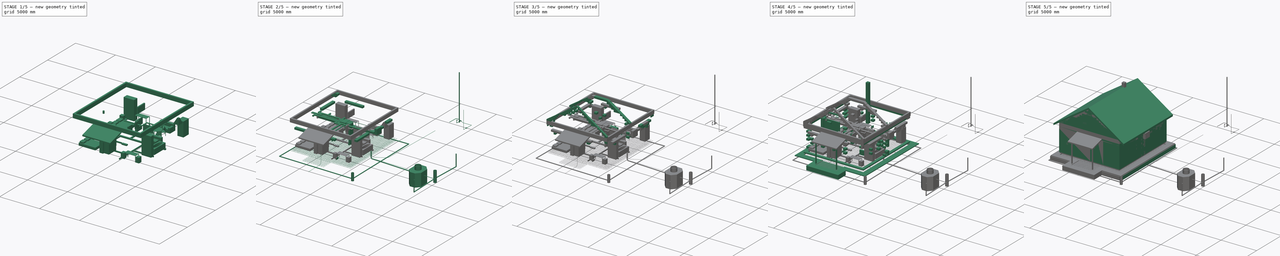
[diagram: build sequence overview — one tinted view per stage of 5, left to right]
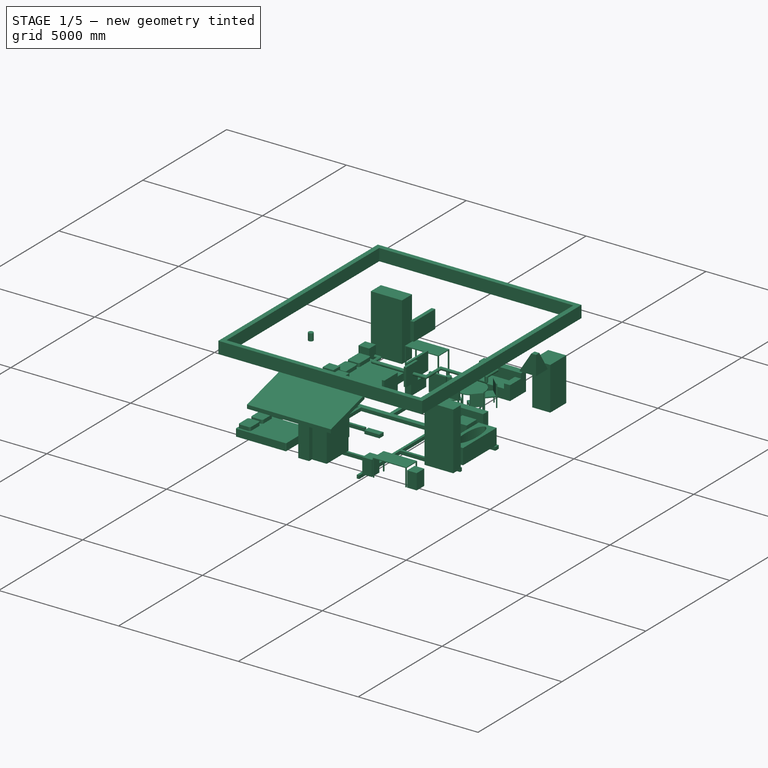
[diagram: stage 1 of 5 — iso view after this stage's code; geometry added in this stage tinted green]
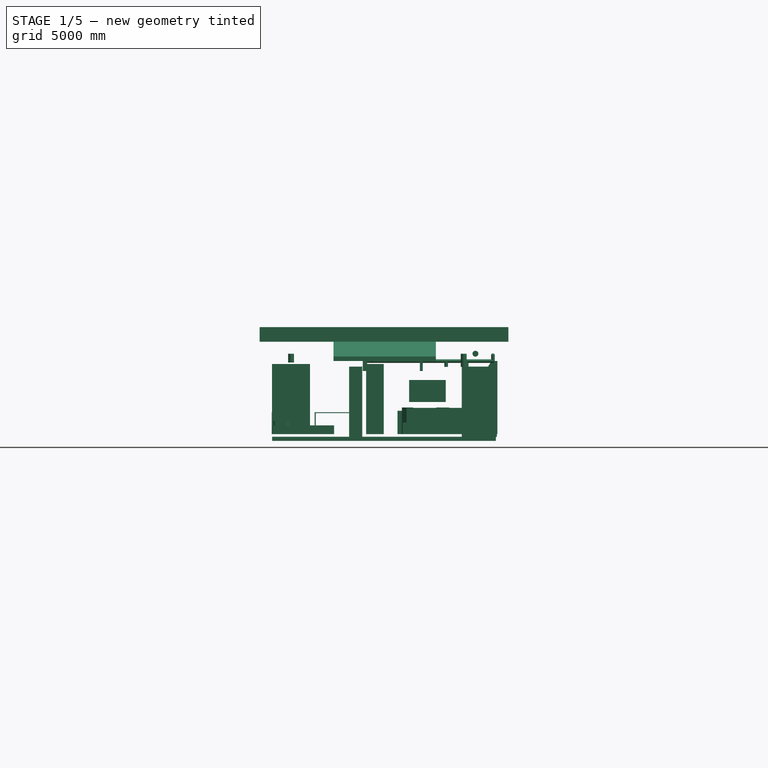
[diagram: stage 1 of 5 — front view after this stage's code; geometry added in this stage tinted green]
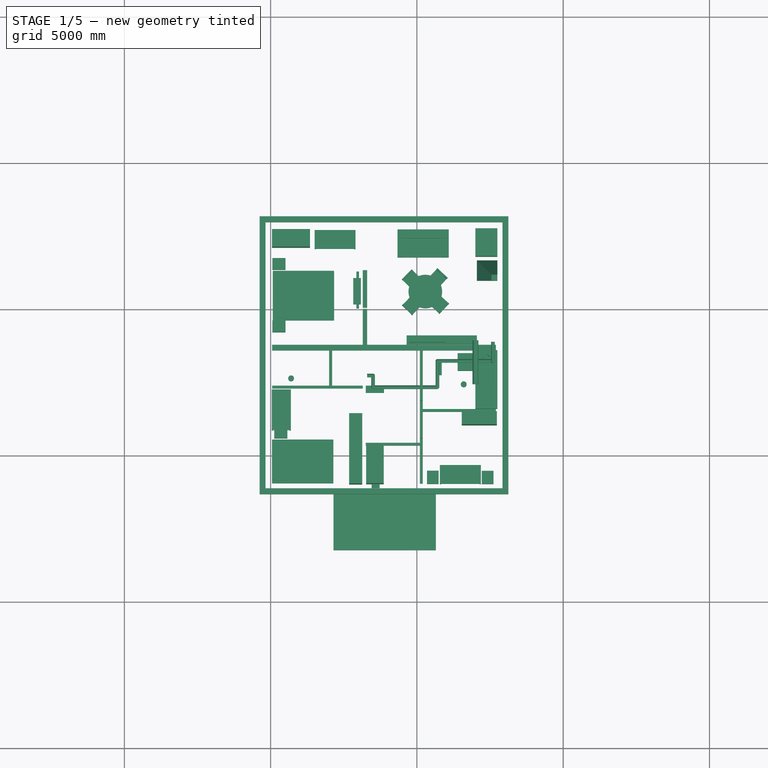
[diagram: stage 1 of 5 — top view after this stage's code; geometry added in this stage tinted green]
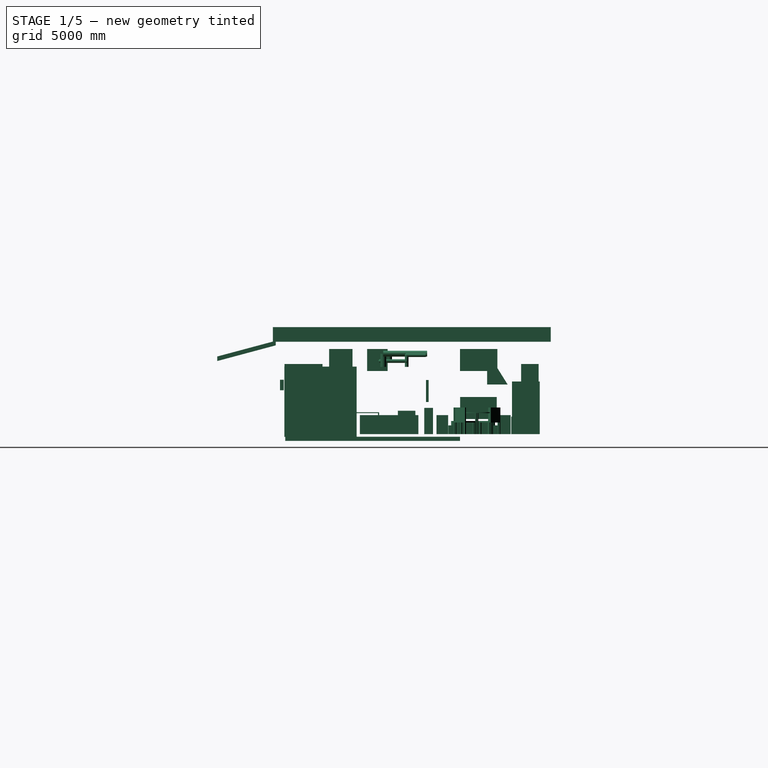
[diagram: stage 1 of 5 — right view after this stage's code; geometry added in this stage tinted green]
FCSTD DOCUMENT  (FreeCAD 0.18.4R)
Label: house_9500x8500_full_reconfiguration_09_12_19_v2
License: All rights reserved
LicenseURL: http://en.wikipedia.org/wiki/All_rights_reserved
objects: Part::Feature×1182, Part::Part2DObjectPython×331, Part::Box×232, Part::FeaturePython×210, Part::Cut×60, App::DocumentObjectGroup×43, App::GeometryPython×32, App::FeaturePython×25, Sketcher::SketchObject×21, Part::Extrusion×10, Part::MultiFuse×8, Part::Mirroring×4, Part::Fuse×1, Part::Loft×1, Part::Cylinder×1
note: 2093 computed .brp shape members not serialized (recipe doc carries the construction recipe); baked Part::Feature solids carry a one-line shape summary decoded from their .brp

FEATURE [Part::Part2DObjectPython] Rectangle007  label="кровать_15_сп_004"  # Draft 2D object (typed FeaturePython)
  ChamferSize = 0
  Columns = 1
  FilletRadius = 25
  Height = 1500
  Length = 2100
  MakeFace = false
  Placement = pos=(45.6744,554.167,0) rot=(1,0,0;3.14159rad)
  Rows = 1
FEATURE [Part::Part2DObjectPython] Rectangle009  label="подушка_001"  # Draft 2D object (typed FeaturePython)
  ChamferSize = 0
  Columns = 1
  FilletRadius = 75
  Height = 600
  Length = 500
  MakeFace = false
  Placement = pos=(97.9414,467.839,0) rot=(1,0,0;3.14159rad)
  Rows = 1
FEATURE [App::DocumentObjectGroup] Group  label="кровать_15_сп_003"
FEATURE [Part::Feature] Face  label="Водогрей"
  Placement = pos=(10236.5,1990,1200) rot=(0,0,1;3.14159rad)
  shape: bbox 500 x 450 x 2e-07 mm, 1 faces, 0 solids (baked)
FEATURE [Part::Part2DObjectPython] Ellipse  # Draft 2D object (typed FeaturePython)
  FirstAngle = 0
  LastAngle = 0
  MajorRadius = 163.5
  MakeFace = false
  MinorRadius = 136.114
  Placement = pos=(5629.4,3194.88,400) rot=(0,0,1;0rad)
FEATURE [Part::Feature] Face002
  Placement = pos=(7888.82,4699.32,400) rot=(0,0,-1;1.5708rad)
  shape: bbox 700 x 400 x 2e-07 mm, 1 faces, 0 solids (baked)
FEATURE [Part::Feature] Face001  label="умывальник"
  Placement = pos=(1469.38,3607.18,600) rot=(0,0,1;0rad)
  shape: bbox 600 x 353.2 x 2e-07 mm, 1 faces, 0 solids (baked)
FEATURE [Part::Part2DObjectPython] Ellipse001  # Draft 2D object (typed FeaturePython)
  FirstAngle = 0
  LastAngle = 0
  MajorRadius = 200.765
  MakeFace = false
  MinorRadius = 76.8815
  Placement = pos=(5770.15,1784.06,800) rot=(0,0,1;0rad)
FEATURE [Part::Extrusion] Extrude034  label="подушка_005"
  Base = -> Rectangle009
  Dir = (0,0,1)
  DirMode = 0
  FaceMakerClass = Part::FaceMakerBullseye
  LengthFwd = 150
  LengthRev = 0
  Placement = pos=(0,0,300) rot=(0,0,1;0rad)
  Solid = true
  Symmetric = false
FEATURE [Part::Extrusion] Extrude037  label="кровать_15_сп_002"
  Base = -> Rectangle007
  Dir = (0,0,1)
  DirMode = 0
  FaceMakerClass = Part::FaceMakerBullseye
  LengthFwd = 300
  LengthRev = 0
  Solid = true
  Symmetric = false
FEATURE [Part::FeaturePython] Wall058  label="внеш_контур_9500х8500_002"  # Arch/BIM object (typed FeaturePython)
  Align = 1
  Base = -> Rectangle388
  BlockHeight = 0
  BlockLength = 0
  CountBroken = 0
  CountEntire = 0
  Face = 0
  Height = 500
  HorizontalArea = 7.04e+06
  IfcRole = 156
  Joint = 0
  Length = 36000
  MakeBlocks = false
  MoveWithHost = false
  Normal = (0,0,0)
  OffsetFirst = 0
  OffsetSecond = 0
  PerimeterLength = 36000
  Placement = pos=(0,0,250) rot=(0,0,1;0rad)
  VerticalArea = 35200000
  Width = 200
FEATURE [Part::Part2DObjectPython] Rectangle398  # Draft 2D object (typed FeaturePython)
  ChamferSize = 0
  Columns = 1
  FilletRadius = 0
  Height = 300
  Length = 0
  MakeFace = false
  Placement = pos=(6000,5700,0) rot=(0,0,1;0rad)
  Rows = 1
FEATURE [Part::Part2DObjectPython] Rectangle399  label="ванна_190х75_001"  # Draft 2D object (typed FeaturePython)
  ChamferSize = 0
  Columns = 1
  FilletRadius = 0
  Height = 750
  Length = 2000
  MakeFace = false
  Placement = pos=(7750,1600,0) rot=(0,0,1;1.5708rad)
  Rows = 1
FEATURE [Part::Part2DObjectPython] Ellipse002  # Draft 2D object (typed FeaturePython)
  FirstAngle = 0
  LastAngle = 0
  MajorRadius = 800
  MakeFace = false
  MinorRadius = 250
  Placement = pos=(7375,2650,650) rot=(0,0,1;1.5708rad)
FEATURE [Part::FeaturePython] Structure180  label="Ванна_003"  # Arch/BIM object (typed FeaturePython)
  Base = -> Ellipse002
  FaceMaker = 0
  Height = 400
  HorizontalArea = 628319
  IfcRole = 0
  Length = 0
  MoveWithHost = true
  Nodes = (2) [(7375,2650,650),(7375,2650,250)]
  NodesOffset = 0
  Normal = (0,0,-1)
  PerimeterLength = 3547.07
  VerticalArea = 1.4122e+06
  Width = 100
FEATURE [Part::FeaturePython] Structure179  label="Ванна_002"  # Arch/BIM object (typed FeaturePython)
  Base = -> Rectangle399
  FaceMaker = 0
  Height = 650
  HorizontalArea = 1.5e+06
  IfcRole = 0
  Length = 0
  MoveWithHost = false
  Nodes = (2) [(7375,2550,0),(7375,2550,650)]
  NodesOffset = 0
  Normal = (0,0,0)
  PerimeterLength = 5300
  Subtractions = -> [Structure180]
  VerticalArea = 4.9872e+06
  Width = 100
FEATURE [App::GeometryPython] BuildingPart037  label="Ванна_001"  # Arch/BIM object (typed FeaturePython)
  Area = 0
  Group = -> [Structure179]
  Height = 0
  IfcRole = 0
  LevelOffset = 0
FEATURE [Part::Part2DObjectPython] Line279  label="Line280"  # Draft 2D object (typed FeaturePython)
  ChamferSize = 0
  Closed = false
  End = (7750,5700,0)
  FilletRadius = 0
  Length = 2050
  MakeFace = false
  Placement = pos=(7750,7750,0) rot=(0,0,1;0rad)
  Points = (2) [(0,0,0),(-9.09495e-13,-2050,0)]
  Start = (7750,7750,0)
  Subdivisions = 0
FEATURE [Part::Part2DObjectPython] Rectangle403  label="кровать_2сп_002"  # Draft 2D object (typed FeaturePython)
  ChamferSize = 0
  Columns = 1
  FilletRadius = 25
  Height = 1700
  Length = 2100
  MakeFace = false
  Placement = pos=(70.4669,6320.15,0) rot=(1,0,0;3.14159rad)
  Rows = 1
FEATURE [Part::Part2DObjectPython] Rectangle404  label="подушка_007"  # Draft 2D object (typed FeaturePython)
  ChamferSize = 0
  Columns = 1
  FilletRadius = 75
  Height = 700
  Length = 500
  MakeFace = false
  Placement = pos=(170.463,5420.15,0) rot=(1,0,0;3.14159rad)
  Rows = 1
FEATURE [Part::Part2DObjectPython] Rectangle405  label="подушка_008"  # Draft 2D object (typed FeaturePython)
  ChamferSize = 0
  Columns = 1
  FilletRadius = 75
  Height = 700
  Length = 500
  MakeFace = false
  Placement = pos=(170.463,6220.15,0) rot=(1,0,0;3.14159rad)
  Rows = 1
FEATURE [Part::Extrusion] Extrude051  label="подушка_009"
  Base = -> Rectangle404
  Dir = (0,0,1)
  DirMode = 0
  FaceMakerClass = Part::FaceMakerBullseye
  LengthFwd = 150
  LengthRev = 0
  Placement = pos=(0,0,300) rot=(0,0,1;0rad)
  Solid = true
  Symmetric = false
FEATURE [Part::Extrusion] Extrude052  label="подушка_010"
  Base = -> Rectangle405
  Dir = (0,0,1)
  DirMode = 0
  FaceMakerClass = Part::FaceMakerBullseye
  LengthFwd = 150
  LengthRev = 0
  Placement = pos=(0,0,300) rot=(0,0,1;0rad)
  Solid = true
  Symmetric = false
FEATURE [Part::Extrusion] Extrude053  label="кровать_2_сп_003"
  Base = -> Rectangle403
  Dir = (0,0,1)
  DirMode = 0
  FaceMakerClass = Part::FaceMakerBullseye
  LengthFwd = 300
  LengthRev = 0
  Solid = true
  Symmetric = false
FEATURE [Part::Part2DObjectPython] Line493  # Draft 2D object (typed FeaturePython)
  ChamferSize = 0
  Closed = false
  End = (7300,3600,1500)
  FilletRadius = 0
  Length = 1500
  MakeFace = false
  Placement = pos=(7300,3600,0) rot=(0,0,1;0rad)
  Points = (2) [(0,0,0),(0,0,1500)]
  Start = (7300,3600,0)
  Subdivisions = 0
FEATURE [Part::FeaturePython] Structure270  label="Щиток ЩРВ-24"  # Arch/BIM object (typed FeaturePython)
  FaceMaker = 0
  Height = 360
  HorizontalArea = 35750
  IfcRole = 0
  Length = 275
  MoveWithHost = false
  Nodes = (2) [(1.77636e-15,2.48044e-15,0),(1.77636e-15,2.48044e-15,360)]
  NodesOffset = 0
  Normal = (0,0,0)
  PerimeterLength = 810
  Placement = pos=(3587.5,-1065,1500) rot=(0,0,-1;0rad)
  VerticalArea = 291600
  Width = 130
FEATURE [Part::Box] Box3062  label="БП 425х100х250_144"
  AttacherType = Attacher::AttachEngine3D
  Height = 250
  Length = 425
  Placement = pos=(5750,3175,160) rot=(0,0,-1;1.5708rad)
  Width = 100
FEATURE [App::FeaturePython] Dimension016  # Draft dimension (typed FeaturePython)
  Diameter = false
  Dimline = (3768.08,6876.05,0)
  Direction = (0,0,0)
  Distance = 4200
  End = (-5.717e-13,7750,0)
  Normal = (0,0,1)
  Start = (-1.2471e-12,3550,0)
FEATURE [App::FeaturePython] Dimension017  # Draft dimension (typed FeaturePython)
  Diameter = false
  Dimline = (4568.08,3776.05,0)
  Direction = (0,0,0)
  Distance = 1400
  End = (4400,3550,0)
  Normal = (0,0,1)
  Start = (4400,4950,0)
FEATURE [App::FeaturePython] Dimension022  # Draft dimension (typed FeaturePython)
  Diameter = false
  Dimline = (1200,4500,0)
  Direction = (0,0,0)
  Distance = 4400
  End = (4400,5000,0)
  Normal = (0,0,1)
  Start = (-1.0139e-12,5000,0)
FEATURE [App::FeaturePython] Dimension023  # Draft dimension (typed FeaturePython)
  Diameter = false
  Dimline = (6649.59,-926.122,0)
  Direction = (0,0,0)
  Distance = 4300
  End = (7750,-1000,0)
  Normal = (0,0,1)
  Start = (7750,3300,0)
FEATURE [App::FeaturePython] Dimension024  # Draft dimension (typed FeaturePython)
  Diameter = false
  Dimline = (2300,2500,0)
  Direction = (0,0,0)
  Distance = 2800
  End = (2800,-1000,0)
  Normal = (0,0,1)
  Start = (-1.0672e-12,-1000,0)
FEATURE [App::FeaturePython] Dimension025  # Draft dimension (typed FeaturePython)
  Diameter = false
  Dimline = (3700,-100,0)
  Direction = (0,0,0)
  Distance = 1900
  End = (4800,-1000,0)
  Normal = (0,0,1)
  Start = (2900,-1000,0)
FEATURE [Part::Box] Box3065  label="ножка001"
  AttacherType = Attacher::AttachEngine3D
  Height = 720
  Length = 40
  Placement = pos=(5287.5,6149.52,0) rot=(0,0,1;3.95271rad)
  Width = 40
FEATURE [Part::Box] Box3066  label="ножка002"
  AttacherType = Attacher::AttachEngine3D
  Height = 720
  Length = 40
  Placement = pos=(4764.1,5598.48,0) rot=(0,0,1;3.95271rad)
  Width = 40
FEATURE [Part::Box] Box3067  label="ножка003"
  AttacherType = Attacher::AttachEngine3D
  Height = 720
  Length = 40
  Placement = pos=(5827.15,5648.55,0) rot=(0,0,1;3.95271rad)
  Width = 40
FEATURE [Part::Box] Box3068  label="ножка004"
  AttacherType = Attacher::AttachEngine3D
  Height = 720
  Length = 40
  Placement = pos=(5303.74,5097.51,0) rot=(0,0,1;3.95271rad)
  Width = 40
FEATURE [Part::Box] Box3070  label="сиденье001"
  AttacherType = Attacher::AttachEngine3D
  Height = 50
  Length = 520
  Placement = pos=(5195.22,6001.08,400) rot=(0,0,1;2.37104rad)
  Width = 480
FEATURE [Part::Box] Box3071  label="ножка005"
  AttacherType = Attacher::AttachEngine3D
  Height = 400
  Length = 40
  Placement = pos=(4544.33,6019.7,0) rot=(0,0,1;2.37104rad)
  Width = 40
FEATURE [Part::Box] Box3072  label="ножка006"
  AttacherType = Attacher::AttachEngine3D
  Height = 400
  Length = 40
  Placement = pos=(5195.23,6001.07,0) rot=(0,0,1;2.37104rad)
  Width = 40
FEATURE [Part::Box] Box3073  label="ножка007"
  AttacherType = Attacher::AttachEngine3D
  Height = 400
  Length = 40
  Placement = pos=(4850.81,6335.41,0) rot=(0,0,1;2.37104rad)
  Width = 40
FEATURE [Part::Box] Box3074  label="ножка008"
  AttacherType = Attacher::AttachEngine3D
  Height = 400
  Length = 40
  Placement = pos=(4888.75,5685.37,0) rot=(0,0,1;2.37104rad)
  Width = 40
FEATURE [Part::Box] Box3075  label="спинка001"
  AttacherType = Attacher::AttachEngine3D
  Height = 510
  Length = 50
  Placement = pos=(4857.98,6328.45,400) rot=(0,0,1;2.37104rad)
  Width = 480
FEATURE [Part::MultiFuse] Fusion003  label="стул001"
  Shapes = -> [Box3072,Box3073,Box3071,Box3070,Box3074,Box3075]
FEATURE [Part::Box] Box3076  label="ножка009"
  AttacherType = Attacher::AttachEngine3D
  Height = 400
  Length = 40
  Placement = pos=(5391.45,5197.76,0) rot=(0,0,-1;0.748104rad)
  Width = 40
FEATURE [Part::Box] Box3077  label="ножка010"
  AttacherType = Attacher::AttachEngine3D
  Height = 400
  Length = 40
  Placement = pos=(5743.29,4871.22,0) rot=(0,0,-1;0.748104rad)
  Width = 40
FEATURE [Part::Box] Box3078  label="ножка011"
  AttacherType = Attacher::AttachEngine3D
  Height = 400
  Length = 40
  Placement = pos=(6042.6,5193.74,0) rot=(0,0,-1;0.748104rad)
  Width = 40
FEATURE [Part::Box] Box3079  label="сиденье002"
  AttacherType = Attacher::AttachEngine3D
  Height = 50
  Length = 520
  Placement = pos=(5391.46,5197.75,400) rot=(0,0,-1;0.748104rad)
  Width = 480
FEATURE [Part::Box] Box3080  label="ножка012"
  AttacherType = Attacher::AttachEngine3D
  Height = 400
  Length = 40
  Placement = pos=(5690.77,5520.26,0) rot=(0,0,-1;0.748104rad)
  Width = 40
FEATURE [Part::Box] Box3081  label="спинка002"
  AttacherType = Attacher::AttachEngine3D
  Height = 510
  Length = 50
  Placement = pos=(5735.96,4878.03,400) rot=(0,0,-1;0.748104rad)
  Width = 480
FEATURE [Part::MultiFuse] Fusion004  label="стул002"
  Shapes = -> [Box3076,Box3077,Box3078,Box3079,Box3080,Box3081]
FEATURE [Part::Part2DObjectPython] Rectangle541  label="проём_055"  # Draft 2D object (typed FeaturePython)
  ChamferSize = 0
  Columns = 1
  FilletRadius = 0
  Height = 100
  Length = 800
  MakeFace = true
  Placement = pos=(5100,1350,0) rot=(0,0,-1;1.5708rad)
  Rows = 1
FEATURE [App::FeaturePython] Dimension026  # Draft dimension (typed FeaturePython)
  Diameter = false
  Dimline = (7200,1900,0)
  Direction = (0,0,0)
  Distance = 2850
  End = (7750,3300,0)
  Normal = (0,0,1)
  Start = (4900,3300,0)
FEATURE [Part::FeaturePython] Wall074  label="стена_над_дверью_021"  # Arch/BIM object (typed FeaturePython)
  Align = 2
  Base = -> Rectangle541
  BlockHeight = 0
  BlockLength = 0
  CountBroken = 0
  CountEntire = 0
  Face = 0
  Height = 750
  HorizontalArea = 80000
  IfcRole = 156
  Joint = 0
  Length = 0
  MakeBlocks = false
  MoveWithHost = false
  Normal = (0,0,0)
  OffsetFirst = 0
  OffsetSecond = 0
  PerimeterLength = 1800
  Placement = pos=(0,0,2160) rot=(0,0,1;0rad)
  VerticalArea = 1350000
  Width = 200
FEATURE [Part::Box] Box3082  label="ТВ 55" 001"
  AttacherType = Attacher::AttachEngine3D
  Height = 750
  Length = 1250
  Placement = pos=(3022,5028.09,520) rot=(0,0,1;1.5708rad)
  Width = 90
FEATURE [Part::Part2DObjectPython] Line517  # Draft 2D object (typed FeaturePython)
  ChamferSize = 0
  Closed = false
  End = (6000,1350,0)
  FilletRadius = 0
  Length = 800
  MakeFace = true
  Placement = pos=(5550,1350,0) rot=(0,0,-1;1.73595rad)
  Points = (2) [(57.5404,-345.238,0),(-73.9806,443.877,0)]
  Start = (5200,1350,0)
  Subdivisions = 0
FEATURE [Part::Part2DObjectPython] Arc003  # Draft 2D object (typed FeaturePython)
  FirstAngle = -90
  LastAngle = 0
  MakeFace = true
  Placement = pos=(3000,2300,0) rot=(0,0,-1;1.5708rad)
  Radius = 800
FEATURE [Part::Part2DObjectPython] Line518  # Draft 2D object (typed FeaturePython)
  ChamferSize = 0
  Closed = false
  End = (3000,2300,0)
  FilletRadius = 0
  Length = 800
  MakeFace = true
  Placement = pos=(3000,1850,0) rot=(0,0,1;0.138277rad)
  Points = (2) [(-48.243,-346.659,0),(62.0267,445.705,0)]
  Start = (3000,1500,0)
  Subdivisions = 0
FEATURE [Part::Box] Box3084  label="ТВ 55" 002"
  AttacherType = Attacher::AttachEngine3D
  Height = 750
  Length = 1250
  Placement = pos=(4735.97,3859.51,1100) rot=(0,0,1;0rad)
  Width = 90
FEATURE [Part::Box] Box3095  label="тумбочка 400х450 001"
  AttacherType = Attacher::AttachEngine3D
  Height = 650
  Length = 400
  Placement = pos=(508.511,4217.61,0) rot=(0,0,1;1.5708rad)
  Width = 450
FEATURE [Part::Box] Box3096  label="тумбочка 400х450 002"
  AttacherType = Attacher::AttachEngine3D
  Height = 650
  Length = 400
  Placement = pos=(508.511,6352.93,0) rot=(0,0,1;1.5708rad)
  Width = 450
FEATURE [Part::Box] Box3097  label="тумбочка 400х450 003"
  AttacherType = Attacher::AttachEngine3D
  Height = 650
  Length = 400
  Placement = pos=(574.245,588.543,0) rot=(0,0,1;1.5708rad)
  Width = 450
FEATURE [Part::Box] Box3098  label="ножка017"
  AttacherType = Attacher::AttachEngine3D
  Height = 720
  Length = 40
  Placement = pos=(2862.34,7707.18,0) rot=(0,0,-1;1.5708rad)
  Width = 40
FEATURE [Part::Box] Box3099  label="ножка018"
  AttacherType = Attacher::AttachEngine3D
  Height = 720
  Length = 40
  Placement = pos=(2862.34,7097.18,0) rot=(0,0,-1;1.5708rad)
  Width = 40
FEATURE [Part::Box] Box3100  label="ножка019"
  AttacherType = Attacher::AttachEngine3D
  Height = 720
  Length = 40
  Placement = pos=(1502.34,7097.18,0) rot=(0,0,-1;1.5708rad)
  Width = 40
FEATURE [Part::Box] Box3101  label="ножка020"
  AttacherType = Attacher::AttachEngine3D
  Height = 720
  Length = 40
  Placement = pos=(1502.34,7707.2,0) rot=(0,0,-1;1.5708rad)
  Width = 40
FEATURE [Part::Box] Box3102  label="столешница003"
  AttacherType = Attacher::AttachEngine3D
  Height = 30
  Length = 650
  Placement = pos=(1502.34,7707.18,720) rot=(0,0,-1;1.5708rad)
  Width = 1400
FEATURE [Part::MultiFuse] Fusion006
  Shapes = -> [Box3101,Box3098,Box3099,Box3100,Box3102]
FEATURE [Part::FeaturePython] Equipment008  label="стол письменный 002"  # Arch/BIM object (typed FeaturePython)
  Base = -> Fusion006
  EquipmentPower = 0
  HorizontalArea = 0
  IfcRole = 79
  MoveWithHost = false
  PerimeterLength = 0
  VerticalArea = 0
FEATURE [Part::Box] Box3103  label="ножка021"
  AttacherType = Attacher::AttachEngine3D
  Height = 720
  Length = 40
  Placement = pos=(690.124,899.968,0) rot=(0,0,1;3.14159rad)
  Width = 40
FEATURE [Part::Box] Box3104  label="ножка022"
  AttacherType = Attacher::AttachEngine3D
  Height = 720
  Length = 40
  Placement = pos=(80.124,899.968,0) rot=(0,0,1;3.14159rad)
  Width = 40
FEATURE [Part::Box] Box3105  label="ножка023"
  AttacherType = Attacher::AttachEngine3D
  Height = 720
  Length = 40
  Placement = pos=(80.124,2259.97,0) rot=(0,0,1;3.14159rad)
  Width = 40
FEATURE [Part::Box] Box3106  label="ножка024"
  AttacherType = Attacher::AttachEngine3D
  Height = 720
  Length = 40
  Placement = pos=(690.137,2259.97,0) rot=(0,0,1;3.14159rad)
  Width = 40
FEATURE [Part::Box] Box3107  label="столешница004"
  AttacherType = Attacher::AttachEngine3D
  Height = 30
  Length = 650
  Placement = pos=(690.124,2259.97,720) rot=(0,0,1;3.14159rad)
  Width = 1400
FEATURE [Part::MultiFuse] Fusion007
  Shapes = -> [Box3106,Box3103,Box3104,Box3105,Box3107]
FEATURE [Part::FeaturePython] Equipment009  label="стол письменный 003"  # Arch/BIM object (typed FeaturePython)
  Base = -> Fusion007
  EquipmentPower = 0
  HorizontalArea = 0
  IfcRole = 79
  MoveWithHost = false
  PerimeterLength = 0
  VerticalArea = 0
FEATURE [Part::Part2DObjectPython] Rectangle542  label="подушка_011"  # Draft 2D object (typed FeaturePython)
  ChamferSize = 0
  Columns = 1
  FilletRadius = 75
  Height = 600
  Length = 500
  MakeFace = false
  Placement = pos=(89.8025,-261.128,0) rot=(1,0,0;3.14159rad)
  Rows = 1
FEATURE [Part::Extrusion] Extrude054  label="подушка_012"
  Base = -> Rectangle542
  Dir = (0,0,1)
  DirMode = 0
  FaceMakerClass = Part::FaceMakerBullseye
  LengthFwd = 150
  LengthRev = 0
  Placement = pos=(0,0,300) rot=(0,0,1;0rad)
  Solid = true
  Symmetric = false
FEATURE [Part::Box] Box3108  label="тумба под ТВ 90х26х45 001"
  AttacherType = Attacher::AttachEngine3D
  Height = 450
  Length = 900
  Placement = pos=(3085,5171.02,0) rot=(0,0,1;1.5708rad)
  Width = 260
FEATURE [App::FeaturePython] Dimension028  # Draft dimension (typed FeaturePython)
  Diameter = false
  Dimline = (4100,2500,0)
  Direction = (0,0,0)
  Distance = 1100
  End = (2800,2200,0)
  Normal = (0,0,1)
  Start = (2800,3300,0)
FEATURE [Part::Part2DObjectPython] Rectangle544  # Draft 2D object (typed FeaturePython)
  ChamferSize = 0
  Columns = 1
  FilletRadius = 0
  Height = 300
  Length = 1750
  MakeFace = false
  Placement = pos=(6087.73,7726.77,0) rot=(0,0,1;3.14159rad)
  Rows = 1
FEATURE [Part::Part2DObjectPython] Rectangle545  # Draft 2D object (typed FeaturePython)
  ChamferSize = 0
  Columns = 1
  FilletRadius = 0
  Height = 950
  Length = 1750
  MakeFace = false
  Placement = pos=(6087.73,7726.77,0) rot=(0,0,1;3.14159rad)
  Rows = 1
  Support = -> [Rectangle544]
FEATURE [Part::FeaturePython] Structure275  label="Structure018"  # Arch/BIM object (typed FeaturePython)
  Base = -> Rectangle544
  FaceMaker = 0
  Height = 400
  HorizontalArea = 525000
  IfcRole = 0
  Length = 0
  MoveWithHost = false
  Nodes = (2) [(5212.73,7576.77,0),(5212.73,7576.77,400)]
  NodesOffset = 0
  Normal = (0,0,0)
  PerimeterLength = 4100
  Placement = pos=(0,0,400) rot=(0,0,1;0rad)
  VerticalArea = 1.64e+06
  Width = 100
FEATURE [Part::FeaturePython] Structure276  label="Structure019"  # Arch/BIM object (typed FeaturePython)
  Base = -> Rectangle545
  FaceMaker = 0
  Height = 400
  HorizontalArea = 1.6625e+06
  IfcRole = 0
  Length = 0
  MoveWithHost = false
  Nodes = (2) [(906.577,7240.7,0),(906.577,7240.7,400)]
  NodesOffset = 0
  Normal = (0,0,0)
  PerimeterLength = 5400
  VerticalArea = 2160000
  Width = 100
FEATURE [Part::Part2DObjectPython] Rectangle546  # Draft 2D object (typed FeaturePython)
  ChamferSize = 0
  Columns = 1
  FilletRadius = 0
  Height = 950
  Length = 250
  MakeFace = false
  Placement = pos=(6087.73,7726.77,0) rot=(0,0,1;3.14159rad)
  Rows = 1
FEATURE [Part::FeaturePython] Structure277  label="Structure020"  # Arch/BIM object (typed FeaturePython)
  Base = -> Rectangle546
  FaceMaker = 0
  Height = 200
  HorizontalArea = 237500
  IfcRole = 0
  Length = 0
  MoveWithHost = false
  Nodes = (2) [(1656.58,7240.7,0),(1656.58,7240.7,200)]
  NodesOffset = 0
  Normal = (0,0,0)
  PerimeterLength = 2400
  Placement = pos=(0,0,400) rot=(0,0,1;0rad)
  VerticalArea = 480000
  Width = 100
FEATURE [Part::Part2DObjectPython] Rectangle547  # Draft 2D object (typed FeaturePython)
  ChamferSize = 0
  Columns = 1
  FilletRadius = 0
  Height = 950
  Length = 250
  MakeFace = false
  Placement = pos=(4587.73,7726.77,0) rot=(0,0,1;3.14159rad)
  Rows = 1
FEATURE [Part::FeaturePython] Structure278  label="Structure021"  # Arch/BIM object (typed FeaturePython)
  Base = -> Rectangle547
  FaceMaker = 0
  Height = 200
  HorizontalArea = 237500
  IfcRole = 0
  Length = 0
  MoveWithHost = false
  Nodes = (2) [(156.577,7240.7,0),(156.577,7240.7,200)]
  NodesOffset = 0
  Normal = (0,0,0)
  PerimeterLength = 2400
  Placement = pos=(0,0,400) rot=(0,0,1;0rad)
  VerticalArea = 480000
  Width = 100
FEATURE [App::GeometryPython] BuildingPart065  label="Диван "  # Arch/BIM object (typed FeaturePython)
  Area = 0
  Group = -> [Structure275,Structure278,Structure276,Structure277]
  Height = 0
  IfcRole = 0
  LevelOffset = 0
FEATURE [Part::Box] Box3110  label="шкаф 120х45х240 003"
  AttacherType = Attacher::AttachEngine3D
  Height = 2400
  Length = 1200
  Placement = pos=(3133.65,218.528,-91.1626) rot=(0,0,1;1.5708rad)
  Width = 450
FEATURE [App::FeaturePython] Dimension032  # Draft dimension (typed FeaturePython)
  Diameter = false
  Dimline = (7643.46,4741.47,0)
  Direction = (0,0,0)
  Distance = 858.117
  End = (4275,5300,0)
  Normal = (0,0,1)
  Start = (3416.88,5300,0)
FEATURE [App::FeaturePython] Dimension033  # Draft dimension (typed FeaturePython)
  Diameter = false
  Dimline = (3600,5100,0)
  Direction = (0,0,0)
  Distance = 989.159
  End = (3500,7050,0)
  Normal = (0,0,1)
  Start = (3500,6060.84,0)
FEATURE [App::DocumentObjectGroup] Group068  label="размеры"
  Group = -> [Dimension016,Dimension017,Dimension022,Dimension023,Dimension024,Dimension025,Dimension026,Dimension028,Dimension032,Dimension033]
FEATURE [Part::Box] Box3111  label="холодильник большой 510л001"
  AttacherType = Attacher::AttachEngine3D
  Height = 1800
  Length = 950
  Placement = pos=(7750,6800,0) rot=(0,0,1;1.5708rad)
  Width = 750
FEATURE [Part::Box] Box3113  label="кух.зона 006"
  AttacherType = Attacher::AttachEngine3D
  Height = 900
  Length = 300
  Placement = pos=(7050,3800,0) rot=(0,0,1;1.5708rad)
  Width = 2400
FEATURE [Part::Part2DObjectPython] Rectangle554  label="мойка"  # Draft 2D object (typed FeaturePython)
  ChamferSize = 0
  Columns = 1
  FilletRadius = 150
  Height = 500
  Length = 600
  MakeFace = false
  Placement = pos=(7652.37,4342.52,901) rot=(0,0,1;1.5708rad)
  Rows = 1
FEATURE [Part::Part2DObjectPython] Circle010  # Draft 2D object (typed FeaturePython)
  FirstAngle = 0
  LastAngle = 0
  MakeFace = false
  Placement = pos=(7242.31,6146.13,901) rot=(0,0,1;0rad)
  Radius = 100
FEATURE [Part::FeaturePython] Array021  label="плита"  # Draft array (typed FeaturePython)
  Angle = 360
  ArrayType = 0
  Axis = (0,0,1)
  Base = -> Circle010
  Center = (0,0,0)
  Fuse = false
  IntervalAxis = (0,0,0)
  IntervalX = (300,0,0)
  IntervalY = (0,300,0)
  IntervalZ = (0,0,1)
  NumberPolar = 1
  NumberX = 2
  NumberY = 2
  NumberZ = 1
FEATURE [Part::Part2DObjectPython] Line521  # Draft 2D object (typed FeaturePython)
  ChamferSize = 0
  Closed = false
  End = (5125,6875,3410)
  FilletRadius = 0
  Length = 250
  MakeFace = false
  Placement = pos=(5125,6875,3160) rot=(0,0,1;0rad)
  Points = (2) [(0,0,0),(0,0,250)]
  Start = (5125,6875,3160)
  Subdivisions = 0
FEATURE [Part::Part2DObjectPython] Line525  # Draft 2D object (typed FeaturePython)
  ChamferSize = 0
  Closed = false
  End = (5460,7100,120)
  FilletRadius = 0
  Length = 120
  MakeFace = false
  Placement = pos=(5460,7100,0) rot=(0,0,1;0rad)
  Points = (2) [(0,0,0),(0,0,120)]
  Start = (5460,7100,0)
  Subdivisions = 0
FEATURE [Part::Part2DObjectPython] Rectangle555  label="вытяжка осн бол"  # Draft 2D object (typed FeaturePython)
  ChamferSize = 0
  Columns = 1
  FilletRadius = 0
  Height = 700
  Length = 700
  MakeFace = false
  Placement = pos=(7050,6650,1700) rot=(0,0,-1;1.5708rad)
  Rows = 1
FEATURE [Part::Part2DObjectPython] Rectangle556  label="вытяжка осн мал"  # Draft 2D object (typed FeaturePython)
  ChamferSize = 0
  Columns = 1
  FilletRadius = 0
  Height = 200
  Length = 200
  MakeFace = false
  Placement = pos=(7550,6150,2500) rot=(0,0,-1;1.5708rad)
  Rows = 1
FEATURE [Part::Loft] Loft  label="вытяжка"
  Closed = false
  MaxDegree = 5
  Ruled = false
  Sections = -> [Rectangle555,Rectangle556]
  Solid = true
FEATURE [Part::Box] Box3116  label="шкаф 120х45х240 005"
  AttacherType = Attacher::AttachEngine3D
  Height = 2400
  Length = 1300
  Placement = pos=(44.87,7110.25,0) rot=(0,0,1;0rad)
  Width = 600
FEATURE [Part::Part2DObjectPython] Rectangle565  label="прощадь внутри стен"  # Draft 2D object (typed FeaturePython)
  ChamferSize = 0
  Columns = 1
  FilletRadius = 0
  Height = 8750
  Length = 7750
  MakeFace = false
  Placement = pos=(-1.33e-13,-1000,0) rot=(0,0,1;0rad)
  Rows = 1
FEATURE [Part::Box] Box3117  label="шкаф 120х45х240 006"
  AttacherType = Attacher::AttachEngine3D
  Height = 2400
  Length = 1200
  Placement = pos=(3133.65,-981.472,-91.1626) rot=(0,0,1;1.5708rad)
  Width = 450
FEATURE [App::GeometryPython] BuildingPart034  label=" печь Т образная Борисова001"  # Arch/BIM object (typed FeaturePython)
  Area = 0
  Group = -> [Structure173,Structure171,Wall]
  Height = 0
  IfcRole = 0
  LevelOffset = 0
FEATURE [Part::Part2DObjectPython] Rectangle575  label="кладовая"  # Draft 2D object (typed FeaturePython)
  ChamferSize = 0
  Columns = 1
  FilletRadius = 0
  Height = 1200
  Length = 2000
  MakeFace = false
  Placement = pos=(2000,3600,0) rot=(0,0,1;3.14159rad)
  Rows = 1
FEATURE [Part::Part2DObjectPython] Rectangle576  label="спальня #1"  # Draft 2D object (typed FeaturePython)
  ChamferSize = 0
  Columns = 1
  FilletRadius = 0
  Height = 3150
  Length = 3950
  MakeFace = false
  Placement = pos=(3150,3800,0) rot=(0,0,1;1.5708rad)
  Rows = 1
FEATURE [Part::Part2DObjectPython] Rectangle577  label="кухня-гостиная001"  # Draft 2D object (typed FeaturePython)
  ChamferSize = 0
  Columns = 1
  FilletRadius = 0
  Height = 3950
  Length = 4450
  MakeFace = false
  Placement = pos=(3300,3800,0) rot=(0,0,1;0rad)
  Rows = 1
FEATURE [Part::Part2DObjectPython] Rectangle578  label="прощадь внутри стен002"  # Draft 2D object (typed FeaturePython)
  ChamferSize = 0
  Columns = 1
  FilletRadius = 0
  Height = 8750
  Length = 7750
  MakeFace = false
  Placement = pos=(7750,7750,0) rot=(0,0,1;3.14159rad)
  Rows = 1
FEATURE [Part::Part2DObjectPython] Rectangle580  label="спальня #2"  # Draft 2D object (typed FeaturePython)
  ChamferSize = 0
  Columns = 1
  FilletRadius = 0
  Height = 2500
  Length = 2550
  MakeFace = false
  Placement = pos=(5200,-1000,0) rot=(0,0,-1;0rad)
  Rows = 1
FEATURE [Part::Part2DObjectPython] Rectangle581  label="санузел"  # Draft 2D object (typed FeaturePython)
  ChamferSize = 0
  Columns = 1
  FilletRadius = 0
  Height = 2000
  Length = 2550
  MakeFace = false
  Placement = pos=(5200,1600,0) rot=(0,0,-1;0rad)
  Rows = 1
FEATURE [Part::Part2DObjectPython] Rectangle582  label="тамбур"  # Draft 2D object (typed FeaturePython)
  ChamferSize = 0
  Columns = 1
  FilletRadius = 0
  Height = 1350
  Length = 1850
  MakeFace = false
  Placement = pos=(5100,350,0) rot=(0,0,1;3.14159rad)
  Rows = 1
FEATURE [Part::Part2DObjectPython] Rectangle583  label="кабинет001"  # Draft 2D object (typed FeaturePython)
  ChamferSize = 0
  Columns = 1
  FilletRadius = 0
  Height = 3300
  Length = 3150
  MakeFace = false
  Placement = pos=(-1.509e-13,-1000,0) rot=(0,0,1;0rad)
  Rows = 1
FEATURE [Part::Part2DObjectPython] Line529  # Draft 2D object (typed FeaturePython)
  ChamferSize = 0
  Closed = false
  End = (2320.3,3600,0)
  FilletRadius = 0
  Length = 129.703
  MakeFace = false
  Placement = pos=(2450,3600,0) rot=(0,0,1;0rad)
  Points = (2) [(0,0,0),(-129.703,0,0)]
  Start = (2450,3600,0)
  Subdivisions = 0
FEATURE [Part::Part2DObjectPython] Line530  # Draft 2D object (typed FeaturePython)
  ChamferSize = 0
  Closed = false
  End = (4721.26,3600,0)
  FilletRadius = 0
  Length = 1471.26
  MakeFace = false
  Placement = pos=(3250,3600,0) rot=(0,0,1;0rad)
  Points = (2) [(0,0,0),(1471.26,0,0)]
  Start = (3250,3600,0)
  Subdivisions = 0
FEATURE [Part::Part2DObjectPython] Wire162  label="прихожая"  # Draft 2D object (typed FeaturePython)
  ChamferSize = 0
  Closed = true
  End = (2100,2400,0)
  FilletRadius = 0
  Length = 12300
  MakeFace = false
  Placement = pos=(2450,3600,0) rot=(0,0,1;0rad)
  Points = (6) [(-350,-2.27374e-12,0),(2650,-2.27374e-12,0),(2650,-3150,0),(800,-3150,0),(800,-1200,0),(-350,-1200,0)]
  Start = (2100,3600,0)
  Subdivisions = 0
FEATURE [Part::Part2DObjectPython] Rectangle585  label="шкаф гардероб #2"  # Draft 2D object (typed FeaturePython)
  ChamferSize = 0
  Columns = 1
  FilletRadius = 0
  Height = 1300
  Length = 600
  MakeFace = false
  Placement = pos=(3265,-975,0) rot=(0,0,1;0rad)
  Rows = 1
FEATURE [Part::Part2DObjectPython] Rectangle586  label="проём_057"  # Draft 2D object (typed FeaturePython)
  ChamferSize = 0
  Columns = 1
  FilletRadius = 0
  Height = 700
  Length = 100
  MakeFace = true
  Placement = pos=(5100,1850,0) rot=(0,0,1;0rad)
  Rows = 1
FEATURE [Part::Part2DObjectPython] ShapeString  label="надпись 001"  # Draft 2D object (typed FeaturePython)
  FontFile = <path>
  Placement = pos=(3777.07,6480.55,0) rot=(0,0,1;0rad)
  Size = 100
  String = кухня-гостиная 17.5 м2
  Tracking = 0
FEATURE [Part::Cylinder] Cylinder  label="стол кругл."
  Angle = 360
  AttacherType = Attacher::AttachEngine3D
  Height = 30
  Placement = pos=(5287.5,5602.04,720) rot=(0,0,-1;0.75968rad)
  Radius = 575
FEATURE [Part::MultiFuse] Fusion  label="стол круглый D115 раздвижной"
  Shapes = -> [Cylinder,Box3065,Box3066,Box3067,Box3068]
FEATURE [Part::Box] Box3118  label="сиденье003"
  AttacherType = Attacher::AttachEngine3D
  Height = 50
  Length = 520
  Placement = pos=(4854.25,5507.53,400) rot=(0,0,1;3.93973rad)
  Width = 480
FEATURE [Part::Box] Box3119  label="ножка025"
  AttacherType = Attacher::AttachEngine3D
  Height = 400
  Length = 40
  Placement = pos=(4834.25,4856.68,0) rot=(0,0,1;3.93973rad)
  Width = 40
FEATURE [Part::Box] Box3120  label="ножка026"
  AttacherType = Attacher::AttachEngine3D
  Height = 400
  Length = 40
  Placement = pos=(4854.26,5507.54,0) rot=(0,0,1;3.93973rad)
  Width = 40
FEATURE [Part::Box] Box3121  label="ножка027"
  AttacherType = Attacher::AttachEngine3D
  Height = 400
  Length = 40
  Placement = pos=(4519.19,5163.82,0) rot=(0,0,1;3.93973rad)
  Width = 40
FEATURE [Part::Box] Box3122  label="ножка028"
  AttacherType = Attacher::AttachEngine3D
  Height = 400
  Length = 40
  Placement = pos=(5169.31,5200.39,0) rot=(0,0,1;3.93973rad)
  Width = 40
FEATURE [Part::Box] Box3123  label="спинка003"
  AttacherType = Attacher::AttachEngine3D
  Height = 510
  Length = 50
  Placement = pos=(4526.17,5170.98,400) rot=(0,0,1;3.93973rad)
  Width = 480
FEATURE [Part::MultiFuse] Fusion008  label="стул003"
  Shapes = -> [Box3120,Box3121,Box3119,Box3118,Box3122,Box3123]
FEATURE [Part::Box] Box3124  label="сиденье004"
  AttacherType = Attacher::AttachEngine3D
  Height = 50
  Length = 520
  Placement = pos=(5694.65,5695.16,400) rot=(0,0,1;0.818437rad)
  Width = 480
FEATURE [Part::Box] Box3125  label="ножка029"
  AttacherType = Attacher::AttachEngine3D
  Height = 400
  Length = 40
  Placement = pos=(5701.43,6346.28,0) rot=(0,0,1;0.818437rad)
  Width = 40
FEATURE [Part::Box] Box3126  label="ножка030"
  AttacherType = Attacher::AttachEngine3D
  Height = 400
  Length = 40
  Placement = pos=(5694.64,5695.15,0) rot=(0,0,1;0.818437rad)
  Width = 40
FEATURE [Part::Box] Box3127  label="ножка031"
  AttacherType = Attacher::AttachEngine3D
  Height = 400
  Length = 40
  Placement = pos=(6022.67,6045.6,0) rot=(0,0,1;0.818437rad)
  Width = 40
FEATURE [Part::Box] Box3128  label="ножка032"
  AttacherType = Attacher::AttachEngine3D
  Height = 400
  Length = 40
  Placement = pos=(5373.42,5995.84,0) rot=(0,0,1;0.818437rad)
  Width = 40
FEATURE [Part::Box] Box3129  label="спинка004"
  AttacherType = Attacher::AttachEngine3D
  Height = 510
  Length = 50
  Placement = pos=(6015.83,6038.3,400) rot=(0,0,1;0.818437rad)
  Width = 480
FEATURE [Part::MultiFuse] Fusion009  label="стул004"
  Shapes = -> [Box3126,Box3127,Box3125,Box3124,Box3128,Box3129]
FEATURE [App::GeometryPython] BuildingPart063  label="обед.стол со стульями"  # Arch/BIM object (typed FeaturePython)
  Area = 0
  Group = -> [Fusion,Fusion003,Fusion004,Fusion008,Fusion009]
  Height = 0
  IfcRole = 0
  LevelOffset = 0
FEATURE [App::DocumentObjectGroup] Group015  label="кухня-гостиная"
  Group = -> [Box3084,Structure,Structure185,BuildingPart065,Box3111,Array021,Rectangle554,Box3113,Loft,BuildingPart063]
FEATURE [Part::Box] Box3130  label="шкаф 130х60х240 002"
  AttacherType = Attacher::AttachEngine3D
  Height = 2400
  Length = 1300
  Placement = pos=(3865,-975,0) rot=(0,0,1;1.5708rad)
  Width = 600
FEATURE [App::DocumentObjectGroup] Group069  label="тамбур и прихожая"
  Group = -> [Box3130]
FEATURE [Part::Part2DObjectPython] Line537  # Draft 2D object (typed FeaturePython)
  ChamferSize = 0
  Closed = false
  End = (4650,450,0)
  FilletRadius = 0
  Length = 100
  MakeFace = false
  Placement = pos=(4550,450,0) rot=(0,0,1;0rad)
  Points = (2) [(0,0,0),(100,-2.27374e-13,0)]
  Start = (4550,450,0)
  Subdivisions = 0
FEATURE [App::DocumentObjectGroup] ____________  label="спальня  побольше"
  Group = -> [Group038,Box3082,Box3108,Box3095,Box3096,Box3116,Equipment008]
FEATURE [App::DocumentObjectGroup] ____________001  label="спальня  поменьше"
  Group = -> [Group,Box3097,Equipment009,Box3110,Box3117,Extrude037,Extrude034,Extrude054]
FEATURE [App::DocumentObjectGroup] Group039  label="спальни"
  Group = -> [____________,____________001]
FEATURE [Part::Part2DObjectPython] Arc  # Draft 2D object (typed FeaturePython)
  FirstAngle = 90
  LastAngle = 180
  MakeFace = false
  Placement = pos=(3000,3800,0) rot=(0,0,1;0rad)
  Radius = 800
FEATURE [Part::Part2DObjectPython] Line538  # Draft 2D object (typed FeaturePython)
  ChamferSize = 0
  Closed = false
  End = (3450,4600,0)
  FilletRadius = 0
  Length = 800
  MakeFace = false
  Placement = pos=(3450,3800,0) rot=(0,0,1;0rad)
  Points = (2) [(0,0,0),(0,800,0)]
  Start = (3450,3800,0)
  Subdivisions = 0
  Support = -> [Rectangle382]
FEATURE [Part::Part2DObjectPython] Line539  # Draft 2D object (typed FeaturePython)
  ChamferSize = 0
  Closed = false
  End = (4550,4100,0)
  FilletRadius = 0
  Length = 300
  MakeFace = false
  Placement = pos=(4550,3800,0) rot=(0,0,1;0rad)
  Points = (2) [(0,0,0),(0,300,0)]
  Start = (4550,3800,0)
  Subdivisions = 0
FEATURE [Part::Part2DObjectPython] Arc007  # Draft 2D object (typed FeaturePython)
  FirstAngle = 0
  LastAngle = 90
  MakeFace = false
  Placement = pos=(3450,3800,0) rot=(0,0,1;0rad)
  Radius = 800
FEATURE [Part::Part2DObjectPython] Arc008  # Draft 2D object (typed FeaturePython)
  FirstAngle = 90
  LastAngle = 180
  MakeFace = false
  Placement = pos=(4550,3800,0) rot=(0,0,1;0rad)
  Radius = 300
FEATURE [Part::Part2DObjectPython] Line540  # Draft 2D object (typed FeaturePython)
  ChamferSize = 0
  Closed = false
  End = (3000,3800,0)
  FilletRadius = 0
  Length = 800
  MakeFace = false
  Placement = pos=(3000,4600,0) rot=(0,0,1;0rad)
  Points = (2) [(0,0,0),(0,-800,0)]
  Start = (3000,4600,0)
  Subdivisions = 0
FEATURE [Part::Part2DObjectPython] Line541  # Draft 2D object (typed FeaturePython)
  ChamferSize = 0
  Closed = false
  End = (4950,450,0)
  FilletRadius = 0
  Length = 100
  MakeFace = false
  Placement = pos=(4850,450,0) rot=(0,0,1;0rad)
  Points = (2) [(0,0,0),(100,0,0)]
  Start = (4850,450,0)
  Subdivisions = 0
FEATURE [Part::Part2DObjectPython] Line542  # Draft 2D object (typed FeaturePython)
  ChamferSize = 0
  Closed = false
  End = (3250,450,0)
  FilletRadius = 0
  Length = 700
  MakeFace = false
  Placement = pos=(3950,450,0) rot=(0,0,1;0rad)
  Points = (2) [(0,0,0),(-700,-5.68434e-14,0)]
  Start = (3950,450,0)
  Subdivisions = 0
FEATURE [Part::Part2DObjectPython] Line543  # Draft 2D object (typed FeaturePython)
  ChamferSize = 0
  Closed = false
  End = (3250,2400,0)
  FilletRadius = 0
  Length = 200
  MakeFace = false
  Placement = pos=(3050,2400,0) rot=(0,0,1;0rad)
  Points = (2) [(0,0,0),(200,0,0)]
  Start = (3050,2400,0)
  Subdivisions = 0
FEATURE [Part::Part2DObjectPython] ShapeString001  label="надпись 002"  # Draft 2D object (typed FeaturePython)
  FontFile = <path>
  Placement = pos=(1287.75,6631.64,0) rot=(0,0,1;0rad)
  Size = 100
  String = спальня 12.4 м2
  Tracking = 0
FEATURE [Part::Part2DObjectPython] ShapeString002  label="надпись 003"  # Draft 2D object (typed FeaturePython)
  FontFile = <path>
  Placement = pos=(1223.27,1429.34,0) rot=(0,0,1;0rad)
  Size = 100
  String = спальня 10.4 м2
  Tracking = 0
FEATURE [Part::Part2DObjectPython] ShapeString003  label="надпись 004"  # Draft 2D object (typed FeaturePython)
  FontFile = <path>
  Placement = pos=(5989.62,2269.66,0) rot=(0,0,1;0rad)
  Size = 100
  String = С/У 5.1 м2
  Tracking = 0
FEATURE [Part::Part2DObjectPython] ShapeString004  label="надпись 005"  # Draft 2D object (typed FeaturePython)
  FontFile = <path>
  Placement = pos=(5808.75,189.13,0) rot=(0,0,1;0rad)
  Size = 100
  String = кабинет 6.37 м2
  Tracking = 0
FEATURE [Part::Part2DObjectPython] ShapeString005  label="надпись 006"  # Draft 2D object (typed FeaturePython)
  FontFile = <path>
  Placement = pos=(746.921,2662.34,0) rot=(0,0,1;0rad)
  Size = 100
  String = кладовка 2.4 м2
  Tracking = 0
FEATURE [Part::Part2DObjectPython] ShapeString006  label="надпись 007"  # Draft 2D object (typed FeaturePython)
  FontFile = <path>
  Placement = pos=(4135.63,-358.89,0) rot=(0,0,1;0rad)
  Size = 100
  String = тамбур 2.5 м2
  Tracking = 0
FEATURE [Part::Part2DObjectPython] Arc011  # Draft 2D object (typed FeaturePython)
  FirstAngle = -180
  LastAngle = -90
  MakeFace = false
  Placement = pos=(4050,450,0) rot=(0,0,1;3.14159rad)
  Radius = 900
FEATURE [Part::Part2DObjectPython] Line549  # Draft 2D object (typed FeaturePython)
  ChamferSize = 0
  Closed = false
  End = (4050,450,0)
  FilletRadius = 0
  Length = 900
  MakeFace = false
  Placement = pos=(4050,1350,0) rot=(0,0,1;0rad)
  Points = (2) [(0,0,0),(0,-900,0)]
  Start = (4050,1350,0)
  Subdivisions = 0
FEATURE [Part::Box] Box3131  label="стиральная_машина_60х60"
  AttacherType = Attacher::AttachEngine3D
  Height = 800
  Length = 600
  Placement = pos=(6993.65,2898.06,0) rot=(0,0,1;1.5708rad)
  Width = 600
FEATURE [App::DocumentObjectGroup] Group009  label="Сантехника"
  Group = -> [Face,Group010,Group011,Extrude043,BuildingPart037,Box3131]
FEATURE [Part::Part2DObjectPython] Rectangle591  label="лестница001"  # Draft 2D object (typed FeaturePython)
  ChamferSize = 0
  Columns = 1
  FilletRadius = 0
  Height = 625
  Length = 250
  MakeFace = true
  Placement = pos=(3875,2150,0) rot=(0,0,1;1.5708rad)
  Rows = 1
FEATURE [Part::FeaturePython] Wall048  label="стена_над_дверью_016"  # Arch/BIM object (typed FeaturePython)
  Align = 2
  Base = -> Rectangle372
  BlockHeight = 0
  BlockLength = 0
  CountBroken = 0
  CountEntire = 0
  Face = 0
  Height = 750
  HorizontalArea = 191250
  IfcRole = 156
  Joint = 0
  Length = 0
  MakeBlocks = false
  MoveWithHost = false
  Normal = (0,0,0)
  OffsetFirst = 0
  OffsetSecond = 0
  PerimeterLength = 2850
  Placement = pos=(0,0,2160) rot=(0,0,1;0rad)
  VerticalArea = 2.1375e+06
  Width = 200
FEATURE [Part::FeaturePython] Wall075  label="стена_над_дверью_022"  # Arch/BIM object (typed FeaturePython)
  Align = 2
  Base = -> Rectangle586
  BlockHeight = 0
  BlockLength = 0
  CountBroken = 0
  CountEntire = 0
  Face = 0
  Height = 750
  HorizontalArea = 70000
  IfcRole = 156
  Joint = 0
  Length = 0
  MakeBlocks = false
  MoveWithHost = false
  Normal = (0,0,0)
  OffsetFirst = 0
  OffsetSecond = 0
  PerimeterLength = 1600
  Placement = pos=(0,0,2160) rot=(0,0,1;0rad)
  VerticalArea = 1200000
  Width = 200
FEATURE [App::GeometryPython] BuildingPart033  label="стены 12 рядов 3м"  # Arch/BIM object (typed FeaturePython)
  Area = 0
  Group = -> [Wall030,Wall031,Wall034,Wall036,Wall035,Wall032,Wall033,Wall037,Wall038,Wall039,Wall040,Wall041,Wall042,Wall043,Wall044,Wall045,Wall046,Wall047,Wall048,Wall049,Wall050,Wall051,Wall052,Wall053,Wall060,Wall061,Wall071,Wall074,Wall075]
  Height = 0
  IfcRole = 0
  LevelOffset = 0
FEATURE [Part::Part2DObjectPython] Wire163  label="основание кирпич 2 ряда_Перегородки_018"  # Draft 2D object (typed FeaturePython)
  ChamferSize = 0
  Closed = true
  End = (5100,-950,0)
  FilletRadius = 0
  Length = 9300
  MakeFace = false
  Placement = pos=(5300,-100,0) rot=(0,0,1;0rad)
  Points = (4) [(-100,-850,0),(-100,3700,0),(-200,3700,0),(-200,-850,0)]
  Start = (5200,-950,0)
  Subdivisions = 0
FEATURE [Part::FeaturePython] Structure279  label="основание кирпич 2 ряда_Перегородки_019"  # Arch/BIM object (typed FeaturePython)
  Base = -> Wire163
  FaceMaker = 0
  Height = 140
  HorizontalArea = 455000
  IfcRole = 0
  Length = 0
  MoveWithHost = false
  Nodes = (2) [(5150,1325,0),(5150,1325,-140)]
  NodesOffset = 0
  Normal = (0,0,-1)
  PerimeterLength = 9300
  Placement = pos=(0,0,-90) rot=(0,0,1;0rad)
  VerticalArea = 1.302e+06
  Width = 100
FEATURE [Part::Part2DObjectPython] Wire164  label="основание кирпич 2 ряда_Перегородки_020"  # Draft 2D object (typed FeaturePython)
  ChamferSize = 0
  Closed = true
  End = (7700,3600,0)
  FilletRadius = 0
  Length = 15700
  MakeFace = false
  Placement = pos=(1040,850.678,0) rot=(0,0,1;0rad)
  Points = (4) [(6660,2949.32,0),(-990,2949.32,0),(-990,2749.32,0),(6660,2749.32,0)]
  Start = (7700,3800,0)
  Subdivisions = 0
FEATURE [Part::FeaturePython] Structure280  label="основание кирпич 2 ряда_Перегородки_021"  # Arch/BIM object (typed FeaturePython)
  Base = -> Wire164
  FaceMaker = 0
  Height = 140
  HorizontalArea = 1530000
  IfcRole = 0
  Length = 0
  MoveWithHost = false
  Nodes = (2) [(1170,3425,0),(1170,3425,-160)]
  NodesOffset = 0
  Normal = (0,0,-1)
  PerimeterLength = 15700
  Placement = pos=(0,0,-90) rot=(0,0,1;0rad)
  VerticalArea = 2198000
  Width = 100
FEATURE [Part::Part2DObjectPython] Wire165  label="основание кирпич 2 ряда_Перегородки_022"  # Draft 2D object (typed FeaturePython)
  ChamferSize = 0
  Closed = true
  End = (3300,3800,0)
  FilletRadius = 0
  Length = 2748.64
  MakeFace = false
  Placement = pos=(2340,1100.68,0) rot=(0,0,1;0rad)
  Points = (4) [(960,3923.64,0),(810,3923.64,0),(810,2699.32,0),(960,2699.32,0)]
  Start = (3300,5024.32,0)
  Subdivisions = 0
FEATURE [Part::FeaturePython] Structure281  label="основание кирпич 2 ряда_Перегородки_023"  # Arch/BIM object (typed FeaturePython)
  Base = -> Wire165
  FaceMaker = 0
  Height = 140
  HorizontalArea = 183648
  IfcRole = 0
  Length = 0
  MoveWithHost = false
  Nodes = (2) [(1170,3425,0),(1170,3425,-160)]
  NodesOffset = 0
  Normal = (0,0,-1)
  PerimeterLength = 2748.64
  Placement = pos=(0,0,-90) rot=(0,0,1;0rad)
  VerticalArea = 384810
  Width = 100
FEATURE [Part::Part2DObjectPython] Wire166  label="основание кирпич 2 ряда_Перегородки_025"  # Draft 2D object (typed FeaturePython)
  ChamferSize = 0
  Closed = true
  End = (50,2300,0)
  FilletRadius = 0
  Length = 8800
  MakeFace = false
  Placement = pos=(2200,-100,0) rot=(0,0,1;0rad)
  Points = (8) [(950,2400,0),(950,2500,0),(-100,2500,0),(-100,3700,0),(-200,3700,0),(-200,2500,0),(-2150,2500,0),(-2150,2400,0)]
  Start = (3150,2300,0)
  Subdivisions = 0
FEATURE [Part::FeaturePython] Structure282  label="основание кирпич 2 ряда_Перегородки_024"  # Arch/BIM object (typed FeaturePython)
  Base = -> Wire166
  FaceMaker = 0
  Height = 140
  HorizontalArea = 430000
  IfcRole = 0
  Length = 0
  MoveWithHost = false
  Nodes = (2) [(1697.67,2531.4,0),(1697.67,2531.4,-140)]
  NodesOffset = 0
  Normal = (0,0,-1)
  PerimeterLength = 8800
  Placement = pos=(0,-4.55e-13,-90) rot=(0,0,1;0rad)
  VerticalArea = 1232000
  Width = 100
FEATURE [Part::Part2DObjectPython] Wire167  label="основание кирпич 2 ряда_Перегородки_027"  # Draft 2D object (typed FeaturePython)
  ChamferSize = 0
  Closed = true
  End = (5200,1500,0)
  FilletRadius = 0
  Length = 5200
  MakeFace = false
  Placement = pos=(6650,-900,0) rot=(0,0,1;0rad)
  Points = (4) [(1050,2400,0),(1050,2500,0),(-1450,2500,0),(-1450,2400,0)]
  Start = (7700,1500,0)
  Subdivisions = 0
FEATURE [Part::FeaturePython] Structure283  label="основание кирпич 2 ряда_Перегородки_026"  # Arch/BIM object (typed FeaturePython)
  Base = -> Wire167
  FaceMaker = 0
  Height = 140
  HorizontalArea = 250000
  IfcRole = 0
  Length = 0
  MoveWithHost = false
  Nodes = (2) [(1697.67,2531.4,0),(1697.67,2531.4,-140)]
  NodesOffset = 0
  Normal = (0,0,-1)
  PerimeterLength = 5200
  Placement = pos=(0,-4.55e-13,-90) rot=(0,0,1;0rad)
  VerticalArea = 728000
  Width = 100
FEATURE [Part::Part2DObjectPython] Wire168  label="основание кирпич 2 ряда_Перегородки_029"  # Draft 2D object (typed FeaturePython)
  ChamferSize = 0
  Closed = true
  End = (3250,350,0)
  FilletRadius = 0
  Length = 3900
  MakeFace = false
  Placement = pos=(4750,-2050,0) rot=(0,0,1;0rad)
  Points = (4) [(350,2400,0),(350,2500,0),(-1500,2500,0),(-1500,2400,0)]
  Start = (5100,350,0)
  Subdivisions = 0
FEATURE [Part::FeaturePython] Structure284  label="основание кирпич 2 ряда_Перегородки_028"  # Arch/BIM object (typed FeaturePython)
  Base = -> Wire168
  FaceMaker = 0
  Height = 140
  HorizontalArea = 185000
  IfcRole = 0
  Length = 0
  MoveWithHost = false
  Nodes = (2) [(1697.67,2531.4,0),(1697.67,2531.4,-140)]
  NodesOffset = 0
  Normal = (0,0,-1)
  PerimeterLength = 3900
  Placement = pos=(0,-4.55e-13,-90) rot=(0,0,1;0rad)
  VerticalArea = 546000
  Width = 100
FEATURE [Part::Part2DObjectPython] Wire169  label="основание кирпич 2 ряда_Перегородки_031"  # Draft 2D object (typed FeaturePython)
  ChamferSize = 0
  Closed = true
  End = (3250,2150,0)
  FilletRadius = 0
  Length = 1750
  MakeFace = false
  Placement = pos=(4750,-100,0) rot=(0,0,1;0rad)
  Points = (4) [(-875,2250,0),(-875,2500,0),(-1500,2500,0),(-1500,2250,0)]
  Start = (3875,2150,0)
  Subdivisions = 0
FEATURE [App::DocumentObjectGroup] Group056  label="основание кирпич 2 ряда_001"
  Group = -> [Rectangle444,Rectangle445,Rectangle446,Wire077,Wire078,Wire163,Wire164,Wire165,Wire166,Wire167,Wire168,Wire169]
FEATURE [Part::FeaturePython] Structure285  label="основание кирпич 2 ряда_Перегородки_030"  # Arch/BIM object (typed FeaturePython)
  Base = -> Wire169
  FaceMaker = 0
  Height = 140
  HorizontalArea = 156250
  IfcRole = 0
  Length = 0
  MoveWithHost = false
  Nodes = (2) [(1697.67,2531.4,0),(1697.67,2531.4,-140)]
  NodesOffset = 0
  Normal = (0,0,-1)
  PerimeterLength = 1750
  Placement = pos=(0,-4.55e-13,-90) rot=(0,0,1;0rad)
  VerticalArea = 245000
  Width = 100
FEATURE [App::GeometryPython] BuildingPart032  label="основание кирпич 2 ряда"  # Arch/BIM object (typed FeaturePython)
  Area = 0
  Group = -> [Wall067,Structure204,Structure205,Structure279,Structure280,Structure281,Structure282,Structure283,Structure284,Structure285]
  Height = 0
  IfcRole = 0
  LevelOffset = 0
FEATURE [App::GeometryPython] BuildingPart044  label="1й Этаж"  # Arch/BIM object (typed FeaturePython)
  Area = 0
  Group = -> [Stairs001,BuildingPart034,BuildingPart033,BuildingPart032]
  Height = 0
  IfcRole = 15
  LevelOffset = 0
FEATURE [Part::Part2DObjectPython] ShapeString007  label="надпись 008"  # Draft 2D object (typed FeaturePython)
  FontFile = <path>
  Placement = pos=(3155.41,3189.13,0) rot=(0,0,1;0rad)
  Size = 100
  String = общая площадь: 67.8 м2
  Tracking = 0
FEATURE [App::DocumentObjectGroup] Group036  label="План_помещений"
  Group = -> [Rectangle565,Rectangle575,ShapeString001,Rectangle576,Rectangle577,Rectangle578,Rectangle580,Rectangle581,Rectangle582,Rectangle583,Wire162,ShapeString004,ShapeString005,ShapeString,ShapeString002,ShapeString003,ShapeString006,ShapeString007]
FEATURE [Part::Box] Box3132  label="ножка033"
  AttacherType = Attacher::AttachEngine3D
  Height = 720
  Length = 40
  Placement = pos=(7145.74,-327.626,0) rot=(0,0,-1;1.5708rad)
  Width = 40
FEATURE [Part::Box] Box3133  label="ножка034"
  AttacherType = Attacher::AttachEngine3D
  Height = 720
  Length = 40
  Placement = pos=(7145.74,-937.626,0) rot=(0,0,-1;1.5708rad)
  Width = 40
FEATURE [Part::Box] Box3134  label="ножка035"
  AttacherType = Attacher::AttachEngine3D
  Height = 720
  Length = 40
  Placement = pos=(5785.74,-937.626,0) rot=(0,0,-1;1.5708rad)
  Width = 40
FEATURE [Part::Box] Box3135  label="ножка036"
  AttacherType = Attacher::AttachEngine3D
  Height = 720
  Length = 40
  Placement = pos=(5785.74,-327.613,0) rot=(0,0,-1;1.5708rad)
  Width = 40
FEATURE [Part::Box] Box3136  label="столешница005"
  AttacherType = Attacher::AttachEngine3D
  Height = 30
  Length = 650
  Placement = pos=(5785.74,-327.626,720) rot=(0,0,-1;1.5708rad)
  Width = 1400
FEATURE [Part::MultiFuse] Fusion010
  Shapes = -> [Box3135,Box3132,Box3133,Box3134,Box3136]
FEATURE [Part::FeaturePython] Equipment010  label="стол письменный 004"  # Arch/BIM object (typed FeaturePython)
  Base = -> Fusion010
  EquipmentPower = 0
  HorizontalArea = 0
  IfcRole = 79
  MoveWithHost = false
  PerimeterLength = 0
  VerticalArea = 0
FEATURE [Part::Part2DObjectPython] Arc013  # Draft 2D object (typed FeaturePython)
  FirstAngle = 26.5651
  LastAngle = 90
  MakeFace = false
  Placement = pos=(2100,2500,0) rot=(0,0,1;0rad)
  Radius = 700
FEATURE [Part::Part2DObjectPython] Line552  # Draft 2D object (typed FeaturePython)
  ChamferSize = 0
  Closed = false
  End = (2100,2500,0)
  FilletRadius = 0
  Length = 700
  MakeFace = false
  Placement = pos=(2726.1,2813.05,0) rot=(0,0,1;0rad)
  Points = (2) [(0,0,0),(-626.099,-313.05,0)]
  Start = (2726.1,2813.05,0)
  Subdivisions = 0
FEATURE [Part::Part2DObjectPython] Rectangle592  label="короб воздуховода и вентстояк"  # Draft 2D object (typed FeaturePython)
  ChamferSize = 0
  Columns = 1
  FilletRadius = 0
  Height = 250
  Length = 900
  MakeFace = true
  Placement = pos=(5100,2700,0) rot=(0,0,1;1.5708rad)
  Rows = 1
FEATURE [Part::Part2DObjectPython] Line553  label="подающий воздуховод 047"  # Draft 2D object (typed FeaturePython)
  ChamferSize = 0
  Closed = false
  End = (700,2600,7.532e-13)
  FilletRadius = 0
  Length = 300
  MakeFace = true
  Placement = pos=(700,2600,-50) rot=(0,0.707107,-0.707107;3.14159rad)
  Points = (2) [(2.27374e-13,250,0),(1.13687e-13,-50,0)]
  Start = (700,2600,-300)
  Subdivisions = 0
FEATURE [Part::FeaturePython] Pipe051  label="подающий воздуховод 048"  # Arch/BIM object (typed FeaturePython)
  Base = -> Line553
  Diameter = 200
  HorizontalArea = 0
  IfcRole = 98
  Length = 300
  MoveWithHost = false
  OffsetEnd = 0
  OffsetStart = 0
  PerimeterLength = 0
  Placement = pos=(0,0,2750) rot=(0,0,1;0rad)
  VerticalArea = 0
FEATURE [Part::Part2DObjectPython] Line554  label="подающий воздуховод 049"  # Draft 2D object (typed FeaturePython)
  ChamferSize = 0
  Closed = false
  End = (7000,3900,0)
  FilletRadius = 0
  Length = 1500
  MakeFace = true
  Placement = pos=(7000,2400,0) rot=(0,0,1;3.14159rad)
  Points = (2) [(0,0,0),(0,-1500,0)]
  Start = (7000,2400,0)
  Subdivisions = 0
FEATURE [Part::FeaturePython] Pipe052  label="подающий воздуховод 050"  # Arch/BIM object (typed FeaturePython)
  Base = -> Line554
  Diameter = 200
  HorizontalArea = 0
  IfcRole = 98
  Length = 1500
  MoveWithHost = false
  OffsetEnd = 0
  OffsetStart = 0
  PerimeterLength = 0
  Placement = pos=(0,0,2750) rot=(0,0,1;0rad)
  VerticalArea = 0
FEATURE [Part::Part2DObjectPython] Line555  label="подающий воздуховод 051"  # Draft 2D object (typed FeaturePython)
  ChamferSize = 0
  Closed = false
  End = (6600,2400,-450)
  FilletRadius = 0
  Length = 450
  MakeFace = true
  Placement = pos=(6600,2400,0) rot=(0,0,1;0rad)
  Points = (2) [(0,0,0),(0,0,-450)]
  Start = (6600,2400,0)
  Subdivisions = 0
FEATURE [Part::FeaturePython] Pipe053  label="подающий воздуховод 052"  # Arch/BIM object (typed FeaturePython)
  Base = -> Line555
  Diameter = 200
  HorizontalArea = 0
  IfcRole = 98
  Length = 450
  MoveWithHost = false
  OffsetEnd = 0
  OffsetStart = 0
  PerimeterLength = 0
  Placement = pos=(0,0,2750) rot=(0,0,1;0rad)
  VerticalArea = 0
FEATURE [Part::Part2DObjectPython] Rectangle593  label="габарит унитаза"  # Draft 2D object (typed FeaturePython)
  ChamferSize = 0
  Columns = 1
  FilletRadius = 0
  Height = 370
  Length = 640
  MakeFace = true
  Placement = pos=(5250,3015,0) rot=(0,0,1;0rad)
  Rows = 1
FEATURE [Part::Part2DObjectPython] Line556  # Draft 2D object (typed FeaturePython)
  ChamferSize = 0
  Closed = false
  End = (5250,3200,0)
  FilletRadius = 0
  Length = 50
  MakeFace = true
  Placement = pos=(5200,3200,0) rot=(0,0,1;0rad)
  Points = (2) [(0,0,0),(50,4.54747e-13,0)]
  Start = (5200,3200,0)
  Subdivisions = 0
FEATURE [Part::Part2DObjectPython] Rectangle595  label="перегородка 50мм 003"  # Draft 2D object (typed FeaturePython)
  ChamferSize = 0
  Columns = 1
  FilletRadius = 0
  Height = 400
  Length = 75
  MakeFace = true
  Placement = pos=(5600,2662.5,0) rot=(0,0,1;1.5708rad)
  Rows = 1
FEATURE [Part::Part2DObjectPython] Rectangle596  label="перегородка 50мм 001"  # Draft 2D object (typed FeaturePython)
  ChamferSize = 0
  Columns = 1
  FilletRadius = 0
  Height = 250
  Length = 75
  MakeFace = true
  Placement = pos=(6312.5,1600,0) rot=(0,0,1;0rad)
  Rows = 1
FEATURE [Part::Part2DObjectPython] Line557  label="шторка 001"  # Draft 2D object (typed FeaturePython)
  ChamferSize = 0
  Closed = false
  End = (6312.5,2700,0)
  FilletRadius = 0
  Length = 712.5
  MakeFace = true
  Placement = pos=(5675,2700,0) rot=(0,0,1;0rad)
  Points = (2) [(-75,-1.81899e-12,0),(637.5,-1.81899e-12,0)]
  Start = (5600,2700,0)
  Subdivisions = 0
FEATURE [Part::Part2DObjectPython] Line558  label="шторка 002"  # Draft 2D object (typed FeaturePython)
  ChamferSize = 0
  Closed = false
  End = (6350,1850,0)
  FilletRadius = 0
  Length = 750
  MakeFace = true
  Placement = pos=(6350,2600,0) rot=(0,0,1;0rad)
  Points = (2) [(0,0,0),(0,-750,0)]
  Start = (6350,2600,0)
  Subdivisions = 0
FEATURE [Part::Part2DObjectPython] Rectangle597  label="перегородка 50мм 002"  # Draft 2D object (typed FeaturePython)
  ChamferSize = 0
  Columns = 1
  FilletRadius = 0
  Height = 1000
  Length = 75
  MakeFace = true
  Placement = pos=(6312.5,2600,0) rot=(0,0,1;0rad)
  Rows = 1
FEATURE [Part::Part2DObjectPython] Arc014  # Draft 2D object (typed FeaturePython)
  FirstAngle = 151.077
  LastAngle = -90
  MakeFace = true
  Placement = pos=(5100,2550,0) rot=(0,0,1;0rad)
  Radius = 700
FEATURE [Part::Part2DObjectPython] Line559  # Draft 2D object (typed FeaturePython)
  ChamferSize = 0
  Closed = false
  End = (5100,2550,0)
  FilletRadius = 0
  Length = 700
  MakeFace = true
  Placement = pos=(4474.54,2864.33,0) rot=(0,0,-1;0.112727rad)
  Points = (2) [(0,0,0),(656.844,-241.983,0)]
  Start = (4474.54,2864.33,0)
  Subdivisions = 0
FEATURE [App::DocumentObjectGroup] Group037  label="стены и перегородки"
  Group = -> [Wire060,Wire061,Wire062,Wire063,Wire064,Wire066,Rectangle377,Rectangle372,Rectangle367,Rectangle365,Rectangle364,Rectangle362,Rectangle363,Rectangle375,Rectangle376,Rectangle374,Rectangle382,Rectangle395,Wire100,Rectangle541,Line518,Line517,Arc003,Arc006,Wire159,Rectangle563,Wire161,Rectangle381,Arc,Line540,Arc007,Arc008,Line539,Line538,Rectangle586,Rectangle591,Rectangle585,Arc011,Line549,+10 more]
FEATURE [Part::Box] Box3138  label="шкаф 120х45х240 008"
  AttacherType = Attacher::AttachEngine3D
  Height = 2400
  Length = 1200
  Placement = pos=(6533.97,1038.34,-91.1626) rot=(0,0,1;0rad)
  Width = 450
FEATURE [Part::Box] Box3139  label="тумбочка 400х450 004"
  AttacherType = Attacher::AttachEngine3D
  Height = 650
  Length = 400
  Placement = pos=(7218.42,-971.419,0) rot=(0,0,1;0rad)
  Width = 450
FEATURE [Part::Box] Box3140  label="тумбочка 400х450 005"
  AttacherType = Attacher::AttachEngine3D
  Height = 650
  Length = 400
  Placement = pos=(5343.18,-966.007,0) rot=(0,0,1;0rad)
  Width = 450
FEATURE [Part::Part2DObjectPython] Wire171  label="вытяжная вентиляция 006"  # Draft 2D object (typed FeaturePython)
  ChamferSize = 0
  Closed = false
  End = (7600,3850,0)
  FilletRadius = 0
  Length = 6450
  MakeFace = true
  Placement = pos=(3300,2700,-200) rot=(0,0,1;0rad)
  Points = (8) [(0,0,0),(200,0,0),(200,-400,0),(2400,-400,0),(2400,500,0),(4300,500,0),(4300,500,200),(4300,1150,200)]
  Start = (3300,2700,-200)
  Subdivisions = 0
FEATURE [Part::FeaturePython] Pipe054  label="вытяжная вентиляция 007"  # Arch/BIM object (typed FeaturePython)
  Base = -> Wire171
  Diameter = 125
  HorizontalArea = 0
  IfcRole = 98
  Length = 6450
  MoveWithHost = false
  OffsetEnd = 0
  OffsetStart = 0
  PerimeterLength = 0
  Placement = pos=(0,0,2700) rot=(0,0,1;0rad)
  VerticalArea = 0
FEATURE [Part::Part2DObjectPython] Rectangle598  # Draft 2D object (typed FeaturePython)
  ChamferSize = 0
  Columns = 1
  FilletRadius = 0
  Height = 250
  Length = 50
  MakeFace = true
  Placement = pos=(-175,7.2e-15,3410) rot=(1,0,0;1.5708rad)
  Rows = 1
FEATURE [App::DocumentObjectGroup] Construction
  Group = -> [Line277,Line278,Rectangle398,Line279,Line280,Rectangle423,Rectangle425,Rectangle448,Rectangle449,Rectangle453,Rectangle454,Rectangle455,Rectangle457,Rectangle458,Line281,Line282,Line283,Line285,Line287,Line292,Line301,Line302,Line303,Line304,Line305,Rectangle474,Line307,Rectangle478,Rectangle479,Line310,Rectangle488,Rectangle489,Line313,Line314,Rectangle492,Line316,Line317,Rectangle491,Line320,+96 more]
FEATURE [Part::Part2DObjectPython] Wire172  label="крыша_крыльца_001"  # Draft 2D object (typed FeaturePython)
  ChamferSize = 0
  Closed = true
  End = (2150,-1275,2500)
  FilletRadius = 0
  Length = 11000
  MakeFace = false
  Placement = pos=(2150,-3275,2500) rot=(0,0,1;0rad)
  Points = (4) [(0,0,0),(3500,9.09495e-13,0),(3500,2000,0),(9.09495e-13,2000,0)]
  Start = (2150,-3275,2500)
  Subdivisions = 0
FEATURE [Part::FeaturePython] Roof  label="крыша_крыльца_002"  # Arch/BIM object (typed FeaturePython)
  Angles = [15,90,90,90]
  Base = -> Wire172
  BorderLength = 11141.1
  Face = 0
  Flip = false
  Heights = [535.898,535.898,535.898,535.898]
  HorizontalArea = 7e+06
  IdRel = [0,0,0,0]
  IfcRole = 111
  MoveWithHost = false
  Overhang = [0,0,0,0]
  PerimeterLength = 11000
  RidgeLength = 0
  Runs = [2000,500,0,500,500]
  Thickness = [150,50,50,50]
  VerticalArea = 1.70821e+06
FEATURE [App::GeometryPython] BuildingPart046  label="крыльцо"  # Arch/BIM object (typed FeaturePython)
  Area = 0
  Group = -> [Structure243,Structure245,Structure244,Roof]
  Height = 0
  IfcRole = 0
  LevelOffset = 0
FEATURE [Part::Part2DObjectPython] Line560  label="вытяжная вентиляция 009"  # Draft 2D object (typed FeaturePython)
  ChamferSize = 0
  Closed = false
  End = (6700,3200,-200)
  FilletRadius = 0
  Length = 200
  MakeFace = true
  Placement = pos=(6700,3200,-150) rot=(0,0.707107,-0.707107;3.14159rad)
  Points = (2) [(0,250,0),(0,50,0)]
  Start = (6700,3200,-400)
  Subdivisions = 0
FEATURE [Part::FeaturePython] Pipe055  label="вытяжная вентиляция 008"  # Arch/BIM object (typed FeaturePython)
  Base = -> Line560
  Diameter = 125
  HorizontalArea = 0
  IfcRole = 98
  Length = 200
  MoveWithHost = false
  OffsetEnd = 0
  OffsetStart = 0
  PerimeterLength = 0
  Placement = pos=(0,0,2700) rot=(0,0,1;0rad)
  VerticalArea = 0
FEATURE [Part::Part2DObjectPython] Line561  label="вытяжная вентиляция 011"  # Draft 2D object (typed FeaturePython)
  ChamferSize = 0
  Closed = false
  End = (6000,3200,-200)
  FilletRadius = 0
  Length = 200
  MakeFace = true
  Placement = pos=(6000,3200,-150) rot=(0,0.707107,-0.707107;3.14159rad)
  Points = (2) [(0,250,0),(0,50,0)]
  Start = (6000,3200,-400)
  Subdivisions = 0
FEATURE [App::DocumentObjectGroup] Group066  label="Отопление_и_вентиляция"
  Group = -> [Rectangle518,Rectangle519,Rectangle520,Wire142,Line462,Line461,Wire143,Wire145,Line454,Wire144,Line448,Line451,Wire149,Wire150,Rectangle523,Wire158,Line555,Line553,Line445,Line470,Line554,Wire171,Wire170,Line560,Line561]
FEATURE [App::DocumentObjectGroup] Group067  label="инж.системы"
  Group = -> [Group066]
FEATURE [Part::FeaturePython] Pipe056  label="вытяжная вентиляция 010"  # Arch/BIM object (typed FeaturePython)
  Base = -> Line561
  Diameter = 125
  HorizontalArea = 0
  IfcRole = 98
  Length = 200
  MoveWithHost = false
  OffsetEnd = 0
  OffsetStart = 0
  PerimeterLength = 0
  Placement = pos=(0,0,2700) rot=(0,0,1;0rad)
  VerticalArea = 0
FEATURE [App::GeometryPython] BuildingPart055  label="Отопление и вентиляция"  # Arch/BIM object (typed FeaturePython)
  Area = 0
  Group = -> [Pipe032,Pipe038,Pipe039,Pipe037,Pipe034,Pipe036,Pipe033,Structure260,Structure261,Pipe040,Pipe035,Pipe041,Pipe042,Pipe043,Pipe044,Structure262,Pipe045,Pipe051,Pipe052,Pipe053,Pipe054,Pipe055,Pipe056]
  Height = 0
  IfcRole = 0
  LevelOffset = 0
FEATURE [App::GeometryPython] BuildingPart062  label="Инженерные системы"  # Arch/BIM object (typed FeaturePython)
  Area = 0
  Group = -> [BuildingPart060,BuildingPart051,BuildingPart055,BuildingPart061]
  Height = 0
  IfcRole = 0
  LevelOffset = 0
FEATURE [App::GeometryPython] BuildingPart045  label="строение"  # Arch/BIM object (typed FeaturePython)
  Area = 0
  BuildingType = 0
  Group = -> [BuildingPart044,BuildingPart042,BuildingPart028,BuildingPart,BuildingPart036,BuildingPart046,BuildingPart062]
  Height = 0
  IfcRole = 11
  LevelOffset = 0
note: 8 file-system paths scrubbed to <path> (originals preserved in the JSON sidecar)
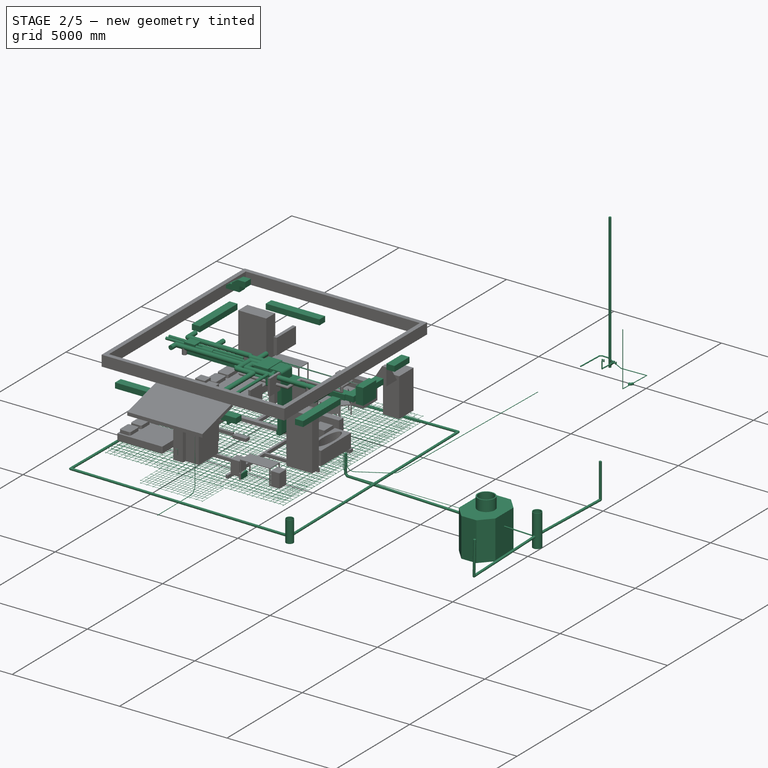
[diagram: stage 2 of 5 — iso view after this stage's code; geometry added in this stage tinted green]
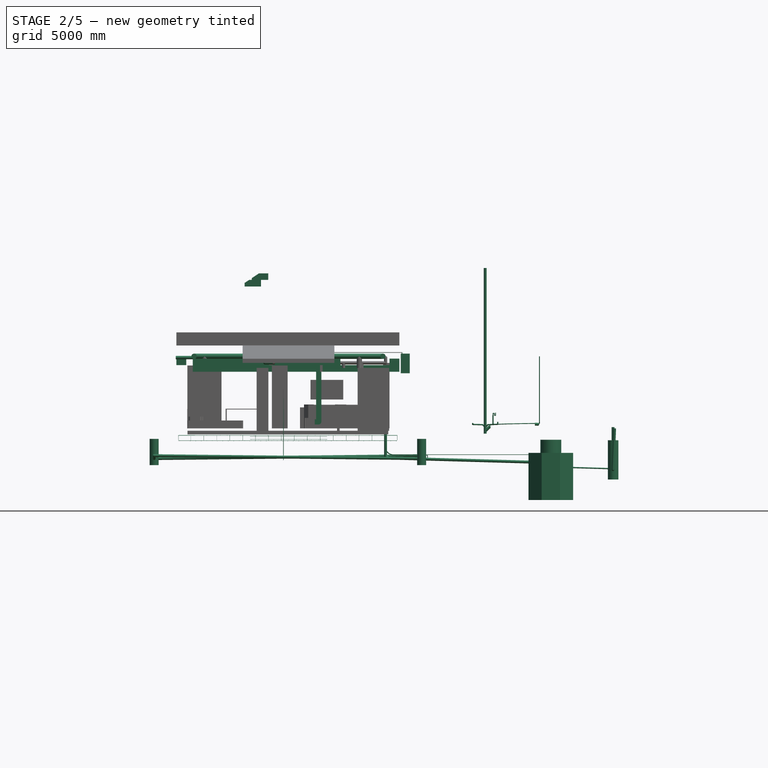
[diagram: stage 2 of 5 — front view after this stage's code; geometry added in this stage tinted green]
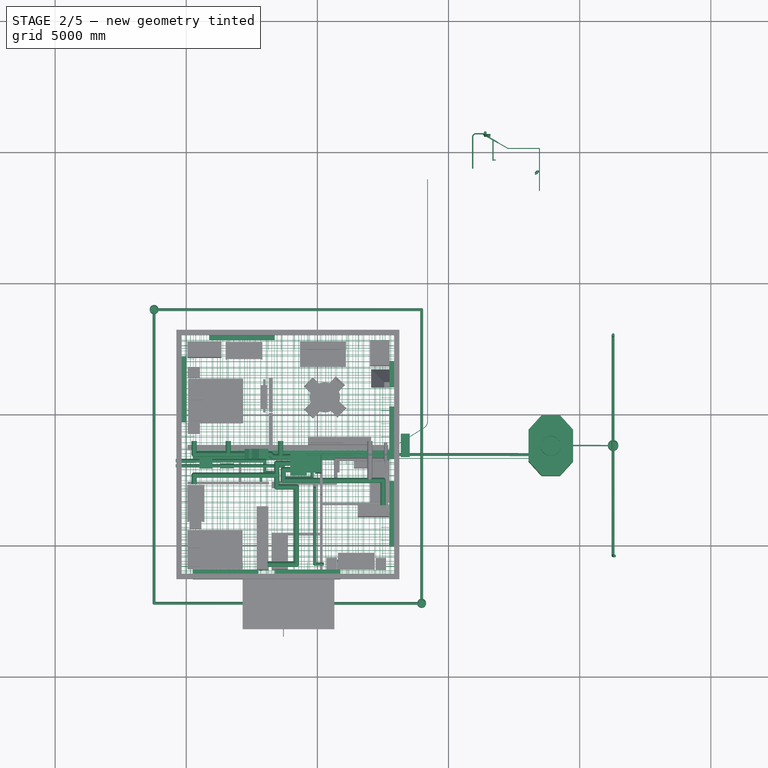
[diagram: stage 2 of 5 — top view after this stage's code; geometry added in this stage tinted green]
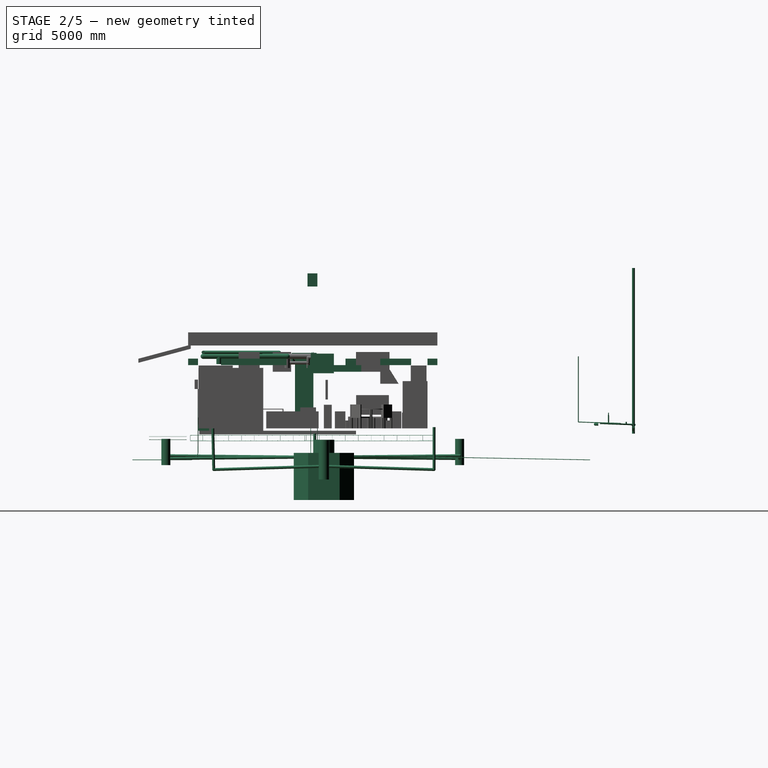
[diagram: stage 2 of 5 — right view after this stage's code; geometry added in this stage tinted green]
FEATURE [Part::Feature] Box390  label="Блок 625х375х250_192"
  Placement = pos=(7125,-1375,-90) rot=(0,0,1;0rad)
  shape: bbox 625 x 375 x 250 mm, 6 faces (baked)
FEATURE [Part::Feature] Box391  label="Блок 625х375х250_193"
  Placement = pos=(6500,-1375,-90) rot=(0,0,1;0rad)
  shape: bbox 625 x 375 x 250 mm, 6 faces (baked)
FEATURE [Part::Feature] Box392  label="Блок 625х375х250_194"
  Placement = pos=(7750,-125,-90) rot=(0,0,-1;1.5708rad)
  shape: bbox 375 x 625 x 250 mm, 6 faces (baked)
FEATURE [Part::Feature] Box393  label="Блок 625х375х250_195"
  Placement = pos=(4000,-1375,-90) rot=(0,0,1;0rad)
  shape: bbox 625 x 375 x 250 mm, 6 faces (baked)
FEATURE [Part::Feature] Box394  label="Блок 625х375х250_196"
  Placement = pos=(1500,7750,-90) rot=(0,0,1;0rad)
  shape: bbox 625 x 375 x 250 mm, 6 faces (baked)
FEATURE [Part::Feature] Box396  label="Блок 625х375х250_198"
  Placement = pos=(2125,-1375,-90) rot=(0,0,1;0rad)
  shape: bbox 625 x 375 x 250 mm, 6 faces (baked)
FEATURE [Part::Feature] Box397  label="Блок 625х375х250_199"
  Placement = pos=(7750,-750,-90) rot=(0,0,-1;1.5708rad)
  shape: bbox 375 x 625 x 250 mm, 6 faces (baked)
FEATURE [Part::Feature] Box400  label="Блок 625х375х250_201"
  Placement = pos=(2750,7750,-90) rot=(0,0,1;0rad)
  shape: bbox 625 x 375 x 250 mm, 6 faces (baked)
FEATURE [Part::Feature] Box401  label="Блок 625х375х250_202"
  Placement = pos=(4625,-1375,-90) rot=(0,0,1;0rad)
  shape: bbox 625 x 375 x 250 mm, 6 faces (baked)
FEATURE [Part::Feature] Box403  label="Блок 625х375х250_203"
  Placement = pos=(-375,4625,-90) rot=(0,0,-1;1.5708rad)
  shape: bbox 375 x 625 x 250 mm, 6 faces (baked)
FEATURE [Part::Feature] Box404  label="Блок 625х375х250_204"
  Placement = pos=(2125,7750,-90) rot=(0,0,1;0rad)
  shape: bbox 625 x 375 x 250 mm, 6 faces (baked)
FEATURE [Part::Feature] Box405  label="Блок 625х375х250_205"
  Placement = pos=(5875,-1375,-90) rot=(0,0,1;0rad)
  shape: bbox 625 x 375 x 250 mm, 6 faces (baked)
FEATURE [Part::Feature] Box407  label="Блок 625х375х250_207"
  Placement = pos=(-375,250,-90) rot=(0,0,-1;1.5708rad)
  shape: bbox 375 x 625 x 250 mm, 6 faces (baked)
FEATURE [Part::Feature] Box408  label="Блок 625х375х250_208"
  Placement = pos=(250,-1375,-90) rot=(0,0,1;0rad)
  shape: bbox 625 x 375 x 250 mm, 6 faces (baked)
FEATURE [Part::Feature] Box409  label="Блок 625х375х250_209"
  Placement = pos=(875,-1375,-90) rot=(0,0,1;0rad)
  shape: bbox 625 x 375 x 250 mm, 6 faces (baked)
FEATURE [Part::Feature] Box410  label="Блок 625х375х250_210"
  Placement = pos=(-375,7750,-90) rot=(0,0,1;0rad)
  shape: bbox 625 x 375 x 250 mm, 6 faces (baked)
FEATURE [Part::Feature] Box411  label="Блок 625х375х250_211"
  Placement = pos=(-375,2750,-90) rot=(0,0,-1;1.5708rad)
  shape: bbox 375 x 625 x 250 mm, 6 faces (baked)
FEATURE [Part::Feature] Box412  label="Блок 625х375х250_212"
  Placement = pos=(-375,4000,-90) rot=(0,0,-1;1.5708rad)
  shape: bbox 375 x 625 x 250 mm, 6 faces (baked)
FEATURE [Part::Feature] Box413  label="Блок 625х375х250_213"
  Placement = pos=(5250,-1375,-90) rot=(0,0,1;0rad)
  shape: bbox 625 x 375 x 250 mm, 6 faces (baked)
FEATURE [Part::Feature] Box414  label="Блок 625х375х250_214"
  Placement = pos=(-375,7125,-90) rot=(0,0,-1;1.5708rad)
  shape: bbox 375 x 625 x 250 mm, 6 faces (baked)
FEATURE [Part::Feature] Box415  label="Блок 625х375х250_215"
  Placement = pos=(-375,5875,-90) rot=(0,0,-1;1.5708rad)
  shape: bbox 375 x 625 x 250 mm, 6 faces (baked)
FEATURE [Part::Feature] Box416  label="Блок 625х375х250_216"
  Placement = pos=(3375,-1375,-90) rot=(0,0,1;0rad)
  shape: bbox 625 x 375 x 250 mm, 6 faces (baked)
FEATURE [Part::Feature] Box417  label="Блок 625х375х250_217"
  Placement = pos=(-375,5250,-90) rot=(0,0,-1;1.5708rad)
  shape: bbox 375 x 625 x 250 mm, 6 faces (baked)
FEATURE [Part::Feature] Box418  label="Блок 625х375х250_218"
  Placement = pos=(5250,7750,-90) rot=(0,0,1;0rad)
  shape: bbox 625 x 375 x 250 mm, 6 faces (baked)
FEATURE [Part::Feature] Box419  label="Блок 625х375х250_219"
  Placement = pos=(2750,-1375,-90) rot=(0,0,1;0rad)
  shape: bbox 625 x 375 x 250 mm, 6 faces (baked)
FEATURE [Part::Feature] Box420  label="Блок 625х375х250_220"
  Placement = pos=(6500,7750,-90) rot=(0,0,1;0rad)
  shape: bbox 625 x 375 x 250 mm, 6 faces (baked)
FEATURE [Part::Feature] Box421  label="Блок 625х375х250_221"
  Placement = pos=(7125,7750,-90) rot=(0,0,1;0rad)
  shape: bbox 625 x 375 x 250 mm, 6 faces (baked)
FEATURE [Part::Feature] Box422  label="Блок 625х375х250_222"
  Placement = pos=(-375,7750,-90) rot=(0,0,-1;1.5708rad)
  shape: bbox 375 x 625 x 250 mm, 6 faces (baked)
FEATURE [Part::Feature] Box423  label="Блок 625х375х250_223"
  Placement = pos=(-375,2125,-90) rot=(0,0,-1;1.5708rad)
  shape: bbox 375 x 625 x 250 mm, 6 faces (baked)
FEATURE [Part::Feature] Box424  label="Блок 625х375х250_224"
  Placement = pos=(5875,7750,-90) rot=(0,0,1;0rad)
  shape: bbox 625 x 375 x 250 mm, 6 faces (baked)
FEATURE [Part::Feature] Box425  label="Блок 625х375х250_225"
  Placement = pos=(875,7750,-90) rot=(0,0,1;0rad)
  shape: bbox 625 x 375 x 250 mm, 6 faces (baked)
FEATURE [Part::Feature] Box426  label="Блок 625х375х250_226"
  Placement = pos=(7750,6875,-90) rot=(0,0,-1;1.5708rad)
  shape: bbox 375 x 625 x 250 mm, 6 faces (baked)
FEATURE [Part::Feature] Box427  label="Блок 625х375х250_227"
  Placement = pos=(7750,5625,-90) rot=(0,0,-1;1.5708rad)
  shape: bbox 375 x 625 x 250 mm, 6 faces (baked)
FEATURE [Part::Feature] Box428  label="Блок 625х375х250_228"
  Placement = pos=(7750,6250,-90) rot=(0,0,-1;1.5708rad)
  shape: bbox 375 x 625 x 250 mm, 6 faces (baked)
FEATURE [Part::Feature] Box429  label="Блок 625х375х250_229"
  Placement = pos=(-375,3375,-90) rot=(0,0,-1;1.5708rad)
  shape: bbox 375 x 625 x 250 mm, 6 faces (baked)
FEATURE [Part::Feature] Box430  label="Блок 625х375х250_230"
  Placement = pos=(3375,7750,-90) rot=(0,0,1;0rad)
  shape: bbox 625 x 375 x 250 mm, 6 faces (baked)
FEATURE [Part::Feature] Box431  label="Блок 625х375х250_231"
  Placement = pos=(7750,7500,-90) rot=(0,0,-1;1.5708rad)
  shape: bbox 375 x 625 x 250 mm, 6 faces (baked)
FEATURE [Part::Feature] Box432  label="Блок 625х375х250_232"
  Placement = pos=(4625,7750,-90) rot=(0,0,1;0rad)
  shape: bbox 625 x 375 x 250 mm, 6 faces (baked)
FEATURE [Part::Feature] Box433  label="Блок 625х375х250_233"
  Placement = pos=(7750,8125,-90) rot=(0,0,-1;1.5708rad)
  shape: bbox 375 x 625 x 250 mm, 6 faces (baked)
FEATURE [Part::Feature] Box434  label="Блок 625х375х250_234"
  Placement = pos=(4000,7750,-90) rot=(0,0,1;0rad)
  shape: bbox 625 x 375 x 250 mm, 6 faces (baked)
FEATURE [Part::Feature] Box435  label="Блок 625х375х250_235"
  Placement = pos=(250,7750,-90) rot=(0,0,1;0rad)
  shape: bbox 625 x 375 x 250 mm, 6 faces (baked)
FEATURE [Part::Feature] Box453  label="Блок 375х375х250_148"
  Placement = pos=(7750,5000,-90) rot=(0,0,-1;1.5708rad)
  shape: bbox 375 x 375 x 250 mm, 6 faces (baked)
FEATURE [Part::Feature] Box454  label="Блок 625х375х250_236"
  Placement = pos=(1500,-1375,-90) rot=(0,0,1;0rad)
  shape: bbox 625 x 375 x 250 mm, 6 faces (baked)
FEATURE [Part::Feature] Box455  label="Блок 625х375х250_237"
  Placement = pos=(-375,6500,-90) rot=(0,0,-1;1.5708rad)
  shape: bbox 375 x 625 x 250 mm, 6 faces (baked)
FEATURE [Part::Feature] Box456  label="Блок 625х375х250_238"
  Placement = pos=(625,-1375,160) rot=(0,0,1;0rad)
  shape: bbox 625 x 375 x 250 mm, 6 faces (baked)
FEATURE [Part::Feature] Box457  label="Блок 625х375х250_239"
  Placement = pos=(1875,-1375,160) rot=(0,0,1;0rad)
  shape: bbox 625 x 375 x 250 mm, 6 faces (baked)
FEATURE [Part::Feature] Box458  label="Блок 625х375х250_240"
  Placement = pos=(2500,-1375,160) rot=(0,0,1;0rad)
  shape: bbox 625 x 375 x 250 mm, 6 faces (baked)
FEATURE [Part::Feature] Box459  label="Блок 625х375х250_241"
  Placement = pos=(1250,-1375,160) rot=(0,0,1;0rad)
  shape: bbox 625 x 375 x 250 mm, 6 faces (baked)
FEATURE [Part::Feature] Box460  label="Блок 625х375х250_242"
  Placement = pos=(7750,7125,160) rot=(0,0,-1;1.5708rad)
  shape: bbox 375 x 625 x 250 mm, 6 faces (baked)
FEATURE [Part::Feature] Box461  label="Блок 625х375х250_243"
  Placement = pos=(7750,5875,160) rot=(0,0,-1;1.5708rad)
  shape: bbox 375 x 625 x 250 mm, 6 faces (baked)
FEATURE [Part::Feature] Box462  label="Блок 625х375х250_244"
  Placement = pos=(3125,-1375,160) rot=(0,0,1;0rad)
  shape: bbox 625 x 375 x 250 mm, 6 faces (baked)
FEATURE [Part::Feature] Box463  label="Блок 625х375х250_245"
  Placement = pos=(3750,-1375,160) rot=(0,0,1;0rad)
  shape: bbox 625 x 375 x 250 mm, 6 faces (baked)
FEATURE [Part::Feature] Box464  label="Блок 625х375х250_246"
  Placement = pos=(4375,-1375,160) rot=(0,0,1;0rad)
  shape: bbox 625 x 375 x 250 mm, 6 faces (baked)
FEATURE [Part::Feature] Box465  label="Блок 625х375х250_247"
  Placement = pos=(5000,-1375,160) rot=(0,0,1;0rad)
  shape: bbox 625 x 375 x 250 mm, 6 faces (baked)
FEATURE [Part::Feature] Box466  label="Блок 625х375х250_248"
  Placement = pos=(5625,-1375,160) rot=(0,0,1;0rad)
  shape: bbox 625 x 375 x 250 mm, 6 faces (baked)
FEATURE [Part::Feature] Box467  label="Блок 625х375х250_249"
  Placement = pos=(6250,-1375,160) rot=(0,0,1;0rad)
  shape: bbox 625 x 375 x 250 mm, 6 faces (baked)
FEATURE [Part::Feature] Box468  label="Блок 625х375х250_250"
  Placement = pos=(6875,-1375,160) rot=(0,0,1;0rad)
  shape: bbox 625 x 375 x 250 mm, 6 faces (baked)
FEATURE [Part::Feature] Box469  label="Блок 625х375х250_251"
  Placement = pos=(7500,-1375,160) rot=(0,0,1;0rad)
  shape: bbox 625 x 375 x 250 mm, 6 faces (baked)
FEATURE [Part::Feature] Box470  label="Блок 625х375х250_252"
  Placement = pos=(7750,250,160) rot=(0,0,-1;1.5708rad)
  shape: bbox 375 x 625 x 250 mm, 6 faces (baked)
FEATURE [Part::Feature] Box471  label="Блок 625х375х250_253"
  Placement = pos=(7750,875,160) rot=(0,0,-1;1.5708rad)
  shape: bbox 375 x 625 x 250 mm, 6 faces (baked)
FEATURE [Part::Feature] Box472  label="Блок 625х375х250_254"
  Placement = pos=(7750,2125,160) rot=(0,0,-1;1.5708rad)
  shape: bbox 375 x 625 x 250 mm, 6 faces (baked)
FEATURE [Part::Feature] Box473  label="Блок 625х375х250_255"
  Placement = pos=(7750,2750,160) rot=(0,0,-1;1.5708rad)
  shape: bbox 375 x 625 x 250 mm, 6 faces (baked)
FEATURE [Part::Feature] Box474  label="Блок 625х375х250_256"
  Placement = pos=(-375,1075,160) rot=(0,0,-1;1.5708rad)
  shape: bbox 375 x 625 x 250 mm, 6 faces (baked)
FEATURE [Part::Feature] Box475  label="Блок 625х375х250_257"
  Placement = pos=(-375,1700,160) rot=(0,0,-1;1.5708rad)
  shape: bbox 375 x 625 x 250 mm, 6 faces (baked)
FEATURE [Part::Feature] Box476  label="Блок 625х375х250_258"
  Placement = pos=(-375,2325,160) rot=(0,0,-1;1.5708rad)
  shape: bbox 375 x 625 x 250 mm, 6 faces (baked)
FEATURE [Part::Feature] Box477  label="Блок 625х375х250_259"
  Placement = pos=(-375,2950,160) rot=(0,0,-1;1.5708rad)
  shape: bbox 375 x 625 x 250 mm, 6 faces (baked)
FEATURE [Part::Feature] Box478  label="Блок 625х375х250_260"
  Placement = pos=(-375,4425,160) rot=(0,0,-1;1.5708rad)
  shape: bbox 375 x 625 x 250 mm, 6 faces (baked)
FEATURE [Part::Feature] Box479  label="Блок 625х375х250_261"
  Placement = pos=(-375,5050,160) rot=(0,0,-1;1.5708rad)
  shape: bbox 375 x 625 x 250 mm, 6 faces (baked)
FEATURE [Part::Feature] Box480  label="Блок 625х375х250_262"
  Placement = pos=(-375,5675,160) rot=(0,0,-1;1.5708rad)
  shape: bbox 375 x 625 x 250 mm, 6 faces (baked)
FEATURE [Part::Feature] Box481  label="Блок 625х375х250_263"
  Placement = pos=(-375,6300,160) rot=(0,0,-1;1.5708rad)
  shape: bbox 375 x 625 x 250 mm, 6 faces (baked)
FEATURE [Part::Feature] Box482  label="Блок 625х375х250_264"
  Placement = pos=(-375,6925,160) rot=(0,0,-1;1.5708rad)
  shape: bbox 375 x 625 x 250 mm, 6 faces (baked)
FEATURE [Part::Feature] Box484  label="Блок 625х375х250_266"
  Placement = pos=(-375,8125,160) rot=(0,0,-1;1.5708rad)
  shape: bbox 375 x 625 x 250 mm, 6 faces (baked)
FEATURE [Part::Feature] Box485  label="Блок 625х375х250_267"
  Placement = pos=(-3.865e-12,7750,160) rot=(0,0,1;0rad)
  shape: bbox 625 x 375 x 250 mm, 6 faces (baked)
FEATURE [Part::Feature] Box486  label="Блок 625х375х250_268"
  Placement = pos=(625,7750,160) rot=(0,0,1;0rad)
  shape: bbox 625 x 375 x 250 mm, 6 faces (baked)
FEATURE [Part::Feature] Box487  label="Блок 625х375х250_269"
  Placement = pos=(1250,7750,160) rot=(0,0,1;0rad)
  shape: bbox 625 x 375 x 250 mm, 6 faces (baked)
FEATURE [Part::Feature] Box488  label="Блок 625х375х250_270"
  Placement = pos=(1875,7750,160) rot=(0,0,1;0rad)
  shape: bbox 625 x 375 x 250 mm, 6 faces (baked)
FEATURE [Part::Feature] Box489  label="Блок 625х375х250_271"
  Placement = pos=(2500,7750,160) rot=(0,0,1;0rad)
  shape: bbox 625 x 375 x 250 mm, 6 faces (baked)
FEATURE [Part::Feature] Box490  label="Блок 625х375х250_272"
  Placement = pos=(3125,7750,160) rot=(0,0,1;0rad)
  shape: bbox 625 x 375 x 250 mm, 6 faces (baked)
FEATURE [Part::Feature] Box491  label="Блок 625х375х250_273"
  Placement = pos=(3750,7750,160) rot=(0,0,1;0rad)
  shape: bbox 625 x 375 x 250 mm, 6 faces (baked)
FEATURE [Part::Feature] Box492  label="Блок 625х375х250_274"
  Placement = pos=(4375,7750,160) rot=(0,0,1;0rad)
  shape: bbox 625 x 375 x 250 mm, 6 faces (baked)
FEATURE [Part::Feature] Box493  label="Блок 625х375х250_275"
  Placement = pos=(5000,7750,160) rot=(0,0,1;0rad)
  shape: bbox 625 x 375 x 250 mm, 6 faces (baked)
FEATURE [Part::Feature] Box494  label="Блок 625х375х250_276"
  Placement = pos=(5625,7750,160) rot=(0,0,1;0rad)
  shape: bbox 625 x 375 x 250 mm, 6 faces (baked)
FEATURE [Part::Feature] Box495  label="Блок 625х375х250_277"
  Placement = pos=(6250,7750,160) rot=(0,0,1;0rad)
  shape: bbox 625 x 375 x 250 mm, 6 faces (baked)
FEATURE [Part::Feature] Box496  label="Блок 625х375х250_278"
  Placement = pos=(6875,7750,160) rot=(0,0,1;0rad)
  shape: bbox 625 x 375 x 250 mm, 6 faces (baked)
FEATURE [Part::Feature] Box497  label="Блок 625х375х250_279"
  Placement = pos=(7500,7750,160) rot=(0,0,1;0rad)
  shape: bbox 625 x 375 x 250 mm, 6 faces (baked)
FEATURE [Part::Feature] Box498  label="Блок 625х375х250_280"
  Placement = pos=(7750,7750,160) rot=(0,0,-1;1.5708rad)
  shape: bbox 375 x 625 x 250 mm, 6 faces (baked)
FEATURE [Part::Feature] Box499  label="Блок 625х375х250_281"
  Placement = pos=(7750,6500,160) rot=(0,0,-1;1.5708rad)
  shape: bbox 375 x 625 x 250 mm, 6 faces (baked)
FEATURE [Part::Feature] Box500  label="Блок 625х375х250_282"
  Placement = pos=(7750,5250,160) rot=(0,0,-1;1.5708rad)
  shape: bbox 375 x 625 x 250 mm, 6 faces (baked)
FEATURE [Part::Feature] Box501  label="Блок 625х375х250_283"
  Placement = pos=(7750,1500,160) rot=(0,0,-1;1.5708rad)
  shape: bbox 375 x 625 x 250 mm, 6 faces (baked)
FEATURE [Part::Feature] Box520  label="Блок 625х375х250_284"
  Placement = pos=(-1.14e-13,-1375,160) rot=(0,0,1;0rad)
  shape: bbox 625 x 375 x 250 mm, 6 faces (baked)
FEATURE [Part::Feature] Box521  label="Блок 625х375х250_285"
  Placement = pos=(-375,450,160) rot=(0,0,-1;1.5708rad)
  shape: bbox 375 x 625 x 250 mm, 6 faces (baked)
FEATURE [Part::Box] Box886  label="Армокаркас 2000х160х190_001"
  AttacherType = Attacher::AttachEngine3D
  Height = 190
  Length = 2000
  Placement = pos=(7810,5225,2220) rot=(0,0,-1;1.5708rad)
  Width = 160
FEATURE [Part::Box] Box899  label="Армокаркас 7500х160х190_001"
  AttacherType = Attacher::AttachEngine3D
  Height = 190
  Length = 7500
  Placement = pos=(250,3330,2220) rot=(0,0,1;0rad)
  Width = 160
FEATURE [Part::Part2DObjectPython] Rectangle445  label="плита_9400х8400"  # Draft 2D object (typed FeaturePython)
  ChamferSize = 0
  Columns = 1
  FilletRadius = 0
  Height = 9400
  Length = 8400
  MakeFace = false
  Placement = pos=(-325,-1325,0) rot=(0,0,1;0rad)
  Rows = 1
FEATURE [Part::FeaturePython] Structure130  label="фундамент_плита h0.3"  # Arch/BIM object (typed FeaturePython)
  Base = -> Rectangle445
  FaceMaker = 0
  Height = 300
  HorizontalArea = 7.896e+07
  IfcRole = 0
  Length = 0
  MoveWithHost = false
  Nodes = (2) [(3875,3875,0),(3875,3875,350)]
  NodesOffset = 0
  Normal = (0,0,-1)
  PerimeterLength = 35600
  Placement = pos=(0,0,-230) rot=(0,0,1;0rad)
  VerticalArea = 1.068e+07
  Width = 100
FEATURE [Part::Part2DObjectPython] Rectangle482  label="плита_крыльца_001"  # Draft 2D object (typed FeaturePython)
  ChamferSize = 0
  Columns = 1
  FilletRadius = 0
  Height = 1500
  Length = 3000
  MakeFace = false
  Placement = pos=(2400,-2900,0) rot=(0,0,1;0rad)
  Rows = 1
FEATURE [Part::Part2DObjectPython] Rectangle483  label="подушка_крыльца_002"  # Draft 2D object (typed FeaturePython)
  ChamferSize = 0
  Columns = 1
  FilletRadius = 0
  Height = 1500
  Length = 4500
  MakeFace = false
  Placement = pos=(1650,-3625,0) rot=(0,0,1;0rad)
  Rows = 1
FEATURE [Part::FeaturePython] Structure237  label="фундамент_плита_крыльца_001"  # Arch/BIM object (typed FeaturePython)
  Base = -> Rectangle482
  FaceMaker = 0
  Height = 200
  HorizontalArea = 4500000
  IfcRole = 0
  Length = 0
  MoveWithHost = false
  Nodes = (2) [(3875,3875,0),(3875,3875,350)]
  NodesOffset = 0
  Normal = (0,0,-1)
  PerimeterLength = 9000
  Placement = pos=(0,0,-280) rot=(0,0,1;0rad)
  VerticalArea = 1800000
  Width = 100
FEATURE [App::GeometryPython] BuildingPart035  label="Перекрытие_001"  # Arch/BIM object (typed FeaturePython)
  Area = 0
  Group = -> [Array012,Array013,Wall056,Structure176,Wall058,Structure197,Structure198,Structure203,Wall072]
  Height = 0
  IfcRole = 0
  LevelOffset = 0
FEATURE [App::GeometryPython] BuildingPart042  label="Мансарда"  # Arch/BIM object (typed FeaturePython)
  Area = 0
  Group = -> [BuildingPart041,Array016,Structure200,BuildingPart035]
  Height = 0
  IfcRole = 15
  LevelOffset = 0
FEATURE [Part::Part2DObjectPython] Wire103  label="стояк_кан."  # Draft 2D object (typed FeaturePython)
  ChamferSize = 0
  Closed = true
  End = (11400,15600,6117.19)
  FilletRadius = 0
  Length = 6000
  MakeFace = false
  Placement = pos=(11400,15600,117.194) rot=(0,0,1;0rad)
  Points = (2) [(0,0,0),(0,0,6000)]
  Start = (11400,15600,117.194)
  Subdivisions = 0
FEATURE [Part::FeaturePython] Pipe  label="стояк канализационный D110"  # Arch/BIM object (typed FeaturePython)
  Base = -> Wire103
  Diameter = 110
  HorizontalArea = 0
  IfcRole = 98
  Length = 6000
  MoveWithHost = false
  OffsetEnd = 0
  OffsetStart = 0
  PerimeterLength = 0
  VerticalArea = 0
FEATURE [Part::Part2DObjectPython] Line331  # Draft 2D object (typed FeaturePython)
  ChamferSize = 0
  Closed = false
  End = (7650,7650,0)
  FilletRadius = 0
  Length = 2000
  MakeFace = false
  Placement = pos=(5650,7650,0) rot=(0,0,1;0rad)
  Points = (2) [(0,0,0),(2000,0,0)]
  Start = (5650,7650,0)
  Subdivisions = 0
  Support = -> [Structure179]
FEATURE [Part::Part2DObjectPython] Line332  # Draft 2D object (typed FeaturePython)
  ChamferSize = 0
  Closed = false
  End = (7650,6200,0)
  FilletRadius = 0
  Length = 1450
  MakeFace = false
  Placement = pos=(7650,7650,0) rot=(0,0,1;0rad)
  Points = (2) [(0,0,0),(0,-1450,0)]
  Start = (7650,7650,0)
  Subdivisions = 0
FEATURE [Part::Part2DObjectPython] Line333  # Draft 2D object (typed FeaturePython)
  ChamferSize = 0
  Closed = false
  End = (7650,7650,60)
  FilletRadius = 0
  Length = 60
  MakeFace = false
  Placement = pos=(7650,7650,0) rot=(0,0,1;0rad)
  Points = (2) [(0,0,0),(0,0,60)]
  Start = (7650,7650,0)
  Subdivisions = 0
FEATURE [Part::Part2DObjectPython] Line334  # Draft 2D object (typed FeaturePython)
  ChamferSize = 0
  Closed = false
  End = (7650,6200,60)
  FilletRadius = 0
  Length = 60
  MakeFace = false
  Placement = pos=(7650,6200,0) rot=(0,0,1;0rad)
  Points = (2) [(0,0,0),(0,0,60)]
  Start = (7650,6200,0)
  Subdivisions = 0
FEATURE [Part::Part2DObjectPython] Line335  # Draft 2D object (typed FeaturePython)
  ChamferSize = 0
  Closed = false
  End = (7650,6200,105)
  FilletRadius = 0
  Length = 45
  MakeFace = false
  Placement = pos=(7650,6200,60) rot=(0,0,1;0rad)
  Points = (2) [(0,0,0),(0,0,45)]
  Start = (7650,6200,60)
  Subdivisions = 0
FEATURE [Part::Part2DObjectPython] Wire104  label="фан.труба унитаз"  # Draft 2D object (typed FeaturePython)
  ChamferSize = 250
  Closed = false
  End = (13400.8,14150,160)
  FilletRadius = 0
  Length = 3148.15
  MakeFace = false
  Placement = pos=(11400.8,15600,55) rot=(0,0,1;0rad)
  Points = (4) [(200,0,5),(2000,9.09495e-13,60),(2000,-1450,105),(2000,-1450,105)]
  Start = (11600.8,15600,60)
  Subdivisions = 0
FEATURE [Part::FeaturePython] Pipe001  label="фан.труба унитаз D110"  # Arch/BIM object (typed FeaturePython)
  Base = -> Wire104
  Diameter = 110
  HorizontalArea = 0
  IfcRole = 98
  Length = 3038.15
  MoveWithHost = false
  OffsetEnd = 110
  OffsetStart = 0
  PerimeterLength = 0
  VerticalArea = 0
FEATURE [Part::Part2DObjectPython] Line336  label="фан.труба D111"  # Draft 2D object (typed FeaturePython)
  ChamferSize = 0
  Closed = false
  End = (13250.8,14150,160)
  FilletRadius = 0
  Length = 150
  MakeFace = false
  Placement = pos=(13400.8,14150,160) rot=(0,0,1;0rad)
  Points = (2) [(0,0,0),(-150,0,0)]
  Start = (13400.8,14150,160)
  Subdivisions = 0
FEATURE [Part::FeaturePython] Pipe002  label="фан.труба D110"  # Arch/BIM object (typed FeaturePython)
  Base = -> Line336
  Diameter = 110
  HorizontalArea = 0
  IfcRole = 98
  Length = 40
  MoveWithHost = false
  OffsetEnd = 0
  OffsetStart = 110
  PerimeterLength = 0
  VerticalArea = 0
FEATURE [Part::Part2DObjectPython] Rectangle504  # Draft 2D object (typed FeaturePython)
  ChamferSize = 0
  Columns = 1
  FilletRadius = 0
  Height = 0
  Length = 200
  MakeFace = false
  Placement = pos=(5450,7650,4250) rot=(0,0,1;0rad)
  Rows = 1
FEATURE [Part::Part2DObjectPython] Rectangle505  # Draft 2D object (typed FeaturePython)
  ChamferSize = 0
  Columns = 1
  FilletRadius = 0
  Height = 50
  Length = 50
  MakeFace = false
  Placement = pos=(7700,5550,2910) rot=(0,0,1;0rad)
  Rows = 1
FEATURE [Part::Part2DObjectPython] Line337  # Draft 2D object (typed FeaturePython)
  ChamferSize = 0
  Closed = false
  End = (7700,5550,2760)
  FilletRadius = 0
  Length = 150
  MakeFace = false
  Placement = pos=(7700,5550,2910) rot=(0,0,1;0rad)
  Points = (2) [(0,0,0),(0,0,-150)]
  Start = (7700,5550,2910)
  Subdivisions = 0
FEATURE [Part::Part2DObjectPython] Line338  # Draft 2D object (typed FeaturePython)
  ChamferSize = 0
  Closed = false
  End = (5450,7650,55)
  FilletRadius = 0
  Length = 55
  MakeFace = false
  Placement = pos=(5450,7650,0) rot=(0,0,1;0rad)
  Points = (2) [(0,0,0),(0,0,55)]
  Start = (5450,7650,0)
  Subdivisions = 0
FEATURE [Part::Part2DObjectPython] Line340  # Draft 2D object (typed FeaturePython)
  ChamferSize = 0
  Closed = false
  End = (5600,7300,55)
  FilletRadius = 0
  Length = 150
  MakeFace = false
  Placement = pos=(5450,7300,55) rot=(0,0,1;0rad)
  Points = (2) [(0,0,0),(150,0,0)]
  Start = (5450,7300,55)
  Subdivisions = 0
FEATURE [Part::Part2DObjectPython] Line342  # Draft 2D object (typed FeaturePython)
  ChamferSize = 0
  Closed = false
  End = (6125,7150,0)
  FilletRadius = 0
  Length = 225
  MakeFace = false
  Placement = pos=(6125,7375,0) rot=(0,0,1;0rad)
  Points = (2) [(0,0,0),(0,-225,0)]
  Start = (6125,7375,0)
  Subdivisions = 0
FEATURE [Part::Part2DObjectPython] Line343  # Draft 2D object (typed FeaturePython)
  ChamferSize = 0
  Closed = false
  End = (6125,7375,85)
  FilletRadius = 0
  Length = 85
  MakeFace = false
  Placement = pos=(6125,7375,0) rot=(0,0,1;0rad)
  Points = (2) [(0,0,0),(0,0,85)]
  Start = (6125,7375,0)
  Subdivisions = 0
FEATURE [Part::Part2DObjectPython] Line344  # Draft 2D object (typed FeaturePython)
  ChamferSize = 0
  Closed = false
  End = (5450,7375,0)
  FilletRadius = 0
  Length = 275
  MakeFace = false
  Placement = pos=(5450,7650,0) rot=(0,0,1;0rad)
  Points = (2) [(0,0,0),(0,-275,0)]
  Start = (5450,7650,0)
  Subdivisions = 0
FEATURE [Part::Part2DObjectPython] Line345  # Draft 2D object (typed FeaturePython)
  ChamferSize = 0
  Closed = false
  End = (6125,7375,0)
  FilletRadius = 0
  Length = 675
  MakeFace = false
  Placement = pos=(5450,7375,0) rot=(0,0,1;0rad)
  Points = (2) [(0,0,0),(675,0,0)]
  Start = (5450,7375,0)
  Subdivisions = 0
FEATURE [Part::Part2DObjectPython] Line346  # Draft 2D object (typed FeaturePython)
  ChamferSize = 0
  Closed = false
  End = (5250,7375,0)
  FilletRadius = 0
  Length = 200
  MakeFace = false
  Placement = pos=(5450,7375,0) rot=(0,0,1;0rad)
  Points = (2) [(0,0,0),(-200,0,0)]
  Start = (5450,7375,0)
  Subdivisions = 0
FEATURE [Part::Part2DObjectPython] Line347  # Draft 2D object (typed FeaturePython)
  ChamferSize = 0
  Closed = false
  End = (5450,7375,65)
  FilletRadius = 0
  Length = 65
  MakeFace = false
  Placement = pos=(5450,7375,0) rot=(0,0,1;0rad)
  Points = (2) [(0,0,0),(0,0,65)]
  Start = (5450,7375,0)
  Subdivisions = 0
FEATURE [Part::Part2DObjectPython] Line348  # Draft 2D object (typed FeaturePython)
  ChamferSize = 0
  Closed = true
  End = (5250,7375,0)
  FilletRadius = 0
  Length = 70
  MakeFace = false
  Placement = pos=(5250,7375,0) rot=(0,0,1;0rad)
  Points = (2) [(0,0,0),(0,0,0)]
  Start = (5250,7375,0)
  Subdivisions = 0
FEATURE [Part::Part2DObjectPython] Line349  # Draft 2D object (typed FeaturePython)
  ChamferSize = 0
  Closed = false
  End = (6125,7375,0)
  FilletRadius = 0
  Length = 675
  MakeFace = false
  Placement = pos=(5450,7375,0) rot=(0,0,1;0rad)
  Points = (2) [(0,0,0),(675,0,0)]
  Start = (5450,7375,0)
  Subdivisions = 0
FEATURE [Part::Part2DObjectPython] Line353  # Draft 2D object (typed FeaturePython)
  ChamferSize = 0
  Closed = false
  End = (7600,3450,-201.806)
  FilletRadius = 0
  Length = 800
  MakeFace = false
  Placement = pos=(7600,3450,-1001.81) rot=(0,0,-1;1.5708rad)
  Points = (2) [(0,0,0),(0,0,800)]
  Start = (7600,3450,-1001.81)
  Subdivisions = 0
FEATURE [Part::FeaturePython] Pipe006  label="стояк D110 _001"  # Arch/BIM object (typed FeaturePython)
  Base = -> Line353
  Diameter = 110
  HorizontalArea = 0
  IfcRole = 98
  Length = 800
  MoveWithHost = false
  OffsetEnd = 0
  OffsetStart = 0
  PerimeterLength = 0
  VerticalArea = 0
FEATURE [Part::FeaturePython] Connector  label="фан.выпуск D110 (90)"  # Arch/BIM object (typed FeaturePython)
  ConnectorType = 0
  HorizontalArea = 0
  IfcRole = 97
  MoveWithHost = false
  PerimeterLength = 0
  Pipes = -> [Pipe002,Pipe001]
  Radius = 110
  VerticalArea = 0
FEATURE [Part::Part2DObjectPython] Wire108  # Draft 2D object (typed FeaturePython)
  ChamferSize = 0
  Closed = false
  End = (11600.8,15600,60)
  FilletRadius = 0
  Length = 127.012
  MakeFace = true
  Placement = pos=(11499,15600,-0.811183) rot=(0.862856,0.357407,-0.357407;1.71777rad)
  Points = (4) [(0,0,0),(0,61,1.35447e-14),(0,86,1.90958e-14),(29,115,0)]
  Start = (11499,15600,-0.811183)
  Subdivisions = 0
FEATURE [Part::FeaturePython] Pipe007  label="угол 45 D110 001"  # Arch/BIM object (typed FeaturePython)
  Base = -> Wire108
  Diameter = 110
  HorizontalArea = 0
  IfcRole = 98
  Length = 127.012
  MoveWithHost = false
  OffsetEnd = 0
  OffsetStart = 0
  PerimeterLength = 0
  VerticalArea = 0
FEATURE [Part::Part2DObjectPython] Wire110  # Draft 2D object (typed FeaturePython)
  ChamferSize = 0
  Closed = false
  End = (11400,15600,-201.806)
  FilletRadius = 0
  Length = 187
  MakeFace = true
  Placement = pos=(11400,15600,-14.8061) rot=(1,0,0;1.5708rad)
  Points = (4) [(0,0,0),(0,-85,-1.88738e-14),(0,-126,-2.79776e-14),(0,-187,0)]
  Start = (11400,15600,-14.8061)
  Subdivisions = 0
FEATURE [Part::Part2DObjectPython] Line354  # Draft 2D object (typed FeaturePython)
  ChamferSize = 0
  Closed = false
  End = (11400,15600,-99.8061)
  FilletRadius = 0
  Length = 140
  MakeFace = true
  Placement = pos=(11499,15600,-0.811183) rot=(1,0,0;1.5708rad)
  Points = (2) [(0,0,0),(-98.9949,-98.9949,0)]
  Start = (11499,15600,-0.811183)
  Subdivisions = 0
FEATURE [Part::FeaturePython] Pipe008  label="Pipe"  # Arch/BIM object (typed FeaturePython)
  Base = -> Line354
  Diameter = 110
  HorizontalArea = 0
  IfcRole = 98
  Length = 140
  MoveWithHost = false
  OffsetEnd = 0
  OffsetStart = 0
  PerimeterLength = 0
  VerticalArea = 0
FEATURE [Part::FeaturePython] Pipe009  label="Pipe001"  # Arch/BIM object (typed FeaturePython)
  Base = -> Wire110
  Diameter = 110
  HorizontalArea = 0
  IfcRole = 98
  Length = 187
  MoveWithHost = false
  OffsetEnd = 0
  OffsetStart = 0
  PerimeterLength = 0
  VerticalArea = 0
FEATURE [Part::Part2DObjectPython] Line355  # Draft 2D object (typed FeaturePython)
  ChamferSize = 0
  Closed = false
  End = (5850,7650,0)
  FilletRadius = 0
  Length = 200
  MakeFace = true
  Placement = pos=(5650,7650,0) rot=(1,0,0;1.5708rad)
  Points = (2) [(0,0,0),(200,-6.12323e-15,0)]
  Start = (5650,7650,0)
  Subdivisions = 0
FEATURE [Part::Part2DObjectPython] Line357  # Draft 2D object (typed FeaturePython)
  ChamferSize = 0
  Closed = false
  End = (5850,7650,0)
  FilletRadius = 0
  Length = 60
  MakeFace = true
  Placement = pos=(5850,7650,60) rot=(1,0,0;1.5708rad)
  Points = (2) [(0,0,0),(0,-60,2.72848e-12)]
  Start = (5850,7650,60)
  Subdivisions = 0
FEATURE [App::GeometryPython] BuildingPart048  label="тройник 110 (45)"  # Arch/BIM object (typed FeaturePython)
  Area = 0
  Group = -> [Pipe009,Pipe008]
  Height = 0
  IfcRole = 0
  LevelOffset = 0
FEATURE [Part::Part2DObjectPython] Wire117  # Draft 2D object (typed FeaturePython)
  ChamferSize = 0
  Closed = false
  End = (11514.3,15534,142.159)
  FilletRadius = 0
  Length = 76
  MakeFace = false
  Placement = pos=(11463.7,15563.2,99.733) rot=(0.846824,0.111292,-0.520099;1.95068rad)
  Points = (4) [(0,0,0),(0,48,1.06581e-14),(0,60,1.33227e-14),(11.3137,71.3137,7.27596e-12)]
  Start = (11463.7,15563.2,99.733)
  Subdivisions = 0
FEATURE [Part::FeaturePython] Pipe015  label="отвод D50 (45) 002"  # Arch/BIM object (typed FeaturePython)
  Base = -> Wire117
  Diameter = 50
  HorizontalArea = 0
  IfcRole = 98
  Length = 76
  MoveWithHost = false
  OffsetEnd = 0
  OffsetStart = 0
  PerimeterLength = 0
  VerticalArea = 0
FEATURE [Part::Part2DObjectPython] Wire118  # Draft 2D object (typed FeaturePython)
  ChamferSize = 0
  Closed = false
  End = (11400,15600,117.194)
  FilletRadius = 0
  Length = 132
  MakeFace = false
  Placement = pos=(11400,15600,-14.8061) rot=(1,0,0;1.5708rad)
  Points = (3) [(0,0,0),(0,41,9.10383e-15),(0,132,0)]
  Start = (11400,15600,-14.8061)
  Subdivisions = 0
FEATURE [Part::Part2DObjectPython] Wire119  # Draft 2D object (typed FeaturePython)
  ChamferSize = 0
  Closed = false
  End = (11463.7,15563.2,99.733)
  FilletRadius = 0
  Length = 208
  MakeFace = false
  Placement = pos=(11336.3,15636.8,99.733) rot=(0.935007,-0.25076,-0.25076;1.63795rad)
  Points = (3) [(0,0,0),(73.5391,-73.5391,8.90914e-13),(147.078,9.80549e-13,7.27596e-12)]
  Start = (11336.3,15636.8,99.733)
  Subdivisions = 0
FEATURE [Part::FeaturePython] Pipe016  label="Pipe006"  # Arch/BIM object (typed FeaturePython)
  Base = -> Wire118
  Diameter = 110
  HorizontalArea = 0
  IfcRole = 98
  Length = 132
  MoveWithHost = false
  OffsetEnd = 0
  OffsetStart = 0
  PerimeterLength = 0
  VerticalArea = 0
FEATURE [Part::FeaturePython] Pipe017  label="Pipe007"  # Arch/BIM object (typed FeaturePython)
  Base = -> Wire119
  Diameter = 50
  HorizontalArea = 0
  IfcRole = 98
  Length = 208
  MoveWithHost = false
  OffsetEnd = 0
  OffsetStart = 0
  PerimeterLength = 0
  VerticalArea = 0
FEATURE [App::GeometryPython] BuildingPart050  label="крестовина 50-110-50 (45)001"  # Arch/BIM object (typed FeaturePython)
  Area = 0
  Group = -> [Pipe017,Pipe016]
  Height = 0
  IfcRole = 0
  LevelOffset = 0
FEATURE [Part::Part2DObjectPython] Wire120  # Draft 2D object (typed FeaturePython)
  ChamferSize = 0
  Closed = false
  End = (11875.8,15325,250)
  FilletRadius = 0
  Length = 510.715
  MakeFace = false
  Placement = pos=(11514.3,15534,142.159) rot=(0,0,1;0rad)
  Points = (3) [(0,0,0),(361.563,-208.966,15),(361.563,-208.966,107.841)]
  Start = (11514.3,15534,142.159)
  Subdivisions = 0
FEATURE [Part::FeaturePython] Pipe018  label="труба D50 002"  # Arch/BIM object (typed FeaturePython)
  Base = -> Wire120
  Diameter = 50
  HorizontalArea = 0
  IfcRole = 98
  Length = 510.715
  MoveWithHost = false
  OffsetEnd = 0
  OffsetStart = 0
  PerimeterLength = 0
  VerticalArea = 0
FEATURE [Part::Part2DObjectPython] Line362  # Draft 2D object (typed FeaturePython)
  ChamferSize = 0
  Closed = false
  End = (7714.36,5549.97,173.313)
  FilletRadius = 0
  Length = 1600
  MakeFace = false
  Placement = pos=(7714.36,7149.97,173.313) rot=(0,0,1;0rad)
  Points = (2) [(0,0,0),(0,-1600,0)]
  Start = (7714.36,7149.97,173.313)
  Subdivisions = 0
FEATURE [Part::Part2DObjectPython] Line364  # Draft 2D object (typed FeaturePython)
  ChamferSize = 0
  Closed = false
  End = (7714.36,7149.97,193.313)
  FilletRadius = 0
  Length = 20
  MakeFace = false
  Placement = pos=(7714.36,7149.97,173.313) rot=(0,0,1;0rad)
  Points = (2) [(0,0,0),(0,0,20)]
  Start = (7714.36,7149.97,173.313)
  Subdivisions = 0
FEATURE [Part::Part2DObjectPython] Line365  # Draft 2D object (typed FeaturePython)
  ChamferSize = 0
  Closed = false
  End = (7714.36,5549.97,243.313)
  FilletRadius = 0
  Length = 70
  MakeFace = false
  Placement = pos=(7714.36,5549.97,173.313) rot=(0,0,1;0rad)
  Points = (2) [(0,0,0),(0,0,70)]
  Start = (7714.36,5549.97,173.313)
  Subdivisions = 0
FEATURE [Part::Part2DObjectPython] Line366  # Draft 2D object (typed FeaturePython)
  ChamferSize = 0
  Closed = false
  End = (7714.36,5549.97,2743.31)
  FilletRadius = 0
  Length = 2500
  MakeFace = false
  Placement = pos=(7714.36,5549.97,243.313) rot=(0,0,1;0rad)
  Points = (2) [(0,0,0),(0,0,2500)]
  Start = (7714.36,5549.97,243.313)
  Subdivisions = 0
FEATURE [Part::Part2DObjectPython] Wire121  # Draft 2D object (typed FeaturePython)
  ChamferSize = 0
  Closed = false
  End = (13465.2,13500,2743.31)
  FilletRadius = 0
  Length = 5750.95
  MakeFace = false
  Placement = pos=(11875.8,15325,157.159) rot=(0,0,1;0rad)
  Points = (5) [(0,0,0),(389.359,-225.031,16.1532),(1589.36,-225.031,36.1532),(1589.36,-1825.03,86.1532),(1589.36,-1825.03,2586.15)]
  Start = (11875.8,15325,157.159)
  Subdivisions = 0
FEATURE [Part::FeaturePython] Pipe019  label="конденсатоотвод труба D32 001"  # Arch/BIM object (typed FeaturePython)
  Base = -> Wire121
  Diameter = 32
  HorizontalArea = 0
  IfcRole = 98
  Length = 5750.95
  MoveWithHost = false
  OffsetEnd = 0
  OffsetStart = 0
  PerimeterLength = 0
  VerticalArea = 0
FEATURE [Part::Part2DObjectPython] Wire123  # Draft 2D object (typed FeaturePython)
  ChamferSize = 0
  Closed = false
  End = (11795,14650,600)
  FilletRadius = 0
  Length = 350
  MakeFace = false
  Placement = pos=(11695,14650,500) rot=(0.57735,-0.57735,-0.57735;2.0944rad)
  Points = (6) [(0,0,0),(0,75,0),(0,75,-50),(0,0,-50),(0,0,-100),(0,100,-100)]
  Start = (11695,14650,500)
  Subdivisions = 0
FEATURE [Part::FeaturePython] Pipe023  label="сифон"  # Arch/BIM object (typed FeaturePython)
  Base = -> Wire123
  Diameter = 32
  HorizontalArea = 0
  IfcRole = 98
  Length = 350
  MoveWithHost = false
  OffsetEnd = 0
  OffsetStart = 0
  PerimeterLength = 0
  VerticalArea = 0
FEATURE [Part::Part2DObjectPython] Wire124  # Draft 2D object (typed FeaturePython)
  ChamferSize = 0
  Closed = false
  End = (11695,15429.5,149.659)
  FilletRadius = 0
  Length = 1105.22
  MakeFace = false
  Placement = pos=(11695,14650,500) rot=(0.57735,-0.57735,-0.57735;2.0944rad)
  Points = (3) [(0,0,0),(0,-325.341,0),(-779.483,-350.341,0)]
  Start = (11695,14650,500)
  Subdivisions = 0
FEATURE [Part::FeaturePython] Pipe024  label="труба D50 003"  # Arch/BIM object (typed FeaturePython)
  Base = -> Wire124
  Diameter = 50
  HorizontalArea = 0
  IfcRole = 98
  Length = 1105.22
  MoveWithHost = false
  OffsetEnd = 0
  OffsetStart = 0
  PerimeterLength = 0
  VerticalArea = 0
FEATURE [Part::Part2DObjectPython] Line376  # Draft 2D object (typed FeaturePython)
  ChamferSize = 0
  Closed = false
  End = (5200,7650,0)
  FilletRadius = 0
  Length = 449.182
  MakeFace = false
  Placement = pos=(5649.18,7650,0) rot=(0,0,1;0rad)
  Points = (2) [(0,0,0),(-449.182,0,0)]
  Start = (5649.18,7650,0)
  Subdivisions = 0
FEATURE [Part::Part2DObjectPython] Line381  # Draft 2D object (typed FeaturePython)
  ChamferSize = 0
  Closed = false
  End = (6261.43,7296.15,0)
  FilletRadius = 0
  Length = 1000
  MakeFace = false
  Placement = pos=(5395.63,7796.54,0) rot=(0,0,-1;0.52405rad)
  Points = (2) [(0,0,0),(1000,0,0)]
  Start = (5395.63,7796.54,0)
  Subdivisions = 0
FEATURE [Part::Part2DObjectPython] Line382  # Draft 2D object (typed FeaturePython)
  ChamferSize = 0
  Closed = false
  End = (5900,7375,0)
  FilletRadius = 0
  Length = 225
  MakeFace = false
  Placement = pos=(6125,7375,0) rot=(0,0,1;0rad)
  Points = (2) [(0,0,0),(-225,0,0)]
  Start = (6125,7375,0)
  Subdivisions = 0
FEATURE [Part::Part2DObjectPython] Line384  # Draft 2D object (typed FeaturePython)
  ChamferSize = 0
  Closed = false
  End = (5200,7650,0)
  FilletRadius = 0
  Length = 50
  MakeFace = false
  Placement = pos=(5200,7700,0) rot=(0,0,1;0rad)
  Points = (2) [(0,0,0),(9.09495e-13,-50,0)]
  Start = (5200,7700,0)
  Subdivisions = 0
FEATURE [Part::Part2DObjectPython] Wire125  # Draft 2D object (typed FeaturePython)
  ChamferSize = 0
  Closed = false
  End = (11283.7,15658,142.532)
  FilletRadius = 0
  Length = 75.9062
  MakeFace = false
  Placement = pos=(11336.3,15636.8,99.733) rot=(-0.274948,0.816336,0.507937;2.7847rad)
  Points = (4) [(0,0,0),(0,48,1.06581e-14),(0,60,1.33227e-14),(12.3643,69.9987,-0.396691)]
  Start = (11336.3,15636.8,99.733)
  Subdivisions = 0
FEATURE [Part::FeaturePython] Pipe025  label="отвод D50 (45) 003"  # Arch/BIM object (typed FeaturePython)
  Base = -> Wire125
  Diameter = 50
  HorizontalArea = 0
  IfcRole = 98
  Length = 75.9062
  MoveWithHost = false
  OffsetEnd = 0
  OffsetStart = 0
  PerimeterLength = 0
  VerticalArea = 0
FEATURE [Part::Part2DObjectPython] Line387  # Draft 2D object (typed FeaturePython)
  ChamferSize = 0
  Closed = false
  End = (5300,7708.03,149.159)
  FilletRadius = 0
  Length = 7
  MakeFace = false
  Placement = pos=(5300,7708.03,142.159) rot=(0,0,1;0rad)
  Points = (2) [(0,0,0),(0,0,7)]
  Start = (5300,7708.03,142.159)
  Subdivisions = 0
FEATURE [Part::Part2DObjectPython] Wire126  # Draft 2D object (typed FeaturePython)
  ChamferSize = 0
  Closed = false
  End = (10921.8,14329,189.159)
  FilletRadius = 0
  Length = 1661.19
  MakeFace = false
  Placement = pos=(11249.6,15658,142.159) rot=(0,0,1;0rad)
  Points = (4) [(50.0001,-0.000205556,-1.51468e-06),(-248.779,0,7),(-327.793,-79.014,10),(-327.793,-1329.01,47)]
  Start = (11299.6,15658,142.159)
  Subdivisions = 0
FEATURE [Part::FeaturePython] Pipe026  label="труба D50 004"  # Arch/BIM object (typed FeaturePython)
  Base = -> Wire126
  Diameter = 50
  HorizontalArea = 0
  IfcRole = 98
  Length = 1661.19
  MoveWithHost = false
  OffsetEnd = 0
  OffsetStart = 0
  PerimeterLength = 0
  VerticalArea = 0
FEATURE [App::DocumentObjectGroup] Group011  label="умывальник001"
  Group = -> [Face001,Ellipse001,Extrude045,Structure250]
FEATURE [Part::Part2DObjectPython] Wire127  # Draft 2D object (typed FeaturePython)
  ChamferSize = 0
  Closed = false
  End = (7600,3450,-1001.81)
  FilletRadius = 0
  Length = 127.012
  MakeFace = true
  Placement = pos=(7660.81,3450,-1103.63) rot=(0.862856,-0.357407,0.357407;1.71777rad)
  Points = (4) [(0,0,0),(0,61,1.35447e-14),(0,86,1.90958e-14),(29,115,0)]
  Start = (7660.81,3450,-1103.63)
  Subdivisions = 0
FEATURE [Part::Part2DObjectPython] Wire129  # Draft 2D object (typed FeaturePython)
  ChamferSize = 0
  Closed = false
  End = (7660.81,3450,-1103.63)
  FilletRadius = 0
  Length = 127.012
  MakeFace = true
  Placement = pos=(7775.81,3450,-1132.63) rot=(0.57735,-0.57735,0.57735;2.0944rad)
  Points = (4) [(0,0,0),(0,61,1.35447e-14),(0,86,1.90958e-14),(29,115,0)]
  Start = (7775.81,3450,-1132.63)
  Subdivisions = 0
FEATURE [Part::FeaturePython] Pipe027  label="Отвод D110 (45) 002"  # Arch/BIM object (typed FeaturePython)
  Base = -> Wire129
  Diameter = 110
  HorizontalArea = 0
  IfcRole = 98
  Length = 127.012
  MoveWithHost = false
  OffsetEnd = 0
  OffsetStart = 0
  PerimeterLength = 0
  VerticalArea = 0
FEATURE [Part::FeaturePython] Pipe028  label="Отвод D110 (45) 001"  # Arch/BIM object (typed FeaturePython)
  Base = -> Wire127
  Diameter = 110
  HorizontalArea = 0
  IfcRole = 98
  Length = 127.012
  MoveWithHost = false
  OffsetEnd = 0
  OffsetStart = 0
  PerimeterLength = 0
  VerticalArea = 0
FEATURE [Part::Part2DObjectPython] Line391  # Draft 2D object (typed FeaturePython)
  ChamferSize = 0
  Closed = false
  End = (5699.18,7650,-201.806)
  FilletRadius = 0
  Length = 50
  MakeFace = false
  Placement = pos=(5649.18,7650,-201.806) rot=(0,0,1;0rad)
  Points = (2) [(0,0,0),(50,0,0)]
  Start = (5649.18,7650,-201.806)
  Subdivisions = 0
FEATURE [Part::Part2DObjectPython] Line394  # Draft 2D object (typed FeaturePython)
  ChamferSize = 0
  Closed = false
  End = (13075.8,3450,-1282.63)
  FilletRadius = 0
  Length = 5302.12
  MakeFace = false
  Placement = pos=(7775.81,3450,-1132.63) rot=(0,0,-1;1.5708rad)
  Points = (2) [(0,0,0),(-3.3518e-05,5300,-150)]
  Start = (7775.81,3450,-1132.63)
  Subdivisions = 0
FEATURE [Part::FeaturePython] Pipe029  label="труба к септику D110"  # Arch/BIM object (typed FeaturePython)
  Base = -> Line394
  Diameter = 110
  HorizontalArea = 0
  IfcRole = 98
  Length = 5302.12
  MoveWithHost = false
  OffsetEnd = 0
  OffsetStart = 0
  PerimeterLength = 0
  VerticalArea = 0
FEATURE [Part::Part2DObjectPython] Circle  label="люк_нар."  # Draft 2D object (typed FeaturePython)
  FirstAngle = 0
  LastAngle = 0
  MakeFace = false
  Placement = pos=(13900,3799.18,-932.63) rot=(0,0,1;1.5708rad)
  Radius = 400
FEATURE [Part::Part2DObjectPython] Wire130  label="контур"  # Draft 2D object (typed FeaturePython)
  ChamferSize = 0
  Closed = true
  End = (14250,2649.18,-932.63)
  FilletRadius = 0
  Length = 6773.21
  MakeFace = false
  Placement = pos=(13550,2649.18,-932.63) rot=(0,0,1;1.5708rad)
  Points = (8) [(0,0,0),(550,500,0),(1750,500,0),(2300,0,0),(2300,-700,0),(1750,-1200,0),(550,-1200,0),(6.82121e-12,-700,0)]
  Start = (13550,2649.18,-932.63)
  Subdivisions = 0
FEATURE [Part::Part2DObjectPython] Circle001  label="люк_внутр."  # Draft 2D object (typed FeaturePython)
  FirstAngle = 0
  LastAngle = 0
  MakeFace = false
  Placement = pos=(13900,3799.18,-932.63) rot=(0,0,1;1.5708rad)
  Radius = 350
FEATURE [Part::FeaturePython] Structure252  label="Structure003"  # Arch/BIM object (typed FeaturePython)
  Base = -> Wire130
  FaceMaker = 0
  Height = 100
  HorizontalArea = 3.36e+06
  IfcRole = 0
  Length = 0
  MoveWithHost = false
  Nodes = (2) [(5300,13950,-932.63),(5300,13950,-832.63)]
  NodesOffset = 0
  Normal = (0,0,1)
  PerimeterLength = 6773.21
  Placement = pos=(0,0,-1800) rot=(0,0,1;0rad)
  VerticalArea = 677321
  Width = 100
FEATURE [Part::FeaturePython] Wall073  label="Wall"  # Arch/BIM object (typed FeaturePython)
  Align = 1
  Base = -> Wire130
  BlockHeight = 0
  BlockLength = 0
  CountBroken = 0
  CountEntire = 0
  Face = 0
  Height = 1600
  HorizontalArea = 644162
  IfcRole = 156
  Joint = 0
  Length = 6773.21
  MakeBlocks = false
  MoveWithHost = false
  Normal = (0,0,-1)
  OffsetFirst = 0
  OffsetSecond = 0
  PerimeterLength = 6773.21
  Placement = pos=(0,0,-100) rot=(0,0,1;0rad)
  VerticalArea = 2.06132e+07
  Width = 100
FEATURE [Part::FeaturePython] Structure253  label="Structure004"  # Arch/BIM object (typed FeaturePython)
  Base = -> Circle001
  FaceMaker = 0
  Height = 600
  HorizontalArea = 384845
  IfcRole = 0
  Length = 0
  MoveWithHost = false
  Nodes = (2) [(13900,3799.18,-932.63),(13900,3799.18,-332.63)]
  NodesOffset = 0
  Normal = (0,0,0)
  PerimeterLength = 2199.11
  Placement = pos=(0,0,-100) rot=(0,0,1;0rad)
  VerticalArea = 1.31947e+06
  Width = 100
FEATURE [Part::FeaturePython] Structure251  label="Structure002"  # Arch/BIM object (typed FeaturePython)
  Base = -> Wire130
  FaceMaker = 0
  Height = 100
  HorizontalArea = 2.97515e+06
  IfcRole = 0
  Length = 0
  MoveWithHost = false
  Nodes = (2) [(5300,13950,-932.63),(5300,13950,-1032.63)]
  NodesOffset = 0
  Normal = (0,0,0)
  PerimeterLength = 6773.21
  Subtractions = -> [Structure253]
  VerticalArea = 897233
  Width = 100
FEATURE [Part::FeaturePython] Structure254  label="Structure005"  # Arch/BIM object (typed FeaturePython)
  Base = -> Circle
  FaceMaker = 0
  Height = 200
  HorizontalArea = 117810
  IfcRole = 0
  Length = 0
  MoveWithHost = false
  Nodes = (2) [(13900,3799.18,-932.63),(13900,3799.18,-732.63)]
  NodesOffset = 0
  Normal = (0,0,0)
  PerimeterLength = 2513.27
  Subtractions = -> [Structure253]
  VerticalArea = 942478
  Width = 100
FEATURE [Part::FeaturePython] Structure255  label="кольца проставочные"  # Arch/BIM object (typed FeaturePython)
  Base = -> Circle
  FaceMaker = 0
  Height = 300
  HorizontalArea = 117810
  IfcRole = 0
  Length = 0
  MoveWithHost = false
  Nodes = (2) [(13900,3799.18,-932.63),(13900,3799.18,-632.63)]
  NodesOffset = 0
  Normal = (0,0,0)
  PerimeterLength = 2513.27
  Placement = pos=(0,0,200) rot=(0,0,1;0rad)
  Subtractions = -> [Structure253]
  VerticalArea = 1.41372e+06
  Width = 100
FEATURE [App::GeometryPython] BuildingPart053  label="ЛОС Октагон-БИО"  # Arch/BIM object (typed FeaturePython)
  Area = 0
  Group = -> [Structure251,Structure252,Wall073,Structure254,Structure255]
  Height = 0
  IfcRole = 0
  LevelOffset = 0
FEATURE [Part::Part2DObjectPython] Circle004  # Draft 2D object (typed FeaturePython)
  FirstAngle = 0
  LastAngle = 0
  MakeFace = false
  Placement = pos=(16275,3799.18,0) rot=(0,0,-1;1.5708rad)
  Radius = 200
FEATURE [Part::Part2DObjectPython] Circle005  # Draft 2D object (typed FeaturePython)
  FirstAngle = 0
  LastAngle = 0
  MakeFace = false
  Placement = pos=(16275,3799.18,0) rot=(0,0,-1;1.5708rad)
  Radius = 174
FEATURE [Part::FeaturePython] Structure257  label="Structure007"  # Arch/BIM object (typed FeaturePython)
  Base = -> Circle005
  FaceMaker = 0
  Height = 1500
  HorizontalArea = 95114.9
  IfcRole = 0
  Length = 0
  MoveWithHost = false
  Nodes = (2) [(16275,3799.18,0),(16275,3799.18,-1500)]
  NodesOffset = 0
  Normal = (0,0,-1)
  PerimeterLength = 1093.27
  VerticalArea = 1.63991e+06
  Width = 100
FEATURE [Part::FeaturePython] Structure256  label="Structure006"  # Arch/BIM object (typed FeaturePython)
  Base = -> Circle004
  FaceMaker = 0
  Height = 1500
  HorizontalArea = 125664
  IfcRole = 0
  Length = 0
  MoveWithHost = false
  Nodes = (2) [(16275,3799.18,0),(16275,3799.18,-1500)]
  NodesOffset = 0
  Normal = (0,0,-1)
  PerimeterLength = 1256.64
  Placement = pos=(0,0,-450) rot=(0,0,1;0rad)
  Subtractions = -> [Structure257]
  VerticalArea = 3.03289e+06
  Width = 100
FEATURE [Part::FeaturePython] Structure258  label="Structure008"  # Arch/BIM object (typed FeaturePython)
  Base = -> Circle004
  FaceMaker = 0
  Height = 30
  HorizontalArea = 125664
  IfcRole = 0
  Length = 0
  MoveWithHost = false
  Nodes = (2) [(16275,3799.18,0),(16275,3799.18,30)]
  NodesOffset = 0
  Normal = (0,0,0)
  PerimeterLength = 1256.64
  Placement = pos=(0,0,-1950) rot=(0,0,1;0rad)
  VerticalArea = 37699.1
  Width = 100
FEATURE [App::GeometryPython] BuildingPart054  label="дренажный колодец D400 h1500 001"  # Arch/BIM object (typed FeaturePython)
  Area = 0
  Group = -> [Structure256,Structure258]
  Height = 0
  IfcRole = 0
  LevelOffset = 0
  Placement = pos=(0,0,1) rot=(0,0,1;0rad)
FEATURE [Part::Part2DObjectPython] Line402  # Draft 2D object (typed FeaturePython)
  ChamferSize = 0
  Closed = false
  End = (16101,3799.18,-1532.63)
  FilletRadius = 0
  Length = 1351.59
  MakeFace = false
  Placement = pos=(14750,3799.18,-1492.63) rot=(0,0,-1;1.5708rad)
  Points = (2) [(0,0,0),(5.45697e-12,1351,-40)]
  Start = (14750,3799.18,-1492.63)
  Subdivisions = 0
FEATURE [Part::FeaturePython] Pipe030  label="труба отводящяя D50"  # Arch/BIM object (typed FeaturePython)
  Base = -> Line402
  Diameter = 50
  HorizontalArea = 0
  IfcRole = 98
  Length = 1351.59
  MoveWithHost = false
  OffsetEnd = 0
  OffsetStart = 0
  PerimeterLength = 0
  VerticalArea = 0
FEATURE [Part::Part2DObjectPython] Wire131  # Draft 2D object (typed FeaturePython)
  ChamferSize = 0
  Closed = false
  End = (16332,-436.356,0)
  FilletRadius = 0
  Length = 11595
  MakeFace = false
  Placement = pos=(16275,7999.18,50) rot=(0,0,-1;1.5708rad)
  Points = (6) [(0,0,0),(-4.54747e-13,0,-1620),(4000,0,-1500),(4400,0,-1500),(8400,0,-1620),(8435.54,56.9757,-50)]
  Start = (16275,7999.18,50)
  Subdivisions = 0
FEATURE [Part::FeaturePython] Pipe031  label="Фильтрационная траншея"  # Arch/BIM object (typed FeaturePython)
  Base = -> Wire131
  Diameter = 110
  HorizontalArea = 0
  IfcRole = 98
  Length = 11595
  MoveWithHost = false
  OffsetEnd = 0
  OffsetStart = 0
  PerimeterLength = 0
  VerticalArea = 0
FEATURE [App::DocumentObjectGroup] Group040  label="ряд_7-8"
  Group = -> [Box2465,Box2476,Box2484,Box2486,Box2498,Box2511,Box2502,Box2482,Box2467,Box2501,Box2468,Box2491,Box2497,Box2478,Box2477,Box2483,Box2495,Box2506,Box2489,Box2500,Box2475,Box2508,Box2473,Box2479,Box2487,Box2488,Box2510,Box2512,Box2509,Box2505,Box2481,Box2480,Box2466,Box2472,Box2471,Box2469,Box2513,Box2490,Box2474,Box2485,Box2494,Box2492,Box2496,Box2514,Box2499,Box2503,Box2504,Box2493,Box2507,Box2470,+64 more]
FEATURE [Part::Box] Box2579  label="Перемычка 2000х375х250_167"
  AttacherType = Attacher::AttachEngine3D
  Height = 250
  Length = 2000
  Placement = pos=(7750,5225,2160) rot=(0,0,-1;1.5708rad)
  Width = 375
FEATURE [Part::Box] Box2586  label="Перемычка 7500х375х250_181"
  AttacherType = Attacher::AttachEngine3D
  Height = 250
  Length = 7500
  Placement = pos=(250,3175,2160) rot=(0,0,-1;0rad)
  Width = 375
FEATURE [Part::Feature] Box2797  label="Блок 625х375х250_1150"
  Placement = pos=(7750,-375,2660) rot=(0,0,-1;1.5708rad)
  shape: bbox 375 x 625 x 250 mm, 6 faces (baked)
FEATURE [Part::Box] Box2798  label="Перемычка 1000х375х250_167"
  AttacherType = Attacher::AttachEngine3D
  Height = 250
  Length = 1000
  Placement = pos=(7750,6950,2410) rot=(0,0,-1;1.5708rad)
  Width = 375
FEATURE [Part::Feature] Box2823  label="Блок 625х375х250_1164"
  Placement = pos=(7125,3175,2660) rot=(0,0,1;0rad)
  shape: bbox 625 x 375 x 250 mm, 6 faces (baked)
FEATURE [Part::Box] Box2824  label="Перемычка 2500х375х250_187"
  AttacherType = Attacher::AttachEngine3D
  Height = 250
  Length = 2500
  Placement = pos=(250,-1375,2410) rot=(0,0,-1;0rad)
  Width = 375
FEATURE [Part::Box] Box2825  label="Перемычка 2500х375х250_188"
  AttacherType = Attacher::AttachEngine3D
  Height = 250
  Length = 2500
  Placement = pos=(875,7750,2410) rot=(0,0,-1;0rad)
  Width = 375
FEATURE [Part::Box] Box2826  label="Перемычка 2500х375х250_189"
  AttacherType = Attacher::AttachEngine3D
  Height = 250
  Length = 2500
  Placement = pos=(-8.185e-12,4625,2410) rot=(0,0,1;1.5708rad)
  Width = 375
FEATURE [Part::Feature] Box2838  label="Блок 625х375х250_1170"
  Placement = pos=(875,3175,2660) rot=(0,0,1;0rad)
  shape: bbox 625 x 375 x 250 mm, 6 faces (baked)
FEATURE [Part::Feature] Box2839  label="Блок 625х375х250_1171"
  Placement = pos=(1500,3175,2660) rot=(0,0,1;0rad)
  shape: bbox 625 x 375 x 250 mm, 6 faces (baked)
FEATURE [Part::Feature] Box2840  label="Блок 625х375х250_1172"
  Placement = pos=(2125,3175,2660) rot=(0,0,1;0rad)
  shape: bbox 625 x 375 x 250 mm, 6 faces (baked)
FEATURE [Part::Feature] Box2841  label="Блок 625х375х250_1173"
  Placement = pos=(2750,3175,2660) rot=(0,0,1;0rad)
  shape: bbox 625 x 375 x 250 mm, 6 faces (baked)
FEATURE [Part::Feature] Box2842  label="Блок 625х375х250_1174"
  Placement = pos=(3375,3175,2660) rot=(0,0,1;0rad)
  shape: bbox 625 x 375 x 250 mm, 6 faces (baked)
FEATURE [Part::Feature] Box2843  label="Блок 625х375х250_1175"
  Placement = pos=(4000,3175,2660) rot=(0,0,1;0rad)
  shape: bbox 625 x 375 x 250 mm, 6 faces (baked)
FEATURE [Part::Feature] Box2844  label="Блок 625х375х250_1176"
  Placement = pos=(4625,3175,2660) rot=(0,0,1;0rad)
  shape: bbox 625 x 375 x 250 mm, 6 faces (baked)
FEATURE [Part::Feature] Box2845  label="Блок 625х375х250_1177"
  Placement = pos=(5250,3175,2660) rot=(0,0,1;0rad)
  shape: bbox 625 x 375 x 250 mm, 6 faces (baked)
FEATURE [Part::Feature] Box2846  label="Блок 625х375х250_1178"
  Placement = pos=(5875,3175,2660) rot=(0,0,1;0rad)
  shape: bbox 625 x 375 x 250 mm, 6 faces (baked)
FEATURE [Part::Feature] Box2847  label="Блок 625х375х250_1179"
  Placement = pos=(6500,3175,2660) rot=(0,0,1;0rad)
  shape: bbox 625 x 375 x 250 mm, 6 faces (baked)
FEATURE [App::DocumentObjectGroup] Group047  label="ряд_11-12"
  Group = -> [Box2696,Box2764,Box2770,Box2744,Box2759,Box2810,Box2774,Box2778,Box2743,Box2767,Box2789,Box2775,Box2762,Box2740,Box2752,Box2769,Box2768,Box2782,Box2804,Box2819,Box2808,Box2765,Box2757,Box2786,Box2698,Box2803,Box,Box2812,Box2758,Box2805,Box2797,Box2802,Box2746,Box2785,Box2773,Box2761,Box2801,Box2726,Box2749,Box2712,Box2741,Box2820,Box2734,Box2799,Box2823,Box2730,Box2772,Box2733,Box2727,Box2725,+68 more]
FEATURE [Part::Box] Box2848  label="Перемычка 2500х375х250_190"
  AttacherType = Attacher::AttachEngine3D
  Height = 250
  Length = 2500
  Placement = pos=(8125,-125,2410) rot=(0,0,1;1.5708rad)
  Width = 375
FEATURE [Part::Box] Box2849  label="Перемычка 2500х375х250_191"
  AttacherType = Attacher::AttachEngine3D
  Height = 250
  Length = 2500
  Placement = pos=(3375,-1375,2410) rot=(0,0,-1;0rad)
  Width = 375
FEATURE [Part::Feature] Box2933  label="Блок 625х375х250_1227"
  Placement = pos=(6775,3175,3910) rot=(0,0,1;0rad)
  shape: bbox 625 x 375 x 250 mm, 6 faces (baked)
FEATURE [Part::Feature] Box2934  label="Блок 625х375х250_1228"
  Placement = pos=(6150,3175,3910) rot=(0,0,1;0rad)
  shape: bbox 625 x 375 x 250 mm, 6 faces (baked)
FEATURE [Part::Feature] Box2935  label="Блок 625х375х250_1229"
  Placement = pos=(5525,3175,3910) rot=(0,0,1;0rad)
  shape: bbox 625 x 375 x 250 mm, 6 faces (baked)
FEATURE [Part::Feature] Box2936  label="Блок 625х375х250_1230"
  Placement = pos=(4900,3175,3910) rot=(0,0,1;0rad)
  shape: bbox 625 x 375 x 250 mm, 6 faces (baked)
FEATURE [Part::Feature] Box2937  label="Блок 625х375х250_1231"
  Placement = pos=(4275,3175,3910) rot=(0,0,1;0rad)
  shape: bbox 625 x 375 x 250 mm, 6 faces (baked)
FEATURE [Part::Feature] Box2938  label="Блок 625х375х250_1232"
  Placement = pos=(2850,3175,3910) rot=(0,0,1;0rad)
  shape: bbox 625 x 375 x 250 mm, 6 faces (baked)
FEATURE [Part::Feature] Box2939  label="Блок 625х375х250_1233"
  Placement = pos=(2225,3175,3910) rot=(0,0,1;0rad)
  shape: bbox 625 x 375 x 250 mm, 6 faces (baked)
FEATURE [Part::Feature] Box2940  label="Блок 625х375х250_1234"
  Placement = pos=(1600,3175,3910) rot=(0,0,1;0rad)
  shape: bbox 625 x 375 x 250 mm, 6 faces (baked)
FEATURE [Part::Feature] Box2941  label="Блок 625х375х250_1235"
  Placement = pos=(975,3175,3910) rot=(0,0,1;0rad)
  shape: bbox 625 x 375 x 250 mm, 6 faces (baked)
FEATURE [Part::Feature] Box2942  label="Блок 625х375х250_1236"
  Placement = pos=(350,3175,3910) rot=(0,0,1;0rad)
  shape: bbox 625 x 375 x 250 mm, 6 faces (baked)
FEATURE [Part::Feature] Box2943  label="Блок 625х375х250_1237"
  Placement = pos=(-275,3175,3910) rot=(0,0,1;0rad)
  shape: bbox 625 x 375 x 250 mm, 6 faces (baked)
FEATURE [Part::Feature] Box2944  label="Блок 625х375х250_1238"
  Placement = pos=(7400,3175,3910) rot=(0,0,1;0rad)
  shape: bbox 625 x 375 x 250 mm, 6 faces (baked)
FEATURE [Part::Feature] Box2945  label="Блок 625х375х250_1239"
  Placement = pos=(7125,3175,4160) rot=(0,0,1;0rad)
  shape: bbox 625 x 375 x 250 mm, 6 faces (baked)
FEATURE [Part::Feature] Box2946  label="Блок 625х375х250_1240"
  Placement = pos=(6500,3175,4160) rot=(0,0,1;0rad)
  shape: bbox 625 x 375 x 250 mm, 6 faces (baked)
FEATURE [Part::Feature] Box2947  label="Блок 625х375х250_1241"
  Placement = pos=(5875,3175,4160) rot=(0,0,1;0rad)
  shape: bbox 625 x 375 x 250 mm, 6 faces (baked)
FEATURE [Part::Feature] Box2948  label="Блок 625х375х250_1242"
  Placement = pos=(5250,3175,4160) rot=(0,0,1;0rad)
  shape: bbox 625 x 375 x 250 mm, 6 faces (baked)
FEATURE [Part::Feature] Box2949  label="Блок 625х375х250_1243"
  Placement = pos=(4625,3175,4160) rot=(0,0,1;0rad)
  shape: bbox 625 x 375 x 250 mm, 6 faces (baked)
FEATURE [Part::Feature] Box2950  label="Блок 350х375х250_193"
  Placement = pos=(4275,3175,4160) rot=(0,0,-1;0rad)
  shape: bbox 350 x 375 x 250 mm, 6 faces (baked)
FEATURE [Part::Feature] Box2951  label="Блок 625х375х250_1244"
  Placement = pos=(4275,3175,4410) rot=(0,0,1;0rad)
  shape: bbox 625 x 375 x 250 mm, 6 faces (baked)
FEATURE [Part::Feature] Box2952  label="Блок 625х375х250_1245"
  Placement = pos=(4900,3175,4410) rot=(0,0,1;0rad)
  shape: bbox 625 x 375 x 250 mm, 6 faces (baked)
FEATURE [Part::Feature] Box2953  label="Блок 625х375х250_1246"
  Placement = pos=(5525,3175,4410) rot=(0,0,1;0rad)
  shape: bbox 625 x 375 x 250 mm, 6 faces (baked)
FEATURE [Part::Feature] Box2954  label="Блок 625х375х250_1247"
  Placement = pos=(6150,3175,4410) rot=(0,0,1;0rad)
  shape: bbox 625 x 375 x 250 mm, 6 faces (baked)
FEATURE [Part::Feature] Box2955  label="Блок 625х375х250_1248"
  Placement = pos=(6775,3175,4410) rot=(0,0,1;0rad)
  shape: bbox 625 x 375 x 250 mm, 6 faces (baked)
FEATURE [Part::Feature] Box2956  label="Блок 625х375х250_1249"
  Placement = pos=(2850,3175,4410) rot=(0,0,1;0rad)
  shape: bbox 625 x 375 x 250 mm, 6 faces (baked)
FEATURE [Part::Feature] Box2957  label="Блок 350х375х250_194"
  Placement = pos=(3125,3175,4160) rot=(0,0,-1;0rad)
  shape: bbox 350 x 375 x 250 mm, 6 faces (baked)
FEATURE [Part::Feature] Box2958  label="Блок 625х375х250_1250"
  Placement = pos=(2500,3175,4160) rot=(0,0,1;0rad)
  shape: bbox 625 x 375 x 250 mm, 6 faces (baked)
FEATURE [Part::Feature] Box2959  label="Блок 625х375х250_1251"
  Placement = pos=(1875,3175,4160) rot=(0,0,1;0rad)
  shape: bbox 625 x 375 x 250 mm, 6 faces (baked)
FEATURE [Part::Feature] Box2960  label="Блок 625х375х250_1252"
  Placement = pos=(2225,3175,4410) rot=(0,0,1;0rad)
  shape: bbox 625 x 375 x 250 mm, 6 faces (baked)
FEATURE [Part::Feature] Box2961  label="Блок 625х375х250_1253"
  Placement = pos=(1600,3175,4410) rot=(0,0,1;0rad)
  shape: bbox 625 x 375 x 250 mm, 6 faces (baked)
FEATURE [Part::Feature] Box2962  label="Блок 625х375х250_1254"
  Placement = pos=(1250,3175,4160) rot=(0,0,1;0rad)
  shape: bbox 625 x 375 x 250 mm, 6 faces (baked)
FEATURE [Part::Feature] Box2963  label="Блок 625х375х250_1255"
  Placement = pos=(975,3175,4410) rot=(0,0,1;0rad)
  shape: bbox 625 x 375 x 250 mm, 6 faces (baked)
FEATURE [Part::Feature] Box2964  label="Блок 625х375х250_1256"
  Placement = pos=(625,3175,4160) rot=(0,0,1;0rad)
  shape: bbox 625 x 375 x 250 mm, 6 faces (baked)
FEATURE [Part::Feature] Box2965  label="Блок 625х375х250_1257"
  Placement = pos=(350,3175,4410) rot=(0,0,1;0rad)
  shape: bbox 625 x 375 x 250 mm, 6 faces (baked)
FEATURE [Part::Feature] Box2966  label="Блок 625х375х250_1258"
  Placement = pos=(2.1032e-12,3175,4160) rot=(0,0,1;0rad)
  shape: bbox 625 x 375 x 250 mm, 6 faces (baked)
FEATURE [Part::Feature] Box2968  label="Блок 625х375х250_1260"
  Placement = pos=(6500,3175,4660) rot=(0,0,1;0rad)
  shape: bbox 625 x 375 x 250 mm, 6 faces (baked)
FEATURE [Part::Feature] Box2969  label="Блок 625х375х250_1261"
  Placement = pos=(5875,3175,4660) rot=(0,0,1;0rad)
  shape: bbox 625 x 375 x 250 mm, 6 faces (baked)
FEATURE [Part::Feature] Box2970  label="Блок 625х375х250_1262"
  Placement = pos=(5250,3175,4660) rot=(0,0,1;0rad)
  shape: bbox 625 x 375 x 250 mm, 6 faces (baked)
FEATURE [Part::Feature] Box2971  label="Блок 625х375х250_1263"
  Placement = pos=(4625,3175,4660) rot=(0,0,1;0rad)
  shape: bbox 625 x 375 x 250 mm, 6 faces (baked)
FEATURE [Part::Feature] Box2972  label="Блок 350х375х250_195"
  Placement = pos=(4275,3175,4660) rot=(0,0,-1;0rad)
  shape: bbox 350 x 375 x 250 mm, 6 faces (baked)
FEATURE [Part::Feature] Box2973  label="Блок 625х375х250_1264"
  Placement = pos=(4275,3175,4910) rot=(0,0,1;0rad)
  shape: bbox 625 x 375 x 250 mm, 6 faces (baked)
FEATURE [Part::Feature] Box2974  label="Блок 625х375х250_1265"
  Placement = pos=(4900,3175,4910) rot=(0,0,1;0rad)
  shape: bbox 625 x 375 x 250 mm, 6 faces (baked)
FEATURE [Part::Feature] Box2975  label="Блок 625х375х250_1266"
  Placement = pos=(5525,3175,4910) rot=(0,0,1;0rad)
  shape: bbox 625 x 375 x 250 mm, 6 faces (baked)
FEATURE [Part::Feature] Box2976  label="Блок 625х375х250_1267"
  Placement = pos=(6150,3175,4910) rot=(0,0,1;0rad)
  shape: bbox 625 x 375 x 250 mm, 6 faces (baked)
FEATURE [Part::Feature] Box2978  label="Блок 625х375х250_1269"
  Placement = pos=(2850,3175,4910) rot=(0,0,1;0rad)
  shape: bbox 625 x 375 x 250 mm, 6 faces (baked)
FEATURE [Part::Feature] Box2979  label="Блок 350х375х250_196"
  Placement = pos=(3125,3175,4660) rot=(0,0,-1;0rad)
  shape: bbox 350 x 375 x 250 mm, 6 faces (baked)
FEATURE [Part::Feature] Box2980  label="Блок 625х375х250_1270"
  Placement = pos=(2500,3175,4660) rot=(0,0,1;0rad)
  shape: bbox 625 x 375 x 250 mm, 6 faces (baked)
FEATURE [Part::Feature] Box2981  label="Блок 625х375х250_1271"
  Placement = pos=(1875,3175,4660) rot=(0,0,1;0rad)
  shape: bbox 625 x 375 x 250 mm, 6 faces (baked)
FEATURE [Part::Feature] Box2982  label="Блок 625х375х250_1272"
  Placement = pos=(2225,3175,4910) rot=(0,0,1;0rad)
  shape: bbox 625 x 375 x 250 mm, 6 faces (baked)
FEATURE [Part::Feature] Box2983  label="Блок 625х375х250_1273"
  Placement = pos=(1600,3175,4910) rot=(0,0,1;0rad)
  shape: bbox 625 x 375 x 250 mm, 6 faces (baked)
FEATURE [Part::Feature] Box2984  label="Блок 625х375х250_1274"
  Placement = pos=(1250,3175,4660) rot=(0,0,1;0rad)
  shape: bbox 625 x 375 x 250 mm, 6 faces (baked)
FEATURE [Part::Feature] Box2985  label="Блок 625х375х250_1275"
  Placement = pos=(975,3175,4910) rot=(0,0,1;0rad)
  shape: bbox 625 x 375 x 250 mm, 6 faces (baked)
FEATURE [Part::Feature] Box2986  label="Блок 625х375х250_1276"
  Placement = pos=(625,3175,4660) rot=(0,0,1;0rad)
  shape: bbox 625 x 375 x 250 mm, 6 faces (baked)
FEATURE [Part::Feature] Box2991  label="Блок 625х375х250_1281"
  Placement = pos=(5875,3175,5160) rot=(0,0,1;0rad)
  shape: bbox 625 x 375 x 250 mm, 6 faces (baked)
FEATURE [Part::Feature] Box2992  label="Блок 625х375х250_1282"
  Placement = pos=(5250,3175,5160) rot=(0,0,1;0rad)
  shape: bbox 625 x 375 x 250 mm, 6 faces (baked)
FEATURE [Part::Feature] Box2993  label="Блок 625х375х250_1283"
  Placement = pos=(4625,3175,5160) rot=(0,0,1;0rad)
  shape: bbox 625 x 375 x 250 mm, 6 faces (baked)
FEATURE [Part::Feature] Box2994  label="Блок 350х375х250_197"
  Placement = pos=(4275,3175,5160) rot=(0,0,-1;0rad)
  shape: bbox 350 x 375 x 250 mm, 6 faces (baked)
FEATURE [Part::Feature] Box2995  label="Блок 625х375х250_1284"
  Placement = pos=(4275,3175,5410) rot=(0,0,1;0rad)
  shape: bbox 625 x 375 x 250 mm, 6 faces (baked)
FEATURE [Part::Feature] Box2996  label="Блок 625х375х250_1285"
  Placement = pos=(4900,3175,5410) rot=(0,0,1;0rad)
  shape: bbox 625 x 375 x 250 mm, 6 faces (baked)
FEATURE [Part::Feature] Box2997  label="Блок 625х375х250_1286"
  Placement = pos=(5525,3175,5410) rot=(0,0,1;0rad)
  shape: bbox 625 x 375 x 250 mm, 6 faces (baked)
FEATURE [Part::Feature] Box3000  label="Блок 625х375х250_1289"
  Placement = pos=(2850,3175,5410) rot=(0,0,1;0rad)
  shape: bbox 625 x 375 x 250 mm, 6 faces (baked)
FEATURE [Part::Feature] Box3001  label="Блок 350х375х250_198"
  Placement = pos=(3125,3175,5160) rot=(0,0,-1;0rad)
  shape: bbox 350 x 375 x 250 mm, 6 faces (baked)
FEATURE [Part::Feature] Box3002  label="Блок 625х375х250_1290"
  Placement = pos=(2500,3175,5160) rot=(0,0,1;0rad)
  shape: bbox 625 x 375 x 250 mm, 6 faces (baked)
FEATURE [Part::Feature] Box3003  label="Блок 625х375х250_1291"
  Placement = pos=(1875,3175,5160) rot=(0,0,1;0rad)
  shape: bbox 625 x 375 x 250 mm, 6 faces (baked)
FEATURE [Part::Feature] Box3004  label="Блок 625х375х250_1292"
  Placement = pos=(2225,3175,5410) rot=(0,0,1;0rad)
  shape: bbox 625 x 375 x 250 mm, 6 faces (baked)
FEATURE [Part::Feature] Box3005  label="Блок 625х375х250_1293"
  Placement = pos=(1600,3175,5410) rot=(0,0,1;0rad)
  shape: bbox 625 x 375 x 250 mm, 6 faces (baked)
FEATURE [Part::Feature] Box3006  label="Блок 625х375х250_1294"
  Placement = pos=(1250,3175,5160) rot=(0,0,1;0rad)
  shape: bbox 625 x 375 x 250 mm, 6 faces (baked)
FEATURE [Part::Feature] Box3007  label="Блок 625х375х250_1295"
  Placement = pos=(2500,3175,5660) rot=(0,0,1;0rad)
  shape: bbox 625 x 375 x 250 mm, 6 faces (baked)
FEATURE [Part::Feature] Box3008  label="Блок 625х375х250_1296"
  Placement = pos=(4625,3175,5660) rot=(0,0,1;0rad)
  shape: bbox 625 x 375 x 250 mm, 6 faces (baked)
FEATURE [Part::Box] Box3009  label="Блок 6mх250х250_005"
  AttacherType = Attacher::AttachEngine3D
  Height = 500
  Length = 6000
  Placement = pos=(-652.35,3550,4226.03) rot=(0.957092,0,0.289784;3.14159rad)
  Width = 375
FEATURE [Part::Cut] Cut191
  Base = -> Box3004
  Tool = -> Box3009
FEATURE [Part::Cut] Cut192
  Base = -> Box3007
  Tool = -> Box3009
FEATURE [App::GeometryPython] BuildingPart036  label="Кровля"  # Arch/BIM object (typed FeaturePython)
  Area = 0
  Group = -> [Roof002,Structure224,Structure225,Structure222,Structure223,Array014,Array015,Structure229,Structure230,Structure240,Structure241]
  Height = 0
  IfcRole = 0
  LevelOffset = 0
FEATURE [Part::Box] Box3010  label="Армокаркас 2500х160х190_002"
  AttacherType = Attacher::AttachEngine3D
  Height = 190
  Length = 2500
  Placement = pos=(7810,2375,2470) rot=(0,0,-1;1.5708rad)
  Width = 160
FEATURE [Part::Box] Box3011  label="Армокаркас 1000х160х190_003"
  AttacherType = Attacher::AttachEngine3D
  Height = 190
  Length = 1000
  Placement = pos=(7810,6950,2470) rot=(0,0,-1;1.5708rad)
  Width = 160
FEATURE [Part::Box] Box3012  label="Армокаркас 2500х160х190_003"
  AttacherType = Attacher::AttachEngine3D
  Height = 190
  Length = 2500
  Placement = pos=(-220,7125,2470) rot=(0,0,-1;1.5708rad)
  Width = 160
FEATURE [Part::Box] Box3013  label="Армокаркас 2500х160х190_004"
  AttacherType = Attacher::AttachEngine3D
  Height = 190
  Length = 2500
  Placement = pos=(875,7810,2470) rot=(0,0,-1;0rad)
  Width = 160
FEATURE [Part::Box] Box3014  label="Армокаркас 2500х160х190_005"
  AttacherType = Attacher::AttachEngine3D
  Height = 190
  Length = 2500
  Placement = pos=(3375,-1220,2470) rot=(0,0,-1;0rad)
  Width = 160
FEATURE [Part::Box] Box3015  label="Армокаркас 2500х160х190_006"
  AttacherType = Attacher::AttachEngine3D
  Height = 190
  Length = 2500
  Placement = pos=(250,-1220,2470) rot=(0,0,-1;0rad)
  Width = 160
FEATURE [Sketcher::SketchObject] Sketch
  MapMode = 5
  Placement = pos=(8075,0,-230) rot=(0.57735,0.57735,0.57735;2.0944rad)
  Support = -> [Structure130]
  sketch-geometry (1):
    g0: LineSegment StartX=-1295 StartY=-250 StartZ=0 EndX=8045 EndY=-250 EndZ=0
FEATURE [Part::FeaturePython] Rebar  label="Нижняя продольная арматура D14 шаг 0.20"  # Arch/BIM object (typed FeaturePython)
  Amount = 41
  AmountCheck = false
  Base = -> Sketch
  Cover = 50
  CoverAlong = Bottom Side
  Diameter = 14
  Direction = (0,0,0)
  Distance = 0
  FrontCover = 70
  HorizontalArea = 0
  Host = -> Structure130
  IfcRole = 109
  LeftBottomCover = 30
  Length = 9340
  MoveWithHost = false
  OffsetEnd = 70
  OffsetStart = 70
  Orientation = Horizontal
  PerimeterLength = 0
  PlacementList = 41 placements: arithmetic series from (-70,0,0) step (-206.5,0,0) to (-8330,0,0)
  RightTopCover = 30
  Rounding = 0
  Spacing = 206.5
  TotalLength = 382940
  TrueSpacing = 200
  VerticalArea = 0
FEATURE [Sketcher::SketchObject] Sketch001
  MapMode = 5
  Placement = pos=(8075,0,-230) rot=(0.57735,0.57735,0.57735;2.0944rad)
  Support = -> [Structure130]
  sketch-geometry (1):
    g0: LineSegment StartX=-1295 StartY=-30 StartZ=0 EndX=8045 EndY=-30 EndZ=0
FEATURE [Part::FeaturePython] Rebar001  label="Верхняя продольная арматура D12 шаг 0.25"  # Arch/BIM object (typed FeaturePython)
  Amount = 33
  AmountCheck = false
  Base = -> Sketch001
  Cover = 30
  CoverAlong = Top Side
  Diameter = 12
  Direction = (0,0,0)
  Distance = 0
  FrontCover = 70
  HorizontalArea = 0
  Host = -> Structure130
  IfcRole = 109
  LeftBottomCover = 30
  Length = 9340
  MoveWithHost = false
  OffsetEnd = 70
  OffsetStart = 70
  Orientation = Horizontal
  PerimeterLength = 0
  PlacementList = 33 placements: arithmetic series from (-70,0,0) step (-258.125,0,0) to (-8330,0,0)
  RightTopCover = 30
  Rounding = 0
  Spacing = 258.125
  TotalLength = 308220
  TrueSpacing = 250
  VerticalArea = 0
FEATURE [Sketcher::SketchObject] Sketch002
  MapMode = 5
  Placement = pos=(0,8075,-230) rot=(0,0.707107,0.707107;3.14159rad)
  Support = -> [Structure130]
  sketch-geometry (1):
    g0: LineSegment StartX=-295 StartY=-235 StartZ=0 EndX=8045 EndY=-235 EndZ=0
FEATURE [Part::FeaturePython] Rebar002  label="Нижняя поперечная арматура D14 шаг 0.20"  # Arch/BIM object (typed FeaturePython)
  Amount = 46
  AmountCheck = false
  Base = -> Sketch002
  Cover = 65
  CoverAlong = Bottom Side
  Diameter = 14
  Direction = (0,0,0)
  Distance = 0
  FrontCover = 70
  HorizontalArea = 0
  Host = -> Structure130
  IfcRole = 109
  LeftBottomCover = 30
  Length = 8340
  MoveWithHost = false
  OffsetEnd = 70
  OffsetStart = 70
  Orientation = Horizontal
  PerimeterLength = 0
  Placement = pos=(7740,0,0) rot=(0,0,1;0rad)
  PlacementList = 46 placements: arithmetic series from (0,-70,1.55431e-14) step (0,-205.778,4.56918e-14) to (0,-9330,2.07168e-12)
  RightTopCover = 30
  Rounding = 0
  Spacing = 205.778
  TotalLength = 383640
  TrueSpacing = 200
  VerticalArea = 0
FEATURE [Sketcher::SketchObject] Sketch003
  MapMode = 5
  Placement = pos=(0,8075,-230) rot=(0,0.707107,0.707107;3.14159rad)
  Support = -> [Structure130]
  sketch-geometry (1):
    g0: LineSegment StartX=-295 StartY=-40 StartZ=0 EndX=8045 EndY=-40 EndZ=0
FEATURE [Part::FeaturePython] Rebar003  label="Верхняя поперечная арматура D12 шаг 0.25"  # Arch/BIM object (typed FeaturePython)
  Amount = 37
  AmountCheck = false
  Base = -> Sketch003
  Cover = 40
  CoverAlong = Top Side
  Diameter = 12
  Direction = (0,0,0)
  Distance = 0
  FrontCover = 70
  HorizontalArea = 0
  Host = -> Structure130
  IfcRole = 109
  LeftBottomCover = 30
  Length = 8340
  MoveWithHost = false
  OffsetEnd = 70
  OffsetStart = 70
  Orientation = Horizontal
  PerimeterLength = 0
  Placement = pos=(7740,0,0) rot=(0,0,1;0rad)
  PlacementList = 37 placements: arithmetic series from (0,-70,1.55431e-14) step (0,-257.222,5.71148e-14) to (0,-9330,2.07168e-12)
  RightTopCover = 30
  Rounding = 0
  Spacing = 257.222
  TotalLength = 308580
  TrueSpacing = 250
  VerticalArea = 0
FEATURE [Part::Part2DObjectPython] Rectangle518  label="Внутренний блок сплит-системы_001"  # Draft 2D object (typed FeaturePython)
  ChamferSize = 0
  Columns = 1
  FilletRadius = 0
  Height = 635
  Length = 950
  MakeFace = false
  Placement = pos=(3965,3525,0) rot=(0,0,-1;1.5708rad)
  Rows = 1
FEATURE [Part::Part2DObjectPython] Rectangle519  label="Внешний блок сплит-системы_001"  # Draft 2D object (typed FeaturePython)
  ChamferSize = 0
  Columns = 1
  FilletRadius = 0
  Height = 880
  Length = 340
  MakeFace = false
  Placement = pos=(8180,3300,0) rot=(0,0,1;0rad)
  Rows = 1
FEATURE [Part::Part2DObjectPython] Wire142  label="приёмный_воздуховод_001"  # Draft 2D object (typed FeaturePython)
  ChamferSize = 0
  Closed = false
  End = (4900,3050,-2500)
  FilletRadius = 0
  Length = 3100
  MakeFace = true
  Placement = pos=(4625,1812.5,0) rot=(0,0,-1;1.5708rad)
  Points = (4) [(-1237.5,-25,0),(-1237.5,425,0),(-1237.5,425,-2500),(-1237.5,275,-2500)]
  Start = (4600,3050,0)
  Subdivisions = 0
FEATURE [Part::Part2DObjectPython] Rectangle520  label="воздуховод_профиль_001"  # Draft 2D object (typed FeaturePython)
  ChamferSize = 0
  Columns = 1
  FilletRadius = 0
  Height = 200
  Length = 700
  MakeFace = true
  Placement = pos=(4600,3400,-200) rot=(0.57735,-0.57735,-0.57735;2.0944rad)
  Rows = 1
FEATURE [Part::FeaturePython] Pipe032  label="приёмный_воздуховод_002"  # Arch/BIM object (typed FeaturePython)
  Base = -> Wire142
  Diameter = 50
  HorizontalArea = 0
  IfcRole = 98
  Length = 3100
  MoveWithHost = false
  OffsetEnd = 0
  OffsetStart = 0
  PerimeterLength = 0
  Placement = pos=(0,0,2750) rot=(0,0,1;0rad)
  Profile = -> Rectangle520
  VerticalArea = 0
FEATURE [Part::Part2DObjectPython] Line436  # Draft 2D object (typed FeaturePython)
  ChamferSize = 0
  Closed = true
  End = (6900,3700,0)
  FilletRadius = 0
  Length = 0
  MakeFace = true
  Placement = pos=(6900,3700,0) rot=(0,0,1;0rad)
  Points = (2) [(0,0,0),(0,0,0)]
  Start = (6900,3700,0)
  Subdivisions = 0
FEATURE [Part::Part2DObjectPython] Line438  # Draft 2D object (typed FeaturePython)
  ChamferSize = 0
  Closed = false
  End = (7500,3600,0)
  FilletRadius = 0
  Length = 500
  MakeFace = true
  Placement = pos=(7500,3100,0) rot=(0,0,1;0rad)
  Points = (2) [(0,0,0),(0,500,0)]
  Start = (7500,3100,0)
  Subdivisions = 0
FEATURE [Part::FeaturePython] Structure260  label="Внутренний блок сплит-системы"  # Arch/BIM object (typed FeaturePython)
  Base = -> Rectangle518
  FaceMaker = 0
  Height = 270
  HorizontalArea = 603250
  IfcRole = 0
  Length = 0
  MoveWithHost = false
  Nodes = (2) [(4282.5,3050,0),(4282.5,3050,270)]
  NodesOffset = 0
  Normal = (0,0,0)
  PerimeterLength = 3170
  Placement = pos=(0,0,2610) rot=(0,0,1;0rad)
  VerticalArea = 855900
  Width = 100
FEATURE [Part::Part2DObjectPython] Wire143  label="подающий воздуховод 039"  # Draft 2D object (typed FeaturePython)
  ChamferSize = 0
  Closed = false
  End = (3965,2810,0)
  FilletRadius = 0
  Length = 5425
  MakeFace = true
  Placement = pos=(5800,475,0) rot=(0,0,1;3.14159rad)
  Points = (5) [(-1700,-975,0),(-1700,-1925,0),(2100,-1925,0),(2100,-2335,0),(1835,-2335,0)]
  Start = (7500,1450,0)
  Subdivisions = 0
FEATURE [Part::Part2DObjectPython] Line445  label="подающий воздуховод 046"  # Draft 2D object (typed FeaturePython)
  ChamferSize = 0
  Closed = false
  End = (4200,-200,-300)
  FilletRadius = 0
  Length = 300
  MakeFace = true
  Placement = pos=(4200,-200,0) rot=(0,0,1;0rad)
  Points = (2) [(0,0,0),(0,0,-300)]
  Start = (4200,-200,0)
  Subdivisions = 0
FEATURE [Part::FeaturePython] Pipe033  label="подающий воздуховод 001"  # Arch/BIM object (typed FeaturePython)
  Base = -> Wire143
  Diameter = 200
  HorizontalArea = 0
  IfcRole = 98
  Length = 5425
  MoveWithHost = false
  OffsetEnd = 0
  OffsetStart = 0
  PerimeterLength = 0
  Placement = pos=(0,0,2750) rot=(0,0,1;0rad)
  VerticalArea = 0
FEATURE [Part::FeaturePython] Pipe034  label="подающий воздуховод 019"  # Arch/BIM object (typed FeaturePython)
  Base = -> Line445
  Diameter = 200
  HorizontalArea = 0
  IfcRole = 98
  Length = 300
  MoveWithHost = false
  OffsetEnd = 0
  OffsetStart = 0
  PerimeterLength = 0
  Placement = pos=(0,0,2750) rot=(0,0,1;0rad)
  VerticalArea = 0
FEATURE [Part::Part2DObjectPython] Wire144  label="подающий воздуховод 043"  # Draft 2D object (typed FeaturePython)
  ChamferSize = 0
  Closed = false
  End = (3965,3300,0)
  FilletRadius = 0
  Length = 4206.42
  MakeFace = true
  Placement = pos=(9950,4275,0) rot=(0,0,1;3.14159rad)
  Points = (5) [(9650,375,0),(9650,875,0),(6750,875,0),(6650,975,0),(5985,975,0)]
  Start = (300,3900,0)
  Subdivisions = 0
FEATURE [Part::Part2DObjectPython] Line448  label="подающий воздуховод 044"  # Draft 2D object (typed FeaturePython)
  ChamferSize = 0
  Closed = false
  End = (3600,3300,0)
  FilletRadius = 0
  Length = 600
  MakeFace = true
  Placement = pos=(3600,4075,0) rot=(0,0,1;3.14159rad)
  Points = (2) [(0,175,0),(0,775,0)]
  Start = (3600,3900,0)
  Subdivisions = 0
FEATURE [Part::Part2DObjectPython] Line451  label="подающий воздуховод 045"  # Draft 2D object (typed FeaturePython)
  ChamferSize = 0
  Closed = false
  End = (1600,3900,0)
  FilletRadius = 0
  Length = 500
  MakeFace = true
  Placement = pos=(1600,3300,0) rot=(0,0,1;3.14159rad)
  Points = (2) [(0,-100,0),(0,-600,0)]
  Start = (1600,3400,0)
  Subdivisions = 0
FEATURE [Part::Part2DObjectPython] Line454  label="подающий воздуховод 042"  # Draft 2D object (typed FeaturePython)
  ChamferSize = 0
  Closed = false
  End = (3450,2600,0)
  FilletRadius = 0
  Length = 3500
  MakeFace = true
  Placement = pos=(3200,2600,0) rot=(0,0,1;3.14159rad)
  Points = (3) [(2900,350,0),(2900,1.36424e-12,0),(-250,1.81899e-12,0)]
  Start = (300,2250,0)
  Subdivisions = 0
FEATURE [Part::Part2DObjectPython] Wire145  label="подающий воздуховод 041"  # Draft 2D object (typed FeaturePython)
  ChamferSize = 0
  Closed = false
  End = (3100,-800,0)
  FilletRadius = 0
  Length = 6215
  MakeFace = true
  Placement = pos=(3500,3225,0) rot=(0,0,1;3.14159rad)
  Points = (6) [(-465,175,0),(50,175,0),(50,1075,0),(-700,1075,0),(-700,4025,0),(400,4025,0)]
  Start = (3965,3050,0)
  Subdivisions = 0
FEATURE [Part::FeaturePython] Pipe035  label="подающий воздуховод 020"  # Arch/BIM object (typed FeaturePython)
  Base = -> Wire145
  Diameter = 200
  HorizontalArea = 0
  IfcRole = 98
  Length = 6215
  MoveWithHost = false
  OffsetEnd = 0
  OffsetStart = 0
  PerimeterLength = 0
  Placement = pos=(0,0,2750) rot=(0,0,1;0rad)
  VerticalArea = 0
FEATURE [Part::FeaturePython] Pipe036  label="подающий воздуховод 021"  # Arch/BIM object (typed FeaturePython)
  Base = -> Line454
  Diameter = 200
  HorizontalArea = 0
  IfcRole = 98
  Length = 3500
  MoveWithHost = false
  OffsetEnd = 0
  OffsetStart = 0
  PerimeterLength = 0
  Placement = pos=(0,0,2750) rot=(0,0,1;0rad)
  VerticalArea = 0
FEATURE [Part::FeaturePython] Pipe037  label="подающий воздуховод 022"  # Arch/BIM object (typed FeaturePython)
  Base = -> Wire144
  Diameter = 200
  HorizontalArea = 0
  IfcRole = 98
  Length = 4206.42
  MoveWithHost = false
  OffsetEnd = 0
  OffsetStart = 0
  PerimeterLength = 0
  Placement = pos=(0,0,2750) rot=(0,0,1;0rad)
  VerticalArea = 0
FEATURE [Part::FeaturePython] Pipe038  label="подающий воздуховод 023"  # Arch/BIM object (typed FeaturePython)
  Base = -> Line448
  Diameter = 200
  HorizontalArea = 0
  IfcRole = 98
  Length = 600
  MoveWithHost = false
  OffsetEnd = 0
  OffsetStart = 0
  PerimeterLength = 0
  Placement = pos=(0,0,2750) rot=(0,0,1;0rad)
  VerticalArea = 0
FEATURE [Part::FeaturePython] Pipe039  label="подающий воздуховод 024"  # Arch/BIM object (typed FeaturePython)
  Base = -> Line451
  Diameter = 200
  HorizontalArea = 0
  IfcRole = 98
  Length = 500
  MoveWithHost = false
  OffsetEnd = 0
  OffsetStart = 0
  PerimeterLength = 0
  Placement = pos=(0,0,2750) rot=(0,0,1;0rad)
  VerticalArea = 0
FEATURE [Part::Part2DObjectPython] Line456  # Draft 2D object (typed FeaturePython)
  ChamferSize = 0
  Closed = false
  End = (5250,7600,0)
  FilletRadius = 0
  Length = 600
  MakeFace = true
  Placement = pos=(5250,8200,0) rot=(0,0,1;0rad)
  Points = (2) [(0,0,0),(0,-600,0)]
  Start = (5250,8200,0)
  Subdivisions = 0
FEATURE [Part::Part2DObjectPython] Line457  # Draft 2D object (typed FeaturePython)
  ChamferSize = 0
  Closed = false
  End = (5300,7600,0)
  FilletRadius = 0
  Length = 600
  MakeFace = true
  Placement = pos=(5300,8200,0) rot=(0,0,1;0rad)
  Points = (2) [(0,0,0),(0,-600,0)]
  Start = (5300,8200,0)
  Subdivisions = 0
FEATURE [Part::Part2DObjectPython] Line459  # Draft 2D object (typed FeaturePython)
  ChamferSize = 0
  Closed = false
  End = (6100,7200,0)
  FilletRadius = 0
  Length = 650
  MakeFace = true
  Placement = pos=(5450,7200,0) rot=(0,0,1;0rad)
  Points = (2) [(0,0,0),(650,0,0)]
  Start = (5450,7200,0)
  Subdivisions = 0
FEATURE [Part::Part2DObjectPython] Line460  # Draft 2D object (typed FeaturePython)
  ChamferSize = 0
  Closed = false
  End = (5450,7200,0)
  FilletRadius = 0
  Length = 400
  MakeFace = true
  Placement = pos=(5450,7600,0) rot=(0,0,1;0rad)
  Points = (2) [(0,0,0),(0,-400,0)]
  Start = (5450,7600,0)
  Subdivisions = 0
FEATURE [Part::Part2DObjectPython] Line461  label="вытяжная вентиляция 003"  # Draft 2D object (typed FeaturePython)
  ChamferSize = 0
  Closed = false
  End = (2000,3525,0)
  FilletRadius = 0
  Length = 1100
  MakeFace = true
  Placement = pos=(2000,2325,0) rot=(0,0,1;1.5708rad)
  Points = (2) [(100,0,0),(1200,-2.27374e-13,0)]
  Start = (2000,2425,0)
  Subdivisions = 0
FEATURE [Part::Part2DObjectPython] Line462  label="вытяжная вентиляция 004"  # Draft 2D object (typed FeaturePython)
  ChamferSize = 0
  Closed = false
  End = (3300,2700,-200)
  FilletRadius = 0
  Length = 4350
  MakeFace = true
  Placement = pos=(-300,3235,0) rot=(0,0,1;1.5708rad)
  Points = (5) [(-85,100,0),(-85.021,-3300,0),(-85,-3300,-200),(-535,-3300,-200),(-535,-3600,-200)]
  Start = (-400,3150,0)
  Subdivisions = 0
FEATURE [Part::FeaturePython] Pipe041  label="вытяжная вентиляция 002"  # Arch/BIM object (typed FeaturePython)
  Base = -> Line462
  Diameter = 125
  HorizontalArea = 0
  IfcRole = 98
  Length = 4350
  MoveWithHost = false
  OffsetEnd = 0
  OffsetStart = 0
  PerimeterLength = 0
  Placement = pos=(0,0,2700) rot=(0,0,1;0rad)
  VerticalArea = 0
FEATURE [Part::FeaturePython] Structure261  label="Внешний блок сплит-системы"  # Arch/BIM object (typed FeaturePython)
  Base = -> Rectangle519
  FaceMaker = 0
  Height = 750
  HorizontalArea = 299200
  IfcRole = 0
  Length = 0
  MoveWithHost = false
  Nodes = (2) [(8350,3740,0),(8350,3740,750)]
  NodesOffset = 0
  Normal = (0,0,0)
  PerimeterLength = 2440
  Placement = pos=(0,0,2100) rot=(0,0,1;0rad)
  VerticalArea = 1830000
  Width = 100
FEATURE [Part::Part2DObjectPython] Wire149  label="трассы системы кондиционирования 002"  # Draft 2D object (typed FeaturePython)
  ChamferSize = 0
  Closed = false
  End = (4600,3350,0)
  FilletRadius = 0
  Length = 3730
  MakeFace = true
  Placement = pos=(8230,3350,0) rot=(0,0,-1;1.5708rad)
  Points = (4) [(0,0,0),(0,0,50),(9.09495e-13,-3630,50),(9.09495e-13,-3630,0)]
  Start = (8230,3350,0)
  Subdivisions = 0
FEATURE [Part::FeaturePython] Pipe043  label="трассы сплит-системы 001"  # Arch/BIM object (typed FeaturePython)
  Base = -> Wire149
  Diameter = 25
  HorizontalArea = 0
  IfcRole = 98
  Length = 3730
  MoveWithHost = false
  OffsetEnd = 0
  OffsetStart = 0
  PerimeterLength = 0
  Placement = pos=(0,0,2845) rot=(0,0,1;0rad)
  VerticalArea = 0
FEATURE [Part::Part2DObjectPython] Wire150  label="трассы системы кондиционирования 001"  # Draft 2D object (typed FeaturePython)
  ChamferSize = 0
  Closed = false
  End = (4600,3400,0)
  FilletRadius = 0
  Length = 3730
  MakeFace = true
  Placement = pos=(8230,3400,0) rot=(0,0,-1;1.5708rad)
  Points = (4) [(0,0,0),(0,0,50),(9.09495e-13,-3630,50),(9.09495e-13,-3630,0)]
  Start = (8230,3400,0)
  Subdivisions = 0
FEATURE [Part::FeaturePython] Pipe044  label="трассы сплит-системы 002"  # Arch/BIM object (typed FeaturePython)
  Base = -> Wire150
  Diameter = 25
  HorizontalArea = 0
  IfcRole = 98
  Length = 3730
  MoveWithHost = false
  OffsetEnd = 0
  OffsetStart = 0
  PerimeterLength = 0
  Placement = pos=(0,0,2845) rot=(0,0,1;0rad)
  VerticalArea = 0
FEATURE [Part::Feature] Box3016  label="БП 300х100х250_124"
  Placement = pos=(5025,7750,910) rot=(0,0,-1;1.5708rad)
  shape: bbox 100 x 300 x 250 mm, 6 faces (baked)
FEATURE [Part::Feature] Box3017  label="БП 300х100х250_125"
  Placement = pos=(5025,7750,410) rot=(0,0,-1;1.5708rad)
  shape: bbox 100 x 300 x 250 mm, 6 faces (baked)
FEATURE [Part::Feature] Box3018  label="БП 300х100х250_126"
  Placement = pos=(5025,7750,1910) rot=(0,0,-1;1.5708rad)
  shape: bbox 100 x 300 x 250 mm, 6 faces (baked)
FEATURE [Part::Feature] Box3019  label="БП 300х100х250_127"
  Placement = pos=(5025,7750,2410) rot=(0,0,-1;1.5708rad)
  shape: bbox 100 x 300 x 250 mm, 6 faces (baked)
FEATURE [Part::Feature] Box3020  label="БП 100х100х250_118"
  Placement = pos=(4400,5050,160) rot=(0,0,-1;1.5708rad)
  shape: bbox 100 x 100 x 250 mm, 6 faces (baked)
FEATURE [Part::Feature] Box3021  label="БП 625х100х250_379"
  Placement = pos=(4500,4950,160) rot=(0,0,-1;0rad)
  shape: bbox 625 x 100 x 250 mm, 6 faces (baked)
FEATURE [App::DocumentObjectGroup] Group050  label="перегородки_ряд_1-2"
  Group = -> [Box1075,Box1086,Box1078,Box1077,Box1081,Box1095,Box1090,Box1088,Box1097,Box1099,Box1100,Box1101,Box1102,Box1103,Box1104,Box2054,Box2060,Box2056,Box2057,Box2058,Box2059,Box2061,Box2062,Box2065,Box2064,Box2063,Box2066,Box2091,Box2124,Box3020,Box3021]
FEATURE [Part::Feature] Box3022  label="БП 625х100х250_380"
  Placement = pos=(4400,4950,410) rot=(0,0,-1;0rad)
  shape: bbox 625 x 100 x 250 mm, 6 faces (baked)
FEATURE [Part::Feature] Box3023  label="БП 100х100х250_119"
  Placement = pos=(4400,5050,660) rot=(0,0,-1;1.5708rad)
  shape: bbox 100 x 100 x 250 mm, 6 faces (baked)
FEATURE [Part::Feature] Box3024  label="БП 625х100х250_381"
  Placement = pos=(4500,4950,660) rot=(0,0,-1;0rad)
  shape: bbox 625 x 100 x 250 mm, 6 faces (baked)
FEATURE [Part::Feature] Box3025  label="БП 625х100х250_382"
  Placement = pos=(4400,4950,910) rot=(0,0,-1;0rad)
  shape: bbox 625 x 100 x 250 mm, 6 faces (baked)
FEATURE [Part::Feature] Box3026  label="БП 100х100х250_120"
  Placement = pos=(4400,5050,1160) rot=(0,0,-1;1.5708rad)
  shape: bbox 100 x 100 x 250 mm, 6 faces (baked)
FEATURE [Part::Feature] Box3027  label="БП 625х100х250_383"
  Placement = pos=(4500,4950,1160) rot=(0,0,-1;0rad)
  shape: bbox 625 x 100 x 250 mm, 6 faces (baked)
FEATURE [Part::Feature] Box3028  label="БП 625х100х250_384"
  Placement = pos=(4400,4950,1410) rot=(0,0,-1;0rad)
  shape: bbox 625 x 100 x 250 mm, 6 faces (baked)
FEATURE [Part::Feature] Box3029  label="БП 100х100х250_121"
  Placement = pos=(4400,5050,1660) rot=(0,0,-1;1.5708rad)
  shape: bbox 100 x 100 x 250 mm, 6 faces (baked)
FEATURE [Part::Feature] Box3030  label="БП 625х100х250_385"
  Placement = pos=(4500,4950,1660) rot=(0,0,-1;0rad)
  shape: bbox 625 x 100 x 250 mm, 6 faces (baked)
FEATURE [App::DocumentObjectGroup] Group049  label="перегородки_ряд_3-8"
  Group = -> [Box1108,Box1141,Box1109,Box1139,Box1110,Box1105,Box1111,Box1112,Box1137,Box1140,Box1117,Box1118,Box1119,Box1121,Box1125,Box1126,Box1128,Box1130,Box1131,Box1132,Box1138,Box1167,Box1170,Box1168,Box1163,Box1165,Box1169,Box1134,Box1146,Box1147,Box1148,Box1150,Box1152,Box1154,Box1155,Box1157,Box1159,Box1160,Box1161,Box1166,Box1175,Box1176,Box1177,Box1179,Box1181,Box1184,Box1186,Box1187,Box1188,Box1189,+46 more]
FEATURE [Part::Feature] Box3031  label="БП 625х100х250_386"
  Placement = pos=(4400,4950,1910) rot=(0,0,-1;0rad)
  shape: bbox 625 x 100 x 250 mm, 6 faces (baked)
FEATURE [Part::Feature] Box3032  label="БП 100х100х250_122"
  Placement = pos=(4400,5050,2160) rot=(0,0,-1;1.5708rad)
  shape: bbox 100 x 100 x 250 mm, 6 faces (baked)
FEATURE [Part::Feature] Box3033  label="БП 625х100х250_387"
  Placement = pos=(4500,4950,2160) rot=(0,0,-1;0rad)
  shape: bbox 625 x 100 x 250 mm, 6 faces (baked)
FEATURE [App::DocumentObjectGroup] Group051  label="перегородки_ряд_9-10"
  Group = -> [Box1195,Box1227,Box1226,Box1228,Box1202,Box1224,Box1225,Box1222,Box1207,Box1209,Box1223,Box1205,Box2127,Box2126,Box2125,Box2109,Box2111,Box2112,Box2121,Box2118,Box2117,Box2113,Box2114,Box2120,Box2119,Box2123,Box2122,Box1082,Box3018,Box3031,Box3032,Box3033]
FEATURE [Part::Feature] Box3034  label="БП 625х100х250_388"
  Placement = pos=(4400,4950,2410) rot=(0,0,-1;0rad)
  shape: bbox 625 x 100 x 250 mm, 6 faces (baked)
FEATURE [Part::Feature] Box3035  label="БП 100х100х250_123"
  Placement = pos=(4400,5050,2660) rot=(0,0,-1;1.5708rad)
  shape: bbox 100 x 100 x 250 mm, 6 faces (baked)
FEATURE [Part::Feature] Box3036  label="БП 625х100х250_389"
  Placement = pos=(4500,4950,2660) rot=(0,0,-1;0rad)
  shape: bbox 625 x 100 x 250 mm, 6 faces (baked)
FEATURE [App::DocumentObjectGroup] Group052  label="перегородки_ряд_11-12"
  Group = -> [Box1268,Box1267,Box1233,Box1262,Box1259,Box1261,Box1266,Box1245,Box1253,Box1255,Box1263,Box1260,Box1271,Box1269,Box1270,Box2130,Box2133,Box2135,Box2137,Box2136,Box2134,Box2132,Box2131,Box2128,Box2140,Box2146,Box2142,Box2143,Box2144,Box2145,Box2141,Box2835,Box2834,Box3019,Box3034,Box3035,Box3036]
FEATURE [Part::Part2DObjectPython] Rectangle523  label="регенератор (опционально)001"  # Draft 2D object (typed FeaturePython)
  ChamferSize = 0
  Columns = 1
  FilletRadius = 0
  Height = 400
  Length = 500
  MakeFace = false
  Placement = pos=(1000,3250,0) rot=(0,0,1;3.14159rad)
  Rows = 1
FEATURE [Part::FeaturePython] Structure262  label="регенератор (опционально)"  # Arch/BIM object (typed FeaturePython)
  Base = -> Rectangle523
  FaceMaker = 0
  Height = 250
  HorizontalArea = 200000
  IfcRole = 0
  Length = 0
  MoveWithHost = false
  Nodes = (2) [(5475,7525,0),(5475,7525,500)]
  NodesOffset = 0
  Normal = (0,0,0)
  PerimeterLength = 1800
  Placement = pos=(0,0,2570) rot=(0,0,1;0rad)
  VerticalArea = 450000
  Width = 100
FEATURE [Part::Part2DObjectPython] Line470  label="подогреватель_001"  # Draft 2D object (typed FeaturePython)
  ChamferSize = 0
  Closed = false
  End = (1300,2950,0)
  FilletRadius = 0
  Length = 500
  MakeFace = true
  Placement = pos=(1800,2950,0) rot=(0,0,-1;1.5708rad)
  Points = (2) [(0,0,0),(1.36424e-12,-500,0)]
  Start = (1800,2950,0)
  Subdivisions = 0
FEATURE [Part::FeaturePython] Pipe045  label="подогреватель"  # Arch/BIM object (typed FeaturePython)
  Base = -> Line470
  Diameter = 185
  HorizontalArea = 0
  IfcRole = 98
  Length = 500
  MoveWithHost = false
  OffsetEnd = 0
  OffsetStart = 0
  PerimeterLength = 0
  Placement = pos=(0,0,2700) rot=(0,0,1;0rad)
  VerticalArea = 0
FEATURE [Sketcher::SketchObject] Sketch009
  MapMode = 5
  Placement = pos=(5400,0,-280) rot=(0.57735,0.57735,0.57735;2.0944rad)
  Support = -> [Structure237]
  sketch-geometry (1):
    g0: LineSegment StartX=-2870 StartY=-150 StartZ=0 EndX=-1430 EndY=-150 EndZ=0
FEATURE [Part::FeaturePython] Rebar004  label="Арматура D12 шаг 0.25 001"  # Arch/BIM object (typed FeaturePython)
  Amount = 11
  AmountCheck = false
  Base = -> Sketch009
  Cover = 50
  CoverAlong = Bottom Side
  Diameter = 12
  Direction = (0,0,0)
  Distance = 0
  FrontCover = 70
  HorizontalArea = 0
  Host = -> Structure237
  IfcRole = 109
  LeftBottomCover = 30
  Length = 1440
  MoveWithHost = false
  OffsetEnd = 70
  OffsetStart = 70
  Orientation = Horizontal
  PerimeterLength = 0
  PlacementList = 11 placements: arithmetic series from (-70,0,0) step (-286,0,0) to (-2930,0,0)
  RightTopCover = 30
  Rounding = 0
  Spacing = 286
  TotalLength = 15840
  TrueSpacing = 250
  VerticalArea = 0
FEATURE [Sketcher::SketchObject] Sketch010
  MapMode = 5
  Placement = pos=(5400,0,-280) rot=(0.57735,0.57735,0.57735;2.0944rad)
  Support = -> [Structure237]
  sketch-geometry (1):
    g0: LineSegment StartX=-2870 StartY=-30 StartZ=0 EndX=-1430 EndY=-30 EndZ=0
FEATURE [Part::FeaturePython] Rebar005  label="Арматура D12 шаг 0.25 002"  # Arch/BIM object (typed FeaturePython)
  Amount = 11
  AmountCheck = false
  Base = -> Sketch010
  Cover = 30
  CoverAlong = Top Side
  Diameter = 12
  Direction = (0,0,0)
  Distance = 0
  FrontCover = 70
  HorizontalArea = 0
  Host = -> Structure237
  IfcRole = 109
  LeftBottomCover = 30
  Length = 1440
  MoveWithHost = false
  OffsetEnd = 70
  OffsetStart = 70
  Orientation = Horizontal
  PerimeterLength = 0
  PlacementList = 11 placements: arithmetic series from (-70,0,0) step (-286,0,0) to (-2930,0,0)
  RightTopCover = 30
  Rounding = 0
  Spacing = 286
  TotalLength = 15840
  TrueSpacing = 250
  VerticalArea = 0
FEATURE [Sketcher::SketchObject] Sketch011
  MapMode = 5
  Placement = pos=(0,-2900,-280) rot=(1,0,0;1.5708rad)
  Support = -> [Structure237]
  sketch-geometry (1):
    g0: LineSegment StartX=2430 StartY=-135 StartZ=0 EndX=5370 EndY=-135 EndZ=0
FEATURE [Part::FeaturePython] Rebar006  label="Арматура D12 шаг 0.25 003"  # Arch/BIM object (typed FeaturePython)
  Amount = 5
  AmountCheck = false
  Base = -> Sketch011
  Cover = 65
  CoverAlong = Bottom Side
  Diameter = 12
  Direction = (0,0,0)
  Distance = 0
  FrontCover = 70
  HorizontalArea = 0
  Host = -> Structure237
  IfcRole = 109
  LeftBottomCover = 30
  Length = 2940
  MoveWithHost = false
  OffsetEnd = 70
  OffsetStart = 70
  Orientation = Horizontal
  PerimeterLength = 0
  PlacementList = 5 placements: arithmetic series from (0,70,-1.55431e-14) step (0,340,-7.54952e-14) to (0,1430,-3.17524e-13)
  RightTopCover = 30
  Rounding = 0
  Spacing = 340
  TotalLength = 14700
  TrueSpacing = 250
  VerticalArea = 0
FEATURE [Sketcher::SketchObject] Sketch012
  MapMode = 5
  Placement = pos=(0,-2900,-280) rot=(1,0,0;1.5708rad)
  Support = -> [Structure237]
  sketch-geometry (1):
    g0: LineSegment StartX=2430 StartY=-30 StartZ=0 EndX=5370 EndY=-30 EndZ=0
FEATURE [Part::FeaturePython] Rebar007  label="Арматура D12 шаг 0.25 004"  # Arch/BIM object (typed FeaturePython)
  Amount = 5
  AmountCheck = false
  Base = -> Sketch012
  Cover = 30
  CoverAlong = Top Side
  Diameter = 12
  Direction = (0,0,0)
  Distance = 0
  FrontCover = 70
  HorizontalArea = 0
  Host = -> Structure237
  IfcRole = 109
  LeftBottomCover = 30
  Length = 2940
  MoveWithHost = false
  OffsetEnd = 70
  OffsetStart = 70
  Orientation = Horizontal
  PerimeterLength = 0
  PlacementList = 5 placements: arithmetic series from (0,70,-1.55431e-14) step (0,340,-7.54952e-14) to (0,1430,-3.17524e-13)
  RightTopCover = 30
  Rounding = 0
  Spacing = 340
  TotalLength = 14700
  TrueSpacing = 250
  VerticalArea = 0
FEATURE [Sketcher::SketchObject] Sketch014
  MapMode = 5
  Placement = pos=(875,7810,2470) rot=(1,0,0;1.5708rad)
  Support = -> [Box3013]
  sketch-geometry (1):
    g0: LineSegment StartX=20 StartY=20 StartZ=0 EndX=2480 EndY=20 EndZ=0
FEATURE [Part::FeaturePython] Rebar009  label="Арматура А14 018"  # Arch/BIM object (typed FeaturePython)
  Amount = 2
  AmountCheck = true
  Base = -> Sketch014
  Cover = 20
  CoverAlong = Bottom Side
  Diameter = 14
  Direction = (0,0,0)
  Distance = 0
  FrontCover = 20
  HorizontalArea = 0
  Host = -> Box3013
  IfcRole = 109
  LeftBottomCover = 20
  Length = 2460
  MoveWithHost = false
  OffsetEnd = 20
  OffsetStart = 20
  Orientation = Horizontal
  PerimeterLength = 0
  PlacementList = 2 placements: [(0,20,-4.44089e-15),(0,140,-3.10862e-14)]
  RightTopCover = 20
  Rounding = 0
  Spacing = 120
  TotalLength = 4920
  TrueSpacing = 2
  VerticalArea = 0
FEATURE [Sketcher::SketchObject] Sketch015
  MapMode = 5
  Placement = pos=(250,-1220,2470) rot=(1,0,0;1.5708rad)
  Support = -> [Box3015]
  sketch-geometry (1):
    g0: LineSegment StartX=20 StartY=20 StartZ=0 EndX=2480 EndY=20 EndZ=0
FEATURE [Part::FeaturePython] Rebar010  label="Арматура А14 022"  # Arch/BIM object (typed FeaturePython)
  Amount = 2
  AmountCheck = true
  Base = -> Sketch015
  Cover = 20
  CoverAlong = Bottom Side
  Diameter = 14
  Direction = (0,0,0)
  Distance = 0
  FrontCover = 20
  HorizontalArea = 0
  Host = -> Box3015
  IfcRole = 109
  LeftBottomCover = 20
  Length = 2460
  MoveWithHost = false
  OffsetEnd = 20
  OffsetStart = 20
  Orientation = Horizontal
  PerimeterLength = 0
  PlacementList = 2 placements: [(0,20,-4.44089e-15),(0,140,-3.10862e-14)]
  RightTopCover = 20
  Rounding = 0
  Spacing = 120
  TotalLength = 4920
  TrueSpacing = 2
  VerticalArea = 0
FEATURE [Sketcher::SketchObject] Sketch016
  MapMode = 5
  Placement = pos=(3375,-1220,2470) rot=(1,0,0;1.5708rad)
  Support = -> [Box3014]
  sketch-geometry (1):
    g0: LineSegment StartX=20 StartY=20 StartZ=0 EndX=2480 EndY=20 EndZ=0
FEATURE [Part::FeaturePython] Rebar011  label="Арматура А14 019"  # Arch/BIM object (typed FeaturePython)
  Amount = 2
  AmountCheck = true
  Base = -> Sketch016
  Cover = 20
  CoverAlong = Bottom Side
  Diameter = 14
  Direction = (0,0,0)
  Distance = 0
  FrontCover = 20
  HorizontalArea = 0
  Host = -> Box3014
  IfcRole = 109
  LeftBottomCover = 20
  Length = 2460
  MoveWithHost = false
  OffsetEnd = 20
  OffsetStart = 20
  Orientation = Horizontal
  PerimeterLength = 0
  PlacementList = 2 placements: [(0,20,-4.44089e-15),(0,140,-3.10862e-14)]
  RightTopCover = 20
  Rounding = 0
  Spacing = 120
  TotalLength = 4920
  TrueSpacing = 2
  VerticalArea = 0
FEATURE [Sketcher::SketchObject] Sketch018
  MapMode = 5
  Placement = pos=(-60,7125,2470) rot=(0.57735,0.57735,0.57735;2.0944rad)
  Support = -> [Box3012]
  sketch-geometry (1):
    g0: LineSegment StartX=-2480 StartY=20 StartZ=0 EndX=-20 EndY=20 EndZ=0
FEATURE [Part::FeaturePython] Rebar012  label="Арматура А14 023"  # Arch/BIM object (typed FeaturePython)
  Amount = 2
  AmountCheck = true
  Base = -> Sketch018
  Cover = 20
  CoverAlong = Bottom Side
  Diameter = 14
  Direction = (0,0,0)
  Distance = 0
  FrontCover = 20
  HorizontalArea = 0
  Host = -> Box3012
  IfcRole = 109
  LeftBottomCover = 20
  Length = 2460
  MoveWithHost = false
  OffsetEnd = 20
  OffsetStart = 20
  Orientation = Horizontal
  PerimeterLength = 0
  PlacementList = 2 placements: [(-20,0,0),(-140,0,0)]
  RightTopCover = 20
  Rounding = 0
  Spacing = 120
  TotalLength = 4920
  TrueSpacing = 2
  VerticalArea = 0
FEATURE [Sketcher::SketchObject] Sketch019
  MapMode = 5
  Placement = pos=(7970,2375,2470) rot=(0.57735,0.57735,0.57735;2.0944rad)
  Support = -> [Box3010]
  sketch-geometry (1):
    g0: LineSegment StartX=-2480 StartY=20 StartZ=0 EndX=-20 EndY=20 EndZ=0
FEATURE [Part::FeaturePython] Rebar013  label="Арматура А14 025"  # Arch/BIM object (typed FeaturePython)
  Amount = 2
  AmountCheck = true
  Base = -> Sketch019
  Cover = 20
  CoverAlong = Bottom Side
  Diameter = 14
  Direction = (0,0,0)
  Distance = 0
  FrontCover = 20
  HorizontalArea = 0
  Host = -> Box3010
  IfcRole = 109
  LeftBottomCover = 20
  Length = 2460
  MoveWithHost = false
  OffsetEnd = 20
  OffsetStart = 20
  Orientation = Horizontal
  PerimeterLength = 0
  PlacementList = 2 placements: [(-20,0,0),(-140,0,0)]
  RightTopCover = 20
  Rounding = 0
  Spacing = 120
  TotalLength = 4920
  TrueSpacing = 2
  VerticalArea = 0
FEATURE [Sketcher::SketchObject] Sketch020
  MapMode = 5
  Placement = pos=(7970,5225,2220) rot=(0.57735,0.57735,0.57735;2.0944rad)
  Support = -> [Box886]
  sketch-geometry (1):
    g0: LineSegment StartX=-1980 StartY=20 StartZ=0 EndX=-20 EndY=20 EndZ=0
FEATURE [Part::FeaturePython] Rebar014  label="Арматура А14 021"  # Arch/BIM object (typed FeaturePython)
  Amount = 2
  AmountCheck = true
  Base = -> Sketch020
  Cover = 20
  CoverAlong = Bottom Side
  Diameter = 14
  Direction = (0,0,0)
  Distance = 0
  FrontCover = 20
  HorizontalArea = 0
  Host = -> Box886
  IfcRole = 109
  LeftBottomCover = 20
  Length = 1960
  MoveWithHost = false
  OffsetEnd = 20
  OffsetStart = 20
  Orientation = Horizontal
  PerimeterLength = 0
  PlacementList = 2 placements: [(-20,0,0),(-140,0,0)]
  RightTopCover = 20
  Rounding = 0
  Spacing = 120
  TotalLength = 3920
  TrueSpacing = 2
  VerticalArea = 0
FEATURE [Sketcher::SketchObject] Sketch021
  MapMode = 5
  Placement = pos=(7970,6950,2470) rot=(0.57735,0.57735,0.57735;2.0944rad)
  Support = -> [Box3011]
  sketch-geometry (1):
    g0: LineSegment StartX=-980 StartY=20 StartZ=0 EndX=-20 EndY=20 EndZ=0
FEATURE [Part::FeaturePython] Rebar015  label="Арматура А14 024"  # Arch/BIM object (typed FeaturePython)
  Amount = 2
  AmountCheck = true
  Base = -> Sketch021
  Cover = 20
  CoverAlong = Bottom Side
  Diameter = 14
  Direction = (0,0,0)
  Distance = 0
  FrontCover = 20
  HorizontalArea = 0
  Host = -> Box3011
  IfcRole = 109
  LeftBottomCover = 20
  Length = 960
  MoveWithHost = false
  OffsetEnd = 20
  OffsetStart = 20
  Orientation = Horizontal
  PerimeterLength = 0
  PlacementList = 2 placements: [(-20,0,0),(-140,0,0)]
  RightTopCover = 20
  Rounding = 0
  Spacing = 120
  TotalLength = 1920
  TrueSpacing = 2
  VerticalArea = 0
FEATURE [Sketcher::SketchObject] Sketch022
  MapMode = 5
  Placement = pos=(250,3330,2220) rot=(1,0,0;1.5708rad)
  Support = -> [Box899]
  sketch-geometry (1):
    g0: LineSegment StartX=20 StartY=20 StartZ=0 EndX=7480 EndY=20 EndZ=0
FEATURE [Part::FeaturePython] Rebar016  label="Арматура А14 020"  # Arch/BIM object (typed FeaturePython)
  Amount = 3
  AmountCheck = true
  Base = -> Sketch022
  Cover = 20
  CoverAlong = Bottom Side
  Diameter = 14
  Direction = (0,0,0)
  Distance = 0
  FrontCover = 20
  HorizontalArea = 0
  Host = -> Box899
  IfcRole = 109
  LeftBottomCover = 20
  Length = 7460
  MoveWithHost = false
  OffsetEnd = 20
  OffsetStart = 20
  Orientation = Horizontal
  PerimeterLength = 0
  PlacementList = 3 placements: arithmetic series from (0,20,-4.44089e-15) step (0,60,-1.33227e-14) to (0,140,-3.10862e-14)
  RightTopCover = 20
  Rounding = 0
  Spacing = 60
  TotalLength = 22380
  TrueSpacing = 3
  VerticalArea = 0
FEATURE [App::DocumentObjectGroup] Group065  label="Перемычки_ряд_10-11"
  Group = -> [Box2586,Box899,Box2579,Box886,Box2824,Box2849,Box2848,Box2798,Box2826,Box2825,Box3015,Box3014,Box3010,Box3012,Box3013,Box3011,Rebar009,Rebar010,Rebar011,Rebar012,Rebar013,Rebar014,Rebar015,Rebar016]
FEATURE [App::GeometryPython] BuildingPart056  label="Внутренняя канализация"  # Arch/BIM object (typed FeaturePython)
  Area = 0
  Group = -> [Pipe,Pipe001,Pipe002,Connector,Pipe007,BuildingPart048,Pipe015,BuildingPart050,Pipe018,Pipe019,Pipe023,Pipe024,Pipe025,Pipe026]
  Height = 0
  IfcRole = 0
  LevelOffset = 0
FEATURE [Part::Part2DObjectPython] Line472  # Draft 2D object (typed FeaturePython)
  ChamferSize = 0
  Closed = false
  End = (5300,7200,-250)
  FilletRadius = 0
  Length = 100
  MakeFace = false
  Placement = pos=(5300,7100,-250) rot=(0,0,1;0rad)
  Points = (2) [(0,0,0),(0,100,0)]
  Start = (5300,7100,-250)
  Subdivisions = 0
FEATURE [Sketcher::SketchObject] Sketch023
  MapMode = 5
  Placement = pos=(8075,0,-230) rot=(0.57735,0.57735,0.57735;2.0944rad)
  Support = -> [Structure130]
  sketch-geometry (3):
    g0: LineSegment StartX=-675 StartY=-30 StartZ=0 EndX=-1295 EndY=-30 EndZ=0
    g1: LineSegment StartX=-1295 StartY=-30 StartZ=0 EndX=-1295 EndY=-230 EndZ=0
    g2: LineSegment StartX=-1295 StartY=-230 StartZ=0 EndX=-675 EndY=-230 EndZ=0
FEATURE [Part::FeaturePython] Rebar017  label="Конструктивная арматура D8 шаг 0.50 001"  # Arch/BIM object (typed FeaturePython)
  Amount = 16
  AmountCheck = false
  Base = -> Sketch023
  BottomCover = 70
  Diameter = 8
  Direction = (0,0,0)
  Distance = 0
  FrontCover = 500
  HorizontalArea = 0
  Host = -> Structure130
  IfcRole = 109
  LeftCover = 30
  Length = 1440
  MoveWithHost = false
  OffsetEnd = 500
  OffsetStart = 500
  Orientation = Left
  PerimeterLength = 0
  PlacementList = 16 placements: arithmetic series from (-500,0,0) step (-493.333,0,0) to (-7900,0,0)
  RightCover = 8750
  Rounding = 2
  Spacing = 493.333
  TopCover = 30
  TotalLength = 23040
  TrueSpacing = 500
  VerticalArea = 0
FEATURE [Sketcher::SketchObject] Sketch024
  MapMode = 5
  Placement = pos=(8075,0,-230) rot=(0.57735,0.57735,0.57735;2.0944rad)
  Support = -> [Structure130]
  sketch-geometry (3):
    g0: LineSegment StartX=3695 StartY=-30 StartZ=0 EndX=3075 EndY=-30 EndZ=0
    g1: LineSegment StartX=3075 StartY=-30 StartZ=0 EndX=3075 EndY=-230 EndZ=0
    g2: LineSegment StartX=3075 StartY=-230 StartZ=0 EndX=3695 EndY=-230 EndZ=0
FEATURE [Part::FeaturePython] Rebar018  label="Конструктивная арматура D8 шаг 0.50 002"  # Arch/BIM object (typed FeaturePython)
  Amount = 16
  AmountCheck = false
  Base = -> Sketch024
  BottomCover = 70
  Diameter = 8
  Direction = (0,0,0)
  Distance = 0
  FrontCover = 500
  HorizontalArea = 0
  Host = -> Structure130
  IfcRole = 109
  LeftCover = 4400
  Length = 1440
  MoveWithHost = false
  OffsetEnd = 500
  OffsetStart = 500
  Orientation = Left
  PerimeterLength = 0
  PlacementList = 16 placements: arithmetic series from (-500,0,0) step (-493.333,0,0) to (-7900,0,0)
  RightCover = 4380
  Rounding = 2
  Spacing = 493.333
  TopCover = 30
  TotalLength = 23040
  TrueSpacing = 500
  VerticalArea = 0
FEATURE [Sketcher::SketchObject] Sketch025
  MapMode = 5
  Placement = pos=(8075,0,-230) rot=(0.57735,0.57735,0.57735;2.0944rad)
  Support = -> [Structure130]
  sketch-geometry (3):
    g0: LineSegment StartX=7425 StartY=-30 StartZ=0 EndX=8045 EndY=-30 EndZ=0
    g1: LineSegment StartX=8045 StartY=-30 StartZ=0 EndX=8045 EndY=-230 EndZ=0
    g2: LineSegment StartX=8045 StartY=-230 StartZ=0 EndX=7425 EndY=-230 EndZ=0
FEATURE [Part::FeaturePython] Rebar019  label="Конструктивная арматура D8 шаг 0.50 003"  # Arch/BIM object (typed FeaturePython)
  Amount = 16
  AmountCheck = false
  Base = -> Sketch025
  BottomCover = 70
  Diameter = 8
  Direction = (0,0,0)
  Distance = 0
  FrontCover = 500
  HorizontalArea = 0
  Host = -> Structure130
  IfcRole = 109
  LeftCover = 8750
  Length = 1440
  MoveWithHost = false
  OffsetEnd = 500
  OffsetStart = 500
  Orientation = Right
  PerimeterLength = 0
  PlacementList = 16 placements: arithmetic series from (-500,0,0) step (-493.333,0,0) to (-7900,0,0)
  RightCover = 30
  Rounding = 2
  Spacing = 493.333
  TopCover = 30
  TotalLength = 23040
  TrueSpacing = 500
  VerticalArea = 0
FEATURE [Sketcher::SketchObject] Sketch026
  MapMode = 5
  Placement = pos=(0,-1325,-230) rot=(1,0,0;1.5708rad)
  Support = -> [Structure130]
  sketch-geometry (3):
    g0: LineSegment StartX=7425 StartY=-30 StartZ=0 EndX=8045 EndY=-30 EndZ=0
    g1: LineSegment StartX=8045 StartY=-30 StartZ=0 EndX=8045 EndY=-230 EndZ=0
    g2: LineSegment StartX=8045 StartY=-230 StartZ=0 EndX=7425 EndY=-230 EndZ=0
FEATURE [Part::FeaturePython] Rebar020  label="Конструктивная арматура D8 шаг 0.50 004"  # Arch/BIM object (typed FeaturePython)
  Amount = 18
  AmountCheck = false
  Base = -> Sketch026
  BottomCover = 70
  Diameter = 8
  Direction = (0,0,0)
  Distance = 0
  FrontCover = 500
  HorizontalArea = 0
  Host = -> Structure130
  IfcRole = 109
  LeftCover = 7750
  Length = 1440
  MoveWithHost = false
  OffsetEnd = 500
  OffsetStart = 500
  Orientation = Right
  PerimeterLength = 0
  PlacementList = 18 placements: arithmetic series from (0,500,-1.11022e-13) step (0,494.118,-1.09716e-13) to (0,8900,-1.9762e-12)
  RightCover = 30
  Rounding = 2
  Spacing = 494.118
  TopCover = 30
  TotalLength = 25920
  TrueSpacing = 500
  VerticalArea = 0
FEATURE [Sketcher::SketchObject] Sketch027
  MapMode = 5
  Placement = pos=(0,-1325,-230) rot=(1,0,0;1.5708rad)
  Support = -> [Structure130]
  sketch-geometry (3):
    g0: LineSegment StartX=325 StartY=-30 StartZ=0 EndX=-295 EndY=-30 EndZ=0
    g1: LineSegment StartX=-295 StartY=-30 StartZ=0 EndX=-295 EndY=-230 EndZ=0
    g2: LineSegment StartX=-295 StartY=-230 StartZ=0 EndX=325 EndY=-230 EndZ=0
FEATURE [Part::FeaturePython] Rebar021  label="Конструктивная арматура D8 шаг 0.50 005"  # Arch/BIM object (typed FeaturePython)
  Amount = 18
  AmountCheck = false
  Base = -> Sketch027
  BottomCover = 70
  Diameter = 8
  Direction = (0,0,0)
  Distance = 0
  FrontCover = 500
  HorizontalArea = 0
  Host = -> Structure130
  IfcRole = 109
  LeftCover = 30
  Length = 1440
  MoveWithHost = false
  OffsetEnd = 500
  OffsetStart = 500
  Orientation = Left
  PerimeterLength = 0
  PlacementList = 18 placements: arithmetic series from (0,500,-1.11022e-13) step (0,494.118,-1.09716e-13) to (0,8900,-1.9762e-12)
  RightCover = 7750
  Rounding = 2
  Spacing = 494.118
  TopCover = 30
  TotalLength = 25920
  TrueSpacing = 500
  VerticalArea = 0
FEATURE [Part::Part2DObjectPython] Circle006  # Draft 2D object (typed FeaturePython)
  FirstAngle = 0
  LastAngle = 0
  MakeFace = false
  Placement = pos=(-1225,8975,0) rot=(0,0,1;0rad)
  Radius = 170
FEATURE [Part::Part2DObjectPython] Circle007  # Draft 2D object (typed FeaturePython)
  FirstAngle = 0
  LastAngle = 0
  MakeFace = false
  Placement = pos=(-1225,8975,0) rot=(0,0,1;0rad)
  Radius = 150
FEATURE [Part::FeaturePython] Structure264  label="Structure010"  # Arch/BIM object (typed FeaturePython)
  Base = -> Circle007
  FaceMaker = 0
  Height = 1500
  HorizontalArea = 70685.8
  IfcRole = 0
  Length = 0
  MoveWithHost = false
  Nodes = (2) [(-1225,8975,0),(-1225,8975,-1500)]
  NodesOffset = 0
  Normal = (0,0,-1)
  PerimeterLength = 942.478
  VerticalArea = 1.41372e+06
  Width = 100
FEATURE [Part::FeaturePython] Structure263  label="Structure009"  # Arch/BIM object (typed FeaturePython)
  Base = -> Circle006
  FaceMaker = 0
  Height = 1000
  HorizontalArea = 20106.2
  IfcRole = 0
  Length = 0
  MoveWithHost = false
  Nodes = (2) [(-1225,8975,0),(-1225,8975,-1000)]
  NodesOffset = 0
  Normal = (0,0,-1)
  PerimeterLength = 1068.14
  Placement = pos=(0,0,-400) rot=(0,0,1;0rad)
  Subtractions = -> [Structure264]
  VerticalArea = 2.01062e+06
  Width = 100
FEATURE [Part::FeaturePython] Structure265  label="Structure011"  # Arch/BIM object (typed FeaturePython)
  Base = -> Circle006
  FaceMaker = 0
  Height = 30
  HorizontalArea = 90792
  IfcRole = 0
  Length = 0
  MoveWithHost = false
  Nodes = (2) [(-1225,8975,0),(-1225,8975,30)]
  NodesOffset = 0
  Normal = (0,0,0)
  PerimeterLength = 1068.14
  Placement = pos=(0,0,-1400) rot=(0,0,1;0rad)
  VerticalArea = 32044.2
  Width = 100
FEATURE [App::GeometryPython] BuildingPart057  label="дренажный колодец D340 h1000 001"  # Arch/BIM object (typed FeaturePython)
  Area = 0
  Group = -> [Structure263,Structure265]
  Height = 0
  IfcRole = 0
  LevelOffset = 0
  Placement = pos=(0,0,1) rot=(0,0,1;0rad)
FEATURE [Part::Part2DObjectPython] Rectangle524  # Draft 2D object (typed FeaturePython)
  ChamferSize = 0
  Columns = 1
  FilletRadius = 0
  Height = 100
  Length = 100
  MakeFace = false
  Placement = pos=(-1225,8875,0) rot=(0,0,1;0rad)
  Rows = 1
FEATURE [Part::Part2DObjectPython] Rectangle525  # Draft 2D object (typed FeaturePython)
  ChamferSize = 0
  Columns = 1
  FilletRadius = 0
  Height = 100
  Length = 100
  MakeFace = false
  Placement = pos=(8875,-2225,0) rot=(0,0,1;0rad)
  Rows = 1
FEATURE [Part::Part2DObjectPython] Circle008  # Draft 2D object (typed FeaturePython)
  FirstAngle = 0
  LastAngle = 0
  MakeFace = false
  Placement = pos=(8975,-2225,0) rot=(0,0,1;0rad)
  Radius = 150
FEATURE [Part::FeaturePython] Structure266  label="Structure012"  # Arch/BIM object (typed FeaturePython)
  Base = -> Circle008
  FaceMaker = 0
  Height = 1500
  HorizontalArea = 70685.8
  IfcRole = 0
  Length = 0
  MoveWithHost = false
  Nodes = (2) [(-1225,8975,0),(-1225,8975,-1000)]
  NodesOffset = 0
  Normal = (0,0,-1)
  PerimeterLength = 942.478
  VerticalArea = 1.41372e+06
  Width = 100
FEATURE [Part::Part2DObjectPython] Circle009  # Draft 2D object (typed FeaturePython)
  FirstAngle = 0
  LastAngle = 0
  MakeFace = false
  Placement = pos=(8975,-2225,0) rot=(0,0,1;0rad)
  Radius = 170
FEATURE [Part::FeaturePython] Structure267  label="Structure013"  # Arch/BIM object (typed FeaturePython)
  Base = -> Circle009
  FaceMaker = 0
  Height = 1000
  HorizontalArea = 20106.2
  IfcRole = 0
  Length = 0
  MoveWithHost = false
  Nodes = (2) [(-1225,8975,0),(-1225,8975,-1000)]
  NodesOffset = 0
  Normal = (0,0,-1)
  PerimeterLength = 1068.14
  Placement = pos=(0,0,-400) rot=(0,0,1;0rad)
  Subtractions = -> [Structure266]
  VerticalArea = 2.01062e+06
  Width = 100
FEATURE [Part::FeaturePython] Structure268  label="Structure014"  # Arch/BIM object (typed FeaturePython)
  Base = -> Circle009
  FaceMaker = 0
  Height = 30
  HorizontalArea = 90792
  IfcRole = 0
  Length = 0
  MoveWithHost = false
  Nodes = (2) [(8975,-2225,0),(8975,-2225,30)]
  NodesOffset = 0
  Normal = (0,0,0)
  PerimeterLength = 1068.14
  Placement = pos=(0,0,-1400) rot=(0,0,1;0rad)
  VerticalArea = 32044.2
  Width = 100
FEATURE [App::GeometryPython] BuildingPart059  label="дренажный колодец D340 h1000 002"  # Arch/BIM object (typed FeaturePython)
  Area = 0
  Group = -> [Structure267,Structure268]
  Height = 0
  IfcRole = 0
  LevelOffset = 0
  Placement = pos=(0,0,1) rot=(0,0,1;0rad)
FEATURE [Part::Part2DObjectPython] Line475  # Draft 2D object (typed FeaturePython)
  ChamferSize = 0
  Closed = false
  End = (8975,8975,0)
  FilletRadius = 0
  Length = 10200
  MakeFace = false
  Placement = pos=(-1225,8975,0) rot=(0,0,1;0rad)
  Points = (2) [(0,0,0),(10200,0,0)]
  Start = (-1225,8975,0)
  Subdivisions = 0
FEATURE [Part::Part2DObjectPython] Line478  # Draft 2D object (typed FeaturePython)
  ChamferSize = 0
  Closed = false
  End = (8975,8975,110)
  FilletRadius = 0
  Length = 110
  MakeFace = false
  Placement = pos=(8975,8975,0) rot=(0,0,1;0rad)
  Points = (2) [(0,0,0),(0,0,110)]
  Start = (8975,8975,0)
  Subdivisions = 0
FEATURE [Part::Part2DObjectPython] Line479  # Draft 2D object (typed FeaturePython)
  ChamferSize = 0
  Closed = false
  End = (-1225,-2225,0)
  FilletRadius = 0
  Length = 11200
  MakeFace = false
  Placement = pos=(-1225,8975,0) rot=(0,0,1;0rad)
  Points = (2) [(0,0,0),(1.59162e-12,-11200,0)]
  Start = (-1225,8975,0)
  Subdivisions = 0
FEATURE [Part::Part2DObjectPython] Line480  # Draft 2D object (typed FeaturePython)
  ChamferSize = 0
  Closed = false
  End = (-1325,-2225,0)
  FilletRadius = 0
  Length = 10300
  MakeFace = false
  Placement = pos=(8975,-2225,0) rot=(0,0,1;0rad)
  Points = (2) [(0,0,0),(-10300,0,0)]
  Start = (8975,-2225,0)
  Subdivisions = 0
FEATURE [Part::Part2DObjectPython] Line481  # Draft 2D object (typed FeaturePython)
  ChamferSize = 0
  Closed = false
  End = (-1225,-2225,110)
  FilletRadius = 0
  Length = 110
  MakeFace = false
  Placement = pos=(-1225,-2225,0) rot=(0,0,1;0rad)
  Points = (2) [(0,0,0),(0,0,110)]
  Start = (-1225,-2225,0)
  Subdivisions = 0
FEATURE [Part::Part2DObjectPython] Line482  # Draft 2D object (typed FeaturePython)
  ChamferSize = 0
  Closed = false
  End = (8975,8875,0)
  FilletRadius = 0
  Length = 11100
  MakeFace = false
  Placement = pos=(8975,-2225,0) rot=(0,0,1;0rad)
  Points = (2) [(0,0,0),(0,11100,0)]
  Start = (8975,-2225,0)
  Subdivisions = 0
FEATURE [Part::Part2DObjectPython] Wire151  # Draft 2D object (typed FeaturePython)
  ChamferSize = 0
  Closed = false
  End = (-1225,8875,-1150)
  FilletRadius = 0
  Length = 21201.1
  MakeFace = false
  Placement = pos=(8975,-2225,-1150) rot=(0,0,1;0rad)
  Points = (3) [(-100,0,0),(-10200,4.54747e-13,110),(-10200,11100,0)]
  Start = (8875,-2225,-1150)
  Subdivisions = 0
FEATURE [Part::Part2DObjectPython] Wire152  # Draft 2D object (typed FeaturePython)
  ChamferSize = 0
  Closed = false
  End = (8975,-2125,-1150)
  FilletRadius = 0
  Length = 21201.1
  MakeFace = false
  Placement = pos=(-1225,8975,-1150) rot=(0,0,1;0rad)
  Points = (3) [(100,0,0),(10200,0,110),(10200,-11100,0)]
  Start = (-1125,8975,-1150)
  Subdivisions = 0
FEATURE [Part::FeaturePython] Pipe046  label="труба дренажная D110 002"  # Arch/BIM object (typed FeaturePython)
  Base = -> Wire152
  Diameter = 110
  HorizontalArea = 0
  IfcRole = 98
  Length = 21201.1
  MoveWithHost = false
  OffsetEnd = 0
  OffsetStart = 0
  PerimeterLength = 0
  VerticalArea = 0
FEATURE [Part::FeaturePython] Pipe047  label="труба дренажная D110 001"  # Arch/BIM object (typed FeaturePython)
  Base = -> Wire151
  Diameter = 110
  HorizontalArea = 0
  IfcRole = 98
  Length = 21201.1
  MoveWithHost = false
  OffsetEnd = 0
  OffsetStart = 0
  PerimeterLength = 0
  VerticalArea = 0
FEATURE [App::GeometryPython] BuildingPart058  label="Дренаж"  # Arch/BIM object (typed FeaturePython)
  Area = 0
  Group = -> [BuildingPart057,BuildingPart059,Pipe046,Pipe047]
  Height = 0
  IfcRole = 0
  LevelOffset = 0
FEATURE [App::GeometryPython] BuildingPart028  label="Фундамент и основание"  # Arch/BIM object (typed FeaturePython)
  Area = 0
  Group = -> [Structure130,Structure159,Structure160,Structure237,Structure238,Structure239,Wall068,Structure242,Wall069,BuildingPart058]
  Height = 0
  IfcRole = 0
  LevelOffset = 0
FEATURE [Part::Part2DObjectPython] Line483  # Draft 2D object (typed FeaturePython)
  ChamferSize = 0
  Closed = false
  End = (5499.18,7650,0)
  FilletRadius = 0
  Length = 150
  MakeFace = false
  Placement = pos=(5649.18,7650,0) rot=(0,0,1;0rad)
  Points = (2) [(0,0,0),(-150,0,0)]
  Start = (5649.18,7650,0)
  Subdivisions = 0
FEATURE [Part::Part2DObjectPython] Line485  # Draft 2D object (typed FeaturePython)
  ChamferSize = 0
  Closed = false
  End = (5499.18,7650,300)
  FilletRadius = 0
  Length = 300
  MakeFace = false
  Placement = pos=(5499.18,7650,0) rot=(0,0,1;0rad)
  Points = (2) [(0,0,0),(0,0,300)]
  Start = (5499.18,7650,0)
  Subdivisions = 0
FEATURE [Part::Part2DObjectPython] Wire153  label="Труба подачи воздуха к ЛОС ПНД 20мм 001"  # Draft 2D object (typed FeaturePython)
  ChamferSize = 0
  Closed = false
  End = (7599.99,3300,350)
  FilletRadius = 300
  Length = 6697.05
  MakeFace = false
  Placement = pos=(13075.8,3300,-1000) rot=(0,0,-1;1.5708rad)
  Points = (4) [(0,0,0),(0,-5475.81,0),(0.00167414,-5475.81,1050),(0.00167414,-5475.81,1350)]
  Start = (13075.8,3300,-1000)
  Subdivisions = 0
FEATURE [Part::FeaturePython] Pipe048  label="Труба подачи воздуха к ЛОС ПНД 20мм"  # Arch/BIM object (typed FeaturePython)
  Base = -> Wire153
  Diameter = 20
  HorizontalArea = 0
  IfcRole = 98
  Length = 6697.05
  MoveWithHost = false
  OffsetEnd = 0
  OffsetStart = 0
  PerimeterLength = 0
  VerticalArea = 0
FEATURE [App::GeometryPython] BuildingPart052  label="Наружная канализация"  # Arch/BIM object (typed FeaturePython)
  Area = 0
  Group = -> [Pipe029,Pipe006,Pipe027,Pipe028,BuildingPart053,BuildingPart054,Pipe030,Pipe031,Pipe048]
  Height = 0
  IfcRole = 0
  LevelOffset = 0
FEATURE [App::GeometryPython] BuildingPart051  label="Канализация"  # Arch/BIM object (typed FeaturePython)
  Area = 0
  Group = -> [BuildingPart052,BuildingPart056]
  Height = 0
  IfcRole = 0
  LevelOffset = 0
FEATURE [Part::Part2DObjectPython] Line486  # Draft 2D object (typed FeaturePython)
  ChamferSize = 0
  Closed = false
  End = (5400,7650,0)
  FilletRadius = 0
  Length = 99.18
  MakeFace = false
  Placement = pos=(5499.18,7650,0) rot=(0,0,1;0rad)
  Points = (2) [(0,0,0),(-99.18,0,0)]
  Start = (5499.18,7650,0)
  Subdivisions = 0
FEATURE [Part::Part2DObjectPython] Line489  # Draft 2D object (typed FeaturePython)
  ChamferSize = 0
  Closed = false
  End = (5400,7650,1300)
  FilletRadius = 0
  Length = 1300
  MakeFace = false
  Placement = pos=(5400,7650,0) rot=(0,0,1;0rad)
  Points = (2) [(0,0,0),(0,0,1300)]
  Start = (5400,7650,0)
  Subdivisions = 0
FEATURE [Part::Part2DObjectPython] Wire154  label="Водопровод ПНД 25мм 001"  # Draft 2D object (typed FeaturePython)
  ChamferSize = 0
  Closed = false
  End = (9200,13950,-1200)
  FilletRadius = 300
  Length = 12435.6
  MakeFace = false
  Placement = pos=(7750,3550,300) rot=(0,0,-1;1.5708rad)
  Points = (4) [(0,-150,0),(0,-150,-1300),(-1000,1450,-1330),(-10400,1450,-1500)]
  Start = (7600,3550,300)
  Subdivisions = 0
FEATURE [Part::FeaturePython] Pipe049  label="Водопровод ПНД 25мм"  # Arch/BIM object (typed FeaturePython)
  Base = -> Wire154
  Diameter = 25
  HorizontalArea = 0
  IfcRole = 98
  Length = 12435.6
  MoveWithHost = false
  OffsetEnd = 0
  OffsetStart = 0
  PerimeterLength = 0
  VerticalArea = 0
FEATURE [Part::Part2DObjectPython] Line494  # Draft 2D object (typed FeaturePython)
  ChamferSize = 0
  Closed = false
  End = (7362.5,3437.5,1800)
  FilletRadius = 0
  Length = 1500
  MakeFace = false
  Placement = pos=(7362.5,3437.5,300) rot=(0,0,1;0rad)
  Points = (2) [(0,0,0),(0,0,1500)]
  Start = (7362.5,3437.5,300)
  Subdivisions = 0
  Support = -> [Structure270]
FEATURE [Part::Part2DObjectPython] Wire157  label="Ввод кабеля ПНД 25мм 001"  # Draft 2D object (typed FeaturePython)
  ChamferSize = 0
  Closed = false
  End = (3703.4,-1000,1500)
  FilletRadius = 300
  Length = 5071.24
  MakeFace = false
  Placement = pos=(3703.4,-3500,-1200) rot=(0,0,-1;1.5708rad)
  Points = (3) [(0,0,0),(-2500,1.36424e-12,0),(-2500,-4.09273e-12,2700)]
  Start = (3703.4,-3500,-1200)
  Subdivisions = 0
FEATURE [Part::FeaturePython] Pipe050  label="Ввод кабеля ПНД 25мм"  # Arch/BIM object (typed FeaturePython)
  Base = -> Wire157
  Diameter = 25
  HorizontalArea = 0
  IfcRole = 98
  Length = 5071.24
  MoveWithHost = false
  OffsetEnd = 0
  OffsetStart = 0
  PerimeterLength = 0
  VerticalArea = 0
FEATURE [App::GeometryPython] BuildingPart060  label="Электрика"  # Arch/BIM object (typed FeaturePython)
  Area = 0
  Group = -> [Pipe050,Structure270]
  Height = 0
  IfcRole = 0
  LevelOffset = 0
FEATURE [App::GeometryPython] BuildingPart061  label="Водоснабжение"  # Arch/BIM object (typed FeaturePython)
  Area = 0
  Group = -> [Pipe049]
  Height = 0
  IfcRole = 0
  LevelOffset = 0
FEATURE [Part::Part2DObjectPython] Line496  # Draft 2D object (typed FeaturePython)
  ChamferSize = 0
  Closed = false
  End = (5460,7100,-250)
  FilletRadius = 0
  Length = 1100
  MakeFace = false
  Placement = pos=(5460,8200,-250) rot=(0,0,1;0rad)
  Points = (2) [(0,0,0),(0,-1100,0)]
  Start = (5460,8200,-250)
  Subdivisions = 0
FEATURE [Part::Part2DObjectPython] Line497  # Draft 2D object (typed FeaturePython)
  ChamferSize = 0
  Closed = false
  End = (5300,7100,160)
  FilletRadius = 0
  Length = 160
  MakeFace = false
  Placement = pos=(5300,7100,0) rot=(0,0,1;0rad)
  Points = (2) [(0,0,0),(0,0,160)]
  Start = (5300,7100,0)
  Subdivisions = 0
FEATURE [Part::Feature] Box3037  label="БП 625х100х250_390"
  Placement = pos=(2800,2750,-90) rot=(0,0,-1;1.5708rad)
  shape: bbox 100 x 625 x 250 mm, 6 faces (baked)
FEATURE [Part::Feature] Box3038  label="БП 625х100х250_391"
  Placement = pos=(2800,2125,-90) rot=(0,0,-1;1.5708rad)
  shape: bbox 100 x 625 x 250 mm, 6 faces (baked)
FEATURE [Part::Feature] Box3039  label="БП 625х100х250_392"
  Placement = pos=(2800,1500,-90) rot=(0,0,-1;1.5708rad)
  shape: bbox 100 x 625 x 250 mm, 6 faces (baked)
FEATURE [Part::Feature] Box3040  label="БП 625х100х250_393"
  Placement = pos=(2800,875,-90) rot=(0,0,-1;1.5708rad)
  shape: bbox 100 x 625 x 250 mm, 6 faces (baked)
FEATURE [Part::Feature] Box3041  label="БП 625х100х250_394"
  Placement = pos=(2800,250,-90) rot=(0,0,-1;1.5708rad)
  shape: bbox 100 x 625 x 250 mm, 6 faces (baked)
FEATURE [Part::Feature] Box3042  label="БП 625х100х250_395"
  Placement = pos=(2800,-375,-90) rot=(0,0,-1;1.5708rad)
  shape: bbox 100 x 625 x 250 mm, 6 faces (baked)
FEATURE [Part::Box] Box3043  label="БП 350х100х250_142"
  AttacherType = Attacher::AttachEngine3D
  Height = 250
  Length = 350
  Placement = pos=(2800,2750,160) rot=(0,0,-1;1.5708rad)
  Width = 100
FEATURE [Part::Feature] Box3044  label="БП 625х100х250_396"
  Placement = pos=(2800,2400,160) rot=(0,0,-1;1.5708rad)
  shape: bbox 100 x 625 x 250 mm, 6 faces (baked)
FEATURE [Part::Feature] Box3045  label="БП 625х100х250_397"
  Placement = pos=(2800,1775,160) rot=(0,0,-1;1.5708rad)
  shape: bbox 100 x 625 x 250 mm, 6 faces (baked)
FEATURE [Part::Feature] Box3046  label="БП 625х100х250_398"
  Placement = pos=(2800,1150,160) rot=(0,0,-1;1.5708rad)
  shape: bbox 100 x 625 x 250 mm, 6 faces (baked)
FEATURE [Part::Feature] Box3047  label="БП 625х100х250_399"
  Placement = pos=(2800,525,160) rot=(0,0,-1;1.5708rad)
  shape: bbox 100 x 625 x 250 mm, 6 faces (baked)
FEATURE [Part::Feature] Box3048  label="БП 625х100х250_400"
  Placement = pos=(2800,-100,160) rot=(0,0,-1;1.5708rad)
  shape: bbox 100 x 625 x 250 mm, 6 faces (baked)
FEATURE [Part::Box] Box3049  label="БП 275х100х250_143"
  AttacherType = Attacher::AttachEngine3D
  Height = 250
  Length = 275
  Placement = pos=(2800,-725,160) rot=(0,0,-1;1.5708rad)
  Width = 100
FEATURE [Part::Feature] Box3050  label="БП 625х100х250_401"
  Placement = pos=(5750,3175,-90) rot=(0,0,-1;1.5708rad)
  shape: bbox 100 x 625 x 250 mm, 6 faces (baked)
FEATURE [Part::Feature] Box3051  label="БП 625х100х250_402"
  Placement = pos=(5750,2550,-90) rot=(0,0,-1;1.5708rad)
  shape: bbox 100 x 625 x 250 mm, 6 faces (baked)
FEATURE [Part::Feature] Box3052  label="БП 625х100х250_403"
  Placement = pos=(5750,1925,-90) rot=(0,0,-1;1.5708rad)
  shape: bbox 100 x 625 x 250 mm, 6 faces (baked)
FEATURE [Part::Feature] Box3053  label="БП 625х100х250_404"
  Placement = pos=(5750,1300,-90) rot=(0,0,-1;1.5708rad)
  shape: bbox 100 x 625 x 250 mm, 6 faces (baked)
FEATURE [Part::Feature] Box3054  label="БП 625х100х250_405"
  Placement = pos=(5750,675,-90) rot=(0,0,-1;1.5708rad)
  shape: bbox 100 x 625 x 250 mm, 6 faces (baked)
FEATURE [Part::Feature] Box3055  label="БП 625х100х250_406"
  Placement = pos=(5750,50,-90) rot=(0,0,-1;1.5708rad)
  shape: bbox 100 x 625 x 250 mm, 6 faces (baked)
FEATURE [Part::Feature] Box3056  label="БП 625х100х250_407"
  Placement = pos=(5750,-375,160) rot=(0,0,-1;1.5708rad)
  shape: bbox 100 x 625 x 250 mm, 6 faces (baked)
FEATURE [Part::Feature] Box3057  label="БП 625х100х250_408"
  Placement = pos=(5750,250,160) rot=(0,0,-1;1.5708rad)
  shape: bbox 100 x 625 x 250 mm, 6 faces (baked)
FEATURE [Part::Feature] Box3058  label="БП 625х100х250_409"
  Placement = pos=(5750,875,160) rot=(0,0,-1;1.5708rad)
  shape: bbox 100 x 625 x 250 mm, 6 faces (baked)
FEATURE [Part::Feature] Box3059  label="БП 625х100х250_410"
  Placement = pos=(5750,1500,160) rot=(0,0,-1;1.5708rad)
  shape: bbox 100 x 625 x 250 mm, 6 faces (baked)
FEATURE [Part::Feature] Box3060  label="БП 625х100х250_411"
  Placement = pos=(5750,2125,160) rot=(0,0,-1;1.5708rad)
  shape: bbox 100 x 625 x 250 mm, 6 faces (baked)
FEATURE [Part::Box] Box3061  label="БП 425х100х250_143"
  AttacherType = Attacher::AttachEngine3D
  Height = 250
  Length = 425
  Placement = pos=(5750,-575,-90) rot=(0,0,-1;1.5708rad)
  Width = 100
FEATURE [Part::Feature] Box3063  label="БП 625х100х250_412"
  Placement = pos=(5750,2750,160) rot=(0,0,-1;1.5708rad)
  shape: bbox 100 x 625 x 250 mm, 6 faces (baked)
FEATURE [App::DocumentObjectGroup] Group053  label="перегородка_между_спальнями"
  Group = -> [Box3037,Box3038,Box3039,Box3040,Box3041,Box3042,Box3043,Box3049,Box3044,Box3045,Box3046,Box3047,Box3048,Box3061,Box3062,Box3063,Box3050,Box3052,Box3053,Box3051,Box3058,Box3059,Box3060,Box3057,Box3056,Box3054,Box3055]
FEATURE [App::DocumentObjectGroup] Group041  label="Перегородки"
  Group = -> [Group049,Group050,Group051,Group052,Group053]
FEATURE [App::DocumentObjectGroup] Group032  label="порядовка стен"
  Group = -> [Group041,Group033,Group040,Group042,Group044,Group054,Group055,Group059,Group060,Group061,Group062,Group064,Group065,Group047]
FEATURE [Part::Part2DObjectPython] Line499  # Draft 2D object (typed FeaturePython)
  ChamferSize = 0
  Closed = false
  End = (5300,6900,-250)
  FilletRadius = 0
  Length = 1300
  MakeFace = true
  Placement = pos=(5300,8200,-250) rot=(0,0,1;0rad)
  Points = (2) [(0,0,0),(0,-1300,0)]
  Start = (5300,8200,-250)
  Subdivisions = 0
FEATURE [Part::Part2DObjectPython] Line500  # Draft 2D object (typed FeaturePython)
  ChamferSize = 0
  Closed = false
  End = (5950,6900,-250)
  FilletRadius = 0
  Length = 650
  MakeFace = true
  Placement = pos=(5300,6900,-250) rot=(0,0,1;0rad)
  Points = (2) [(0,0,0),(650,0,0)]
  Start = (5300,6900,-250)
  Subdivisions = 0
FEATURE [Part::Part2DObjectPython] Wire158  label="приточная вентиляция 001"  # Draft 2D object (typed FeaturePython)
  ChamferSize = 0
  Closed = false
  End = (-400,2950,0)
  FilletRadius = 0
  Length = 6650
  MakeFace = true
  Placement = pos=(6975,2950,250) rot=(0,0,1;1.5708rad)
  Points = (10) [(100,2175,-200),(-350,2175,-200),(-350,2175,-450),(-450,2175,-450),(-450,3275,-450),(-0.000976563,3275,-450),(-0.000732422,3775,-450),+3 more]
  Start = (4800,3050,50)
  Subdivisions = 0
FEATURE [Part::FeaturePython] Pipe042  label="приточная вентиляция 002"  # Arch/BIM object (typed FeaturePython)
  Base = -> Wire158
  Diameter = 125
  HorizontalArea = 0
  IfcRole = 98
  Length = 6650
  MoveWithHost = false
  OffsetEnd = 0
  OffsetStart = 0
  PerimeterLength = 0
  Placement = pos=(0,0,2700) rot=(0,0,1;0rad)
  VerticalArea = 0
FEATURE [App::DocumentObjectGroup] ____________002  label="кабинет #"
  Group = -> [Equipment010,Box3138,Box3139,Box3140]
FEATURE [App::DocumentObjectGroup] Group006  label="мебель"
  Group = -> [Group015,Group039,Group069,____________002]
FEATURE [App::DocumentObjectGroup] Group029  label="Оборудование"
  Group = -> [Group009,Group006]
FEATURE [Part::Part2DObjectPython] Wire170  label="вытяжная вентиляция 005"  # Draft 2D object (typed FeaturePython)
  ChamferSize = 0
  Closed = false
  End = (4900,2300,-200)
  FilletRadius = 0
  Length = 3849.91
  MakeFace = true
  Placement = pos=(5250,-800,200) rot=(0,0,1;0rad)
  Points = (5) [(0,0,0),(-350,1.13687e-13,0),(-350,2899.91,0),(-350,2900,-400),(-350,3100,-400)]
  Start = (5250,-800,200)
  Subdivisions = 0
FEATURE [Part::FeaturePython] Pipe040  label="вытяжная вентиляция 001"  # Arch/BIM object (typed FeaturePython)
  Base = -> Wire170
  Diameter = 125
  HorizontalArea = 0
  IfcRole = 98
  Length = 3849.91
  MoveWithHost = false
  OffsetEnd = 0
  OffsetStart = 0
  PerimeterLength = 0
  Placement = pos=(0,0,2700) rot=(0,0,1;0rad)
  VerticalArea = 0
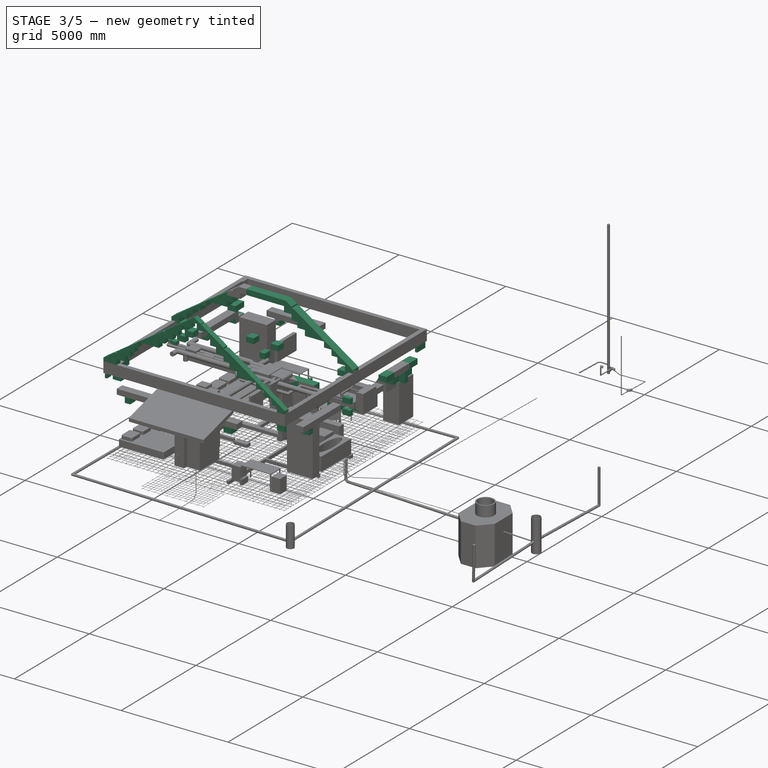
[diagram: stage 3 of 5 — iso view after this stage's code; geometry added in this stage tinted green]
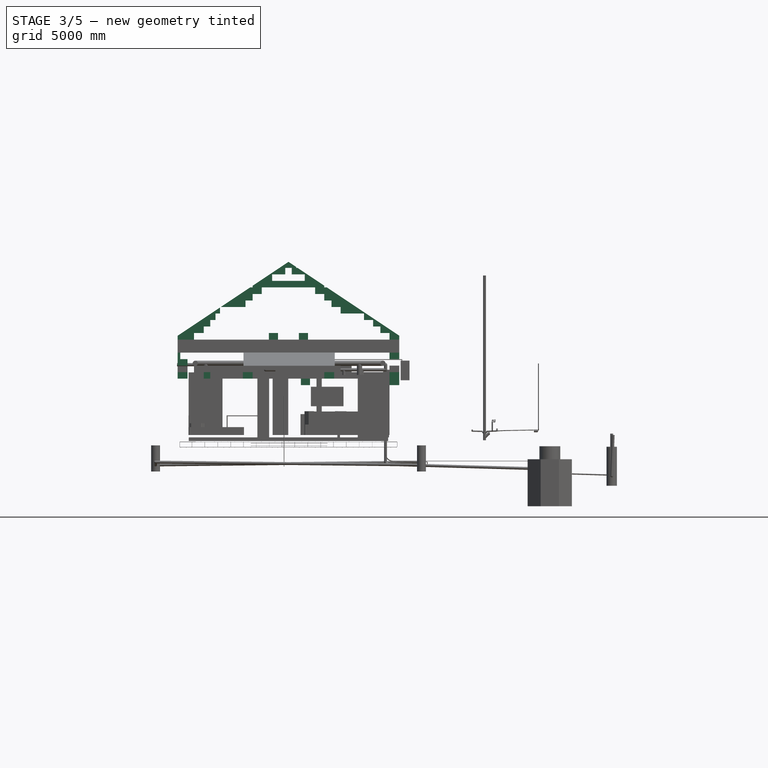
[diagram: stage 3 of 5 — front view after this stage's code; geometry added in this stage tinted green]
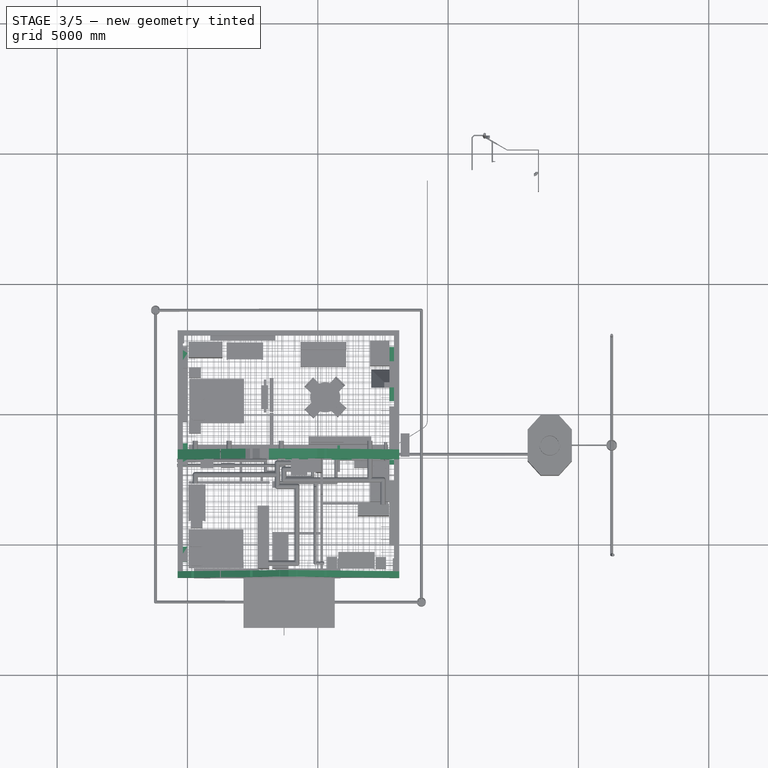
[diagram: stage 3 of 5 — top view after this stage's code; geometry added in this stage tinted green]
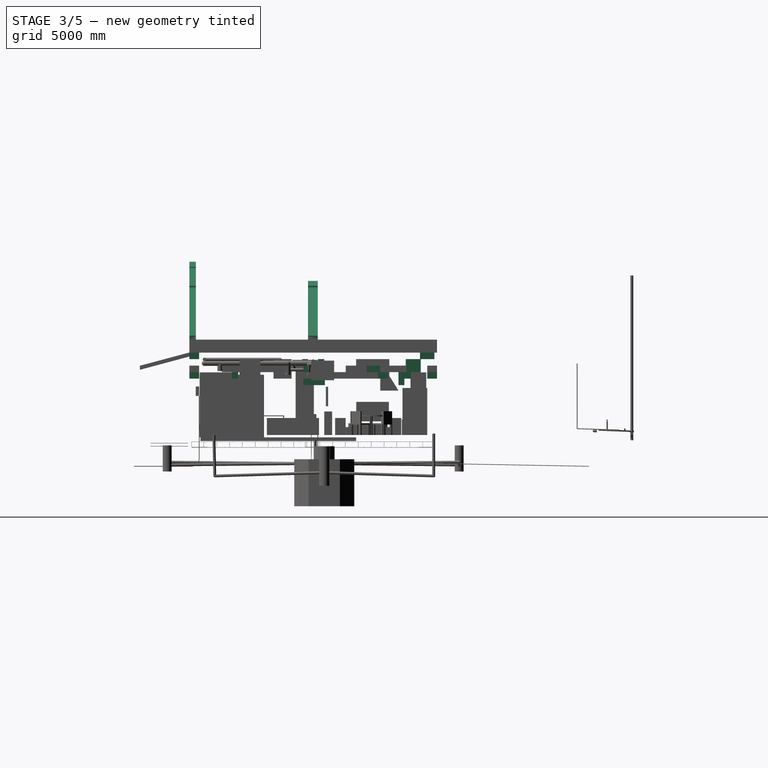
[diagram: stage 3 of 5 — right view after this stage's code; geometry added in this stage tinted green]
FEATURE [Part::Box] Box1850  label="Блок 6mх250х250_001"
  AttacherType = Attacher::AttachEngine3D
  Height = 500
  Length = 6000
  Placement = pos=(8402.35,3175,4226.03) rot=(0,1,0;3.72959rad)
  Width = 375
FEATURE [Part::Box] Box2007  label="Блок 6mх250х250_003"
  AttacherType = Attacher::AttachEngine3D
  Height = 500
  Length = 6000
  Placement = pos=(8402.35,-1375,4226.03) rot=(0,1,0;3.72959rad)
  Width = 250
FEATURE [Part::Box] Box2008  label="Блок 6mх250х250_004"
  AttacherType = Attacher::AttachEngine3D
  Height = 500
  Length = 6000
  Placement = pos=(3882.91,-1375,7249.52) rot=(0,1,0;2.55359rad)
  Width = 250
FEATURE [Part::Feature] Box2010  label="БП 625х250х250_329"
  Placement = pos=(1250,-1375,4660) rot=(0,0,1;0rad)
  shape: bbox 625 x 250 x 250 mm, 6 faces (baked)
FEATURE [Part::Feature] Box2011  label="БП 625х250х250_330"
  Placement = pos=(625,-1375,4660) rot=(0,0,1;0rad)
  shape: bbox 625 x 250 x 250 mm, 6 faces (baked)
FEATURE [Part::Feature] Box2012  label="БП 625х250х250_331"
  Placement = pos=(1600,-1375,4910) rot=(0,0,1;0rad)
  shape: bbox 625 x 250 x 250 mm, 6 faces (baked)
FEATURE [Part::Feature] Box2013  label="БП 625х250х250_332"
  Placement = pos=(975,-1375,4910) rot=(0,0,1;0rad)
  shape: bbox 625 x 250 x 250 mm, 6 faces (baked)
FEATURE [Part::Feature] Box2016  label="БП 625х250х250_335"
  Placement = pos=(2225,-1375,5410) rot=(0,0,1;0rad)
  shape: bbox 625 x 250 x 250 mm, 6 faces (baked)
FEATURE [Part::Feature] Box2017  label="БП 625х250х250_336"
  Placement = pos=(1600,-1375,5410) rot=(0,0,1;0rad)
  shape: bbox 625 x 250 x 250 mm, 6 faces (baked)
FEATURE [Part::Feature] Box2018  label="БП 625х250х250_337"
  Placement = pos=(3250,-1375,5910) rot=(0,0,1;0rad)
  shape: bbox 625 x 250 x 250 mm, 6 faces (baked)
FEATURE [Part::Feature] Box2019  label="БП 625х250х250_338"
  Placement = pos=(3875,-1375,5910) rot=(0,0,1;0rad)
  shape: bbox 625 x 250 x 250 mm, 6 faces (baked)
FEATURE [Part::Feature] Box2020  label="БП 625х250х250_339"
  Placement = pos=(2500,-1375,5660) rot=(0,0,1;0rad)
  shape: bbox 625 x 250 x 250 mm, 6 faces (baked)
FEATURE [Part::Feature] Box2021  label="БП 625х250х250_340"
  Placement = pos=(4625,-1375,5660) rot=(0,0,1;0rad)
  shape: bbox 625 x 250 x 250 mm, 6 faces (baked)
FEATURE [Part::Feature] Box2022  label="БП 625х250х250_341"
  Placement = pos=(4500,-1375,5910) rot=(0,0,1;0rad)
  shape: bbox 625 x 250 x 250 mm, 6 faces (baked)
FEATURE [Part::Feature] Box2023  label="БП 625х250х250_342"
  Placement = pos=(4900,-1375,5410) rot=(0,0,1;0rad)
  shape: bbox 625 x 250 x 250 mm, 6 faces (baked)
FEATURE [Part::Feature] Box2024  label="БП 625х250х250_343"
  Placement = pos=(5250,-1375,5160) rot=(0,0,1;0rad)
  shape: bbox 625 x 250 x 250 mm, 6 faces (baked)
FEATURE [Part::Feature] Box2025  label="БП 625х250х250_344"
  Placement = pos=(5525,-1375,4910) rot=(0,0,1;0rad)
  shape: bbox 625 x 250 x 250 mm, 6 faces (baked)
FEATURE [Part::Feature] Box2026  label="БП 625х250х250_345"
  Placement = pos=(5875,-1375,4660) rot=(0,0,1;0rad)
  shape: bbox 625 x 250 x 250 mm, 6 faces (baked)
FEATURE [Part::Feature] Box2027  label="БП 625х250х250_346"
  Placement = pos=(6775,-1375,4410) rot=(0,0,1;0rad)
  shape: bbox 625 x 250 x 250 mm, 6 faces (baked)
FEATURE [Part::Feature] Box2028  label="БП 625х250х250_347"
  Placement = pos=(6500,-1375,4660) rot=(0,0,1;0rad)
  shape: bbox 625 x 250 x 250 mm, 6 faces (baked)
FEATURE [Part::Feature] Box2029  label="БП 625х250х250_348"
  Placement = pos=(6150,-1375,4910) rot=(0,0,1;0rad)
  shape: bbox 625 x 250 x 250 mm, 6 faces (baked)
FEATURE [Part::Feature] Box2030  label="БП 625х250х250_349"
  Placement = pos=(5875,-1375,5160) rot=(0,0,1;0rad)
  shape: bbox 625 x 250 x 250 mm, 6 faces (baked)
FEATURE [Part::Feature] Box2031  label="БП 625х250х250_350"
  Placement = pos=(5525,-1375,5410) rot=(0,0,1;0rad)
  shape: bbox 625 x 250 x 250 mm, 6 faces (baked)
FEATURE [Part::Feature] Box2032  label="БП 625х250х250_351"
  Placement = pos=(2625,-1375,5910) rot=(0,0,1;0rad)
  shape: bbox 625 x 250 x 250 mm, 6 faces (baked)
FEATURE [Part::Feature] Box2033  label="БП 625х250х250_352"
  Placement = pos=(3550,-1375,6410) rot=(0,0,1;0rad)
  shape: bbox 625 x 250 x 250 mm, 6 faces (baked)
FEATURE [Part::Feature] Box2034  label="БП 625х250х250_353"
  Placement = pos=(3125,-1375,6160) rot=(0,0,1;0rad)
  shape: bbox 625 x 250 x 250 mm, 6 faces (baked)
FEATURE [Part::Feature] Box2035  label="БП 625х250х250_354"
  Placement = pos=(4000,-1375,6160) rot=(0,0,1;0rad)
  shape: bbox 625 x 250 x 250 mm, 6 faces (baked)
FEATURE [Part::Feature] Box2036  label="БП 250х250х250_045"
  Placement = pos=(3125,-1375,5160) rot=(0,0,1;0rad)
  shape: bbox 350 x 250 x 250 mm, 6 faces (baked)
FEATURE [Part::Feature] Box2037  label="БП 625х250х250_355"
  Placement = pos=(1250,-1375,5160) rot=(0,0,1;0rad)
  shape: bbox 625 x 250 x 250 mm, 6 faces (baked)
FEATURE [Part::Feature] Box2038  label="БП 625х250х250_356"
  Placement = pos=(1875,-1375,5160) rot=(0,0,1;0rad)
  shape: bbox 625 x 250 x 250 mm, 6 faces (baked)
FEATURE [Part::Feature] Box2039  label="БП 625х250х250_357"
  Placement = pos=(2500,-1375,5160) rot=(0,0,1;0rad)
  shape: bbox 625 x 250 x 250 mm, 6 faces (baked)
FEATURE [Part::Box] Box2040  label="БП 375х250х250_032"
  AttacherType = Attacher::AttachEngine3D
  Height = 250
  Length = 375
  Placement = pos=(7750,-1375,3660) rot=(0,0,1;0rad)
  Width = 250
FEATURE [Part::Feature] Box2602  label="Блок 625х375х250_977"
  Placement = pos=(-375,-1375,1910) rot=(0,0,1;0rad)
  shape: bbox 625 x 375 x 250 mm, 6 faces (baked)
FEATURE [Part::Feature] Box2603  label="Блок 625х375х250_978"
  Placement = pos=(7500,-1375,2160) rot=(0,0,1;0rad)
  shape: bbox 625 x 375 x 250 mm, 6 faces (baked)
FEATURE [Part::Feature] Box2604  label="Блок 625х375х250_979"
  Placement = pos=(-375,4425,2160) rot=(0,0,-1;1.5708rad)
  shape: bbox 375 x 625 x 250 mm, 6 faces (baked)
FEATURE [Part::Feature] Box2605  label="Блок 625х375х250_980"
  Placement = pos=(7500,7750,2160) rot=(0,0,1;0rad)
  shape: bbox 625 x 375 x 250 mm, 6 faces (baked)
FEATURE [Part::Feature] Box2606  label="Блок 625х375х250_981"
  Placement = pos=(-375,7750,1910) rot=(0,0,-1;1.5708rad)
  shape: bbox 375 x 625 x 250 mm, 6 faces (baked)
FEATURE [Part::Feature] Box2607  label="Блок 625х375х250_982"
  Placement = pos=(250,-1375,1910) rot=(0,0,1;0rad)
  shape: bbox 625 x 375 x 250 mm, 6 faces (baked)
FEATURE [Part::Feature] Box2608  label="Блок 625х375х250_983"
  Placement = pos=(-375,450,2160) rot=(0,0,-1;1.5708rad)
  shape: bbox 375 x 625 x 250 mm, 6 faces (baked)
FEATURE [Part::Feature] Box2609  label="Блок 625х375х250_984"
  Placement = pos=(2500,-1375,2160) rot=(0,0,1;0rad)
  shape: bbox 625 x 375 x 250 mm, 6 faces (baked)
FEATURE [Part::Feature] Box2610  label="Блок 625х375х250_985"
  Placement = pos=(7750,2375,1910) rot=(0,0,-1;1.5708rad)
  shape: bbox 375 x 625 x 250 mm, 6 faces (baked)
FEATURE [Part::Box] Box2611  label="Блок 250х375х250_182"
  AttacherType = Attacher::AttachEngine3D
  Height = 250
  Length = 250
  Placement = pos=(625,-1375,2160) rot=(0,0,-1;0rad)
  Width = 375
FEATURE [Part::Feature] Box2612  label="Блок 625х375х250_986"
  Placement = pos=(3125,-1375,2160) rot=(0,0,1;0rad)
  shape: bbox 625 x 375 x 250 mm, 6 faces (baked)
FEATURE [Part::Feature] Box2613  label="Блок 625х375х250_987"
  Placement = pos=(7750,5625,1910) rot=(0,0,-1;1.5708rad)
  shape: bbox 375 x 625 x 250 mm, 6 faces (baked)
FEATURE [Part::Feature] Box2615  label="Блок 625х375х250_989"
  Placement = pos=(6500,-1375,1910) rot=(0,0,1;0rad)
  shape: bbox 625 x 375 x 250 mm, 6 faces (baked)
FEATURE [Part::Feature] Box2616  label="Блок 625х375х250_990"
  Placement = pos=(-375,4000,1910) rot=(0,0,-1;1.5708rad)
  shape: bbox 375 x 625 x 250 mm, 6 faces (baked)
FEATURE [Part::Box] Box2617  label="Блок 350х375х250_175"
  AttacherType = Attacher::AttachEngine3D
  Height = 250
  Length = 350
  Placement = pos=(4350,3175,1910) rot=(0,0,-1;0rad)
  Width = 375
FEATURE [Part::Feature] Box2618  label="Блок 625х375х250_991"
  Placement = pos=(-3.638e-12,3175,1910) rot=(0,0,1;0rad)
  shape: bbox 625 x 375 x 250 mm, 6 faces (baked)
FEATURE [Part::Feature] Box2619  label="Блок 625х375х250_992"
  Placement = pos=(875,7750,1910) rot=(0,0,1;0rad)
  shape: bbox 625 x 375 x 250 mm, 6 faces (baked)
FEATURE [Part::Feature] Box2620  label="Блок 625х375х250_993"
  Placement = pos=(7750,2600,2160) rot=(0,0,-1;1.5708rad)
  shape: bbox 375 x 625 x 250 mm, 6 faces (baked)
FEATURE [Part::Feature] Box2621  label="Блок 625х375х250_994"
  Placement = pos=(-375,7750,1910) rot=(0,0,1;0rad)
  shape: bbox 625 x 375 x 250 mm, 6 faces (baked)
FEATURE [Part::Feature] Box2622  label="Блок 625х375х250_995"
  Placement = pos=(-3.865e-12,7750,2160) rot=(0,0,1;0rad)
  shape: bbox 625 x 375 x 250 mm, 6 faces (baked)
FEATURE [Part::Feature] Box2624  label="Блок 625х375х250_997"
  Placement = pos=(-375,5250,1910) rot=(0,0,-1;1.5708rad)
  shape: bbox 375 x 625 x 250 mm, 6 faces (baked)
FEATURE [Part::Feature] Box2625  label="Блок 625х375х250_998"
  Placement = pos=(-375,8125,2160) rot=(0,0,-1;1.5708rad)
  shape: bbox 375 x 625 x 250 mm, 6 faces (baked)
FEATURE [Part::Feature] Box2626  label="Блок 625х375х250_999"
  Placement = pos=(7750,-125,1910) rot=(0,0,-1;1.5708rad)
  shape: bbox 375 x 625 x 250 mm, 6 faces (baked)
FEATURE [Part::Feature] Box2627  label="Блок 625х375х250_1000"
  Placement = pos=(3750,7750,2160) rot=(0,0,1;0rad)
  shape: bbox 625 x 375 x 250 mm, 6 faces (baked)
FEATURE [Part::Feature] Box2628  label="Блок 625х375х250_1001"
  Placement = pos=(-375,875,1910) rot=(0,0,-1;1.5708rad)
  shape: bbox 375 x 625 x 250 mm, 6 faces (baked)
FEATURE [Part::Feature] Box2629  label="Блок 625х375х250_1002"
  Placement = pos=(5000,7750,2160) rot=(0,0,1;0rad)
  shape: bbox 625 x 375 x 250 mm, 6 faces (baked)
FEATURE [Part::Box] Box2631  label="Блок 250х375х250_183"
  AttacherType = Attacher::AttachEngine3D
  Height = 250
  Length = 250
  Placement = pos=(-375,3800,2160) rot=(0,0,-1;1.5708rad)
  Width = 375
FEATURE [Part::Feature] Box2632  label="Блок 625х375х250_1004"
  Placement = pos=(7125,7750,1910) rot=(0,0,1;0rad)
  shape: bbox 625 x 375 x 250 mm, 6 faces (baked)
FEATURE [Part::Feature] Box2633  label="Блок 375х375х250_183"
  Placement = pos=(7750,5000,1910) rot=(0,0,-1;1.5708rad)
  shape: bbox 375 x 375 x 250 mm, 6 faces (baked)
FEATURE [Part::Feature] Box2634  label="Блок 625х375х250_1005"
  Placement = pos=(-375,7125,1910) rot=(0,0,-1;1.5708rad)
  shape: bbox 375 x 625 x 250 mm, 6 faces (baked)
FEATURE [Part::Feature] Box2635  label="Блок 625х375х250_1006"
  Placement = pos=(3725,3175,1910) rot=(0,0,1;0rad)
  shape: bbox 625 x 375 x 250 mm, 6 faces (baked)
FEATURE [Part::Feature] Box2636  label="Блок 625х375х250_1007"
  Placement = pos=(3375,-1375,1910) rot=(0,0,1;0rad)
  shape: bbox 625 x 375 x 250 mm, 6 faces (baked)
FEATURE [Part::Feature] Box2637  label="Блок 625х375х250_1008"
  Placement = pos=(6250,7750,2160) rot=(0,0,1;0rad)
  shape: bbox 625 x 375 x 250 mm, 6 faces (baked)
FEATURE [Part::Feature] Box2638  label="Блок 625х375х250_1009"
  Placement = pos=(5250,-1375,1910) rot=(0,0,1;0rad)
  shape: bbox 625 x 375 x 250 mm, 6 faces (baked)
FEATURE [Part::Feature] Box2639  label="Блок 625х375х250_1010"
  Placement = pos=(5875,-1375,1910) rot=(0,0,1;0rad)
  shape: bbox 625 x 375 x 250 mm, 6 faces (baked)
FEATURE [Part::Feature] Box2640  label="Блок 625х375х250_1011"
  Placement = pos=(625,7750,2160) rot=(0,0,1;0rad)
  shape: bbox 625 x 375 x 250 mm, 6 faces (baked)
FEATURE [Part::Feature] Box2641  label="Блок 625х375х250_1012"
  Placement = pos=(4000,7750,1910) rot=(0,0,1;0rad)
  shape: bbox 625 x 375 x 250 mm, 6 faces (baked)
FEATURE [Part::Feature] Box2642  label="Блок 625х375х250_1013"
  Placement = pos=(-375,2325,2160) rot=(0,0,-1;1.5708rad)
  shape: bbox 375 x 625 x 250 mm, 6 faces (baked)
FEATURE [Part::Feature] Box2643  label="Блок 625х375х250_1014"
  Placement = pos=(5625,-1375,2160) rot=(0,0,1;0rad)
  shape: bbox 625 x 375 x 250 mm, 6 faces (baked)
FEATURE [Part::Feature] Box2644  label="Блок 625х375х250_1015"
  Placement = pos=(2125,-1375,1910) rot=(0,0,1;0rad)
  shape: bbox 625 x 375 x 250 mm, 6 faces (baked)
FEATURE [Part::Feature] Box2645  label="Блок 625х375х250_1016"
  Placement = pos=(5500,3175,1910) rot=(0,0,1;0rad)
  shape: bbox 625 x 375 x 250 mm, 6 faces (baked)
FEATURE [Part::Feature] Box2646  label="Блок 625х375х250_1017"
  Placement = pos=(7750,250,2160) rot=(0,0,-1;1.5708rad)
  shape: bbox 375 x 625 x 250 mm, 6 faces (baked)
FEATURE [Part::Feature] Box2647  label="Блок 625х375х250_1018"
  Placement = pos=(5625,7750,2160) rot=(0,0,1;0rad)
  shape: bbox 625 x 375 x 250 mm, 6 faces (baked)
FEATURE [Part::Feature] Box2648  label="Блок 625х375х250_1019"
  Placement = pos=(7750,7750,2160) rot=(0,0,-1;1.5708rad)
  shape: bbox 375 x 625 x 250 mm, 6 faces (baked)
FEATURE [Part::Feature] Box2649  label="Блок 625х375х250_1020"
  Placement = pos=(6250,-1375,2160) rot=(0,0,1;0rad)
  shape: bbox 625 x 375 x 250 mm, 6 faces (baked)
FEATURE [Part::Feature] Box2650  label="Блок 625х375х250_1021"
  Placement = pos=(3125,7750,2160) rot=(0,0,1;0rad)
  shape: bbox 625 x 375 x 250 mm, 6 faces (baked)
FEATURE [Part::Feature] Box2652  label="Блок 625х375х250_1023"
  Placement = pos=(-375,3175,2160) rot=(0,0,1;0rad)
  shape: bbox 625 x 375 x 250 mm, 6 faces (baked)
FEATURE [Part::Feature] Box2653  label="Блок 625х375х250_1024"
  Placement = pos=(7750,-750,1910) rot=(0,0,-1;1.5708rad)
  shape: bbox 375 x 625 x 250 mm, 6 faces (baked)
FEATURE [Part::Feature] Box2654  label="Блок 625х375х250_1025"
  Placement = pos=(-375,5050,2160) rot=(0,0,-1;1.5708rad)
  shape: bbox 375 x 625 x 250 mm, 6 faces (baked)
FEATURE [Part::Feature] Box2655  label="Блок 625х375х250_1026"
  Placement = pos=(-375,250,1910) rot=(0,0,-1;1.5708rad)
  shape: bbox 375 x 625 x 250 mm, 6 faces (baked)
FEATURE [Part::Feature] Box2657  label="Блок 625х375х250_1028"
  Placement = pos=(4375,7750,2160) rot=(0,0,1;0rad)
  shape: bbox 625 x 375 x 250 mm, 6 faces (baked)
FEATURE [Part::Feature] Box2658  label="Блок 625х375х250_1029"
  Placement = pos=(6875,7750,2160) rot=(0,0,1;0rad)
  shape: bbox 625 x 375 x 250 mm, 6 faces (baked)
FEATURE [Part::Feature] Box2659  label="Блок 625х375х250_1030"
  Placement = pos=(4625,7750,1910) rot=(0,0,1;0rad)
  shape: bbox 625 x 375 x 250 mm, 6 faces (baked)
FEATURE [Part::Feature] Box2660  label="Блок 625х375х250_1031"
  Placement = pos=(6500,7750,1910) rot=(0,0,1;0rad)
  shape: bbox 625 x 375 x 250 mm, 6 faces (baked)
FEATURE [Part::Feature] Box2661  label="Блок 625х375х250_1032"
  Placement = pos=(5875,7750,1910) rot=(0,0,1;0rad)
  shape: bbox 625 x 375 x 250 mm, 6 faces (baked)
FEATURE [Part::Feature] Box2662  label="Блок 625х375х250_1033"
  Placement = pos=(-375,1700,2160) rot=(0,0,-1;1.5708rad)
  shape: bbox 375 x 625 x 250 mm, 6 faces (baked)
FEATURE [Part::Feature] Box2663  label="Блок 625х375х250_1034"
  Placement = pos=(-375,1075,2160) rot=(0,0,-1;1.5708rad)
  shape: bbox 375 x 625 x 250 mm, 6 faces (baked)
FEATURE [Part::Feature] Box2664  label="Блок 625х375х250_1035"
  Placement = pos=(7750,5850,2160) rot=(0,0,-1;1.5708rad)
  shape: bbox 375 x 625 x 250 mm, 6 faces (baked)
FEATURE [Part::Feature] Box2665  label="Блок 625х375х250_1036"
  Placement = pos=(3375,7750,1910) rot=(0,0,1;0rad)
  shape: bbox 625 x 375 x 250 mm, 6 faces (baked)
FEATURE [Part::Feature] Box2666  label="Блок 625х375х250_1037"
  Placement = pos=(-375,4625,1910) rot=(0,0,-1;1.5708rad)
  shape: bbox 375 x 625 x 250 mm, 6 faces (baked)
FEATURE [Part::Feature] Box2667  label="Блок 625х375х250_1038"
  Placement = pos=(2750,-1375,1910) rot=(0,0,1;0rad)
  shape: bbox 625 x 375 x 250 mm, 6 faces (baked)
FEATURE [Part::Feature] Box2668  label="Блок 625х375х250_1039"
  Placement = pos=(-375,2750,1910) rot=(0,0,-1;1.5708rad)
  shape: bbox 375 x 625 x 250 mm, 6 faces (baked)
FEATURE [Part::Feature] Box2669  label="Блок 625х375х250_1040"
  Placement = pos=(7500,3175,1910) rot=(0,0,1;0rad)
  shape: bbox 625 x 375 x 250 mm, 6 faces (baked)
FEATURE [Part::Feature] Box2670  label="Блок 625х375х250_1041"
  Placement = pos=(7750,7500,1910) rot=(0,0,-1;1.5708rad)
  shape: bbox 375 x 625 x 250 mm, 6 faces (baked)
FEATURE [Part::Feature] Box2671  label="Блок 625х375х250_1042"
  Placement = pos=(5250,7750,1910) rot=(0,0,1;0rad)
  shape: bbox 625 x 375 x 250 mm, 6 faces (baked)
FEATURE [Part::Feature] Box2672  label="Блок 625х375х250_1043"
  Placement = pos=(3100,3175,1910) rot=(0,0,1;0rad)
  shape: bbox 625 x 375 x 250 mm, 6 faces (baked)
FEATURE [Part::Feature] Box2673  label="Блок 625х375х250_1044"
  Placement = pos=(7750,8125,1910) rot=(0,0,-1;1.5708rad)
  shape: bbox 375 x 625 x 250 mm, 6 faces (baked)
FEATURE [Part::Feature] Box2674  label="Блок 625х375х250_1045"
  Placement = pos=(7750,3225,2160) rot=(0,0,-1;1.5708rad)
  shape: bbox 375 x 625 x 250 mm, 6 faces (baked)
FEATURE [Part::Feature] Box2679  label="Блок 625х375х250_1047"
  Placement = pos=(625,3175,1910) rot=(0,0,1;0rad)
  shape: bbox 625 x 375 x 250 mm, 6 faces (baked)
FEATURE [Part::Box] Box2680  label="Блок 175х375х250_166"
  AttacherType = Attacher::AttachEngine3D
  Height = 250
  Length = 175
  Placement = pos=(7750,3175,1910) rot=(0,0,-1;1.5708rad)
  Width = 375
FEATURE [Part::Box] Box2681  label="Блок 575х375х250_180"
  AttacherType = Attacher::AttachEngine3D
  Height = 250
  Length = 575
  Placement = pos=(6925,3175,1910) rot=(0,0,-1;0rad)
  Width = 375
FEATURE [Part::Feature] Box2682  label="Блок 625х375х250_1048"
  Placement = pos=(7750,-375,2160) rot=(0,0,-1;1.5708rad)
  shape: bbox 375 x 625 x 250 mm, 6 faces (baked)
FEATURE [Part::Box] Box2683  label="Блок 575х375х250_181"
  AttacherType = Attacher::AttachEngine3D
  Height = 250
  Length = 575
  Placement = pos=(-375,7500,2160) rot=(0,0,-1;1.5708rad)
  Width = 375
FEATURE [Part::Feature] Box2684  label="Блок 625х375х250_1049"
  Placement = pos=(7750,500,1910) rot=(0,0,-1;1.5708rad)
  shape: bbox 375 x 625 x 250 mm, 6 faces (baked)
FEATURE [Part::Feature] Box2685  label="Блок 625х375х250_1050"
  Placement = pos=(-375,-750,2160) rot=(0,0,-1;1.5708rad)
  shape: bbox 375 x 625 x 250 mm, 6 faces (baked)
FEATURE [Part::Box] Box2686  label="Блок 275х375х250_167"
  AttacherType = Attacher::AttachEngine3D
  Height = 250
  Length = 275
  Placement = pos=(7750,3825,1910) rot=(0,0,-1;1.5708rad)
  Width = 375
FEATURE [Part::Box] Box2687  label="Блок 200х375х250_179"
  AttacherType = Attacher::AttachEngine3D
  Height = 250
  Length = 200
  Placement = pos=(-2.728e-12,5050,2160) rot=(0,0,1;1.5708rad)
  Width = 375
FEATURE [Part::Box] Box2688  label="Блок 250х375х250_184"
  AttacherType = Attacher::AttachEngine3D
  Height = 250
  Length = 250
  Placement = pos=(8125,250,2160) rot=(0,0,1;1.5708rad)
  Width = 375
FEATURE [Part::Box] Box2689  label="Блок 375х375х250_184"
  AttacherType = Attacher::AttachEngine3D
  Height = 250
  Length = 375
  Placement = pos=(2750,7750,2160) rot=(0,0,-1;0rad)
  Width = 375
FEATURE [Part::Box] Box2690  label="Блок 375х375х250_185"
  AttacherType = Attacher::AttachEngine3D
  Height = 250
  Length = 375
  Placement = pos=(2125,-1375,2160) rot=(0,0,-1;0rad)
  Width = 375
FEATURE [Part::Box] Box2691  label="Блок 250х375х250_185"
  AttacherType = Attacher::AttachEngine3D
  Height = 250
  Length = 250
  Placement = pos=(1250,7750,2160) rot=(0,0,-1;0rad)
  Width = 375
FEATURE [Part::Box] Box2692  label="Блок 375х375х250_186"
  AttacherType = Attacher::AttachEngine3D
  Height = 250
  Length = 375
  Placement = pos=(5250,-1375,2160) rot=(0,0,-1;0rad)
  Width = 375
FEATURE [Part::Box] Box2693  label="Блок 400х375х250_189"
  AttacherType = Attacher::AttachEngine3D
  Height = 250
  Length = 400
  Placement = pos=(8125,5850,2160) rot=(0,0,1;1.5708rad)
  Width = 375
FEATURE [Part::Box] Box2694  label="Блок 475х375х250_187"
  AttacherType = Attacher::AttachEngine3D
  Height = 250
  Length = 475
  Placement = pos=(7750,7125,2160) rot=(0,0,-1;1.5708rad)
  Width = 375
FEATURE [Part::Box] Box2695  label="Блок 225х375х250_188"
  AttacherType = Attacher::AttachEngine3D
  Height = 250
  Length = 225
  Placement = pos=(7750,6875,1910) rot=(0,0,-1;1.5708rad)
  Width = 375
FEATURE [App::DocumentObjectGroup] Group042  label="ряд_9-10"
  Group = -> [Box2598,Box2620,Box2621,Box2616,Box2590,Box2617,Box2618,Box2632,Box2633,Box2622,Box2619,Box2626,Box2634,Box2635,Box2636,Box2629,Box2627,Box2628,Box2581,Box2640,Box2641,Box2642,Box2643,Box2644,Box2593,Box2585,Box2596,Box2652,Box2653,Box2654,Box2655,Box2645,Box2646,Box2647,Box2648,Box2649,Box2650,Box2631,Box2597,Box2624,Box2600,Box2583,Box2602,Box2610,Box2580,Box2594,Box2608,Box2604,Box2592,Box2587,+53 more]
FEATURE [Part::Feature] Box2696  label="Блок 625х375х250_1051"
  Placement = pos=(7750,5425,2410) rot=(0,0,-1;1.5708rad)
  shape: bbox 375 x 625 x 250 mm, 6 faces (baked)
FEATURE [Part::Feature] Box2697  label="Блок 625х375х250_1052"
  Placement = pos=(7125,-1375,2410) rot=(0,0,1;0rad)
  shape: bbox 625 x 375 x 250 mm, 6 faces (baked)
FEATURE [Part::Feature] Box2698  label="Блок 625х375х250_1053"
  Placement = pos=(6500,-1375,2410) rot=(0,0,1;0rad)
  shape: bbox 625 x 375 x 250 mm, 6 faces (baked)
FEATURE [Part::Feature] Box2699  label="Блок 625х375х250_1054"
  Placement = pos=(7750,-125,2410) rot=(0,0,-1;1.5708rad)
  shape: bbox 375 x 625 x 250 mm, 6 faces (baked)
FEATURE [Part::Feature] Box2703  label="Блок 625х375х250_1058"
  Placement = pos=(7750,-750,2410) rot=(0,0,-1;1.5708rad)
  shape: bbox 375 x 625 x 250 mm, 6 faces (baked)
FEATURE [Part::Feature] Box2706  label="Блок 625х375х250_1061"
  Placement = pos=(-375,4625,2410) rot=(0,0,-1;1.5708rad)
  shape: bbox 375 x 625 x 250 mm, 6 faces (baked)
FEATURE [Part::Feature] Box2708  label="Блок 625х375х250_1063"
  Placement = pos=(5875,-1375,2410) rot=(0,0,1;0rad)
  shape: bbox 625 x 375 x 250 mm, 6 faces (baked)
FEATURE [Part::Feature] Box2709  label="Блок 625х375х250_1064"
  Placement = pos=(-375,250,2410) rot=(0,0,-1;1.5708rad)
  shape: bbox 375 x 625 x 250 mm, 6 faces (baked)
FEATURE [Part::Feature] Box2712  label="Блок 625х375х250_1067"
  Placement = pos=(-375,7750,2410) rot=(0,0,1;0rad)
  shape: bbox 625 x 375 x 250 mm, 6 faces (baked)
FEATURE [Part::Feature] Box2713  label="Блок 625х375х250_1068"
  Placement = pos=(-375,2750,2410) rot=(0,0,-1;1.5708rad)
  shape: bbox 375 x 625 x 250 mm, 6 faces (baked)
FEATURE [Part::Feature] Box2714  label="Блок 625х375х250_1069"
  Placement = pos=(-375,4000,2410) rot=(0,0,-1;1.5708rad)
  shape: bbox 375 x 625 x 250 mm, 6 faces (baked)
FEATURE [Part::Feature] Box2720  label="Блок 625х375х250_1075"
  Placement = pos=(5250,7750,2410) rot=(0,0,1;0rad)
  shape: bbox 625 x 375 x 250 mm, 6 faces (baked)
FEATURE [Part::Feature] Box2721  label="Блок 625х375х250_1076"
  Placement = pos=(2750,-1375,2410) rot=(0,0,1;0rad)
  shape: bbox 625 x 375 x 250 mm, 6 faces (baked)
FEATURE [Part::Feature] Box2722  label="Блок 625х375х250_1077"
  Placement = pos=(6500,7750,2410) rot=(0,0,1;0rad)
  shape: bbox 625 x 375 x 250 mm, 6 faces (baked)
FEATURE [Part::Feature] Box2723  label="Блок 625х375х250_1078"
  Placement = pos=(7125,7750,2410) rot=(0,0,1;0rad)
  shape: bbox 625 x 375 x 250 mm, 6 faces (baked)
FEATURE [Part::Feature] Box2724  label="Блок 625х375х250_1079"
  Placement = pos=(-375,7750,2410) rot=(0,0,-1;1.5708rad)
  shape: bbox 375 x 625 x 250 mm, 6 faces (baked)
FEATURE [Part::Feature] Box2725  label="Блок 625х375х250_1080"
  Placement = pos=(-375,2125,2410) rot=(0,0,-1;1.5708rad)
  shape: bbox 375 x 625 x 250 mm, 6 faces (baked)
FEATURE [Part::Feature] Box2726  label="Блок 625х375х250_1081"
  Placement = pos=(5875,7750,2410) rot=(0,0,1;0rad)
  shape: bbox 625 x 375 x 250 mm, 6 faces (baked)
FEATURE [Part::Feature] Box2727  label="Блок 625х375х250_1082"
  Placement = pos=(875,7750,2410) rot=(0,0,1;0rad)
  shape: bbox 625 x 375 x 250 mm, 6 faces (baked)
FEATURE [Part::Feature] Box2729  label="Блок 625х375х250_1084"
  Placement = pos=(7750,4000,2660) rot=(0,0,-1;1.5708rad)
  shape: bbox 375 x 625 x 250 mm, 6 faces (baked)
FEATURE [Part::Feature] Box2730  label="Блок 625х375х250_1085"
  Placement = pos=(-375,3375,2410) rot=(0,0,-1;1.5708rad)
  shape: bbox 375 x 625 x 250 mm, 6 faces (baked)
FEATURE [Part::Feature] Box2733  label="Блок 625х375х250_1088"
  Placement = pos=(4625,7750,2410) rot=(0,0,1;0rad)
  shape: bbox 625 x 375 x 250 mm, 6 faces (baked)
FEATURE [Part::Feature] Box2734  label="Блок 625х375х250_1089"
  Placement = pos=(7750,8125,2410) rot=(0,0,-1;1.5708rad)
  shape: bbox 375 x 625 x 250 mm, 6 faces (baked)
FEATURE [Part::Feature] Box2735  label="Блок 625х375х250_1090"
  Placement = pos=(4000,7750,2410) rot=(0,0,1;0rad)
  shape: bbox 625 x 375 x 250 mm, 6 faces (baked)
FEATURE [Part::Feature] Box2736  label="Блок 625х375х250_1091"
  Placement = pos=(250,7750,2410) rot=(0,0,1;0rad)
  shape: bbox 625 x 375 x 250 mm, 6 faces (baked)
FEATURE [Part::Feature] Box2740  label="Блок 625х375х250_1094"
  Placement = pos=(625,-1375,2660) rot=(0,0,1;0rad)
  shape: bbox 625 x 375 x 250 mm, 6 faces (baked)
FEATURE [Part::Feature] Box2741  label="Блок 625х375х250_1095"
  Placement = pos=(1875,-1375,2660) rot=(0,0,1;0rad)
  shape: bbox 625 x 375 x 250 mm, 6 faces (baked)
FEATURE [Part::Feature] Box2742  label="Блок 625х375х250_1096"
  Placement = pos=(2500,-1375,2660) rot=(0,0,1;0rad)
  shape: bbox 625 x 375 x 250 mm, 6 faces (baked)
FEATURE [Part::Feature] Box2743  label="Блок 625х375х250_1097"
  Placement = pos=(1250,-1375,2660) rot=(0,0,1;0rad)
  shape: bbox 625 x 375 x 250 mm, 6 faces (baked)
FEATURE [Part::Feature] Box2744  label="Блок 625х375х250_1098"
  Placement = pos=(7750,7125,2660) rot=(0,0,-1;1.5708rad)
  shape: bbox 375 x 625 x 250 mm, 6 faces (baked)
FEATURE [Part::Feature] Box2745  label="Блок 625х375х250_1099"
  Placement = pos=(7750,5875,2660) rot=(0,0,-1;1.5708rad)
  shape: bbox 375 x 625 x 250 mm, 6 faces (baked)
FEATURE [Part::Feature] Box2746  label="Блок 625х375х250_1100"
  Placement = pos=(3125,-1375,2660) rot=(0,0,1;0rad)
  shape: bbox 625 x 375 x 250 mm, 6 faces (baked)
FEATURE [Part::Feature] Box2747  label="Блок 625х375х250_1101"
  Placement = pos=(3750,-1375,2660) rot=(0,0,1;0rad)
  shape: bbox 625 x 375 x 250 mm, 6 faces (baked)
FEATURE [Part::Feature] Box2748  label="Блок 625х375х250_1102"
  Placement = pos=(4375,-1375,2660) rot=(0,0,1;0rad)
  shape: bbox 625 x 375 x 250 mm, 6 faces (baked)
FEATURE [Part::Feature] Box2749  label="Блок 625х375х250_1103"
  Placement = pos=(5000,-1375,2660) rot=(0,0,1;0rad)
  shape: bbox 625 x 375 x 250 mm, 6 faces (baked)
FEATURE [Part::Feature] Box2750  label="Блок 625х375х250_1104"
  Placement = pos=(5625,-1375,2660) rot=(0,0,1;0rad)
  shape: bbox 625 x 375 x 250 mm, 6 faces (baked)
FEATURE [Part::Feature] Box2751  label="Блок 625х375х250_1105"
  Placement = pos=(6250,-1375,2660) rot=(0,0,1;0rad)
  shape: bbox 625 x 375 x 250 mm, 6 faces (baked)
FEATURE [Part::Feature] Box2752  label="Блок 625х375х250_1106"
  Placement = pos=(6875,-1375,2660) rot=(0,0,1;0rad)
  shape: bbox 625 x 375 x 250 mm, 6 faces (baked)
FEATURE [Part::Feature] Box2753  label="Блок 625х375х250_1107"
  Placement = pos=(7500,-1375,2660) rot=(0,0,1;0rad)
  shape: bbox 625 x 375 x 250 mm, 6 faces (baked)
FEATURE [Part::Feature] Box2754  label="Блок 625х375х250_1108"
  Placement = pos=(7750,250,2660) rot=(0,0,-1;1.5708rad)
  shape: bbox 375 x 625 x 250 mm, 6 faces (baked)
FEATURE [Part::Feature] Box2755  label="Блок 625х375х250_1109"
  Placement = pos=(7750,875,2660) rot=(0,0,-1;1.5708rad)
  shape: bbox 375 x 625 x 250 mm, 6 faces (baked)
FEATURE [Part::Feature] Box2756  label="Блок 625х375х250_1110"
  Placement = pos=(7750,2125,2660) rot=(0,0,-1;1.5708rad)
  shape: bbox 375 x 625 x 250 mm, 6 faces (baked)
FEATURE [Part::Feature] Box2757  label="Блок 625х375х250_1111"
  Placement = pos=(7750,2750,2660) rot=(0,0,-1;1.5708rad)
  shape: bbox 375 x 625 x 250 mm, 6 faces (baked)
FEATURE [Part::Feature] Box2758  label="Блок 625х375х250_1112"
  Placement = pos=(-375,1075,2660) rot=(0,0,-1;1.5708rad)
  shape: bbox 375 x 625 x 250 mm, 6 faces (baked)
FEATURE [Part::Feature] Box2759  label="Блок 625х375х250_1113"
  Placement = pos=(-375,1700,2660) rot=(0,0,-1;1.5708rad)
  shape: bbox 375 x 625 x 250 mm, 6 faces (baked)
FEATURE [Part::Feature] Box2760  label="Блок 625х375х250_1114"
  Placement = pos=(-375,2325,2660) rot=(0,0,-1;1.5708rad)
  shape: bbox 375 x 625 x 250 mm, 6 faces (baked)
FEATURE [Part::Feature] Box2761  label="Блок 625х375х250_1115"
  Placement = pos=(-375,2950,2660) rot=(0,0,-1;1.5708rad)
  shape: bbox 375 x 625 x 250 mm, 6 faces (baked)
FEATURE [Part::Feature] Box2762  label="Блок 625х375х250_1116"
  Placement = pos=(-375,4425,2660) rot=(0,0,-1;1.5708rad)
  shape: bbox 375 x 625 x 250 mm, 6 faces (baked)
FEATURE [Part::Feature] Box2763  label="Блок 625х375х250_1117"
  Placement = pos=(-375,5050,2660) rot=(0,0,-1;1.5708rad)
  shape: bbox 375 x 625 x 250 mm, 6 faces (baked)
FEATURE [Part::Feature] Box2764  label="Блок 625х375х250_1118"
  Placement = pos=(-375,5675,2660) rot=(0,0,-1;1.5708rad)
  shape: bbox 375 x 625 x 250 mm, 6 faces (baked)
FEATURE [Part::Feature] Box2765  label="Блок 625х375х250_1119"
  Placement = pos=(-375,6300,2660) rot=(0,0,-1;1.5708rad)
  shape: bbox 375 x 625 x 250 mm, 6 faces (baked)
FEATURE [Part::Feature] Box2766  label="Блок 625х375х250_1120"
  Placement = pos=(-375,6925,2660) rot=(0,0,-1;1.5708rad)
  shape: bbox 375 x 625 x 250 mm, 6 faces (baked)
FEATURE [Part::Feature] Box2767  label="Блок 625х375х250_1121"
  Placement = pos=(-375,8125,2660) rot=(0,0,-1;1.5708rad)
  shape: bbox 375 x 625 x 250 mm, 6 faces (baked)
FEATURE [Part::Feature] Box2768  label="Блок 625х375х250_1122"
  Placement = pos=(-3.865e-12,7750,2660) rot=(0,0,1;0rad)
  shape: bbox 625 x 375 x 250 mm, 6 faces (baked)
FEATURE [Part::Feature] Box2769  label="Блок 625х375х250_1123"
  Placement = pos=(625,7750,2660) rot=(0,0,1;0rad)
  shape: bbox 625 x 375 x 250 mm, 6 faces (baked)
FEATURE [Part::Feature] Box2770  label="Блок 625х375х250_1124"
  Placement = pos=(1250,7750,2660) rot=(0,0,1;0rad)
  shape: bbox 625 x 375 x 250 mm, 6 faces (baked)
FEATURE [Part::Feature] Box2771  label="Блок 625х375х250_1125"
  Placement = pos=(1875,7750,2660) rot=(0,0,1;0rad)
  shape: bbox 625 x 375 x 250 mm, 6 faces (baked)
FEATURE [Part::Feature] Box2772  label="Блок 625х375х250_1126"
  Placement = pos=(2500,7750,2660) rot=(0,0,1;0rad)
  shape: bbox 625 x 375 x 250 mm, 6 faces (baked)
FEATURE [Part::Feature] Box2773  label="Блок 625х375х250_1127"
  Placement = pos=(3125,7750,2660) rot=(0,0,1;0rad)
  shape: bbox 625 x 375 x 250 mm, 6 faces (baked)
FEATURE [Part::Feature] Box2774  label="Блок 625х375х250_1128"
  Placement = pos=(3750,7750,2660) rot=(0,0,1;0rad)
  shape: bbox 625 x 375 x 250 mm, 6 faces (baked)
FEATURE [Part::Feature] Box2775  label="Блок 625х375х250_1129"
  Placement = pos=(4375,7750,2660) rot=(0,0,1;0rad)
  shape: bbox 625 x 375 x 250 mm, 6 faces (baked)
FEATURE [Part::Feature] Box2776  label="Блок 625х375х250_1130"
  Placement = pos=(5000,7750,2660) rot=(0,0,1;0rad)
  shape: bbox 625 x 375 x 250 mm, 6 faces (baked)
FEATURE [Part::Feature] Box2777  label="Блок 625х375х250_1131"
  Placement = pos=(5625,7750,2660) rot=(0,0,1;0rad)
  shape: bbox 625 x 375 x 250 mm, 6 faces (baked)
FEATURE [Part::Feature] Box2778  label="Блок 625х375х250_1132"
  Placement = pos=(6250,7750,2660) rot=(0,0,1;0rad)
  shape: bbox 625 x 375 x 250 mm, 6 faces (baked)
FEATURE [Part::Feature] Box2779  label="Блок 625х375х250_1133"
  Placement = pos=(6875,7750,2660) rot=(0,0,1;0rad)
  shape: bbox 625 x 375 x 250 mm, 6 faces (baked)
FEATURE [Part::Feature] Box2780  label="Блок 625х375х250_1134"
  Placement = pos=(7500,7750,2660) rot=(0,0,1;0rad)
  shape: bbox 625 x 375 x 250 mm, 6 faces (baked)
FEATURE [Part::Feature] Box2781  label="Блок 625х375х250_1135"
  Placement = pos=(7750,7750,2660) rot=(0,0,-1;1.5708rad)
  shape: bbox 375 x 625 x 250 mm, 6 faces (baked)
FEATURE [Part::Feature] Box2782  label="Блок 625х375х250_1136"
  Placement = pos=(7750,6500,2660) rot=(0,0,-1;1.5708rad)
  shape: bbox 375 x 625 x 250 mm, 6 faces (baked)
FEATURE [Part::Feature] Box2783  label="Блок 625х375х250_1137"
  Placement = pos=(7750,5250,2660) rot=(0,0,-1;1.5708rad)
  shape: bbox 375 x 625 x 250 mm, 6 faces (baked)
FEATURE [Part::Feature] Box2784  label="Блок 625х375х250_1138"
  Placement = pos=(7750,1500,2660) rot=(0,0,-1;1.5708rad)
  shape: bbox 375 x 625 x 250 mm, 6 faces (baked)
FEATURE [Part::Feature] Box2785  label="Блок 625х375х250_1139"
  Placement = pos=(-1.14e-13,-1375,2660) rot=(0,0,1;0rad)
  shape: bbox 625 x 375 x 250 mm, 6 faces (baked)
FEATURE [Part::Feature] Box2786  label="Блок 625х375х250_1140"
  Placement = pos=(-375,450,2660) rot=(0,0,-1;1.5708rad)
  shape: bbox 375 x 625 x 250 mm, 6 faces (baked)
FEATURE [Part::Feature] Box2787  label="Блок 625х375х250_1141"
  Placement = pos=(-375,1500,2410) rot=(0,0,-1;1.5708rad)
  shape: bbox 375 x 625 x 250 mm, 6 faces (baked)
FEATURE [Part::Feature] Box2788  label="Блок 625х375х250_1142"
  Placement = pos=(-375,875,2410) rot=(0,0,-1;1.5708rad)
  shape: bbox 375 x 625 x 250 mm, 6 faces (baked)
FEATURE [Part::Feature] Box2789  label="Блок 625х375х250_1143"
  Placement = pos=(-375,-375,2410) rot=(0,0,-1;1.5708rad)
  shape: bbox 375 x 625 x 250 mm, 6 faces (baked)
FEATURE [Part::Feature] Box2790  label="Блок 625х375х250_1144"
  Placement = pos=(-375,-1375,2410) rot=(0,0,1;0rad)
  shape: bbox 625 x 375 x 250 mm, 6 faces (baked)
FEATURE [Part::Feature] Box2795  label="Блок 625х375х250_1149"
  Placement = pos=(7750,3000,2410) rot=(0,0,-1;1.5708rad)
  shape: bbox 375 x 625 x 250 mm, 6 faces (baked)
FEATURE [Part::Box] Box2796  label="Блок 175х375х250_167"
  AttacherType = Attacher::AttachEngine3D
  Height = 250
  Length = 175
  Placement = pos=(7750,3175,2410) rot=(0,0,-1;1.5708rad)
  Width = 375
FEATURE [Part::Feature] Box2799  label="Блок 625х375х250_1151"
  Placement = pos=(-375,-750,2660) rot=(0,0,-1;1.5708rad)
  shape: bbox 375 x 625 x 250 mm, 6 faces (baked)
FEATURE [Part::Feature] Box2800  label="Блок 625х375х250_1152"
  Placement = pos=(7750,3375,2660) rot=(0,0,-1;1.5708rad)
  shape: bbox 375 x 625 x 250 mm, 6 faces (baked)
FEATURE [Part::Feature] Box2801  label="Блок 625х375х250_1153"
  Placement = pos=(-375,3175,2660) rot=(0,0,1;0rad)
  shape: bbox 625 x 375 x 250 mm, 6 faces (baked)
FEATURE [Part::Box] Box2802  label="Блок 250х375х250_186"
  AttacherType = Attacher::AttachEngine3D
  Height = 250
  Length = 250
  Placement = pos=(-375,3800,2660) rot=(0,0,-1;1.5708rad)
  Width = 375
FEATURE [Part::Box] Box2803  label="Блок 575х375х250_182"
  AttacherType = Attacher::AttachEngine3D
  Height = 250
  Length = 575
  Placement = pos=(-375,-175,2660) rot=(0,0,-1;1.5708rad)
  Width = 375
FEATURE [Part::Box] Box2804  label="Блок 575х375х250_183"
  AttacherType = Attacher::AttachEngine3D
  Height = 250
  Length = 575
  Placement = pos=(-375,7500,2660) rot=(0,0,-1;1.5708rad)
  Width = 375
FEATURE [Part::Box] Box2805  label="Блок 225х375х250_189"
  AttacherType = Attacher::AttachEngine3D
  Height = 250
  Length = 225
  Placement = pos=(-375,3175,2660) rot=(0,0,-1;1.5708rad)
  Width = 375
FEATURE [Part::Feature] Box2806  label="Блок 625х375х250_1154"
  Placement = pos=(-3.638e-12,3175,2410) rot=(0,0,1;0rad)
  shape: bbox 625 x 375 x 250 mm, 6 faces (baked)
FEATURE [Part::Feature] Box2807  label="Блок 625х375х250_1155"
  Placement = pos=(625,3175,2410) rot=(0,0,1;0rad)
  shape: bbox 625 x 375 x 250 mm, 6 faces (baked)
FEATURE [Part::Feature] Box2808  label="Блок 625х375х250_1156"
  Placement = pos=(250,3175,2660) rot=(0,0,1;0rad)
  shape: bbox 625 x 375 x 250 mm, 6 faces (baked)
FEATURE [Part::Feature] Box2810  label="Блок 625х375х250_1157"
  Placement = pos=(1875,3175,2410) rot=(0,0,1;0rad)
  shape: bbox 625 x 375 x 250 mm, 6 faces (baked)
FEATURE [Part::Feature] Box2811  label="Блок 625х375х250_1158"
  Placement = pos=(1250,3175,2410) rot=(0,0,1;0rad)
  shape: bbox 625 x 375 x 250 mm, 6 faces (baked)
FEATURE [Part::Feature] Box2812  label="Блок 625х375х250_1159"
  Placement = pos=(2500,3175,2410) rot=(0,0,1;0rad)
  shape: bbox 625 x 375 x 250 mm, 6 faces (baked)
FEATURE [Part::Feature] Box2813  label="Блок 625х375х250_1160"
  Placement = pos=(3125,3175,2410) rot=(0,0,1;0rad)
  shape: bbox 625 x 375 x 250 mm, 6 faces (baked)
FEATURE [Part::Feature] Box2818  label="Блок 625х375х250_1161"
  Placement = pos=(3750,3175,2410) rot=(0,0,1;0rad)
  shape: bbox 625 x 375 x 250 mm, 6 faces (baked)
FEATURE [Part::Feature] Box2819  label="Блок 625х375х250_1162"
  Placement = pos=(4375,3175,2410) rot=(0,0,1;0rad)
  shape: bbox 625 x 375 x 250 mm, 6 faces (baked)
FEATURE [Part::Feature] Box2820  label="Блок 625х375х250_1163"
  Placement = pos=(7500,3175,2410) rot=(0,0,1;0rad)
  shape: bbox 625 x 375 x 250 mm, 6 faces (baked)
FEATURE [Part::Box] Box2822  label="Блок 575х375х250_184"
  AttacherType = Attacher::AttachEngine3D
  Height = 250
  Length = 575
  Placement = pos=(5000,3175,2410) rot=(0,0,-1;0rad)
  Width = 375
FEATURE [Part::Feature] Box  label="Блок 625х375х250_1165"
  Placement = pos=(7750,4175,2410) rot=(0,0,-1;1.5708rad)
  shape: bbox 375 x 625 x 250 mm, 6 faces (baked)
FEATURE [Part::Feature] Box2827  label="Блок 625х375х250_1166"
  Placement = pos=(7750,4800,2410) rot=(0,0,-1;1.5708rad)
  shape: bbox 375 x 625 x 250 mm, 6 faces (baked)
FEATURE [Part::Feature] Box2828  label="Блок 625х375х250_1167"
  Placement = pos=(7750,4625,2660) rot=(0,0,-1;1.5708rad)
  shape: bbox 375 x 625 x 250 mm, 6 faces (baked)
FEATURE [Part::Box] Box2829  label="Блок 525х375х250_168"
  AttacherType = Attacher::AttachEngine3D
  Height = 250
  Length = 525
  Placement = pos=(7750,5950,2410) rot=(0,0,-1;1.5708rad)
  Width = 375
FEATURE [Part::Box] Box2830  label="Блок 550х375х250_169"
  AttacherType = Attacher::AttachEngine3D
  Height = 250
  Length = 550
  Placement = pos=(7750,7500,2410) rot=(0,0,-1;1.5708rad)
  Width = 375
FEATURE [Part::Feature] Box2831  label="Блок 575х375х250_185"
  Placement = pos=(6925,3175,2410) rot=(0,0,-1;0rad)
  shape: bbox 575 x 375 x 250 mm, 6 faces (baked)
FEATURE [Part::Feature] Box2832  label="Блок 625х375х250_1168"
  Placement = pos=(6300,3175,2410) rot=(0,0,1;0rad)
  shape: bbox 625 x 375 x 250 mm, 6 faces (baked)
FEATURE [Part::Feature] Box2833  label="Блок 625х375х250_1169"
  Placement = pos=(3750,3175,2410) rot=(0,0,1;0rad)
  shape: bbox 625 x 375 x 250 mm, 6 faces (baked)
FEATURE [Part::Feature] Box2834  label="БП 625х100х250_375"
  Placement = pos=(5750,4975,2410) rot=(0,0,-1;1.5708rad)
  shape: bbox 100 x 625 x 250 mm, 6 faces (baked)
FEATURE [Part::Box] Box2835  label="БП 550х100х250_229"
  AttacherType = Attacher::AttachEngine3D
  Height = 250
  Length = 550
  Placement = pos=(5750,3725,2410) rot=(0,0,-1;1.5708rad)
  Width = 100
FEATURE [Part::Box] Box2836  label="Блок 450х375х250_176"
  AttacherType = Attacher::AttachEngine3D
  Height = 250
  Length = 450
  Placement = pos=(5850,3175,2410) rot=(0,0,-1;0rad)
  Width = 375
FEATURE [Part::Box] Box2837  label="Блок 175х375х250_177"
  AttacherType = Attacher::AttachEngine3D
  Height = 250
  Length = 175
  Placement = pos=(5575,3175,2410) rot=(0,0,-1;0rad)
  Width = 375
FEATURE [Part::Feature] Box2850  label="БП 625х100х250_376"
  Placement = pos=(8025,-650,2910) rot=(0,0,-1;1.5708rad)
  shape: bbox 100 x 625 x 250 mm, 6 faces (baked)
FEATURE [Part::Feature] Box2851  label="БП 625х100х250_377"
  Placement = pos=(8025,-25,2910) rot=(0,0,-1;1.5708rad)
  shape: bbox 100 x 625 x 250 mm, 6 faces (baked)
FEATURE [Part::Box] Box2852  label="БП 375х100х250_225"
  AttacherType = Attacher::AttachEngine3D
  Height = 250
  Length = 375
  Placement = pos=(7750,-1375,2910) rot=(0,0,-1;0rad)
  Width = 100
FEATURE [Part::Feature] Box2853  label="БП 625х100х250_378"
  Placement = pos=(-375,-375,2910) rot=(0,0,-1;1.5708rad)
  shape: bbox 100 x 625 x 250 mm, 6 faces (baked)
FEATURE [Part::Box] Box2854  label="БП 275х100х250_226"
  AttacherType = Attacher::AttachEngine3D
  Height = 250
  Length = 275
  Placement = pos=(-375,-1000,2910) rot=(0,0,-1;1.5708rad)
  Width = 100
FEATURE [Part::Box] Box2855  label="БП 550х100х250_227"
  AttacherType = Attacher::AttachEngine3D
  Height = 250
  Length = 550
  Placement = pos=(8025,8025,2910) rot=(0,0,-1;1.5708rad)
  Width = 100
FEATURE [Part::Part2DObjectPython] Line427  # Draft 2D object (typed FeaturePython)
  ChamferSize = 0
  Closed = false
  End = (-1195.42,-1.1e-14,3290)
  FilletRadius = 0
  Length = 144.723
  MakeFace = true
  Placement = pos=(-1075,0,3370.28) rot=(1,0,0;1.5708rad)
  Points = (2) [(0,0,0),(-120.417,-80.2777,-3.09922e-15)]
  Start = (-1075,0,3370.28)
  Subdivisions = 0
FEATURE [Part::Part2DObjectPython] Line428  # Draft 2D object (typed FeaturePython)
  ChamferSize = 0
  Closed = false
  End = (-1112.05,-8e-16,3345.58)
  FilletRadius = 0
  Length = 66.7952
  MakeFace = true
  Placement = pos=(-1075,-7e-15,3290) rot=(1,0,0;1.5708rad)
  Points = (2) [(0,0,0),(-37.0512,55.577,6.12235e-15)]
  Start = (-1075,-7e-15,3290)
  Subdivisions = 0
FEATURE [Part::Feature] Box2856  label="Блок 625х375х250_1180"
  Placement = pos=(7750,-375,3160) rot=(0,0,-1;1.5708rad)
  shape: bbox 375 x 625 x 250 mm, 6 faces (baked)
FEATURE [Part::Feature] Box2858  label="Блок 625х375х250_1182"
  Placement = pos=(-375,-750,3160) rot=(0,0,-1;1.5708rad)
  shape: bbox 375 x 625 x 250 mm, 6 faces (baked)
FEATURE [Part::Feature] Box2859  label="Блок 625х375х250_1183"
  Placement = pos=(-375,3175,3160) rot=(0,0,1;0rad)
  shape: bbox 625 x 375 x 250 mm, 6 faces (baked)
FEATURE [Part::Feature] Box2860  label="Блок 625х375х250_1184"
  Placement = pos=(625,3175,3160) rot=(0,0,1;0rad)
  shape: bbox 625 x 375 x 250 mm, 6 faces (baked)
FEATURE [Part::Feature] Box2861  label="Блок 625х375х250_1185"
  Placement = pos=(1250,3175,3160) rot=(0,0,1;0rad)
  shape: bbox 625 x 375 x 250 mm, 6 faces (baked)
FEATURE [Part::Feature] Box2862  label="Блок 625х375х250_1186"
  Placement = pos=(1875,3175,3160) rot=(0,0,1;0rad)
  shape: bbox 625 x 375 x 250 mm, 6 faces (baked)
FEATURE [Part::Feature] Box2863  label="Блок 625х375х250_1187"
  Placement = pos=(2500,3175,3160) rot=(0,0,1;0rad)
  shape: bbox 625 x 375 x 250 mm, 6 faces (baked)
FEATURE [Part::Feature] Box2864  label="Блок 625х375х250_1188"
  Placement = pos=(3125,3175,3160) rot=(0,0,1;0rad)
  shape: bbox 625 x 375 x 250 mm, 6 faces (baked)
FEATURE [Part::Feature] Box2866  label="Блок 625х375х250_1190"
  Placement = pos=(4000,3175,3160) rot=(0,0,1;0rad)
  shape: bbox 625 x 375 x 250 mm, 6 faces (baked)
FEATURE [Part::Feature] Box2867  label="Блок 625х375х250_1191"
  Placement = pos=(4625,3175,3160) rot=(0,0,1;0rad)
  shape: bbox 625 x 375 x 250 mm, 6 faces (baked)
FEATURE [Part::Feature] Box2868  label="Блок 625х375х250_1192"
  Placement = pos=(5250,3175,3160) rot=(0,0,1;0rad)
  shape: bbox 625 x 375 x 250 mm, 6 faces (baked)
FEATURE [Part::Feature] Box2869  label="Блок 625х375х250_1193"
  Placement = pos=(5875,3175,3160) rot=(0,0,1;0rad)
  shape: bbox 625 x 375 x 250 mm, 6 faces (baked)
FEATURE [Part::Feature] Box2870  label="Блок 625х375х250_1194"
  Placement = pos=(6500,3175,3160) rot=(0,0,1;0rad)
  shape: bbox 625 x 375 x 250 mm, 6 faces (baked)
FEATURE [Part::Feature] Box2871  label="Блок 625х375х250_1195"
  Placement = pos=(7125,3175,3160) rot=(0,0,1;0rad)
  shape: bbox 625 x 375 x 250 mm, 6 faces (baked)
FEATURE [Part::Box] Box2872  label="Блок 575х375х250_186"
  AttacherType = Attacher::AttachEngine3D
  Height = 250
  Length = 575
  Placement = pos=(-375,7250,3160) rot=(0,0,-1;1.5708rad)
  Width = 375
FEATURE [Part::Feature] Box2873  label="Блок 625х375х250_1196"
  Placement = pos=(-375,6675,3160) rot=(0,0,-1;1.5708rad)
  shape: bbox 375 x 625 x 250 mm, 6 faces (baked)
FEATURE [Part::Feature] Box2874  label="Блок 625х375х250_1197"
  Placement = pos=(-375,6050,3160) rot=(0,0,-1;1.5708rad)
  shape: bbox 375 x 625 x 250 mm, 6 faces (baked)
FEATURE [Part::Feature] Box2875  label="Блок 625х375х250_1198"
  Placement = pos=(-375,5425,3160) rot=(0,0,-1;1.5708rad)
  shape: bbox 375 x 625 x 250 mm, 6 faces (baked)
FEATURE [Part::Feature] Box2876  label="Блок 625х375х250_1199"
  Placement = pos=(-375,4800,3160) rot=(0,0,-1;1.5708rad)
  shape: bbox 375 x 625 x 250 mm, 6 faces (baked)
FEATURE [Part::Feature] Box2877  label="Блок 625х375х250_1200"
  Placement = pos=(-375,4175,3160) rot=(0,0,-1;1.5708rad)
  shape: bbox 375 x 625 x 250 mm, 6 faces (baked)
FEATURE [Part::Box] Box2878  label="Блок 250х375х250_187"
  AttacherType = Attacher::AttachEngine3D
  Height = 250
  Length = 250
  Placement = pos=(-375,7500,3160) rot=(0,0,-1;1.5708rad)
  Width = 375
FEATURE [Part::Box] Box2879  label="Блок 225х375х250_190"
  AttacherType = Attacher::AttachEngine3D
  Height = 250
  Length = 225
  Placement = pos=(-375,3175,3160) rot=(0,0,-1;1.5708rad)
  Width = 375
FEATURE [Part::Feature] Box2880  label="Блок 625х375х250_1201"
  Placement = pos=(-375,2950,3160) rot=(0,0,-1;1.5708rad)
  shape: bbox 375 x 625 x 250 mm, 6 faces (baked)
FEATURE [Part::Feature] Box2881  label="Блок 625х375х250_1202"
  Placement = pos=(-375,2325,3160) rot=(0,0,-1;1.5708rad)
  shape: bbox 375 x 625 x 250 mm, 6 faces (baked)
FEATURE [Part::Feature] Box2882  label="Блок 625х375х250_1203"
  Placement = pos=(-375,1700,3160) rot=(0,0,-1;1.5708rad)
  shape: bbox 375 x 625 x 250 mm, 6 faces (baked)
FEATURE [Part::Feature] Box2883  label="Блок 625х375х250_1204"
  Placement = pos=(-375,1075,3160) rot=(0,0,-1;1.5708rad)
  shape: bbox 375 x 625 x 250 mm, 6 faces (baked)
FEATURE [Part::Feature] Box2884  label="Блок 625х375х250_1205"
  Placement = pos=(-375,450,3160) rot=(0,0,-1;1.5708rad)
  shape: bbox 375 x 625 x 250 mm, 6 faces (baked)
FEATURE [Part::Box] Box2885  label="Блок 575х375х250_187"
  AttacherType = Attacher::AttachEngine3D
  Height = 250
  Length = 575
  Placement = pos=(-375,-175,3160) rot=(0,0,-1;1.5708rad)
  Width = 375
FEATURE [Part::FeaturePython] Point  # WARN: FeaturePython — macro-defined, semantics opaque (R4)
  X = 3875
  Y = 3375
  Z = 0
FEATURE [Part::Cut] Cut
  Base = -> Box1934
  Tool = -> Box2008
FEATURE [Part::Cut] Cut137
  Base = -> Box1948
  Tool = -> Box2008
FEATURE [Part::Cut] Cut138
  Base = -> Box1949
  Tool = -> Box2008
FEATURE [Part::Cut] Cut139
  Base = -> Box1974
  Tool = -> Box2008
FEATURE [Part::Cut] Cut140
  Base = -> Box1979
  Tool = -> Box2008
FEATURE [Part::Cut] Cut141
  Base = -> Box2011
  Tool = -> Box2008
FEATURE [Part::Cut] Cut142
  Base = -> Box2013
  Tool = -> Box2008
FEATURE [Part::Cut] Cut143
  Base = -> Box2012
  Tool = -> Box2008
FEATURE [Part::Cut] Cut144
  Base = -> Box2037
  Tool = -> Box2008
FEATURE [Part::Cut] Cut145
  Base = -> Box2038
  Tool = -> Box2008
FEATURE [Part::Cut] Cut146
  Base = -> Box2017
  Tool = -> Box2008
FEATURE [Part::Cut] Cut147
  Base = -> Box2016
  Tool = -> Box2008
FEATURE [Part::Cut] Cut148
  Base = -> Box2020
  Tool = -> Box2008
FEATURE [Part::Cut] Cut149
  Base = -> Box2032
  Tool = -> Box2008
FEATURE [Part::Cut] Cut150
  Base = -> Box2034
  Tool = -> Box2008
FEATURE [Part::Cut] Cut151
  Base = -> Box2033
  Tool = -> Box2008
FEATURE [Part::Cut] Cut152
  Base = -> Cut151
  Tool = -> Box2007
FEATURE [Part::Cut] Cut153
  Base = -> Box2035
  Tool = -> Box2007
FEATURE [Part::Cut] Cut154
  Base = -> Box2022
  Tool = -> Box2007
FEATURE [Part::Cut] Cut155
  Base = -> Box2021
  Tool = -> Box2007
FEATURE [Part::Cut] Cut156
  Base = -> Box2023
  Tool = -> Box2007
FEATURE [Part::Cut] Cut157
  Base = -> Box2031
  Tool = -> Box2007
FEATURE [Part::Cut] Cut158
  Base = -> Box2024
  Tool = -> Box2007
FEATURE [Part::Cut] Cut159
  Base = -> Box2030
  Tool = -> Box2007
FEATURE [Part::Cut] Cut160
  Base = -> Box2025
  Tool = -> Box2007
FEATURE [Part::Cut] Cut161
  Base = -> Box2029
  Tool = -> Box2007
FEATURE [Part::Cut] Cut162
  Base = -> Box2026
  Tool = -> Box2007
FEATURE [Part::Cut] Cut163
  Base = -> Box2028
  Tool = -> Box2007
FEATURE [Part::Cut] Cut164
  Base = -> Box2027
  Tool = -> Box2007
FEATURE [Part::Cut] Cut165
  Base = -> Box1963
  Tool = -> Box2007
FEATURE [Part::Cut] Cut166
  Base = -> Box1961
  Tool = -> Box2007
FEATURE [Part::Cut] Cut167
  Base = -> Box2040
  Tool = -> Box2007
FEATURE [App::DocumentObjectGroup] Group059  label="фронтоны"
  Group = -> [Array018]
FEATURE [Part::Feature] Box2888  label="БП 625х250х250_383"
  Placement = pos=(7125,-1375,3410) rot=(0,0,1;0rad)
  shape: bbox 625 x 250 x 250 mm, 6 faces (baked)
FEATURE [Part::Feature] Box2891  label="БП 625х250х250_386"
  Placement = pos=(8125,-625,3410) rot=(0,0,1;1.5708rad)
  shape: bbox 250 x 625 x 250 mm, 6 faces (baked)
FEATURE [Part::Feature] Box2892  label="БП 625х250х250_387"
  Placement = pos=(-125,-1125,3410) rot=(0,0,1;1.5708rad)
  shape: bbox 250 x 625 x 250 mm, 6 faces (baked)
FEATURE [Part::Box] Box2893  label="БП 500х250х250_041"
  AttacherType = Attacher::AttachEngine3D
  Height = 250
  Length = 500
  Placement = pos=(-375,8125,3410) rot=(0,0,-1;1.5708rad)
  Width = 250
FEATURE [Part::Feature] Box2894  label="БП 625х250х250_388"
  Placement = pos=(-375,-1375,3410) rot=(0,0,1;0rad)
  shape: bbox 625 x 250 x 250 mm, 6 faces (baked)
FEATURE [Part::Box] Box2895  label="БП 500х250х250_042"
  AttacherType = Attacher::AttachEngine3D
  Height = 250
  Length = 500
  Placement = pos=(7875,-625,3410) rot=(0,0,-1;1.5708rad)
  Width = 250
FEATURE [Part::Feature] Box2896  label="Блок 625х375х250_1206"
  Placement = pos=(350,3175,3410) rot=(0,0,1;0rad)
  shape: bbox 625 x 375 x 250 mm, 6 faces (baked)
FEATURE [Part::Feature] Box2897  label="Блок 625х375х250_1207"
  Placement = pos=(975,3175,3410) rot=(0,0,1;0rad)
  shape: bbox 625 x 375 x 250 mm, 6 faces (baked)
FEATURE [Part::Feature] Box2898  label="Блок 625х375х250_1208"
  Placement = pos=(1600,3175,3410) rot=(0,0,1;0rad)
  shape: bbox 625 x 375 x 250 mm, 6 faces (baked)
FEATURE [Part::Feature] Box2899  label="Блок 625х375х250_1209"
  Placement = pos=(2225,3175,3410) rot=(0,0,1;0rad)
  shape: bbox 625 x 375 x 250 mm, 6 faces (baked)
FEATURE [Part::Feature] Box2900  label="Блок 625х375х250_1210"
  Placement = pos=(2850,3175,3410) rot=(0,0,1;0rad)
  shape: bbox 625 x 375 x 250 mm, 6 faces (baked)
FEATURE [Part::Feature] Box2902  label="Блок 625х375х250_1212"
  Placement = pos=(4275,3175,3410) rot=(0,0,1;0rad)
  shape: bbox 625 x 375 x 250 mm, 6 faces (baked)
FEATURE [Part::Feature] Box2903  label="Блок 625х375х250_1213"
  Placement = pos=(4900,3175,3410) rot=(0,0,1;0rad)
  shape: bbox 625 x 375 x 250 mm, 6 faces (baked)
FEATURE [Part::Feature] Box2904  label="Блок 625х375х250_1214"
  Placement = pos=(5525,3175,3410) rot=(0,0,1;0rad)
  shape: bbox 625 x 375 x 250 mm, 6 faces (baked)
FEATURE [Part::Feature] Box2905  label="Блок 625х375х250_1215"
  Placement = pos=(6150,3175,3410) rot=(0,0,1;0rad)
  shape: bbox 625 x 375 x 250 mm, 6 faces (baked)
FEATURE [Part::Feature] Box2906  label="Блок 625х375х250_1216"
  Placement = pos=(6775,3175,3410) rot=(0,0,1;0rad)
  shape: bbox 625 x 375 x 250 mm, 6 faces (baked)
FEATURE [Part::Box] Box2908  label="Блок 475х375х250_177"
  AttacherType = Attacher::AttachEngine3D
  Height = 250
  Length = 475
  Placement = pos=(7400,3175,3410) rot=(0,0,-1;0rad)
  Width = 375
FEATURE [Part::Box] Box2909  label="Блок 475х375х250_188"
  AttacherType = Attacher::AttachEngine3D
  Height = 250
  Length = 475
  Placement = pos=(-125,3175,3410) rot=(0,0,-1;0rad)
  Width = 375
FEATURE [App::DocumentObjectGroup] Group061  label="ряд_15_мансарда"
  Group = -> [Box1914,Box1863,Box1859,Box1858,Box1885,Box1871,Box1903,Box1897,Box1896,Box1894,Box1893,Box1908,Box1907,Box1857,Box1884,Box1868,Box1860,Box1856,Box1865,Box1891,Box1876,Box1892,Box1869,Box1875,Box1864,Box1862,Box1870,Box1861,Box1905,Box1855,Box1872,Box1867,Box1879,Box1878,Box1882,Box1877,Box1902,Box1886,Box1895,Box1901,Box1906,Box1900,Box1887,Box1904,Box1909,Box1910,Box1911,Box1915,Box1919,Box1916,+19 more]
FEATURE [Part::Box] Box2915  label="Блок 250х375х250_189"
  AttacherType = Attacher::AttachEngine3D
  Height = 250
  Length = 250
  Placement = pos=(3750,3175,3160) rot=(0,0,-1;0rad)
  Width = 375
FEATURE [Part::Box] Box2916  label="Блок 375х375х250_189"
  AttacherType = Attacher::AttachEngine3D
  Height = 250
  Length = 375
  Placement = pos=(250,3175,3160) rot=(0,0,-1;0rad)
  Width = 375
FEATURE [App::DocumentObjectGroup] Group055  label="ряд_14_мансарда"
  Group = -> [Box1331,Box1349,Box1355,Box1364,Box1363,Box1365,Box1375,Box1368,Box1348,Box1371,Box1373,Box1422,Box1370,Box1343,Box1347,Box1344,Box1358,Box1350,Box1351,Box1346,Box1366,Box1423,Box1359,Box1360,Box1367,Box1357,Box1352,Box1374,Box1354,Box1356,Box1353,Box1362,Box1418,Box1361,Box1345,Box1372,Box1369,Box1420,Box1419,Box1421,Box1493,Box1489,Box1488,Box1496,Box1495,Box1494,Box1497,Box1566,Box1567,Box1568,+33 more]
FEATURE [Part::Box] Box2917  label="Блок 350х375х250_190"
  AttacherType = Attacher::AttachEngine3D
  Height = 250
  Length = 350
  Placement = pos=(3125,3175,3660) rot=(0,0,-1;0rad)
  Width = 375
FEATURE [Part::Box] Box2918  label="Перемычка 1500х375х250_191"
  AttacherType = Attacher::AttachEngine3D
  Height = 250
  Length = 1500
  Placement = pos=(3125,3175,5660) rot=(0,0,-1;0rad)
  Width = 375
FEATURE [Part::Box] Box2919  label="Блок 350х375х250_191"
  AttacherType = Attacher::AttachEngine3D
  Height = 250
  Length = 350
  Placement = pos=(4275,3175,3660) rot=(0,0,-1;0rad)
  Width = 375
FEATURE [Part::Feature] Box2920  label="Блок 625х375х250_1217"
  Placement = pos=(2500,3175,3660) rot=(0,0,1;0rad)
  shape: bbox 625 x 375 x 250 mm, 6 faces (baked)
FEATURE [Part::Feature] Box2921  label="Блок 625х375х250_1218"
  Placement = pos=(1875,3175,3660) rot=(0,0,1;0rad)
  shape: bbox 625 x 375 x 250 mm, 6 faces (baked)
FEATURE [Part::Feature] Box2922  label="Блок 625х375х250_1219"
  Placement = pos=(1250,3175,3660) rot=(0,0,1;0rad)
  shape: bbox 625 x 375 x 250 mm, 6 faces (baked)
FEATURE [Part::Feature] Box2923  label="Блок 625х375х250_1220"
  Placement = pos=(625,3175,3660) rot=(0,0,1;0rad)
  shape: bbox 625 x 375 x 250 mm, 6 faces (baked)
FEATURE [Part::Feature] Box2924  label="Блок 625х375х250_1221"
  Placement = pos=(2.1032e-12,3175,3660) rot=(0,0,1;0rad)
  shape: bbox 625 x 375 x 250 mm, 6 faces (baked)
FEATURE [Part::Box] Box2925  label="Блок 350х375х250_192"
  AttacherType = Attacher::AttachEngine3D
  Height = 250
  Length = 350
  Placement = pos=(3125,3175,3660) rot=(0,0,-1;0rad)
  Width = 375
FEATURE [Part::Box] Box2926  label="Блок 375х375х250_190"
  AttacherType = Attacher::AttachEngine3D
  Height = 250
  Length = 375
  Placement = pos=(-375,3175,3660) rot=(0,0,-1;0rad)
  Width = 375
FEATURE [Part::Feature] Box2927  label="Блок 625х375х250_1222"
  Placement = pos=(4625,3175,3660) rot=(0,0,1;0rad)
  shape: bbox 625 x 375 x 250 mm, 6 faces (baked)
FEATURE [Part::Feature] Box2928  label="Блок 625х375х250_1223"
  Placement = pos=(5250,3175,3660) rot=(0,0,1;0rad)
  shape: bbox 625 x 375 x 250 mm, 6 faces (baked)
FEATURE [Part::Feature] Box2929  label="Блок 625х375х250_1224"
  Placement = pos=(5875,3175,3660) rot=(0,0,1;0rad)
  shape: bbox 625 x 375 x 250 mm, 6 faces (baked)
FEATURE [Part::Feature] Box2930  label="Блок 625х375х250_1225"
  Placement = pos=(6500,3175,3660) rot=(0,0,1;0rad)
  shape: bbox 625 x 375 x 250 mm, 6 faces (baked)
FEATURE [Part::Feature] Box2931  label="Блок 625х375х250_1226"
  Placement = pos=(7125,3175,3660) rot=(0,0,1;0rad)
  shape: bbox 625 x 375 x 250 mm, 6 faces (baked)
FEATURE [Part::Box] Box2932  label="Блок 375х375х250_191"
  AttacherType = Attacher::AttachEngine3D
  Height = 250
  Length = 375
  Placement = pos=(7750,3175,3660) rot=(0,0,-1;0rad)
  Width = 375
FEATURE [Part::Cut] Cut168
  Base = -> Box2932
  Tool = -> Box1850
FEATURE [Part::Cut] Cut169
  Base = -> Box2944
  Tool = -> Box1850
FEATURE [Part::Cut] Cut170
  Base = -> Box2945
  Tool = -> Box1850
FEATURE [Part::Cut] Cut171
  Base = -> Box2955
  Tool = -> Box1850
FEATURE [Part::Cut] Cut172
  Base = -> Box2968
  Tool = -> Box1850
FEATURE [Part::Cut] Cut173
  Base = -> Box2969
  Tool = -> Box1850
FEATURE [Part::Cut] Cut174
  Base = -> Box2976
  Tool = -> Box1850
FEATURE [Part::Cut] Cut175
  Base = -> Box2975
  Tool = -> Box1850
FEATURE [Part::Cut] Cut176
  Base = -> Box2991
  Tool = -> Box1850
FEATURE [Part::Cut] Cut177
  Base = -> Box2992
  Tool = -> Box1850
FEATURE [Part::Cut] Cut178
  Base = -> Box2997
  Tool = -> Box1850
FEATURE [Part::Cut] Cut179
  Base = -> Box2996
  Tool = -> Box1850
FEATURE [Part::Cut] Cut180
  Base = -> Box3008
  Tool = -> Box1850
FEATURE [Part::Cut] Cut181
  Base = -> Box2926
  Tool = -> Box3009
FEATURE [Part::Cut] Cut182
  Base = -> Box2943
  Tool = -> Box3009
FEATURE [Part::Cut] Cut183
  Base = -> Box2966
  Tool = -> Box3009
FEATURE [Part::Cut] Cut184
  Base = -> Box2965
  Tool = -> Box3009
FEATURE [Part::Cut] Cut185
  Base = -> Box2986
  Tool = -> Box3009
FEATURE [Part::Cut] Cut186
  Base = -> Box2985
  Tool = -> Box3009
FEATURE [Part::Cut] Cut187
  Base = -> Box2983
  Tool = -> Box3009
FEATURE [Part::Cut] Cut188
  Base = -> Box3006
  Tool = -> Box3009
FEATURE [Part::Cut] Cut189
  Base = -> Box3003
  Tool = -> Box3009
FEATURE [Part::Cut] Cut190
  Base = -> Box3005
  Tool = -> Box3009
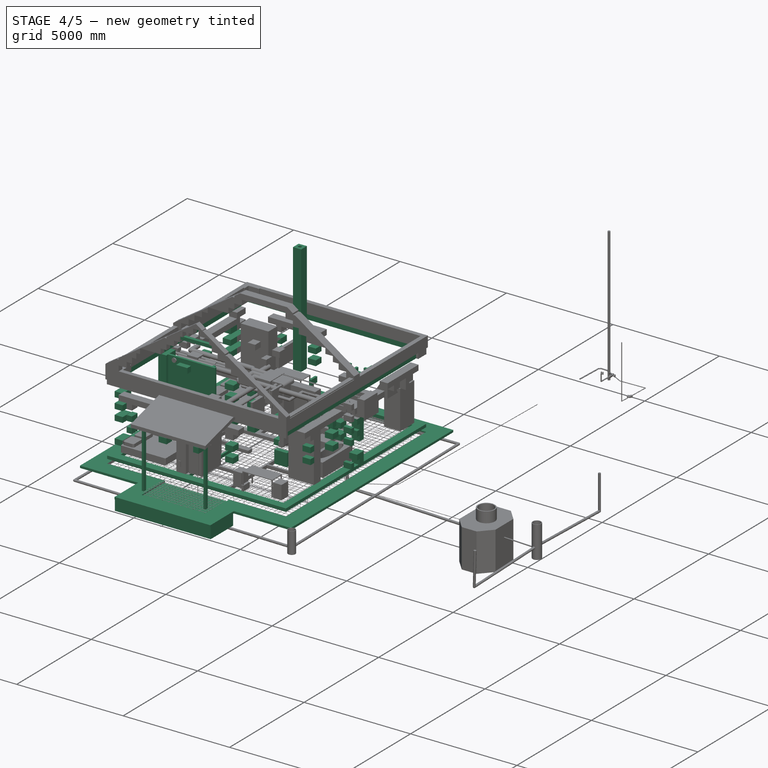
[diagram: stage 4 of 5 — iso view after this stage's code; geometry added in this stage tinted green]
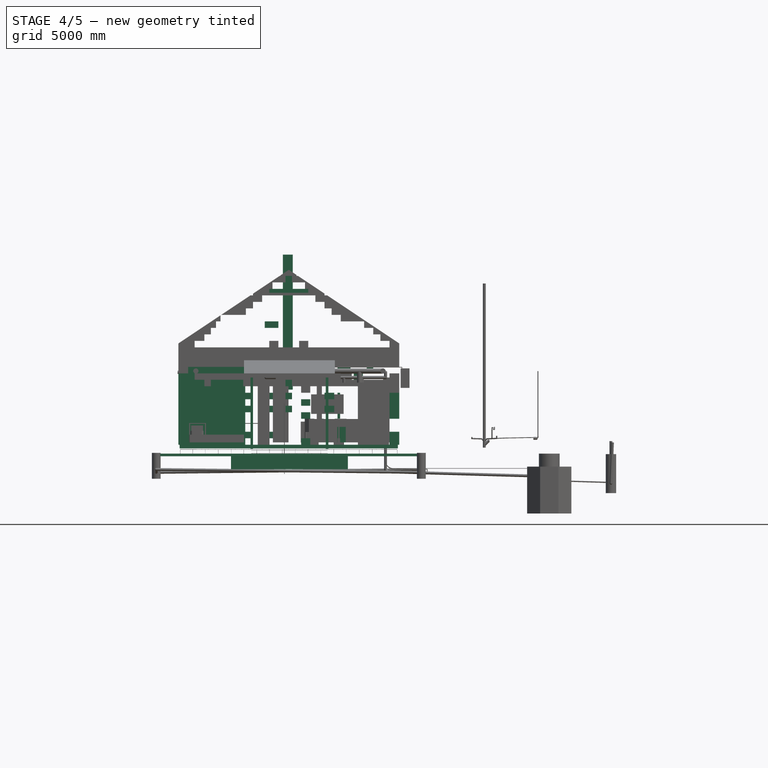
[diagram: stage 4 of 5 — front view after this stage's code; geometry added in this stage tinted green]
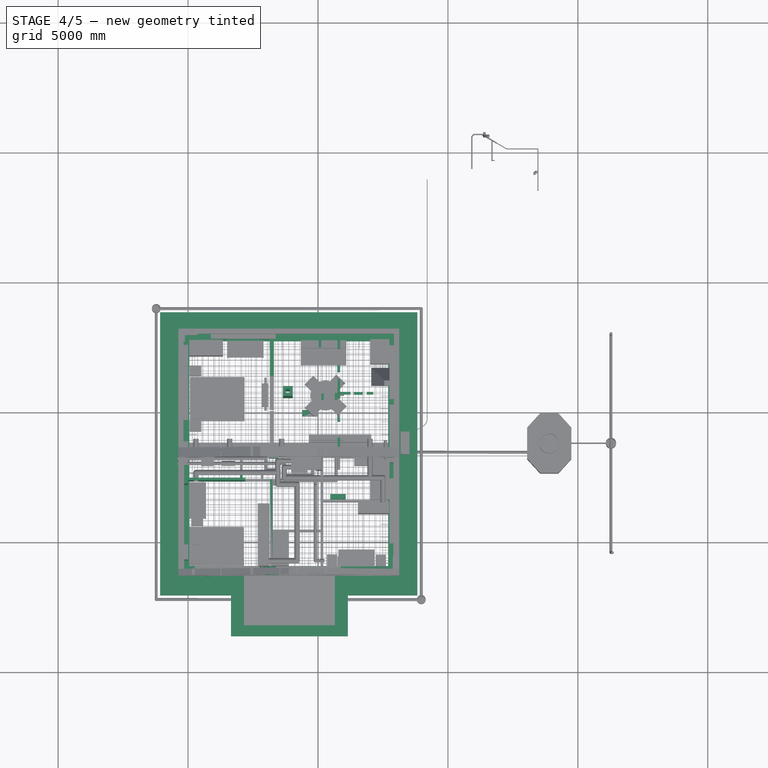
[diagram: stage 4 of 5 — top view after this stage's code; geometry added in this stage tinted green]
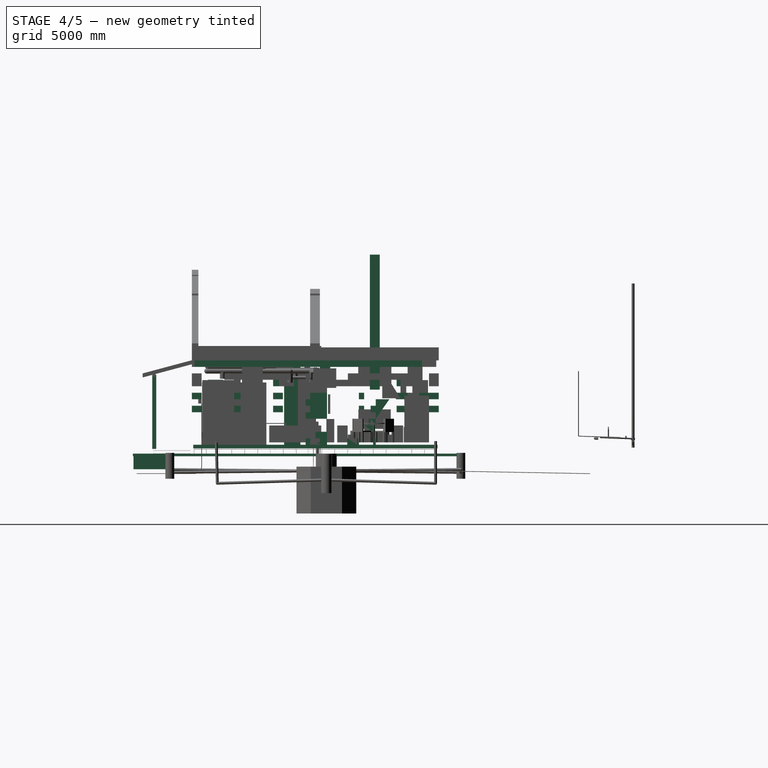
[diagram: stage 4 of 5 — right view after this stage's code; geometry added in this stage tinted green]
FEATURE [Part::Feature] Box1228  label="БП 625х100х250_194"
  Placement = pos=(7000,5600,2160) rot=(0,0,-1;0rad)
  shape: bbox 625 x 100 x 250 mm, 6 faces (baked)
FEATURE [Part::Feature] Box1233  label="БП 625х100х250_199"
  Placement = pos=(6725,5600,2410) rot=(0,0,-1;0rad)
  shape: bbox 625 x 100 x 250 mm, 6 faces (baked)
FEATURE [Part::Feature] Box1245  label="БП 625х100х250_205"
  Placement = pos=(5750,5600,2410) rot=(0,0,-1;1.5708rad)
  shape: bbox 100 x 625 x 250 mm, 6 faces (baked)
FEATURE [Part::Feature] Box1253  label="БП 625х100х250_208"
  Placement = pos=(5750,6125,2660) rot=(0,0,-1;1.5708rad)
  shape: bbox 100 x 625 x 250 mm, 6 faces (baked)
FEATURE [Part::Feature] Box1255  label="БП 625х100х250_209"
  Placement = pos=(6250,5600,2660) rot=(0,0,-1;0rad)
  shape: bbox 625 x 100 x 250 mm, 6 faces (baked)
FEATURE [Part::Feature] Box1259  label="БП 625х100х250_212"
  Placement = pos=(5750,4350,2410) rot=(0,0,-1;1.5708rad)
  shape: bbox 100 x 625 x 250 mm, 6 faces (baked)
FEATURE [Part::Feature] Box1260  label="БП 625х100х250_213"
  Placement = pos=(5750,5200,2660) rot=(0,0,-1;1.5708rad)
  shape: bbox 100 x 625 x 250 mm, 6 faces (baked)
FEATURE [Part::Feature] Box1261  label="БП 625х100х250_214"
  Placement = pos=(5750,4575,2660) rot=(0,0,-1;1.5708rad)
  shape: bbox 100 x 625 x 250 mm, 6 faces (baked)
FEATURE [Part::Feature] Box1262  label="БП 300х100х250_122"
  Placement = pos=(5750,5500,2660) rot=(0,0,-1;1.5708rad)
  shape: bbox 100 x 300 x 250 mm, 6 faces (baked)
FEATURE [Part::Box] Box1263  label="БП 400х100х250_129"
  AttacherType = Attacher::AttachEngine3D
  Height = 250
  Length = 400
  Placement = pos=(5750,3950,2660) rot=(0,0,-1;1.5708rad)
  Width = 100
FEATURE [Part::Feature] Box1266  label="БП 625х100х250_215"
  Placement = pos=(5750,5600,2410) rot=(0,0,-1;0rad)
  shape: bbox 625 x 100 x 250 mm, 6 faces (baked)
FEATURE [Part::Feature] Box1267  label="БП 400х100х250_131"
  Placement = pos=(7350,5600,2410) rot=(0,0,-1;0rad)
  shape: bbox 400 x 100 x 250 mm, 6 faces (baked)
FEATURE [Part::Box] Box1268  label="БП 350х100х250_141"
  AttacherType = Attacher::AttachEngine3D
  Height = 250
  Length = 350
  Placement = pos=(6375,5600,2410) rot=(0,0,-1;0rad)
  Width = 100
FEATURE [Part::Feature] Box1269  label="БП 625х100х250_216"
  Placement = pos=(7125,5600,2660) rot=(0,0,-1;0rad)
  shape: bbox 625 x 100 x 250 mm, 6 faces (baked)
FEATURE [Part::Box] Box1270  label="БП 250х100х250_132"
  AttacherType = Attacher::AttachEngine3D
  Height = 250
  Length = 250
  Placement = pos=(6875,5600,2660) rot=(0,0,-1;0rad)
  Width = 100
FEATURE [Part::Box] Box1271  label="БП 400х100х250_133"
  AttacherType = Attacher::AttachEngine3D
  Height = 250
  Length = 400
  Placement = pos=(5850,5600,2660) rot=(0,0,-1;0rad)
  Width = 100
FEATURE [Part::Part2DObjectPython] Rectangle444  label="основание кирпич 2 ряда_контур"  # Draft 2D object (typed FeaturePython)
  ChamferSize = 0
  Columns = 1
  FilletRadius = 0
  Height = 9400
  Length = 8400
  MakeFace = false
  Placement = pos=(-325,-1325,0) rot=(0,0,1;0rad)
  Rows = 1
FEATURE [Part::FeaturePython] Wall067  label="основание кирпич 2 ряда_002"  # Arch/BIM object (typed FeaturePython)
  Align = 0
  Base = -> Rectangle444
  BlockHeight = 0
  BlockLength = 0
  CountBroken = 0
  CountEntire = 0
  Face = 0
  Height = 140
  HorizontalArea = 1.27875e+07
  IfcRole = 156
  Joint = 0
  Length = 35600
  MakeBlocks = false
  MoveWithHost = false
  Normal = (0,0,-1)
  OffsetFirst = 0
  OffsetSecond = 0
  PerimeterLength = 35600
  Placement = pos=(0,0,-90) rot=(0,0,1;0rad)
  VerticalArea = 9548000
  Width = 375
FEATURE [Part::Part2DObjectPython] Wire077  label="основание кирпич 2 ряда_Перегородки_001"  # Draft 2D object (typed FeaturePython)
  ChamferSize = 0
  Closed = true
  End = (3150,-950,0)
  FilletRadius = 0
  Length = 6900
  MakeFace = false
  Placement = pos=(3350,-100,0) rot=(0,0,1;0rad)
  Points = (4) [(-100,-850,0),(-100,2500,0),(-200,2500,0),(-200,-850,0)]
  Start = (3250,-950,0)
  Subdivisions = 0
FEATURE [Part::Part2DObjectPython] Wire078  label="основание кирпич 2 ряда_Перегородки_007"  # Draft 2D object (typed FeaturePython)
  ChamferSize = 0
  Closed = true
  End = (3300,6299.32,0)
  FilletRadius = 0
  Length = 3101.36
  MakeFace = false
  Placement = pos=(2340,3550,0) rot=(0,0,1;0rad)
  Points = (4) [(960,4150,0),(810,4150,0),(810,2749.32,0),(960,2749.32,0)]
  Start = (3300,7700,0)
  Subdivisions = 0
FEATURE [Part::FeaturePython] Structure204  label="основание кирпич 2 ряда_Перегородки_015"  # Arch/BIM object (typed FeaturePython)
  Base = -> Wire077
  FaceMaker = 0
  Height = 140
  HorizontalArea = 335000
  IfcRole = 0
  Length = 0
  MoveWithHost = false
  Nodes = (2) [(3200,725,0),(3200,725,-140)]
  NodesOffset = 0
  Normal = (0,0,-1)
  PerimeterLength = 6900
  Placement = pos=(0,0,-90) rot=(0,0,1;0rad)
  VerticalArea = 966000
  Width = 100
FEATURE [Part::FeaturePython] Structure205  label="основание кирпич 2 ряда_Перегородки_017"  # Arch/BIM object (typed FeaturePython)
  Base = -> Wire078
  FaceMaker = 0
  Height = 140
  HorizontalArea = 210102
  IfcRole = 0
  Length = 0
  MoveWithHost = false
  Nodes = (2) [(1170,3425,0),(1170,3425,-160)]
  NodesOffset = 0
  Normal = (0,0,-1)
  PerimeterLength = 3101.36
  Placement = pos=(0,0,-90) rot=(0,0,1;0rad)
  VerticalArea = 434190
  Width = 100
FEATURE [App::GeometryPython] BuildingPart  label="проёмы"  # Arch/BIM object (typed FeaturePython)
  Area = 0
  Group = -> [Structure188,Structure191,Structure192,Structure193,Structure194,Structure195,Structure196,Structure226,Structure233,Structure234]
  Height = 0
  IfcRole = 0
  LevelOffset = 0
  Placement = pos=(-50,0,0) rot=(0,0,1;0rad)
FEATURE [Part::FeaturePython] Wall  label="дымоход002"  # Arch/BIM object (typed FeaturePython)
  Align = 1
  Base = -> Rectangle381
  BlockHeight = 65
  BlockLength = 250
  CountBroken = 262
  CountEntire = 0
  Face = 0
  Height = 5200
  HorizontalArea = 124800
  IfcRole = 156
  Joint = 5
  Length = 1520
  MakeBlocks = false
  MoveWithHost = false
  Normal = (0,0,0)
  OffsetFirst = 0
  OffsetSecond = 125
  PerimeterLength = 1520
  Placement = pos=(0,0,2030) rot=(0,0,1;0rad)
  VerticalArea = 10816000
  Width = 120
FEATURE [Part::FeaturePython] Structure238  label="Подушка_крыльца_щебень h0.015_001"  # Arch/BIM object (typed FeaturePython)
  Base = -> Rectangle483
  FaceMaker = 0
  Height = 150
  HorizontalArea = 6750000
  IfcRole = 0
  Length = 0
  MoveWithHost = false
  Nodes = (2) [(3900,-2875,0),(3900,-2875,150)]
  NodesOffset = 0
  Normal = (0,0,0)
  PerimeterLength = 12000
  Placement = pos=(0,0,-680) rot=(0,0,1;0rad)
  VerticalArea = 1800000
  Width = 100
FEATURE [Part::FeaturePython] Structure239  label="Подушка_крыльца_песок h0.035_001"  # Arch/BIM object (typed FeaturePython)
  Base = -> Rectangle483
  FaceMaker = 0
  Height = 350
  HorizontalArea = 6750000
  IfcRole = 0
  Length = 0
  MoveWithHost = false
  Nodes = (2) [(3900,-2875,0),(3900,-2875,350)]
  NodesOffset = 0
  Normal = (0,0,0)
  PerimeterLength = 12000
  Placement = pos=(0,0,-1030) rot=(0,0,1;0rad)
  VerticalArea = 4200000
  Width = 100
FEATURE [App::GeometryPython] BuildingPart041  label="Стена_мансарды_001"  # Arch/BIM object (typed FeaturePython)
  Area = 0
  Group = -> [Structure235,Structure236]
  Height = 0
  IfcRole = 0
  LevelOffset = 0
FEATURE [Part::FeaturePython] Structure240  label="мауэрлат_005"  # Arch/BIM object (typed FeaturePython)
  FaceMaker = 0
  Height = 50
  HorizontalArea = 955000
  IfcRole = 8
  Length = 4775
  MoveWithHost = false
  Nodes = (2) [(0,0,-9.71445e-17),(0,0,4775)]
  NodesOffset = 0
  Normal = (0,0,0)
  PerimeterLength = 9950
  Placement = pos=(8000,-1175,3685) rot=(0,0,1;1.5708rad)
  VerticalArea = 497500
  Width = 200
FEATURE [Part::FeaturePython] Structure241  label="мауэрлат_006"  # Arch/BIM object (typed FeaturePython)
  FaceMaker = 0
  Height = 50
  HorizontalArea = 955000
  IfcRole = 8
  Length = 4775
  MoveWithHost = false
  Nodes = (2) [(0,0,-9.71445e-17),(0,0,4425)]
  NodesOffset = 0
  Normal = (0,0,0)
  PerimeterLength = 9950
  Placement = pos=(-250,-1175,3685) rot=(0,0,1;1.5708rad)
  VerticalArea = 497500
  Width = 200
FEATURE [Part::Part2DObjectPython] Wire096  label="отмостка_контур_001"  # Draft 2D object (typed FeaturePython)
  ChamferSize = 0
  Closed = true
  End = (-325,-1325,0)
  FilletRadius = 0
  Length = 38750
  MakeFace = false
  Placement = pos=(-325,8075,0) rot=(0,0,1;0rad)
  Points = (8) [(0,0,0),(8400,9.09495e-13,0),(8400,-9400,0),(5725,-9400,0),(5725,-10975,0),(2725,-10975,0),(2725,-9400,0),(-1.7053e-13,-9400,0)]
  Start = (-325,8075,0)
  Subdivisions = 0
FEATURE [Part::FeaturePython] Wall068  label="отмостка_утепление"  # Arch/BIM object (typed FeaturePython)
  Align = 1
  Base = -> Wire096
  BlockHeight = 0
  BlockLength = 0
  CountBroken = 0
  CountEntire = 0
  Face = 0
  Height = 50
  HorizontalArea = 31312500
  IfcRole = 156
  Joint = 0
  Length = 38750
  MakeBlocks = false
  MoveWithHost = false
  Normal = (0,0,0)
  OffsetFirst = 0
  OffsetSecond = 0
  PerimeterLength = 44750
  Placement = pos=(0,0,-530) rot=(0,0,1;0rad)
  VerticalArea = 4175000
  Width = 750
FEATURE [Part::FeaturePython] Structure242  label="утепление_крыльца"  # Arch/BIM object (typed FeaturePython)
  Base = -> Rectangle482
  FaceMaker = 0
  Height = 50
  HorizontalArea = 4500000
  IfcRole = 0
  Length = 0
  MoveWithHost = false
  Nodes = (2) [(3900,-2150,0),(3900,-2150,50)]
  NodesOffset = 0
  Normal = (0,0,0)
  PerimeterLength = 9000
  Placement = pos=(0,0,-530) rot=(0,0,1;0rad)
  VerticalArea = 450000
  Width = 100
FEATURE [Part::FeaturePython] Wall069  label="отмостка_бетон"  # Arch/BIM object (typed FeaturePython)
  Align = 1
  Base = -> Wire096
  BlockHeight = 0
  BlockLength = 0
  CountBroken = 0
  CountEntire = 0
  Face = 0
  Height = 50
  HorizontalArea = 31312500
  IfcRole = 156
  Joint = 0
  Length = 38750
  MakeBlocks = false
  MoveWithHost = false
  Normal = (0,0,0)
  OffsetFirst = 0
  OffsetSecond = 0
  PerimeterLength = 44750
  Placement = pos=(0,0,-480) rot=(0,0,1;0rad)
  VerticalArea = 4175000
  Width = 750
FEATURE [Part::FeaturePython] Structure243  label="прогон 012"  # Arch/BIM object (typed FeaturePython)
  FaceMaker = 0
  Height = 150
  HorizontalArea = 350000
  IfcRole = 8
  Length = 3500
  MoveWithHost = false
  Nodes = (2) [(0,0,2.77556e-16),(0,0,3500)]
  NodesOffset = 0
  Normal = (0,0,0)
  PerimeterLength = 7200
  Placement = pos=(2150,-2825,2600) rot=(0,0,1;0rad)
  VerticalArea = 1080000
  Width = 100
FEATURE [Part::Part2DObjectPython] Rectangle491  label="Rectangle490"  # Draft 2D object (typed FeaturePython)
  ChamferSize = 0
  Columns = 1
  FilletRadius = 0
  Height = 3000
  Length = 150
  MakeFace = false
  Placement = pos=(10329.4,0,2317.37) rot=(-0.353937,0.661335,0.661335;2.46125rad)
  Rows = 1
FEATURE [Part::FeaturePython] Structure244  label="стойка 001"  # Arch/BIM object (typed FeaturePython)
  FaceMaker = 0
  Height = 2850
  HorizontalArea = 15000
  IfcRole = 8
  Length = 150
  MoveWithHost = false
  Nodes = (2) [(2.77556e-16,0,0),(2.77556e-16,0,2850)]
  NodesOffset = 0
  Normal = (0,0,0)
  PerimeterLength = 500
  Placement = pos=(2450,-2825,-250) rot=(0,0,-1;1.5708rad)
  VerticalArea = 1425000
  Width = 100
FEATURE [Part::FeaturePython] Structure245  label="стойка 002"  # Arch/BIM object (typed FeaturePython)
  FaceMaker = 0
  Height = 2850
  HorizontalArea = 15000
  IfcRole = 8
  Length = 150
  MoveWithHost = false
  Nodes = (2) [(2.77556e-16,0,0),(2.77556e-16,0,2850)]
  NodesOffset = 0
  Normal = (0,0,0)
  PerimeterLength = 500
  Placement = pos=(5350,-2825,-250) rot=(0,0,-1;1.5708rad)
  VerticalArea = 1425000
  Width = 100
FEATURE [Part::Part2DObjectPython] Line313  label="Line314"  # Draft 2D object (typed FeaturePython)
  ChamferSize = 0
  Closed = false
  End = (10100,0,2600)
  FilletRadius = 0
  Length = 200
  MakeFace = false
  Placement = pos=(10100,0,2400) rot=(1,0,0;1.5708rad)
  Points = (2) [(0,0,0),(0,200,4.44089e-14)]
  Start = (10100,0,2400)
  Subdivisions = 0
FEATURE [Part::Part2DObjectPython] Line314  label="Line315"  # Draft 2D object (typed FeaturePython)
  ChamferSize = 0
  Closed = false
  End = (10000,0,2400)
  FilletRadius = 0
  Length = 100
  MakeFace = false
  Placement = pos=(10100,0,2400) rot=(1,0,0;1.5708rad)
  Points = (2) [(0,0,0),(-100,0,3.06162e-15)]
  Start = (10100,0,2400)
  Subdivisions = 0
FEATURE [Part::Part2DObjectPython] Rectangle492  label="Rectangle491"  # Draft 2D object (typed FeaturePython)
  ChamferSize = 0
  Columns = 1
  FilletRadius = 0
  Height = 150
  Length = 150
  MakeFace = false
  Placement = pos=(10010,0,2350) rot=(1,0,0;1.5708rad)
  Rows = 1
FEATURE [Part::Part2DObjectPython] Rectangle493  label="мауэрлат_сечение001"  # Draft 2D object (typed FeaturePython)
  ChamferSize = 0
  Columns = 1
  FilletRadius = 0
  Height = 50
  Length = 200
  MakeFace = true
  Placement = pos=(7900,0,3660) rot=(1,0,0;1.5708rad)
  Rows = 1
FEATURE [Part::Part2DObjectPython] Line316  label="Line317"  # Draft 2D object (typed FeaturePython)
  ChamferSize = 0
  Closed = false
  End = (8100,0,3660)
  FilletRadius = 0
  Length = 25
  MakeFace = false
  Placement = pos=(8125,0,3660) rot=(1,0,0;1.5708rad)
  Points = (2) [(0,0,0),(-25,4.54747e-13,7.65404e-16)]
  Start = (8125,0,3660)
  Subdivisions = 0
FEATURE [Part::Part2DObjectPython] Line317  label="Line318"  # Draft 2D object (typed FeaturePython)
  ChamferSize = 0
  Closed = false
  End = (8125,0,3574.78)
  FilletRadius = 0
  Length = 85.217
  MakeFace = false
  Placement = pos=(8125,0,3660) rot=(1,0,0;1.5708rad)
  Points = (2) [(0,0,0),(0,-85.217,-1.8922e-14)]
  Start = (8125,0,3660)
  Subdivisions = 0
FEATURE [Part::Feature] Box1863  label="БП 625х250х250_203"
  Placement = pos=(5250,-1375,3410) rot=(0,0,1;0rad)
  shape: bbox 625 x 250 x 250 mm, 6 faces (baked)
FEATURE [Part::Feature] Box1859  label="БП 625х250х250_199"
  Placement = pos=(2750,-1375,3410) rot=(0,0,1;0rad)
  shape: bbox 625 x 250 x 250 mm, 6 faces (baked)
FEATURE [Part::Feature] Box1858  label="БП 625х250х250_198"
  Placement = pos=(2125,-1375,3410) rot=(0,0,1;0rad)
  shape: bbox 625 x 250 x 250 mm, 6 faces (baked)
FEATURE [Part::Feature] Box1885  label="БП 625х250х250_224"
  Placement = pos=(-125,750,3410) rot=(0,0,1;1.5708rad)
  shape: bbox 250 x 625 x 250 mm, 6 faces (baked)
FEATURE [Part::Feature] Box1871  label="БП 625х250х250_210"
  Placement = pos=(8125,2500,3410) rot=(0,0,1;1.5708rad)
  shape: bbox 250 x 625 x 250 mm, 6 faces (baked)
FEATURE [Part::Feature] Box1903  label="БП 625х250х250_242"
  Placement = pos=(2250,7875,3410) rot=(0,0,1;0rad)
  shape: bbox 625 x 250 x 250 mm, 6 faces (baked)
FEATURE [Part::Feature] Box1897  label="БП 625х250х250_236"
  Placement = pos=(-125,6375,3410) rot=(0,0,1;1.5708rad)
  shape: bbox 250 x 625 x 250 mm, 6 faces (baked)
FEATURE [Part::Feature] Box1896  label="БП 625х250х250_235"
  Placement = pos=(-125,5750,3410) rot=(0,0,1;1.5708rad)
  shape: bbox 250 x 625 x 250 mm, 6 faces (baked)
FEATURE [Part::Feature] Box1894  label="БП 625х250х250_233"
  Placement = pos=(-125,4500,3410) rot=(0,0,1;1.5708rad)
  shape: bbox 250 x 625 x 250 mm, 6 faces (baked)
FEATURE [Part::Feature] Box1893  label="БП 625х250х250_232"
  Placement = pos=(-125,3875,3410) rot=(0,0,1;1.5708rad)
  shape: bbox 250 x 625 x 250 mm, 6 faces (baked)
FEATURE [Part::Feature] Box1908  label="БП 625х250х250_247"
  Placement = pos=(5375,7875,3410) rot=(0,0,1;0rad)
  shape: bbox 625 x 250 x 250 mm, 6 faces (baked)
FEATURE [Part::Feature] Box1907  label="БП 625х250х250_246"
  Placement = pos=(4750,7875,3410) rot=(0,0,1;0rad)
  shape: bbox 625 x 250 x 250 mm, 6 faces (baked)
FEATURE [Part::Feature] Box1857  label="БП 625х250х250_197"
  Placement = pos=(1500,-1375,3410) rot=(0,0,1;0rad)
  shape: bbox 625 x 250 x 250 mm, 6 faces (baked)
FEATURE [Part::Feature] Box1884  label="БП 625х250х250_223"
  Placement = pos=(-125,125,3410) rot=(0,0,1;1.5708rad)
  shape: bbox 250 x 625 x 250 mm, 6 faces (baked)
FEATURE [Part::Box] Box1868  label="БП 500х250х250_038"
  AttacherType = Attacher::AttachEngine3D
  Height = 250
  Length = 375
  Placement = pos=(7750,-1375,3410) rot=(0,0,1;0rad)
  Width = 250
FEATURE [Part::Feature] Box1860  label="БП 625х250х250_200"
  Placement = pos=(3375,-1375,3410) rot=(0,0,1;0rad)
  shape: bbox 625 x 250 x 250 mm, 6 faces (baked)
FEATURE [Part::Feature] Box1856  label="БП 625х250х250_196"
  Placement = pos=(875,-1375,3410) rot=(0,0,1;0rad)
  shape: bbox 625 x 250 x 250 mm, 6 faces (baked)
FEATURE [Part::Feature] Box1865  label="БП 625х250х250_205"
  Placement = pos=(6500,-1375,3410) rot=(0,0,1;0rad)
  shape: bbox 625 x 250 x 250 mm, 6 faces (baked)
FEATURE [Part::Feature] Box1891  label="БП 625х250х250_230"
  Placement = pos=(-125,2625,3410) rot=(0,0,1;1.5708rad)
  shape: bbox 250 x 625 x 250 mm, 6 faces (baked)
FEATURE [Part::Feature] Box1876  label="БП 625х250х250_215"
  Placement = pos=(8125,5000,3410) rot=(0,0,1;1.5708rad)
  shape: bbox 250 x 625 x 250 mm, 6 faces (baked)
FEATURE [Part::Feature] Box1892  label="БП 625х250х250_231"
  Placement = pos=(-125,3250,3410) rot=(0,0,1;1.5708rad)
  shape: bbox 250 x 625 x 250 mm, 6 faces (baked)
FEATURE [Part::Feature] Box1869  label="БП 625х250х250_208"
  Placement = pos=(8125,1250,3410) rot=(0,0,1;1.5708rad)
  shape: bbox 250 x 625 x 250 mm, 6 faces (baked)
FEATURE [Part::Feature] Box1875  label="БП 625х250х250_214"
  Placement = pos=(8125,4375,3410) rot=(0,0,1;1.5708rad)
  shape: bbox 250 x 625 x 250 mm, 6 faces (baked)
FEATURE [Part::Feature] Box1864  label="БП 625х250х250_204"
  Placement = pos=(5875,-1375,3410) rot=(0,0,1;0rad)
  shape: bbox 625 x 250 x 250 mm, 6 faces (baked)
FEATURE [Part::Feature] Box1862  label="БП 625х250х250_202"
  Placement = pos=(4625,-1375,3410) rot=(0,0,1;0rad)
  shape: bbox 625 x 250 x 250 mm, 6 faces (baked)
FEATURE [Part::Feature] Box1870  label="БП 625х250х250_209"
  Placement = pos=(8125,1875,3410) rot=(0,0,1;1.5708rad)
  shape: bbox 250 x 625 x 250 mm, 6 faces (baked)
FEATURE [Part::Feature] Box1861  label="БП 625х250х250_201"
  Placement = pos=(4000,-1375,3410) rot=(0,0,1;0rad)
  shape: bbox 625 x 250 x 250 mm, 6 faces (baked)
FEATURE [Part::Feature] Box1905  label="БП 625х250х250_244"
  Placement = pos=(3500,7875,3410) rot=(0,0,1;0rad)
  shape: bbox 625 x 250 x 250 mm, 6 faces (baked)
FEATURE [Part::Feature] Box1855  label="БП 625х250х250_195"
  Placement = pos=(250,-1375,3410) rot=(0,0,1;0rad)
  shape: bbox 625 x 250 x 250 mm, 6 faces (baked)
FEATURE [Part::Feature] Box1872  label="БП 625х250х250_211"
  Placement = pos=(8125,3125,3410) rot=(0,0,1;1.5708rad)
  shape: bbox 250 x 625 x 250 mm, 6 faces (baked)
FEATURE [Part::Feature] Box1867  label="БП 625х250х250_207"
  Placement = pos=(8125,625,3410) rot=(0,0,1;1.5708rad)
  shape: bbox 250 x 625 x 250 mm, 6 faces (baked)
FEATURE [Part::Feature] Box1879  label="БП 625х250х250_218"
  Placement = pos=(8125,6875,3410) rot=(0,0,1;1.5708rad)
  shape: bbox 250 x 625 x 250 mm, 6 faces (baked)
FEATURE [Part::Feature] Box1878  label="БП 625х250х250_217"
  Placement = pos=(8125,6250,3410) rot=(0,0,1;1.5708rad)
  shape: bbox 250 x 625 x 250 mm, 6 faces (baked)
FEATURE [Part::Feature] Box1882  label="БП 625х250х250_221"
  Placement = pos=(8125,7500,3410) rot=(0,0,1;1.5708rad)
  shape: bbox 250 x 625 x 250 mm, 6 faces (baked)
FEATURE [Part::Feature] Box1877  label="БП 625х250х250_216"
  Placement = pos=(8125,5625,3410) rot=(0,0,1;1.5708rad)
  shape: bbox 250 x 625 x 250 mm, 6 faces (baked)
FEATURE [Part::Feature] Box1902  label="БП 625х250х250_241"
  Placement = pos=(1625,7875,3410) rot=(0,0,1;0rad)
  shape: bbox 625 x 250 x 250 mm, 6 faces (baked)
FEATURE [Part::Feature] Box1886  label="БП 625х250х250_225"
  Placement = pos=(-125,1375,3410) rot=(0,0,1;1.5708rad)
  shape: bbox 250 x 625 x 250 mm, 6 faces (baked)
FEATURE [Part::Feature] Box1895  label="БП 625х250х250_234"
  Placement = pos=(-125,5125,3410) rot=(0,0,1;1.5708rad)
  shape: bbox 250 x 625 x 250 mm, 6 faces (baked)
FEATURE [Part::Feature] Box1901  label="БП 625х250х250_240"
  Placement = pos=(1000,7875,3410) rot=(0,0,1;0rad)
  shape: bbox 625 x 250 x 250 mm, 6 faces (baked)
FEATURE [Part::Feature] Box1906  label="БП 625х250х250_245"
  Placement = pos=(4125,7875,3410) rot=(0,0,1;0rad)
  shape: bbox 625 x 250 x 250 mm, 6 faces (baked)
FEATURE [Part::Feature] Box1900  label="БП 625х250х250_239"
  Placement = pos=(375,7875,3410) rot=(0,0,1;0rad)
  shape: bbox 625 x 250 x 250 mm, 6 faces (baked)
FEATURE [Part::Feature] Box1887  label="БП 625х250х250_226"
  Placement = pos=(-125,2000,3410) rot=(0,0,1;1.5708rad)
  shape: bbox 250 x 625 x 250 mm, 6 faces (baked)
FEATURE [Part::Feature] Box1904  label="БП 625х250х250_243"
  Placement = pos=(2875,7875,3410) rot=(0,0,1;0rad)
  shape: bbox 625 x 250 x 250 mm, 6 faces (baked)
FEATURE [Part::Feature] Box1909  label="БП 625х250х250_248"
  Placement = pos=(6000,7875,3410) rot=(0,0,1;0rad)
  shape: bbox 625 x 250 x 250 mm, 6 faces (baked)
FEATURE [Part::Feature] Box1910  label="БП 625х250х250_249"
  Placement = pos=(6625,7875,3410) rot=(0,0,1;0rad)
  shape: bbox 625 x 250 x 250 mm, 6 faces (baked)
FEATURE [Part::Feature] Box1911  label="БП 625х250х250_250"
  Placement = pos=(7250,7875,3410) rot=(0,0,1;0rad)
  shape: bbox 625 x 250 x 250 mm, 6 faces (baked)
FEATURE [Part::Feature] Box1914  label="БП 625х250х250_253"
  Placement = pos=(-125,-500,3410) rot=(0,0,1;1.5708rad)
  shape: bbox 250 x 625 x 250 mm, 6 faces (baked)
FEATURE [Part::Feature] Box1915  label="БП 625х250х250_254"
  Placement = pos=(8125,3750,3410) rot=(0,0,1;1.5708rad)
  shape: bbox 250 x 625 x 250 mm, 6 faces (baked)
FEATURE [Part::Box] Box1916  label="БП 500х250х250_039"
  AttacherType = Attacher::AttachEngine3D
  Height = 250
  Length = 500
  Placement = pos=(-125,7875,3410) rot=(0,0,1;0rad)
  Width = 250
FEATURE [Part::Feature] Box1918  label="БП 625х250х250_255"
  Placement = pos=(8125,-1.819e-12,3410) rot=(0,0,1;1.5708rad)
  shape: bbox 250 x 625 x 250 mm, 6 faces (baked)
FEATURE [Part::Feature] Box1919  label="БП 625х250х250_256"
  Placement = pos=(-125,7000,3410) rot=(0,0,1;1.5708rad)
  shape: bbox 250 x 625 x 250 mm, 6 faces (baked)
FEATURE [Part::Feature] Box1934  label="БП 625х250х250_266"
  Placement = pos=(-375,-1375,3660) rot=(0,0,1;0rad)
  shape: bbox 625 x 250 x 250 mm, 6 faces (baked)
FEATURE [Part::Feature] Box1935  label="БП 625х250х250_267"
  Placement = pos=(250,-1375,3660) rot=(0,0,1;0rad)
  shape: bbox 625 x 250 x 250 mm, 6 faces (baked)
FEATURE [Part::Feature] Box1936  label="БП 625х250х250_268"
  Placement = pos=(875,-1375,3660) rot=(0,0,1;0rad)
  shape: bbox 625 x 250 x 250 mm, 6 faces (baked)
FEATURE [Part::Feature] Box1937  label="БП 625х250х250_269"
  Placement = pos=(1500,-1375,3660) rot=(0,0,1;0rad)
  shape: bbox 625 x 250 x 250 mm, 6 faces (baked)
FEATURE [Part::Feature] Box1938  label="БП 625х250х250_270"
  Placement = pos=(2125,-1375,3660) rot=(0,0,1;0rad)
  shape: bbox 625 x 250 x 250 mm, 6 faces (baked)
FEATURE [Part::Feature] Box1939  label="БП 625х250х250_271"
  Placement = pos=(2750,-1375,3660) rot=(0,0,1;0rad)
  shape: bbox 625 x 250 x 250 mm, 6 faces (baked)
FEATURE [Part::Feature] Box1940  label="БП 625х250х250_272"
  Placement = pos=(3375,-1375,3660) rot=(0,0,1;0rad)
  shape: bbox 625 x 250 x 250 mm, 6 faces (baked)
FEATURE [Part::Feature] Box1941  label="БП 625х250х250_273"
  Placement = pos=(4000,-1375,3660) rot=(0,0,1;0rad)
  shape: bbox 625 x 250 x 250 mm, 6 faces (baked)
FEATURE [Part::Feature] Box1942  label="БП 625х250х250_274"
  Placement = pos=(4625,-1375,3660) rot=(0,0,1;0rad)
  shape: bbox 625 x 250 x 250 mm, 6 faces (baked)
FEATURE [Part::Feature] Box1943  label="БП 625х250х250_275"
  Placement = pos=(5250,-1375,3660) rot=(0,0,1;0rad)
  shape: bbox 625 x 250 x 250 mm, 6 faces (baked)
FEATURE [Part::Feature] Box1944  label="БП 625х250х250_276"
  Placement = pos=(5875,-1375,3660) rot=(0,0,1;0rad)
  shape: bbox 625 x 250 x 250 mm, 6 faces (baked)
FEATURE [Part::Feature] Box1945  label="БП 625х250х250_277"
  Placement = pos=(6500,-1375,3660) rot=(0,0,1;0rad)
  shape: bbox 625 x 250 x 250 mm, 6 faces (baked)
FEATURE [Part::Feature] Box1946  label="БП 625х250х250_278"
  Placement = pos=(7125,-1375,3660) rot=(0,0,1;0rad)
  shape: bbox 625 x 250 x 250 mm, 6 faces (baked)
FEATURE [Part::Box] Box1947  label="БП 525х250х250_030"
  AttacherType = Attacher::AttachEngine3D
  Height = 250
  Length = 525
  Placement = pos=(2950,-1375,4410) rot=(0,0,1;0rad)
  Width = 250
FEATURE [Part::Feature] Box1948  label="БП 375х250х250_031"
  Placement = pos=(-375,-1375,3910) rot=(0,0,1;0rad)
  shape: bbox 375 x 250 x 250 mm, 6 faces (baked)
FEATURE [Part::Feature] Box1949  label="БП 625х250х250_279"
  Placement = pos=(2.672e-12,-1375,3910) rot=(0,0,1;0rad)
  shape: bbox 625 x 250 x 250 mm, 6 faces (baked)
FEATURE [Part::Feature] Box1950  label="БП 625х250х250_280"
  Placement = pos=(625,-1375,3910) rot=(0,0,1;0rad)
  shape: bbox 625 x 250 x 250 mm, 6 faces (baked)
FEATURE [Part::Feature] Box1951  label="БП 625х250х250_281"
  Placement = pos=(1250,-1375,3910) rot=(0,0,1;0rad)
  shape: bbox 625 x 250 x 250 mm, 6 faces (baked)
FEATURE [Part::Feature] Box1952  label="БП 625х250х250_282"
  Placement = pos=(1875,-1375,3910) rot=(0,0,1;0rad)
  shape: bbox 625 x 250 x 250 mm, 6 faces (baked)
FEATURE [Part::Feature] Box1953  label="БП 625х250х250_283"
  Placement = pos=(2500,-1375,3910) rot=(0,0,1;0rad)
  shape: bbox 625 x 250 x 250 mm, 6 faces (baked)
FEATURE [Part::Feature] Box1954  label="БП 625х250х250_284"
  Placement = pos=(3125,-1375,3910) rot=(0,0,1;0rad)
  shape: bbox 625 x 250 x 250 mm, 6 faces (baked)
FEATURE [Part::Feature] Box1955  label="БП 625х250х250_285"
  Placement = pos=(3750,-1375,3910) rot=(0,0,1;0rad)
  shape: bbox 625 x 250 x 250 mm, 6 faces (baked)
FEATURE [Part::Feature] Box1956  label="БП 625х250х250_286"
  Placement = pos=(4375,-1375,3910) rot=(0,0,1;0rad)
  shape: bbox 625 x 250 x 250 mm, 6 faces (baked)
FEATURE [Part::Feature] Box1957  label="БП 625х250х250_287"
  Placement = pos=(5000,-1375,3910) rot=(0,0,1;0rad)
  shape: bbox 625 x 250 x 250 mm, 6 faces (baked)
FEATURE [Part::Feature] Box1958  label="БП 625х250х250_288"
  Placement = pos=(5625,-1375,3910) rot=(0,0,1;0rad)
  shape: bbox 625 x 250 x 250 mm, 6 faces (baked)
FEATURE [Part::Feature] Box1959  label="БП 625х250х250_289"
  Placement = pos=(6250,-1375,3910) rot=(0,0,1;0rad)
  shape: bbox 625 x 250 x 250 mm, 6 faces (baked)
FEATURE [Part::Feature] Box1960  label="БП 625х250х250_290"
  Placement = pos=(6875,-1375,3910) rot=(0,0,1;0rad)
  shape: bbox 625 x 250 x 250 mm, 6 faces (baked)
FEATURE [Part::Feature] Box1961  label="БП 625х250х250_291"
  Placement = pos=(7500,-1375,3910) rot=(0,0,1;0rad)
  shape: bbox 625 x 250 x 250 mm, 6 faces (baked)
FEATURE [Part::Feature] Box1963  label="БП 625х250х250_292"
  Placement = pos=(7125,-1375,4160) rot=(0,0,1;0rad)
  shape: bbox 625 x 250 x 250 mm, 6 faces (baked)
FEATURE [Part::Feature] Box1964  label="БП 625х250х250_293"
  Placement = pos=(6500,-1375,4160) rot=(0,0,1;0rad)
  shape: bbox 625 x 250 x 250 mm, 6 faces (baked)
FEATURE [Part::Feature] Box1965  label="БП 625х250х250_294"
  Placement = pos=(5875,-1375,4160) rot=(0,0,1;0rad)
  shape: bbox 625 x 250 x 250 mm, 6 faces (baked)
FEATURE [Part::Feature] Box1966  label="БП 625х250х250_295"
  Placement = pos=(5250,-1375,4160) rot=(0,0,1;0rad)
  shape: bbox 625 x 250 x 250 mm, 6 faces (baked)
FEATURE [Part::Feature] Box1967  label="БП 625х250х250_296"
  Placement = pos=(4625,-1375,4160) rot=(0,0,1;0rad)
  shape: bbox 625 x 250 x 250 mm, 6 faces (baked)
FEATURE [Part::Feature] Box1968  label="БП 625х250х250_297"
  Placement = pos=(4000,-1375,4160) rot=(0,0,1;0rad)
  shape: bbox 625 x 250 x 250 mm, 6 faces (baked)
FEATURE [Part::Feature] Box1969  label="БП 625х250х250_298"
  Placement = pos=(3375,-1375,4160) rot=(0,0,1;0rad)
  shape: bbox 625 x 250 x 250 mm, 6 faces (baked)
FEATURE [Part::Feature] Box1970  label="БП 625х250х250_299"
  Placement = pos=(2750,-1375,4160) rot=(0,0,1;0rad)
  shape: bbox 625 x 250 x 250 mm, 6 faces (baked)
FEATURE [Part::Feature] Box1971  label="БП 625х250х250_300"
  Placement = pos=(2125,-1375,4160) rot=(0,0,1;0rad)
  shape: bbox 625 x 250 x 250 mm, 6 faces (baked)
FEATURE [Part::Feature] Box1972  label="БП 625х250х250_301"
  Placement = pos=(1500,-1375,4160) rot=(0,0,1;0rad)
  shape: bbox 625 x 250 x 250 mm, 6 faces (baked)
FEATURE [Part::Feature] Box1973  label="БП 625х250х250_302"
  Placement = pos=(875,-1375,4160) rot=(0,0,1;0rad)
  shape: bbox 625 x 250 x 250 mm, 6 faces (baked)
FEATURE [Part::Feature] Box1974  label="БП 625х250х250_303"
  Placement = pos=(250,-1375,4160) rot=(0,0,1;0rad)
  shape: bbox 625 x 250 x 250 mm, 6 faces (baked)
FEATURE [Part::Feature] Box1976  label="БП 625х250х250_305"
  Placement = pos=(2325,-1375,4410) rot=(0,0,1;0rad)
  shape: bbox 625 x 250 x 250 mm, 6 faces (baked)
FEATURE [Part::Feature] Box1977  label="БП 625х250х250_306"
  Placement = pos=(1700,-1375,4410) rot=(0,0,1;0rad)
  shape: bbox 625 x 250 x 250 mm, 6 faces (baked)
FEATURE [Part::Feature] Box1978  label="БП 625х250х250_307"
  Placement = pos=(1075,-1375,4410) rot=(0,0,1;0rad)
  shape: bbox 625 x 250 x 250 mm, 6 faces (baked)
FEATURE [Part::Feature] Box1979  label="БП 625х250х250_308"
  Placement = pos=(450,-1375,4410) rot=(0,0,1;0rad)
  shape: bbox 625 x 250 x 250 mm, 6 faces (baked)
FEATURE [Part::Feature] Box1980  label="БП 625х250х250_309"
  Placement = pos=(1875,-1375,4660) rot=(0,0,1;0rad)
  shape: bbox 625 x 250 x 250 mm, 6 faces (baked)
FEATURE [Part::Feature] Box1981  label="БП 625х250х250_310"
  Placement = pos=(2500,-1375,4660) rot=(0,0,1;0rad)
  shape: bbox 625 x 250 x 250 mm, 6 faces (baked)
FEATURE [Part::Feature] Box1982  label="БП 250х250х250_041"
  Placement = pos=(3125,-1375,4660) rot=(0,0,1;0rad)
  shape: bbox 350 x 250 x 250 mm, 6 faces (baked)
FEATURE [Part::Feature] Box1983  label="БП 625х250х250_311"
  Placement = pos=(2850,-1375,4910) rot=(0,0,1;0rad)
  shape: bbox 625 x 250 x 250 mm, 6 faces (baked)
FEATURE [Part::Feature] Box1984  label="БП 625х250х250_312"
  Placement = pos=(2225,-1375,4910) rot=(0,0,1;0rad)
  shape: bbox 625 x 250 x 250 mm, 6 faces (baked)
FEATURE [Part::Feature] Box1987  label="БП 625х250х250_314"
  Placement = pos=(2850,-1375,5410) rot=(0,0,1;0rad)
  shape: bbox 625 x 250 x 250 mm, 6 faces (baked)
FEATURE [Part::Feature] Box1988  label="U-Блок 500х250х250_019"
  Placement = pos=(3125,-1375,5660) rot=(0,0,1;0rad)
  shape: bbox 500 x 250 x 250 mm, 6 faces (baked)
FEATURE [Part::Feature] Box1989  label="U-Блок 500х250х250_020"
  Placement = pos=(3625,-1375,5660) rot=(0,0,1;0rad)
  shape: bbox 500 x 250 x 250 mm, 6 faces (baked)
FEATURE [Part::Feature] Box1990  label="U-Блок 500х250х250_021"
  Placement = pos=(4125,-1375,5660) rot=(0,0,1;0rad)
  shape: bbox 500 x 250 x 250 mm, 6 faces (baked)
FEATURE [Part::Feature] Box1993  label="БП 625х250х250_317"
  Placement = pos=(4275,-1375,5410) rot=(0,0,1;0rad)
  shape: bbox 625 x 250 x 250 mm, 6 faces (baked)
FEATURE [Part::Feature] Box1994  label="БП 250х250х250_043"
  Placement = pos=(4275,-1375,5160) rot=(0,0,1;0rad)
  shape: bbox 350 x 250 x 250 mm, 6 faces (baked)
FEATURE [Part::Feature] Box1995  label="БП 625х250х250_318"
  Placement = pos=(4625,-1375,5160) rot=(0,0,1;0rad)
  shape: bbox 625 x 250 x 250 mm, 6 faces (baked)
FEATURE [Part::Feature] Box1996  label="БП 625х250х250_319"
  Placement = pos=(4275,-1375,4910) rot=(0,0,1;0rad)
  shape: bbox 625 x 250 x 250 mm, 6 faces (baked)
FEATURE [Part::Feature] Box1997  label="БП 625х250х250_320"
  Placement = pos=(4900,-1375,4910) rot=(0,0,1;0rad)
  shape: bbox 625 x 250 x 250 mm, 6 faces (baked)
FEATURE [Part::Feature] Box1998  label="БП 250х250х250_044"
  Placement = pos=(4275,-1375,4660) rot=(0,0,1;0rad)
  shape: bbox 350 x 250 x 250 mm, 6 faces (baked)
FEATURE [Part::Feature] Box1999  label="БП 625х250х250_321"
  Placement = pos=(4625,-1375,4660) rot=(0,0,1;0rad)
  shape: bbox 625 x 250 x 250 mm, 6 faces (baked)
FEATURE [Part::Feature] Box2000  label="БП 625х250х250_322"
  Placement = pos=(5250,-1375,4660) rot=(0,0,1;0rad)
  shape: bbox 625 x 250 x 250 mm, 6 faces (baked)
FEATURE [Part::Feature] Box2001  label="БП 625х250х250_323"
  Placement = pos=(6150,-1375,4410) rot=(0,0,1;0rad)
  shape: bbox 625 x 250 x 250 mm, 6 faces (baked)
FEATURE [Part::Feature] Box2002  label="БП 625х250х250_324"
  Placement = pos=(5525,-1375,4410) rot=(0,0,1;0rad)
  shape: bbox 625 x 250 x 250 mm, 6 faces (baked)
FEATURE [Part::Feature] Box2003  label="БП 625х250х250_325"
  Placement = pos=(4900,-1375,4410) rot=(0,0,1;0rad)
  shape: bbox 625 x 250 x 250 mm, 6 faces (baked)
FEATURE [Part::Feature] Box2004  label="БП 625х250х250_326"
  Placement = pos=(4275,-1375,4410) rot=(0,0,1;0rad)
  shape: bbox 625 x 250 x 250 mm, 6 faces (baked)
FEATURE [Part::Box] Box2005  label="Армокаркас 1500х150х150_007"
  AttacherType = Attacher::AttachEngine3D
  Height = 150
  Length = 1500
  Placement = pos=(3125,-1325,5760) rot=(0,0,-1;0rad)
  Width = 150
FEATURE [Part::Part2DObjectPython] Wire100  label="перегородка_004"  # Draft 2D object (typed FeaturePython)
  ChamferSize = 0
  Closed = true
  End = (2100,2500,0)
  FilletRadius = 0
  Length = 6600
  MakeFace = true
  Placement = pos=(-1000,5550,0) rot=(0,0,1;0rad)
  Points = (12) [(3100,-3150,0),(3200,-3150,0),(3200,-3250,0),(1000,-3250,0),(1000,-3375,0),(625,-3375,0),(625,-2750,0),(1000,-2750,0),(1000,-3150,0),(3000,-3150,0),+2 more]
  Start = (2100,2400,0)
  Subdivisions = 0
FEATURE [Part::Part2DObjectPython] Line327  # Draft 2D object (typed FeaturePython)
  ChamferSize = 0
  Closed = false
  End = (0,7000,2910)
  FilletRadius = 0
  Length = 3661.97
  MakeFace = true
  Placement = pos=(0,4900,-90) rot=(0.57735,0.57735,0.57735;2.0944rad)
  Points = (2) [(0,0,0),(2100,3000,0)]
  Start = (0,4900,-90)
  Subdivisions = 0
FEATURE [Part::Part2DObjectPython] Rectangle496  # Draft 2D object (typed FeaturePython)
  ChamferSize = 0
  Columns = 1
  FilletRadius = 0
  Height = 2500
  Length = 0
  MakeFace = false
  Placement = pos=(0,5700,0) rot=(0.57735,0.57735,0.57735;2.0944rad)
  Rows = 1
FEATURE [Part::Part2DObjectPython] Rectangle497  # Draft 2D object (typed FeaturePython)
  ChamferSize = 0
  Columns = 1
  FilletRadius = 0
  Height = 2500
  Length = 600
  MakeFace = false
  Placement = pos=(0,5725,-90) rot=(0.57735,0.57735,0.57735;2.0944rad)
  Rows = 1
FEATURE [Part::Part2DObjectPython] Rectangle498  # Draft 2D object (typed FeaturePython)
  ChamferSize = 0
  Columns = 1
  FilletRadius = 0
  Height = 100
  Length = 3100
  MakeFace = false
  Placement = pos=(0,4981.92,-147.346) rot=(0.69017,0.217557,0.69017;2.71315rad)
  Rows = 1
FEATURE [Part::Part2DObjectPython] Line328  # Draft 2D object (typed FeaturePython)
  ChamferSize = 0
  Closed = false
  End = (0,6325,1660)
  FilletRadius = 0
  Length = 200
  MakeFace = false
  Placement = pos=(0,6125,1660) rot=(0.57735,0.57735,0.57735;2.0944rad)
  Points = (2) [(0,0,0),(200,0,0)]
  Start = (0,6125,1660)
  Subdivisions = 0
FEATURE [Part::Part2DObjectPython] Wire102  label="технич_помещение_проём"  # Draft 2D object (typed FeaturePython)
  ChamferSize = 0
  Closed = true
  End = (5750,6300,-90)
  FilletRadius = 0
  Length = 4342.5
  MakeFace = false
  Placement = pos=(5750,5700,-90) rot=(0.57735,0.57735,0.57735;2.0944rad)
  Points = (5) [(0,0,0),(0,1004.19,0),(522.066,1750,0),(600,1750,0),(600,0,0)]
  Start = (5750,5700,-90)
  Subdivisions = 0
FEATURE [Part::FeaturePython] Structure249  label="проём"  # Arch/BIM object (typed FeaturePython)
  Base = -> Wire102
  FaceMaker = 0
  Height = 250
  HorizontalArea = 0
  IfcRole = 0
  Length = 0
  MoveWithHost = false
  Nodes = (2) [(5750,6028.67,642.425),(5750,6028.67,892.425)]
  NodesOffset = 0
  Normal = (0,0,0)
  PerimeterLength = 0
  Placement = pos=(100,0,0) rot=(0,0,1;0rad)
  VerticalArea = 2.39919e+06
  Width = 100
FEATURE [Part::FeaturePython] Wall071  label="перегородка_001"  # Arch/BIM object (typed FeaturePython)
  Align = 2
  Base = -> Wire100
  BlockHeight = 0
  BlockLength = 0
  CountBroken = 0
  CountEntire = 0
  Face = 0
  Height = 3000
  HorizontalArea = 464375
  IfcRole = 156
  Joint = 0
  Length = 0
  MakeBlocks = false
  MoveWithHost = false
  Normal = (0,0,0)
  OffsetFirst = 0
  OffsetSecond = 0
  PerimeterLength = 6600
  Placement = pos=(0,0,-90) rot=(0,0,1;0rad)
  Subtractions = -> [Structure249]
  VerticalArea = 1.98e+07
  Width = 200
FEATURE [Part::Part2DObjectPython] Line330  # Draft 2D object (typed FeaturePython)
  ChamferSize = 0
  Closed = false
  End = (5125,5700,0)
  FilletRadius = 0
  Length = 625
  MakeFace = false
  Placement = pos=(5750,5700,0) rot=(0,0,1;0rad)
  Points = (2) [(0,0,0),(-625,0,0)]
  Start = (5750,5700,0)
  Subdivisions = 0
FEATURE [Part::Feature] Box2054  label="БП 625х250х250_371"
  Placement = pos=(5275,4900,-90) rot=(0,0,1;1.5708rad)
  shape: bbox 250 x 625 x 250 mm, 6 faces (baked)
FEATURE [Part::Feature] Box2056  label="БП 625х250х250_373"
  Placement = pos=(5275,5050,160) rot=(0,0,1;1.5708rad)
  shape: bbox 250 x 625 x 250 mm, 6 faces (baked)
FEATURE [Part::Feature] Box2057  label="БП 625х250х250_374"
  Placement = pos=(5850,4975,-90) rot=(0,0,1;1.5708rad)
  shape: bbox 250 x 625 x 250 mm, 6 faces (baked)
FEATURE [Part::Feature] Box2058  label="БП 625х250х250_375"
  Placement = pos=(5850,5075,160) rot=(0,0,1;1.5708rad)
  shape: bbox 250 x 625 x 250 mm, 6 faces (baked)
FEATURE [Part::Box] Box2059  label="БП 625х250х250_019"
  AttacherType = Attacher::AttachEngine3D
  Height = 250
  Length = 625
  Placement = pos=(4400,4800,-90) rot=(0,0,1;0rad)
  Width = 250
FEATURE [Part::Feature] Box2060  label="БП 625х100х250_326"
  Placement = pos=(5025,7550,160) rot=(0,0,-1;1.5708rad)
  shape: bbox 100 x 625 x 250 mm, 6 faces (baked)
FEATURE [Part::Feature] Box2061  label="БП 625х100х250_327"
  Placement = pos=(5750,6925,-90) rot=(0,0,-1;1.5708rad)
  shape: bbox 100 x 625 x 250 mm, 6 faces (baked)
FEATURE [Part::Feature] Box2062  label="БП 625х100х250_328"
  Placement = pos=(5750,7550,-90) rot=(0,0,-1;1.5708rad)
  shape: bbox 100 x 625 x 250 mm, 6 faces (baked)
FEATURE [Part::Feature] Box2063  label="БП 200х100х250_119"
  Placement = pos=(5750,7750,-90) rot=(0,0,-1;1.5708rad)
  shape: bbox 100 x 200 x 250 mm, 6 faces (baked)
FEATURE [Part::Feature] Box2064  label="БП 625х100х250_329"
  Placement = pos=(5750,7125,160) rot=(0,0,-1;1.5708rad)
  shape: bbox 100 x 625 x 250 mm, 6 faces (baked)
FEATURE [Part::Feature] Box2065  label="БП 625х100х250_330"
  Placement = pos=(5750,7750,160) rot=(0,0,-1;1.5708rad)
  shape: bbox 100 x 625 x 250 mm, 6 faces (baked)
FEATURE [Part::Feature] Box2066  label="БП 200х100х250_120"
  Placement = pos=(5750,6500,160) rot=(0,0,-1;1.5708rad)
  shape: bbox 100 x 200 x 250 mm, 6 faces (baked)
FEATURE [Part::Feature] Box2067  label="БП 200х100х250_121"
  Placement = pos=(5750,6500,660) rot=(0,0,-1;1.5708rad)
  shape: bbox 100 x 200 x 250 mm, 6 faces (baked)
FEATURE [Part::Feature] Box2068  label="БП 625х100х250_331"
  Placement = pos=(5750,6925,410) rot=(0,0,-1;1.5708rad)
  shape: bbox 100 x 625 x 250 mm, 6 faces (baked)
FEATURE [Part::Feature] Box2069  label="БП 625х100х250_332"
  Placement = pos=(5750,7125,660) rot=(0,0,-1;1.5708rad)
  shape: bbox 100 x 625 x 250 mm, 6 faces (baked)
FEATURE [Part::Feature] Box2070  label="БП 625х100х250_333"
  Placement = pos=(5750,7550,410) rot=(0,0,-1;1.5708rad)
  shape: bbox 100 x 625 x 250 mm, 6 faces (baked)
FEATURE [Part::Feature] Box2071  label="БП 625х100х250_334"
  Placement = pos=(5750,7750,660) rot=(0,0,-1;1.5708rad)
  shape: bbox 100 x 625 x 250 mm, 6 faces (baked)
FEATURE [Part::Feature] Box2072  label="БП 200х100х250_122"
  Placement = pos=(5750,7750,410) rot=(0,0,-1;1.5708rad)
  shape: bbox 100 x 200 x 250 mm, 6 faces (baked)
FEATURE [Part::Feature] Box2073  label="БП 200х100х250_123"
  Placement = pos=(5750,6500,1160) rot=(0,0,-1;1.5708rad)
  shape: bbox 100 x 200 x 250 mm, 6 faces (baked)
FEATURE [Part::Feature] Box2074  label="БП 625х100х250_335"
  Placement = pos=(5750,6925,910) rot=(0,0,-1;1.5708rad)
  shape: bbox 100 x 625 x 250 mm, 6 faces (baked)
FEATURE [Part::Feature] Box2075  label="БП 625х100х250_336"
  Placement = pos=(5750,7125,1160) rot=(0,0,-1;1.5708rad)
  shape: bbox 100 x 625 x 250 mm, 6 faces (baked)
FEATURE [Part::Feature] Box2076  label="БП 625х100х250_337"
  Placement = pos=(5750,7550,910) rot=(0,0,-1;1.5708rad)
  shape: bbox 100 x 625 x 250 mm, 6 faces (baked)
FEATURE [Part::Feature] Box2077  label="БП 625х100х250_338"
  Placement = pos=(5750,7750,1160) rot=(0,0,-1;1.5708rad)
  shape: bbox 100 x 625 x 250 mm, 6 faces (baked)
FEATURE [Part::Feature] Box2078  label="БП 200х100х250_124"
  Placement = pos=(5750,7750,910) rot=(0,0,-1;1.5708rad)
  shape: bbox 100 x 200 x 250 mm, 6 faces (baked)
FEATURE [Part::Feature] Box2080  label="БП 625х100х250_339"
  Placement = pos=(5750,6925,1410) rot=(0,0,-1;1.5708rad)
  shape: bbox 100 x 625 x 250 mm, 6 faces (baked)
FEATURE [Part::Feature] Box2081  label="БП 625х100х250_340"
  Placement = pos=(5750,6475,1660) rot=(0,0,-1;1.5708rad)
  shape: bbox 100 x 625 x 250 mm, 6 faces (baked)
FEATURE [Part::Feature] Box2082  label="БП 625х100х250_341"
  Placement = pos=(5750,7550,1410) rot=(0,0,-1;1.5708rad)
  shape: bbox 100 x 625 x 250 mm, 6 faces (baked)
FEATURE [Part::Feature] Box2083  label="БП 625х100х250_342"
  Placement = pos=(5750,7375,1660) rot=(0,0,-1;1.5708rad)
  shape: bbox 100 x 625 x 250 mm, 6 faces (baked)
FEATURE [Part::Feature] Box2084  label="БП 200х100х250_126"
  Placement = pos=(5750,7750,1410) rot=(0,0,-1;1.5708rad)
  shape: bbox 100 x 200 x 250 mm, 6 faces (baked)
FEATURE [Part::Box] Box2085  label="БП 250х100х250_222"
  AttacherType = Attacher::AttachEngine3D
  Height = 250
  Length = 250
  Placement = pos=(5125,5675,660) rot=(0,0,-1;1.5708rad)
  Width = 100
FEATURE [Part::Box] Box2086  label="БП 300х100х250_123"
  AttacherType = Attacher::AttachEngine3D
  Height = 250
  Length = 300
  Placement = pos=(5025,7750,1410) rot=(0,0,-1;1.5708rad)
  Width = 100
FEATURE [Part::Box] Box2087  label="БП 200х100х250_223"
  AttacherType = Attacher::AttachEngine3D
  Height = 250
  Length = 200
  Placement = pos=(5750,5700,660) rot=(0,0,-1;1.5708rad)
  Width = 100
FEATURE [Part::Cut] Cut134
  Base = -> Box1151
  Tool = -> Structure249
FEATURE [Part::Cut] Cut135
  Base = -> Box1158
  Tool = -> Structure249
FEATURE [Part::Cut] Cut136
  Base = -> Box1180
  Tool = -> Structure249
FEATURE [Part::Box] Box2089  label="БП 425х100х250_123"
  AttacherType = Attacher::AttachEngine3D
  Height = 250
  Length = 425
  Placement = pos=(5125,5675,410) rot=(0,0,-1;1.5708rad)
  Width = 100
FEATURE [Part::Box] Box2090  label="БП 400х100х250_134"
  AttacherType = Attacher::AttachEngine3D
  Height = 250
  Length = 350
  Placement = pos=(5650,5600,410) rot=(0,0,-1;1.5708rad)
  Width = 100
FEATURE [Part::Box] Box2091  label="БП 250х100х250_133"
  AttacherType = Attacher::AttachEngine3D
  Height = 250
  Length = 400
  Placement = pos=(5600,5600,-90) rot=(0,0,-1;0rad)
  Width = 100
FEATURE [Part::Box] Box2092  label="БП 275х100х250_223"
  AttacherType = Attacher::AttachEngine3D
  Height = 250
  Length = 275
  Placement = pos=(5750,6750,1660) rot=(0,0,-1;1.5708rad)
  Width = 100
FEATURE [Part::Box] Box2093  label="БП 275х100х250_224"
  AttacherType = Attacher::AttachEngine3D
  Height = 250
  Length = 275
  Placement = pos=(5650,5700,660) rot=(0,0,-1;1.5708rad)
  Width = 100
FEATURE [Part::Feature] Box2100  label="БП 625х100х250_343"
  Placement = pos=(5025,7550,660) rot=(0,0,-1;1.5708rad)
  shape: bbox 100 x 625 x 250 mm, 6 faces (baked)
FEATURE [Part::Feature] Box2101  label="БП 200х100х250_224"
  Placement = pos=(5025,7750,660) rot=(0,0,-1;1.5708rad)
  shape: bbox 100 x 200 x 250 mm, 6 faces (baked)
FEATURE [Part::Feature] Box2102  label="БП 625х100х250_344"
  Placement = pos=(5025,7550,1160) rot=(0,0,-1;1.5708rad)
  shape: bbox 100 x 625 x 250 mm, 6 faces (baked)
FEATURE [Part::Feature] Box2103  label="БП 200х100х250_225"
  Placement = pos=(5025,7750,1160) rot=(0,0,-1;1.5708rad)
  shape: bbox 100 x 200 x 250 mm, 6 faces (baked)
FEATURE [Part::Feature] Box2104  label="БП 625х100х250_345"
  Placement = pos=(5025,7550,1660) rot=(0,0,-1;1.5708rad)
  shape: bbox 100 x 625 x 250 mm, 6 faces (baked)
FEATURE [Part::Feature] Box2105  label="БП 200х100х250_226"
  Placement = pos=(5025,7750,1660) rot=(0,0,-1;1.5708rad)
  shape: bbox 100 x 200 x 250 mm, 6 faces (baked)
FEATURE [Part::Box] Box2106  label="БП 375х100х250_123"
  AttacherType = Attacher::AttachEngine3D
  Height = 250
  Length = 375
  Placement = pos=(5750,7750,1660) rot=(0,0,-1;1.5708rad)
  Width = 100
FEATURE [Part::Feature] Box2109  label="БП 200х100х250_227"
  Placement = pos=(5025,7750,2160) rot=(0,0,-1;1.5708rad)
  shape: bbox 100 x 200 x 250 mm, 6 faces (baked)
FEATURE [Part::Feature] Box2111  label="БП 625х100х250_346"
  Placement = pos=(5025,7450,1910) rot=(0,0,-1;1.5708rad)
  shape: bbox 100 x 625 x 250 mm, 6 faces (baked)
FEATURE [Part::Feature] Box2112  label="БП 625х100х250_347"
  Placement = pos=(5025,6825,1910) rot=(0,0,-1;1.5708rad)
  shape: bbox 100 x 625 x 250 mm, 6 faces (baked)
FEATURE [Part::Feature] Box2113  label="БП 625х100х250_348"
  Placement = pos=(5025,6200,1910) rot=(0,0,-1;1.5708rad)
  shape: bbox 100 x 625 x 250 mm, 6 faces (baked)
FEATURE [Part::Feature] Box2114  label="БП 625х100х250_349"
  Placement = pos=(5025,5575,1910) rot=(0,0,-1;1.5708rad)
  shape: bbox 100 x 625 x 250 mm, 6 faces (baked)
FEATURE [Part::Feature] Box2117  label="БП 625х100х250_350"
  Placement = pos=(5025,5675,2160) rot=(0,0,-1;1.5708rad)
  shape: bbox 100 x 625 x 250 mm, 6 faces (baked)
FEATURE [Part::Feature] Box2118  label="БП 625х100х250_351"
  Placement = pos=(5025,6300,2160) rot=(0,0,-1;1.5708rad)
  shape: bbox 100 x 625 x 250 mm, 6 faces (baked)
FEATURE [Part::Feature] Box2119  label="БП 625х100х250_352"
  Placement = pos=(5025,6925,2160) rot=(0,0,-1;1.5708rad)
  shape: bbox 100 x 625 x 250 mm, 6 faces (baked)
FEATURE [Part::Feature] Box2120  label="БП 625х100х250_353"
  Placement = pos=(5025,7550,2160) rot=(0,0,-1;1.5708rad)
  shape: bbox 100 x 625 x 250 mm, 6 faces (baked)
FEATURE [Part::Feature] Box2121  label="БП 625х100х250_354"
  Placement = pos=(5750,6325,1910) rot=(0,0,-1;1.5708rad)
  shape: bbox 100 x 625 x 250 mm, 6 faces (baked)
FEATURE [Part::Feature] Box2122  label="БП 625х100х250_355"
  Placement = pos=(5750,7575,1910) rot=(0,0,-1;1.5708rad)
  shape: bbox 100 x 625 x 250 mm, 6 faces (baked)
FEATURE [Part::Feature] Box2123  label="БП 625х100х250_356"
  Placement = pos=(5750,6950,1910) rot=(0,0,-1;1.5708rad)
  shape: bbox 100 x 625 x 250 mm, 6 faces (baked)
FEATURE [Part::Box] Box2124  label="БП 375х100х250_124"
  AttacherType = Attacher::AttachEngine3D
  Height = 250
  Length = 375
  Placement = pos=(5750,4975,-90) rot=(0,0,-1;1.5708rad)
  Width = 100
FEATURE [Part::FeaturePython] Wall072  label="Утепление_торца_ЭППС_50мм_h250"  # Arch/BIM object (typed FeaturePython)
  Align = 0
  Base = -> Rectangle503
  BlockHeight = 0
  BlockLength = 0
  CountBroken = 0
  CountEntire = 0
  Face = 0
  Height = 250
  HorizontalArea = 1750000
  IfcRole = 156
  Joint = 0
  Length = 34800
  MakeBlocks = false
  MoveWithHost = false
  Normal = (0,0,0)
  OffsetFirst = 0
  OffsetSecond = 0
  PerimeterLength = 35200
  VerticalArea = 17500000
  Width = 50
FEATURE [Part::Part2DObjectPython] Rectangle506  # Draft 2D object (typed FeaturePython)
  ChamferSize = 0
  Columns = 1
  FilletRadius = 0
  Height = 600
  Length = 200
  MakeFace = false
  Placement = pos=(5469.38,1807.18,0) rot=(0,0,-1;1.5708rad)
  Rows = 1
FEATURE [Part::FeaturePython] Structure250  label="короб_003"  # Arch/BIM object (typed FeaturePython)
  Base = -> Rectangle506
  FaceMaker = 0
  Height = 600
  HorizontalArea = 120000
  IfcRole = 0
  Length = 0
  MoveWithHost = false
  Nodes = (2) [(7650,6725,0),(7650,6725,200)]
  NodesOffset = 0
  Normal = (0,0,0)
  PerimeterLength = 1600
  VerticalArea = 960000
  Width = 100
FEATURE [Part::Part2DObjectPython] Rectangle510  label="прогон_брус_h250_b200"  # Draft 2D object (typed FeaturePython)
  ChamferSize = 0
  Columns = 1
  FilletRadius = 0
  Height = 250
  Length = 200
  MakeFace = true
  Placement = pos=(3290,0,5849.99) rot=(1,0,0;1.5708rad)
  Rows = 1
FEATURE [Part::Part2DObjectPython] Rectangle511  label="прогон_двутавр_N16_h160_b81"  # Draft 2D object (typed FeaturePython)
  ChamferSize = 0
  Columns = 1
  FilletRadius = 0
  Height = 160
  Length = 81
  MakeFace = false
  Placement = pos=(3299.5,0,5920) rot=(1,0,0;1.5708rad)
  Rows = 1
FEATURE [Part::Part2DObjectPython] Line424  # Draft 2D object (typed FeaturePython)
  ChamferSize = 0
  Closed = false
  End = (3330.5,0,5940)
  FilletRadius = 0
  Length = 160
  MakeFace = false
  Placement = pos=(3330.5,0,6100) rot=(1,0,0;1.5708rad)
  Points = (2) [(0,0,0),(4.54747e-13,-160,-3.55271e-14)]
  Start = (3330.5,0,6100)
  Subdivisions = 0
FEATURE [Part::Part2DObjectPython] Rectangle512  # Draft 2D object (typed FeaturePython)
  ChamferSize = 0
  Columns = 1
  FilletRadius = 0
  Height = 180
  Length = 5
  MakeFace = false
  Placement = pos=(3337.5,-4.1e-14,5920) rot=(1,0,0;1.5708rad)
  Rows = 1
FEATURE [Part::Part2DObjectPython] Rectangle513  # Draft 2D object (typed FeaturePython)
  ChamferSize = 0
  Columns = 1
  FilletRadius = 0
  Height = 7
  Length = 90
  MakeFace = false
  Placement = pos=(3295,-1e-15,6093) rot=(1,0,0;1.5708rad)
  Rows = 1
FEATURE [Part::Part2DObjectPython] Rectangle514  # Draft 2D object (typed FeaturePython)
  ChamferSize = 0
  Columns = 1
  FilletRadius = 0
  Height = 7
  Length = 90
  MakeFace = false
  Placement = pos=(3295,-3.9e-14,5920) rot=(1,0,0;1.5708rad)
  Rows = 1
FEATURE [Part::Part2DObjectPython] Wire134  label="прогон_двутавр_N16_h160_b81_профиль_001"  # Draft 2D object (typed FeaturePython)
  ChamferSize = 0
  Closed = true
  End = (3299.5,0,6073)
  FilletRadius = 0
  Length = 634
  MakeFace = true
  Placement = pos=(3299.5,0,6080) rot=(1,0,0;1.5708rad)
  Points = (12) [(0,0,0),(81,0,-2.47991e-15),(81,-7,-4.03422e-15),(43,-7,-2.87081e-15),(43,-153,-3.52893e-14),(81,-153,-3.64527e-14),(81,-160,-3.8007e-14),+5 more]
  Start = (3299.5,0,6080)
  Subdivisions = 0
FEATURE [Part::Part2DObjectPython] Wire135  label="прогон_двутавр_N16_h160_b81_профиль_002"  # Draft 2D object (typed FeaturePython)
  ChamferSize = 0
  Closed = true
  End = (4369.5,0,6072.99)
  FilletRadius = 0
  Length = 634
  MakeFace = true
  Placement = pos=(4369.5,0,6079.99) rot=(1,0,0;1.5708rad)
  Points = (12) [(0,0,0),(81,0,-2.47991e-15),(81,-7,-4.03422e-15),(43,-7,-2.87081e-15),(43,-153,-3.52893e-14),(81,-153,-3.64527e-14),(81,-160,-3.8007e-14),+5 more]
  Start = (4369.5,0,6079.99)
  Subdivisions = 0
FEATURE [Part::Part2DObjectPython] Line426  # Draft 2D object (typed FeaturePython)
  ChamferSize = 0
  Closed = false
  End = (-1.3208e-12,-900,0)
  FilletRadius = 0
  Length = 8650
  MakeFace = false
  Placement = pos=(-3.61e-13,7750,0) rot=(0,0,1;0rad)
  Points = (2) [(0,0,0),(-9.59801e-13,-8650,0)]
  Start = (-3.61e-13,7750,0)
  Subdivisions = 0
FEATURE [Part::Part2DObjectPython] Rectangle515  # Draft 2D object (typed FeaturePython)
  ChamferSize = 0
  Columns = 1
  FilletRadius = 0
  Height = 9900
  Length = 9600
  MakeFace = false
  Placement = pos=(-925,-1525,3300) rot=(0,0,1;0rad)
  Rows = 1
FEATURE [Part::Feature] Box2150  label="Блок 625х375х250_612"
  Placement = pos=(-375,1500,-90) rot=(0,0,-1;1.5708rad)
  shape: bbox 375 x 625 x 250 mm, 6 faces (baked)
FEATURE [Part::Feature] Box2151  label="Блок 625х375х250_613"
  Placement = pos=(-375,875,-90) rot=(0,0,-1;1.5708rad)
  shape: bbox 375 x 625 x 250 mm, 6 faces (baked)
FEATURE [Part::Feature] Box2152  label="Блок 625х375х250_614"
  Placement = pos=(-375,-375,-90) rot=(0,0,-1;1.5708rad)
  shape: bbox 375 x 625 x 250 mm, 6 faces (baked)
FEATURE [Part::Feature] Box2155  label="Блок 625х375х250_617"
  Placement = pos=(-375,-1375,-90) rot=(0,0,1;0rad)
  shape: bbox 625 x 375 x 250 mm, 6 faces (baked)
FEATURE [Part::Feature] Box2157  label="Блок 625х375х250_619"
  Placement = pos=(7750,500,-90) rot=(0,0,-1;1.5708rad)
  shape: bbox 375 x 625 x 250 mm, 6 faces (baked)
FEATURE [Part::Feature] Box2158  label="Блок 625х375х250_620"
  Placement = pos=(7750,1125,-90) rot=(0,0,-1;1.5708rad)
  shape: bbox 375 x 625 x 250 mm, 6 faces (baked)
FEATURE [Part::Feature] Box2159  label="Блок 625х375х250_621"
  Placement = pos=(7750,1750,-90) rot=(0,0,-1;1.5708rad)
  shape: bbox 375 x 625 x 250 mm, 6 faces (baked)
FEATURE [Part::Feature] Box2160  label="Блок 625х375х250_622"
  Placement = pos=(7750,2375,-90) rot=(0,0,-1;1.5708rad)
  shape: bbox 375 x 625 x 250 mm, 6 faces (baked)
FEATURE [Part::Feature] Box2161  label="Блок 625х375х250_623"
  Placement = pos=(7750,3000,-90) rot=(0,0,-1;1.5708rad)
  shape: bbox 375 x 625 x 250 mm, 6 faces (baked)
FEATURE [Part::Box] Box2163  label="Блок 175х375х250_162"
  AttacherType = Attacher::AttachEngine3D
  Height = 250
  Length = 175
  Placement = pos=(7750,3175,-90) rot=(0,0,-1;1.5708rad)
  Width = 375
FEATURE [Part::Feature] Box2166  label="Блок 625х375х250_627"
  Placement = pos=(7750,-375,160) rot=(0,0,-1;1.5708rad)
  shape: bbox 375 x 625 x 250 mm, 6 faces (baked)
FEATURE [Part::Box] Box2167  label="Блок 450х375х250_163"
  AttacherType = Attacher::AttachEngine3D
  Height = 250
  Length = 450
  Placement = pos=(7750,3825,160) rot=(0,0,-1;1.5708rad)
  Width = 375
FEATURE [Part::Feature] Box2168  label="Блок 625х375х250_628"
  Placement = pos=(-375,-750,160) rot=(0,0,-1;1.5708rad)
  shape: bbox 375 x 625 x 250 mm, 6 faces (baked)
FEATURE [Part::Feature] Box2171  label="Блок 625х375х250_631"
  Placement = pos=(7750,3375,160) rot=(0,0,-1;1.5708rad)
  shape: bbox 375 x 625 x 250 mm, 6 faces (baked)
FEATURE [Part::Feature] Box2172  label="Блок 625х375х250_632"
  Placement = pos=(-375,3175,160) rot=(0,0,1;0rad)
  shape: bbox 625 x 375 x 250 mm, 6 faces (baked)
FEATURE [Part::Box] Box2173  label="Блок 250х375х250_164"
  AttacherType = Attacher::AttachEngine3D
  Height = 250
  Length = 250
  Placement = pos=(-375,3800,160) rot=(0,0,-1;1.5708rad)
  Width = 375
FEATURE [Part::Box] Box2174  label="Блок 575х375х250_165"
  AttacherType = Attacher::AttachEngine3D
  Height = 250
  Length = 575
  Placement = pos=(-375,-175,160) rot=(0,0,-1;1.5708rad)
  Width = 375
FEATURE [Part::Box] Box2175  label="Блок 575х375х250_166"
  AttacherType = Attacher::AttachEngine3D
  Height = 250
  Length = 575
  Placement = pos=(-375,7500,160) rot=(0,0,-1;1.5708rad)
  Width = 375
FEATURE [Part::Box] Box2176  label="Блок 225х375х250_165"
  AttacherType = Attacher::AttachEngine3D
  Height = 250
  Length = 225
  Placement = pos=(-375,3175,160) rot=(0,0,-1;1.5708rad)
  Width = 375
FEATURE [Part::Feature] Box2177  label="Блок 625х375х250_633"
  Placement = pos=(-3.638e-12,3175,-90) rot=(0,0,1;0rad)
  shape: bbox 625 x 375 x 250 mm, 6 faces (baked)
FEATURE [Part::Feature] Box2178  label="Блок 625х375х250_634"
  Placement = pos=(625,3175,-90) rot=(0,0,1;0rad)
  shape: bbox 625 x 375 x 250 mm, 6 faces (baked)
FEATURE [Part::Feature] Box2179  label="Блок 625х375х250_635"
  Placement = pos=(250,3175,160) rot=(0,0,1;0rad)
  shape: bbox 625 x 375 x 250 mm, 6 faces (baked)
FEATURE [Part::Box] Box2180  label="Блок 375х375х250_166"
  AttacherType = Attacher::AttachEngine3D
  Height = 250
  Length = 375
  Placement = pos=(875,3175,160) rot=(0,0,-1;0rad)
  Width = 375
FEATURE [Part::Feature] Box2181  label="Блок 625х375х250_636"
  Placement = pos=(3725,3175,-90) rot=(0,0,1;0rad)
  shape: bbox 625 x 375 x 250 mm, 6 faces (baked)
FEATURE [Part::Feature] Box2182  label="Блок 625х375х250_637"
  Placement = pos=(3100,3175,-90) rot=(0,0,1;0rad)
  shape: bbox 625 x 375 x 250 mm, 6 faces (baked)
FEATURE [Part::Feature] Box2183  label="Блок 625х375х250_638"
  Placement = pos=(3450,3175,160) rot=(0,0,1;0rad)
  shape: bbox 625 x 375 x 250 mm, 6 faces (baked)
FEATURE [Part::Feature] Box2184  label="Блок 625х375х250_639"
  Placement = pos=(4075,3175,160) rot=(0,0,1;0rad)
  shape: bbox 625 x 375 x 250 mm, 6 faces (baked)
FEATURE [Part::Box] Box2185  label="Блок 350х375х250_167"
  AttacherType = Attacher::AttachEngine3D
  Height = 250
  Length = 350
  Placement = pos=(3100,3175,160) rot=(0,0,-1;0rad)
  Width = 375
FEATURE [Part::Box] Box2186  label="Блок 350х375х250_168"
  AttacherType = Attacher::AttachEngine3D
  Height = 250
  Length = 350
  Placement = pos=(4350,3175,-90) rot=(0,0,-1;0rad)
  Width = 375
FEATURE [Part::Box] Box2187  label="Блок 410х375х250_167"
  AttacherType = Attacher::AttachEngine3D
  Height = 250
  Length = 410
  Placement = pos=(2050,3175,160) rot=(0,0,-1;0rad)
  Width = 375
FEATURE [Part::Feature] Box2188  label="Блок 410х375х250_168"
  Placement = pos=(2050,3175,-90) rot=(0,0,-1;0rad)
  shape: bbox 410 x 375 x 250 mm, 6 faces (baked)
FEATURE [Part::Feature] Box2189  label="Блок 625х375х250_640"
  Placement = pos=(5500,3175,160) rot=(0,0,1;0rad)
  shape: bbox 625 x 375 x 250 mm, 6 faces (baked)
FEATURE [Part::Feature] Box2190  label="Блок 625х375х250_641"
  Placement = pos=(5500,3175,-90) rot=(0,0,1;0rad)
  shape: bbox 625 x 375 x 250 mm, 6 faces (baked)
FEATURE [Part::Feature] Box2192  label="Блок 625х375х250_643"
  Placement = pos=(7500,3175,-90) rot=(0,0,1;0rad)
  shape: bbox 625 x 375 x 250 mm, 6 faces (baked)
FEATURE [Part::Box] Box2193  label="Блок 275х375х250_163"
  AttacherType = Attacher::AttachEngine3D
  Height = 250
  Length = 275
  Placement = pos=(7750,3825,-90) rot=(0,0,-1;1.5708rad)
  Width = 375
FEATURE [Part::Box] Box2194  label="Блок 575х375х250_169"
  AttacherType = Attacher::AttachEngine3D
  Height = 250
  Length = 575
  Placement = pos=(6925,3175,-90) rot=(0,0,-1;0rad)
  Width = 375
FEATURE [Part::Feature] Box2195  label="Блок 625х375х250_644"
  Placement = pos=(7125,3175,160) rot=(0,0,1;0rad)
  shape: bbox 625 x 375 x 250 mm, 6 faces (baked)
FEATURE [Part::Box] Box2196  label="Блок 200х375х250_169"
  AttacherType = Attacher::AttachEngine3D
  Height = 250
  Length = 200
  Placement = pos=(6925,3175,160) rot=(0,0,-1;0rad)
  Width = 375
FEATURE [App::DocumentObjectGroup] Group044  label="ряд_1-2"
  Group = -> [Box427,Box419,Box393,Box408,Box413,Box414,Box423,Box394,Box409,Box392,Box426,Box410,Box412,Box415,Box390,Box401,Box417,Box418,Box421,Box407,Box422,Box425,Box403,Box428,Box424,Box405,Box461,Box462,Box478,Box463,Box464,Box465,Box434,Box400,Box404,Box420,Box466,Box467,Box468,Box469,Box470,Box471,Box472,Box391,Box416,Box411,Box435,Box429,Box433,Box453,Box454,Box455,Box456,Box457,Box458,Box459,Box460,+72 more]
FEATURE [Part::Feature] Box2197  label="Блок 625х375х250_645"
  Placement = pos=(7750,5625,410) rot=(0,0,-1;1.5708rad)
  shape: bbox 375 x 625 x 250 mm, 6 faces (baked)
FEATURE [Part::Feature] Box2198  label="Блок 625х375х250_646"
  Placement = pos=(3125,-1375,660) rot=(0,0,1;0rad)
  shape: bbox 625 x 375 x 250 mm, 6 faces (baked)
FEATURE [Part::Feature] Box2199  label="Блок 625х375х250_647"
  Placement = pos=(2500,7750,660) rot=(0,0,1;0rad)
  shape: bbox 625 x 375 x 250 mm, 6 faces (baked)
FEATURE [Part::Feature] Box2200  label="Блок 625х375х250_648"
  Placement = pos=(250,3175,660) rot=(0,0,1;0rad)
  shape: bbox 625 x 375 x 250 mm, 6 faces (baked)
FEATURE [Part::Feature] Box2201  label="Блок 350х375х250_169"
  Placement = pos=(4350,3175,410) rot=(0,0,-1;0rad)
  shape: bbox 350 x 375 x 250 mm, 6 faces (baked)
FEATURE [Part::Feature] Box2202  label="Блок 625х375х250_649"
  Placement = pos=(7125,3175,660) rot=(0,0,1;0rad)
  shape: bbox 625 x 375 x 250 mm, 6 faces (baked)
FEATURE [Part::Feature] Box2203  label="Блок 625х375х250_650"
  Placement = pos=(-1.14e-13,-1375,660) rot=(0,0,1;0rad)
  shape: bbox 625 x 375 x 250 mm, 6 faces (baked)
FEATURE [Part::Feature] Box2204  label="Блок 625х375х250_651"
  Placement = pos=(5500,3175,660) rot=(0,0,1;0rad)
  shape: bbox 625 x 375 x 250 mm, 6 faces (baked)
FEATURE [Part::Feature] Box2205  label="Блок 625х375х250_652"
  Placement = pos=(-375,1500,410) rot=(0,0,-1;1.5708rad)
  shape: bbox 375 x 625 x 250 mm, 6 faces (baked)
FEATURE [Part::Feature] Box2206  label="Блок 625х375х250_653"
  Placement = pos=(-375,875,410) rot=(0,0,-1;1.5708rad)
  shape: bbox 375 x 625 x 250 mm, 6 faces (baked)
FEATURE [Part::Feature] Box2207  label="Блок 625х375х250_654"
  Placement = pos=(-375,-375,410) rot=(0,0,-1;1.5708rad)
  shape: bbox 375 x 625 x 250 mm, 6 faces (baked)
FEATURE [Part::Feature] Box2208  label="Блок 625х375х250_655"
  Placement = pos=(-375,-1375,410) rot=(0,0,1;0rad)
  shape: bbox 625 x 375 x 250 mm, 6 faces (baked)
FEATURE [Part::Feature] Box2209  label="Блок 625х375х250_656"
  Placement = pos=(7750,1125,410) rot=(0,0,-1;1.5708rad)
  shape: bbox 375 x 625 x 250 mm, 6 faces (baked)
FEATURE [Part::Feature] Box2210  label="Блок 625х375х250_657"
  Placement = pos=(2500,-1375,660) rot=(0,0,1;0rad)
  shape: bbox 625 x 375 x 250 mm, 6 faces (baked)
FEATURE [Part::Feature] Box2211  label="Блок 375х375х250_167"
  Placement = pos=(875,3175,660) rot=(0,0,-1;0rad)
  shape: bbox 375 x 375 x 250 mm, 6 faces (baked)
FEATURE [Part::Feature] Box2212  label="Блок 625х375х250_658"
  Placement = pos=(7750,875,660) rot=(0,0,-1;1.5708rad)
  shape: bbox 375 x 625 x 250 mm, 6 faces (baked)
FEATURE [Part::Feature] Box2213  label="Блок 625х375х250_659"
  Placement = pos=(7750,3000,410) rot=(0,0,-1;1.5708rad)
  shape: bbox 375 x 625 x 250 mm, 6 faces (baked)
FEATURE [Part::Feature] Box2214  label="Блок 575х375х250_170"
  Placement = pos=(-375,-175,660) rot=(0,0,-1;1.5708rad)
  shape: bbox 375 x 575 x 250 mm, 6 faces (baked)
FEATURE [Part::Feature] Box2215  label="Блок 625х375х250_660"
  Placement = pos=(-3.638e-12,3175,410) rot=(0,0,1;0rad)
  shape: bbox 625 x 375 x 250 mm, 6 faces (baked)
FEATURE [Part::Feature] Box2216  label="Блок 625х375х250_661"
  Placement = pos=(-375,6300,660) rot=(0,0,-1;1.5708rad)
  shape: bbox 375 x 625 x 250 mm, 6 faces (baked)
FEATURE [Part::Feature] Box2217  label="Блок 625х375х250_662"
  Placement = pos=(-375,5675,660) rot=(0,0,-1;1.5708rad)
  shape: bbox 375 x 625 x 250 mm, 6 faces (baked)
FEATURE [Part::Feature] Box2218  label="Блок 625х375х250_663"
  Placement = pos=(-375,2950,660) rot=(0,0,-1;1.5708rad)
  shape: bbox 375 x 625 x 250 mm, 6 faces (baked)
FEATURE [Part::Feature] Box2219  label="Блок 625х375х250_664"
  Placement = pos=(7500,-1375,660) rot=(0,0,1;0rad)
  shape: bbox 625 x 375 x 250 mm, 6 faces (baked)
FEATURE [Part::Feature] Box2220  label="Блок 625х375х250_665"
  Placement = pos=(3750,-1375,660) rot=(0,0,1;0rad)
  shape: bbox 625 x 375 x 250 mm, 6 faces (baked)
FEATURE [Part::Feature] Box2221  label="Блок 625х375х250_666"
  Placement = pos=(-375,4425,660) rot=(0,0,-1;1.5708rad)
  shape: bbox 375 x 625 x 250 mm, 6 faces (baked)
FEATURE [Part::Feature] Box2222  label="Блок 625х375х250_667"
  Placement = pos=(6875,-1375,660) rot=(0,0,1;0rad)
  shape: bbox 625 x 375 x 250 mm, 6 faces (baked)
FEATURE [Part::Feature] Box2223  label="Блок 625х375х250_668"
  Placement = pos=(7750,1500,660) rot=(0,0,-1;1.5708rad)
  shape: bbox 375 x 625 x 250 mm, 6 faces (baked)
FEATURE [Part::Feature] Box2224  label="Блок 625х375х250_669"
  Placement = pos=(-375,4000,410) rot=(0,0,-1;1.5708rad)
  shape: bbox 375 x 625 x 250 mm, 6 faces (baked)
FEATURE [Part::Feature] Box2225  label="Блок 625х375х250_670"
  Placement = pos=(1500,7750,410) rot=(0,0,1;0rad)
  shape: bbox 625 x 375 x 250 mm, 6 faces (baked)
FEATURE [Part::Feature] Box2226  label="Блок 625х375х250_671"
  Placement = pos=(4375,-1375,660) rot=(0,0,1;0rad)
  shape: bbox 625 x 375 x 250 mm, 6 faces (baked)
FEATURE [Part::Feature] Box2227  label="Блок 625х375х250_672"
  Placement = pos=(7750,2750,660) rot=(0,0,-1;1.5708rad)
  shape: bbox 375 x 625 x 250 mm, 6 faces (baked)
FEATURE [Part::Feature] Box2228  label="Блок 625х375х250_673"
  Placement = pos=(7750,-125,410) rot=(0,0,-1;1.5708rad)
  shape: bbox 375 x 625 x 250 mm, 6 faces (baked)
FEATURE [Part::Feature] Box2229  label="Блок 625х375х250_674"
  Placement = pos=(875,7750,410) rot=(0,0,1;0rad)
  shape: bbox 625 x 375 x 250 mm, 6 faces (baked)
FEATURE [Part::Feature] Box2230  label="Блок 625х375х250_675"
  Placement = pos=(1500,-1375,410) rot=(0,0,1;0rad)
  shape: bbox 625 x 375 x 250 mm, 6 faces (baked)
FEATURE [Part::Feature] Box2231  label="Блок 625х375х250_676"
  Placement = pos=(-375,2125,410) rot=(0,0,-1;1.5708rad)
  shape: bbox 375 x 625 x 250 mm, 6 faces (baked)
FEATURE [Part::Feature] Box2232  label="Блок 625х375х250_677"
  Placement = pos=(-375,7750,410) rot=(0,0,1;0rad)
  shape: bbox 625 x 375 x 250 mm, 6 faces (baked)
FEATURE [Part::Feature] Box2233  label="Блок 625х375х250_678"
  Placement = pos=(7750,6250,410) rot=(0,0,-1;1.5708rad)
  shape: bbox 375 x 625 x 250 mm, 6 faces (baked)
FEATURE [Part::Feature] Box2234  label="Блок 625х375х250_679"
  Placement = pos=(250,7750,410) rot=(0,0,1;0rad)
  shape: bbox 625 x 375 x 250 mm, 6 faces (baked)
FEATURE [Part::Feature] Box2235  label="Блок 625х375х250_680"
  Placement = pos=(7750,6875,410) rot=(0,0,-1;1.5708rad)
  shape: bbox 375 x 625 x 250 mm, 6 faces (baked)
FEATURE [Part::Feature] Box2236  label="Блок 625х375х250_681"
  Placement = pos=(-375,3375,410) rot=(0,0,-1;1.5708rad)
  shape: bbox 375 x 625 x 250 mm, 6 faces (baked)
FEATURE [Part::Feature] Box2237  label="Блок 625х375х250_682"
  Placement = pos=(7750,5250,660) rot=(0,0,-1;1.5708rad)
  shape: bbox 375 x 625 x 250 mm, 6 faces (baked)
FEATURE [Part::Feature] Box2238  label="Блок 625х375х250_683"
  Placement = pos=(2750,7750,410) rot=(0,0,1;0rad)
  shape: bbox 625 x 375 x 250 mm, 6 faces (baked)
FEATURE [Part::Feature] Box2239  label="Блок 625х375х250_684"
  Placement = pos=(-375,5250,410) rot=(0,0,-1;1.5708rad)
  shape: bbox 375 x 625 x 250 mm, 6 faces (baked)
FEATURE [Part::Feature] Box2240  label="Блок 625х375х250_685"
  Placement = pos=(-375,8125,660) rot=(0,0,-1;1.5708rad)
  shape: bbox 375 x 625 x 250 mm, 6 faces (baked)
FEATURE [Part::Feature] Box2241  label="Блок 625х375х250_686"
  Placement = pos=(-375,450,660) rot=(0,0,-1;1.5708rad)
  shape: bbox 375 x 625 x 250 mm, 6 faces (baked)
FEATURE [Part::Feature] Box2242  label="Блок 625х375х250_687"
  Placement = pos=(7125,-1375,410) rot=(0,0,1;0rad)
  shape: bbox 625 x 375 x 250 mm, 6 faces (baked)
FEATURE [Part::Feature] Box2243  label="Блок 625х375х250_688"
  Placement = pos=(3750,7750,660) rot=(0,0,1;0rad)
  shape: bbox 625 x 375 x 250 mm, 6 faces (baked)
FEATURE [Part::Feature] Box2244  label="Блок 225х375х250_166"
  Placement = pos=(-375,3175,660) rot=(0,0,-1;1.5708rad)
  shape: bbox 375 x 225 x 250 mm, 6 faces (baked)
FEATURE [Part::Feature] Box2245  label="Блок 625х375х250_689"
  Placement = pos=(250,-1375,410) rot=(0,0,1;0rad)
  shape: bbox 625 x 375 x 250 mm, 6 faces (baked)
FEATURE [Part::Feature] Box2246  label="Блок 625х375х250_690"
  Placement = pos=(3125,7750,660) rot=(0,0,1;0rad)
  shape: bbox 625 x 375 x 250 mm, 6 faces (baked)
FEATURE [Part::Feature] Box2247  label="Блок 625х375х250_691"
  Placement = pos=(7500,7750,660) rot=(0,0,1;0rad)
  shape: bbox 625 x 375 x 250 mm, 6 faces (baked)
FEATURE [Part::Feature] Box2248  label="Блок 410х375х250_169"
  Placement = pos=(2050,3175,410) rot=(0,0,-1;0rad)
  shape: bbox 410 x 375 x 250 mm, 6 faces (baked)
FEATURE [Part::Feature] Box2249  label="Блок 625х375х250_692"
  Placement = pos=(-375,7750,410) rot=(0,0,-1;1.5708rad)
  shape: bbox 375 x 625 x 250 mm, 6 faces (baked)
FEATURE [Part::Feature] Box2250  label="Блок 625х375х250_693"
  Placement = pos=(6500,-1375,410) rot=(0,0,1;0rad)
  shape: bbox 625 x 375 x 250 mm, 6 faces (baked)
FEATURE [Part::Feature] Box2251  label="Блок 625х375х250_694"
  Placement = pos=(-3.865e-12,7750,660) rot=(0,0,1;0rad)
  shape: bbox 625 x 375 x 250 mm, 6 faces (baked)
FEATURE [Part::Feature] Box2252  label="Блок 625х375х250_695"
  Placement = pos=(5000,7750,660) rot=(0,0,1;0rad)
  shape: bbox 625 x 375 x 250 mm, 6 faces (baked)
FEATURE [Part::Feature] Box2253  label="Блок 625х375х250_696"
  Placement = pos=(7750,7125,660) rot=(0,0,-1;1.5708rad)
  shape: bbox 375 x 625 x 250 mm, 6 faces (baked)
FEATURE [Part::Feature] Box2254  label="Блок 250х375х250_165"
  Placement = pos=(-375,3800,660) rot=(0,0,-1;1.5708rad)
  shape: bbox 375 x 250 x 250 mm, 6 faces (baked)
FEATURE [Part::Feature] Box2255  label="Блок 625х375х250_697"
  Placement = pos=(7125,7750,410) rot=(0,0,1;0rad)
  shape: bbox 625 x 375 x 250 mm, 6 faces (baked)
FEATURE [Part::Feature] Box2256  label="Блок 375х375х250_168"
  Placement = pos=(7750,5000,410) rot=(0,0,-1;1.5708rad)
  shape: bbox 375 x 375 x 250 mm, 6 faces (baked)
FEATURE [Part::Feature] Box2257  label="Блок 625х375х250_698"
  Placement = pos=(-375,7125,410) rot=(0,0,-1;1.5708rad)
  shape: bbox 375 x 625 x 250 mm, 6 faces (baked)
FEATURE [Part::Feature] Box2258  label="Блок 625х375х250_699"
  Placement = pos=(4625,-1375,410) rot=(0,0,1;0rad)
  shape: bbox 625 x 375 x 250 mm, 6 faces (baked)
FEATURE [Part::Feature] Box2259  label="Блок 625х375х250_700"
  Placement = pos=(3725,3175,410) rot=(0,0,1;0rad)
  shape: bbox 625 x 375 x 250 mm, 6 faces (baked)
FEATURE [Part::Feature] Box2260  label="Блок 625х375х250_701"
  Placement = pos=(875,-1375,410) rot=(0,0,1;0rad)
  shape: bbox 625 x 375 x 250 mm, 6 faces (baked)
FEATURE [Part::Feature] Box2261  label="Блок 625х375х250_702"
  Placement = pos=(3375,-1375,410) rot=(0,0,1;0rad)
  shape: bbox 625 x 375 x 250 mm, 6 faces (baked)
FEATURE [Part::Feature] Box2262  label="Блок 625х375х250_703"
  Placement = pos=(6250,7750,660) rot=(0,0,1;0rad)
  shape: bbox 625 x 375 x 250 mm, 6 faces (baked)
FEATURE [Part::Feature] Box2263  label="Блок 625х375х250_704"
  Placement = pos=(-375,6500,410) rot=(0,0,-1;1.5708rad)
  shape: bbox 375 x 625 x 250 mm, 6 faces (baked)
FEATURE [Part::Feature] Box2264  label="Блок 625х375х250_705"
  Placement = pos=(5250,-1375,410) rot=(0,0,1;0rad)
  shape: bbox 625 x 375 x 250 mm, 6 faces (baked)
FEATURE [Part::Feature] Box2265  label="Блок 625х375х250_706"
  Placement = pos=(5875,-1375,410) rot=(0,0,1;0rad)
  shape: bbox 625 x 375 x 250 mm, 6 faces (baked)
FEATURE [Part::Feature] Box2266  label="Блок 625х375х250_707"
  Placement = pos=(5000,-1375,660) rot=(0,0,1;0rad)
  shape: bbox 625 x 375 x 250 mm, 6 faces (baked)
FEATURE [Part::Feature] Box2267  label="Блок 625х375х250_708"
  Placement = pos=(625,7750,660) rot=(0,0,1;0rad)
  shape: bbox 625 x 375 x 250 mm, 6 faces (baked)
FEATURE [Part::Feature] Box2268  label="Блок 625х375х250_709"
  Placement = pos=(4000,7750,410) rot=(0,0,1;0rad)
  shape: bbox 625 x 375 x 250 mm, 6 faces (baked)
FEATURE [Part::Feature] Box2269  label="Блок 625х375х250_710"
  Placement = pos=(-375,2325,660) rot=(0,0,-1;1.5708rad)
  shape: bbox 375 x 625 x 250 mm, 6 faces (baked)
FEATURE [Part::Feature] Box2270  label="Блок 625х375х250_711"
  Placement = pos=(5625,-1375,660) rot=(0,0,1;0rad)
  shape: bbox 625 x 375 x 250 mm, 6 faces (baked)
FEATURE [Part::Feature] Box2271  label="Блок 625х375х250_712"
  Placement = pos=(2125,-1375,410) rot=(0,0,1;0rad)
  shape: bbox 625 x 375 x 250 mm, 6 faces (baked)
FEATURE [Part::Feature] Box2272  label="Блок 625х375х250_713"
  Placement = pos=(5500,3175,410) rot=(0,0,1;0rad)
  shape: bbox 625 x 375 x 250 mm, 6 faces (baked)
FEATURE [Part::Feature] Box2273  label="Блок 625х375х250_714"
  Placement = pos=(7750,250,660) rot=(0,0,-1;1.5708rad)
  shape: bbox 375 x 625 x 250 mm, 6 faces (baked)
FEATURE [Part::Feature] Box2274  label="Блок 625х375х250_715"
  Placement = pos=(7750,2125,660) rot=(0,0,-1;1.5708rad)
  shape: bbox 375 x 625 x 250 mm, 6 faces (baked)
FEATURE [Part::Feature] Box2275  label="Блок 625х375х250_716"
  Placement = pos=(5625,7750,660) rot=(0,0,1;0rad)
  shape: bbox 625 x 375 x 250 mm, 6 faces (baked)
FEATURE [Part::Feature] Box2276  label="Блок 625х375х250_717"
  Placement = pos=(625,-1375,660) rot=(0,0,1;0rad)
  shape: bbox 625 x 375 x 250 mm, 6 faces (baked)
FEATURE [Part::Feature] Box2277  label="Блок 625х375х250_718"
  Placement = pos=(7750,7750,660) rot=(0,0,-1;1.5708rad)
  shape: bbox 375 x 625 x 250 mm, 6 faces (baked)
FEATURE [Part::Feature] Box2278  label="Блок 625х375х250_719"
  Placement = pos=(6250,-1375,660) rot=(0,0,1;0rad)
  shape: bbox 625 x 375 x 250 mm, 6 faces (baked)
FEATURE [Part::Feature] Box2279  label="Блок 625х375х250_720"
  Placement = pos=(1250,7750,660) rot=(0,0,1;0rad)
  shape: bbox 625 x 375 x 250 mm, 6 faces (baked)
FEATURE [Part::Feature] Box2280  label="Блок 625х375х250_721"
  Placement = pos=(-375,5875,410) rot=(0,0,-1;1.5708rad)
  shape: bbox 375 x 625 x 250 mm, 6 faces (baked)
FEATURE [Part::Feature] Box2281  label="Блок 625х375х250_722"
  Placement = pos=(4075,3175,660) rot=(0,0,1;0rad)
  shape: bbox 625 x 375 x 250 mm, 6 faces (baked)
FEATURE [Part::Feature] Box2282  label="Блок 625х375х250_723"
  Placement = pos=(-375,3175,660) rot=(0,0,1;0rad)
  shape: bbox 625 x 375 x 250 mm, 6 faces (baked)
FEATURE [Part::Feature] Box2283  label="Блок 625х375х250_724"
  Placement = pos=(7750,-750,410) rot=(0,0,-1;1.5708rad)
  shape: bbox 375 x 625 x 250 mm, 6 faces (baked)
FEATURE [Part::Feature] Box2284  label="Блок 625х375х250_725"
  Placement = pos=(-375,5050,660) rot=(0,0,-1;1.5708rad)
  shape: bbox 375 x 625 x 250 mm, 6 faces (baked)
FEATURE [Part::Feature] Box2285  label="Блок 625х375х250_726"
  Placement = pos=(-375,250,410) rot=(0,0,-1;1.5708rad)
  shape: bbox 375 x 625 x 250 mm, 6 faces (baked)
FEATURE [Part::Feature] Box2286  label="Блок 625х375х250_727"
  Placement = pos=(-375,6925,660) rot=(0,0,-1;1.5708rad)
  shape: bbox 375 x 625 x 250 mm, 6 faces (baked)
FEATURE [Part::Feature] Box2287  label="Блок 625х375х250_728"
  Placement = pos=(1250,-1375,660) rot=(0,0,1;0rad)
  shape: bbox 625 x 375 x 250 mm, 6 faces (baked)
FEATURE [Part::Feature] Box2288  label="Блок 625х375х250_729"
  Placement = pos=(7750,6500,660) rot=(0,0,-1;1.5708rad)
  shape: bbox 375 x 625 x 250 mm, 6 faces (baked)
FEATURE [Part::Feature] Box2289  label="Блок 625х375х250_730"
  Placement = pos=(4375,7750,660) rot=(0,0,1;0rad)
  shape: bbox 625 x 375 x 250 mm, 6 faces (baked)
FEATURE [Part::Feature] Box2290  label="Блок 625х375х250_731"
  Placement = pos=(6875,7750,660) rot=(0,0,1;0rad)
  shape: bbox 625 x 375 x 250 mm, 6 faces (baked)
FEATURE [Part::Feature] Box2291  label="Блок 625х375х250_732"
  Placement = pos=(1875,-1375,660) rot=(0,0,1;0rad)
  shape: bbox 625 x 375 x 250 mm, 6 faces (baked)
FEATURE [Part::Feature] Box2292  label="Блок 625х375х250_733"
  Placement = pos=(4625,7750,410) rot=(0,0,1;0rad)
  shape: bbox 625 x 375 x 250 mm, 6 faces (baked)
FEATURE [Part::Feature] Box2293  label="Блок 625х375х250_734"
  Placement = pos=(6500,7750,410) rot=(0,0,1;0rad)
  shape: bbox 625 x 375 x 250 mm, 6 faces (baked)
FEATURE [Part::Feature] Box2294  label="Блок 625х375х250_735"
  Placement = pos=(5875,7750,410) rot=(0,0,1;0rad)
  shape: bbox 625 x 375 x 250 mm, 6 faces (baked)
FEATURE [Part::Feature] Box2295  label="Блок 625х375х250_736"
  Placement = pos=(-375,1700,660) rot=(0,0,-1;1.5708rad)
  shape: bbox 375 x 625 x 250 mm, 6 faces (baked)
FEATURE [Part::Feature] Box2296  label="Блок 625х375х250_737"
  Placement = pos=(-375,1075,660) rot=(0,0,-1;1.5708rad)
  shape: bbox 375 x 625 x 250 mm, 6 faces (baked)
FEATURE [Part::Feature] Box2297  label="Блок 625х375х250_738"
  Placement = pos=(7750,5875,660) rot=(0,0,-1;1.5708rad)
  shape: bbox 375 x 625 x 250 mm, 6 faces (baked)
FEATURE [Part::Feature] Box2298  label="Блок 625х375х250_739"
  Placement = pos=(3375,7750,410) rot=(0,0,1;0rad)
  shape: bbox 625 x 375 x 250 mm, 6 faces (baked)
FEATURE [Part::Feature] Box2299  label="Блок 625х375х250_740"
  Placement = pos=(-375,4625,410) rot=(0,0,-1;1.5708rad)
  shape: bbox 375 x 625 x 250 mm, 6 faces (baked)
FEATURE [Part::Feature] Box2300  label="Блок 625х375х250_741"
  Placement = pos=(2750,-1375,410) rot=(0,0,1;0rad)
  shape: bbox 625 x 375 x 250 mm, 6 faces (baked)
FEATURE [Part::Feature] Box2301  label="Блок 625х375х250_742"
  Placement = pos=(4000,-1375,410) rot=(0,0,1;0rad)
  shape: bbox 625 x 375 x 250 mm, 6 faces (baked)
FEATURE [Part::Feature] Box2302  label="Блок 625х375х250_743"
  Placement = pos=(-375,2750,410) rot=(0,0,-1;1.5708rad)
  shape: bbox 375 x 625 x 250 mm, 6 faces (baked)
FEATURE [Part::Feature] Box2303  label="Блок 625х375х250_744"
  Placement = pos=(1875,7750,660) rot=(0,0,1;0rad)
  shape: bbox 625 x 375 x 250 mm, 6 faces (baked)
FEATURE [Part::Feature] Box2304  label="Блок 625х375х250_745"
  Placement = pos=(7500,3175,410) rot=(0,0,1;0rad)
  shape: bbox 625 x 375 x 250 mm, 6 faces (baked)
FEATURE [Part::Feature] Box2305  label="Блок 625х375х250_746"
  Placement = pos=(7750,7500,410) rot=(0,0,-1;1.5708rad)
  shape: bbox 375 x 625 x 250 mm, 6 faces (baked)
FEATURE [Part::Feature] Box2306  label="Блок 625х375х250_747"
  Placement = pos=(5250,7750,410) rot=(0,0,1;0rad)
  shape: bbox 625 x 375 x 250 mm, 6 faces (baked)
FEATURE [Part::Feature] Box2307  label="Блок 625х375х250_748"
  Placement = pos=(3100,3175,410) rot=(0,0,1;0rad)
  shape: bbox 625 x 375 x 250 mm, 6 faces (baked)
FEATURE [Part::Feature] Box2308  label="Блок 625х375х250_749"
  Placement = pos=(2125,7750,410) rot=(0,0,1;0rad)
  shape: bbox 625 x 375 x 250 mm, 6 faces (baked)
FEATURE [Part::Feature] Box2309  label="Блок 625х375х250_750"
  Placement = pos=(7750,8125,410) rot=(0,0,-1;1.5708rad)
  shape: bbox 375 x 625 x 250 mm, 6 faces (baked)
FEATURE [Part::Feature] Box2310  label="Блок 625х375х250_751"
  Placement = pos=(7750,1750,410) rot=(0,0,-1;1.5708rad)
  shape: bbox 375 x 625 x 250 mm, 6 faces (baked)
FEATURE [Part::Feature] Box2311  label="Блок 625х375х250_752"
  Placement = pos=(7750,3375,660) rot=(0,0,-1;1.5708rad)
  shape: bbox 375 x 625 x 250 mm, 6 faces (baked)
FEATURE [Part::Feature] Box2312  label="Блок 410х375х250_170"
  Placement = pos=(2050,3175,660) rot=(0,0,-1;0rad)
  shape: bbox 410 x 375 x 250 mm, 6 faces (baked)
FEATURE [Part::Feature] Box2313  label="Блок 625х375х250_753"
  Placement = pos=(3450,3175,660) rot=(0,0,1;0rad)
  shape: bbox 625 x 375 x 250 mm, 6 faces (baked)
FEATURE [Part::Feature] Box2314  label="Блок 350х375х250_170"
  Placement = pos=(3100,3175,660) rot=(0,0,-1;0rad)
  shape: bbox 350 x 375 x 250 mm, 6 faces (baked)
FEATURE [Part::Feature] Box2315  label="Блок 200х375х250_170"
  Placement = pos=(6925,3175,660) rot=(0,0,-1;0rad)
  shape: bbox 200 x 375 x 250 mm, 6 faces (baked)
FEATURE [Part::Feature] Box2316  label="Блок 625х375х250_754"
  Placement = pos=(625,3175,410) rot=(0,0,1;0rad)
  shape: bbox 625 x 375 x 250 mm, 6 faces (baked)
FEATURE [Part::Feature] Box2317  label="Блок 175х375х250_163"
  Placement = pos=(7750,3175,410) rot=(0,0,-1;1.5708rad)
  shape: bbox 375 x 175 x 250 mm, 6 faces (baked)
FEATURE [Part::Feature] Box2318  label="Блок 575х375х250_171"
  Placement = pos=(6925,3175,410) rot=(0,0,-1;0rad)
  shape: bbox 575 x 375 x 250 mm, 6 faces (baked)
FEATURE [Part::Feature] Box2319  label="Блок 625х375х250_755"
  Placement = pos=(7750,2375,410) rot=(0,0,-1;1.5708rad)
  shape: bbox 375 x 625 x 250 mm, 6 faces (baked)
FEATURE [Part::Feature] Box2320  label="Блок 625х375х250_756"
  Placement = pos=(7750,-375,660) rot=(0,0,-1;1.5708rad)
  shape: bbox 375 x 625 x 250 mm, 6 faces (baked)
FEATURE [Part::Feature] Box2321  label="Блок 575х375х250_172"
  Placement = pos=(-375,7500,660) rot=(0,0,-1;1.5708rad)
  shape: bbox 375 x 575 x 250 mm, 6 faces (baked)
FEATURE [Part::Feature] Box2322  label="Блок 625х375х250_757"
  Placement = pos=(7750,500,410) rot=(0,0,-1;1.5708rad)
  shape: bbox 375 x 625 x 250 mm, 6 faces (baked)
FEATURE [Part::Feature] Box2323  label="Блок 625х375х250_758"
  Placement = pos=(-375,-750,660) rot=(0,0,-1;1.5708rad)
  shape: bbox 375 x 625 x 250 mm, 6 faces (baked)
FEATURE [Part::Feature] Box2324  label="Блок 275х375х250_164"
  Placement = pos=(7750,3825,410) rot=(0,0,-1;1.5708rad)
  shape: bbox 375 x 275 x 250 mm, 6 faces (baked)
FEATURE [Part::Feature] Box2325  label="Блок 450х375х250_164"
  Placement = pos=(7750,3825,660) rot=(0,0,-1;1.5708rad)
  shape: bbox 375 x 450 x 250 mm, 6 faces (baked)
FEATURE [App::DocumentObjectGroup] Group033  label="ряд_3-4"
  Group = -> [Box2325,Box2214,Box2204,Box2208,Box2210,Box2206,Box2202,Box2205,Box2212,Box2213,Box2207,Box2201,Box2216,Box2217,Box2200,Box2209,Box2203,Box2211,Box2218,Box2215,Box2198,Box2197,Box2199,Box2219,Box2220,Box2221,Box2222,Box2223,Box2224,Box2225,Box2226,Box2227,Box2228,Box2229,Box2230,Box2232,Box2231,Box2233,Box2234,Box2235,Box2236,Box2237,Box2238,Box2239,Box2240,Box2241,Box2242,Box2244,Box2243,Box2245,+79 more]
FEATURE [Part::Feature] Box2326  label="Блок 625х375х250_759"
  Placement = pos=(7750,5625,910) rot=(0,0,-1;1.5708rad)
  shape: bbox 375 x 625 x 250 mm, 6 faces (baked)
FEATURE [Part::Feature] Box2327  label="Блок 625х375х250_760"
  Placement = pos=(3125,-1375,1160) rot=(0,0,1;0rad)
  shape: bbox 625 x 375 x 250 mm, 6 faces (baked)
FEATURE [Part::Feature] Box2329  label="Блок 625х375х250_762"
  Placement = pos=(250,3175,1160) rot=(0,0,1;0rad)
  shape: bbox 625 x 375 x 250 mm, 6 faces (baked)
FEATURE [Part::Box] Box2330  label="Блок 350х375х250_171"
  AttacherType = Attacher::AttachEngine3D
  Height = 250
  Length = 350
  Placement = pos=(4350,3175,910) rot=(0,0,-1;0rad)
  Width = 375
FEATURE [Part::Feature] Box2331  label="Блок 625х375х250_763"
  Placement = pos=(7125,3175,1160) rot=(0,0,1;0rad)
  shape: bbox 625 x 375 x 250 mm, 6 faces (baked)
FEATURE [Part::Feature] Box2332  label="Блок 625х375х250_764"
  Placement = pos=(-1.14e-13,-1375,1160) rot=(0,0,1;0rad)
  shape: bbox 625 x 375 x 250 mm, 6 faces (baked)
FEATURE [Part::Feature] Box2333  label="Блок 625х375х250_765"
  Placement = pos=(5500,3175,1160) rot=(0,0,1;0rad)
  shape: bbox 625 x 375 x 250 mm, 6 faces (baked)
FEATURE [Part::Feature] Box2334  label="Блок 625х375х250_766"
  Placement = pos=(-375,1500,910) rot=(0,0,-1;1.5708rad)
  shape: bbox 375 x 625 x 250 mm, 6 faces (baked)
FEATURE [Part::Feature] Box2335  label="Блок 625х375х250_767"
  Placement = pos=(-375,875,910) rot=(0,0,-1;1.5708rad)
  shape: bbox 375 x 625 x 250 mm, 6 faces (baked)
FEATURE [Part::Feature] Box2336  label="Блок 625х375х250_768"
  Placement = pos=(-375,-375,910) rot=(0,0,-1;1.5708rad)
  shape: bbox 375 x 625 x 250 mm, 6 faces (baked)
FEATURE [Part::Feature] Box2337  label="Блок 625х375х250_769"
  Placement = pos=(-375,-1375,910) rot=(0,0,1;0rad)
  shape: bbox 625 x 375 x 250 mm, 6 faces (baked)
FEATURE [Part::Feature] Box2338  label="Блок 625х375х250_770"
  Placement = pos=(7750,2375,910) rot=(0,0,-1;1.5708rad)
  shape: bbox 375 x 625 x 250 mm, 6 faces (baked)
FEATURE [Part::Feature] Box2339  label="Блок 625х375х250_771"
  Placement = pos=(2500,-1375,1160) rot=(0,0,1;0rad)
  shape: bbox 625 x 375 x 250 mm, 6 faces (baked)
FEATURE [Part::Box] Box2340  label="Блок 375х375х250_169"
  AttacherType = Attacher::AttachEngine3D
  Height = 250
  Length = 375
  Placement = pos=(875,3175,1160) rot=(0,0,-1;0rad)
  Width = 375
FEATURE [Part::Feature] Box2342  label="Блок 625х375х250_773"
  Placement = pos=(7750,3000,910) rot=(0,0,-1;1.5708rad)
  shape: bbox 375 x 625 x 250 mm, 6 faces (baked)
FEATURE [Part::Box] Box2343  label="Блок 575х375х250_173"
  AttacherType = Attacher::AttachEngine3D
  Height = 250
  Length = 575
  Placement = pos=(-375,-175,1160) rot=(0,0,-1;1.5708rad)
  Width = 375
FEATURE [Part::Feature] Box2344  label="Блок 625х375х250_774"
  Placement = pos=(-3.638e-12,3175,910) rot=(0,0,1;0rad)
  shape: bbox 625 x 375 x 250 mm, 6 faces (baked)
FEATURE [Part::Feature] Box2347  label="Блок 625х375х250_777"
  Placement = pos=(-375,2950,1160) rot=(0,0,-1;1.5708rad)
  shape: bbox 375 x 625 x 250 mm, 6 faces (baked)
FEATURE [Part::Feature] Box2348  label="Блок 625х375х250_778"
  Placement = pos=(7500,-1375,1160) rot=(0,0,1;0rad)
  shape: bbox 625 x 375 x 250 mm, 6 faces (baked)
FEATURE [Part::Feature] Box2350  label="Блок 625х375х250_780"
  Placement = pos=(-375,4425,1160) rot=(0,0,-1;1.5708rad)
  shape: bbox 375 x 625 x 250 mm, 6 faces (baked)
FEATURE [Part::Feature] Box2351  label="Блок 625х375х250_781"
  Placement = pos=(6875,-1375,1160) rot=(0,0,1;0rad)
  shape: bbox 625 x 375 x 250 mm, 6 faces (baked)
FEATURE [Part::Feature] Box2353  label="Блок 625х375х250_783"
  Placement = pos=(-375,4000,910) rot=(0,0,-1;1.5708rad)
  shape: bbox 375 x 625 x 250 mm, 6 faces (baked)
FEATURE [Part::Feature] Box2354  label="Блок 625х375х250_784"
  Placement = pos=(2750,7750,910) rot=(0,0,1;0rad)
  shape: bbox 625 x 375 x 250 mm, 6 faces (baked)
FEATURE [Part::Feature] Box2356  label="Блок 625х375х250_786"
  Placement = pos=(7750,2750,1160) rot=(0,0,-1;1.5708rad)
  shape: bbox 375 x 625 x 250 mm, 6 faces (baked)
FEATURE [Part::Feature] Box2357  label="Блок 625х375х250_787"
  Placement = pos=(7750,-125,910) rot=(0,0,-1;1.5708rad)
  shape: bbox 375 x 625 x 250 mm, 6 faces (baked)
FEATURE [Part::Feature] Box2358  label="Блок 625х375х250_788"
  Placement = pos=(875,7750,910) rot=(0,0,1;0rad)
  shape: bbox 625 x 375 x 250 mm, 6 faces (baked)
FEATURE [Part::Feature] Box2360  label="Блок 625х375х250_790"
  Placement = pos=(-375,2125,910) rot=(0,0,-1;1.5708rad)
  shape: bbox 375 x 625 x 250 mm, 6 faces (baked)
FEATURE [Part::Feature] Box2361  label="Блок 625х375х250_791"
  Placement = pos=(-375,7750,910) rot=(0,0,1;0rad)
  shape: bbox 625 x 375 x 250 mm, 6 faces (baked)
FEATURE [Part::Feature] Box2362  label="Блок 625х375х250_792"
  Placement = pos=(7750,6250,910) rot=(0,0,-1;1.5708rad)
  shape: bbox 375 x 625 x 250 mm, 6 faces (baked)
FEATURE [Part::Feature] Box2363  label="Блок 625х375х250_793"
  Placement = pos=(250,7750,910) rot=(0,0,1;0rad)
  shape: bbox 625 x 375 x 250 mm, 6 faces (baked)
FEATURE [Part::Feature] Box2364  label="Блок 625х375х250_794"
  Placement = pos=(7750,6875,910) rot=(0,0,-1;1.5708rad)
  shape: bbox 375 x 625 x 250 mm, 6 faces (baked)
FEATURE [Part::Feature] Box2365  label="Блок 625х375х250_795"
  Placement = pos=(-375,3375,910) rot=(0,0,-1;1.5708rad)
  shape: bbox 375 x 625 x 250 mm, 6 faces (baked)
FEATURE [Part::Feature] Box2366  label="Блок 625х375х250_796"
  Placement = pos=(7750,5250,1160) rot=(0,0,-1;1.5708rad)
  shape: bbox 375 x 625 x 250 mm, 6 faces (baked)
FEATURE [Part::Feature] Box2368  label="Блок 625х375х250_798"
  Placement = pos=(-375,5250,910) rot=(0,0,-1;1.5708rad)
  shape: bbox 375 x 625 x 250 mm, 6 faces (baked)
FEATURE [Part::Feature] Box2369  label="Блок 625х375х250_799"
  Placement = pos=(-375,8125,1160) rot=(0,0,-1;1.5708rad)
  shape: bbox 375 x 625 x 250 mm, 6 faces (baked)
FEATURE [Part::Feature] Box2370  label="Блок 625х375х250_800"
  Placement = pos=(-375,450,1160) rot=(0,0,-1;1.5708rad)
  shape: bbox 375 x 625 x 250 mm, 6 faces (baked)
FEATURE [Part::Feature] Box2371  label="Блок 625х375х250_801"
  Placement = pos=(7125,-1375,910) rot=(0,0,1;0rad)
  shape: bbox 625 x 375 x 250 mm, 6 faces (baked)
FEATURE [Part::Feature] Box2372  label="Блок 625х375х250_802"
  Placement = pos=(3750,7750,1160) rot=(0,0,1;0rad)
  shape: bbox 625 x 375 x 250 mm, 6 faces (baked)
FEATURE [Part::Box] Box2373  label="Блок 225х375х250_167"
  AttacherType = Attacher::AttachEngine3D
  Height = 250
  Length = 225
  Placement = pos=(-375,3175,1160) rot=(0,0,-1;1.5708rad)
  Width = 375
FEATURE [Part::Feature] Box2374  label="Блок 625х375х250_803"
  Placement = pos=(250,-1375,910) rot=(0,0,1;0rad)
  shape: bbox 625 x 375 x 250 mm, 6 faces (baked)
FEATURE [Part::Feature] Box2376  label="Блок 625х375х250_805"
  Placement = pos=(7500,7750,1160) rot=(0,0,1;0rad)
  shape: bbox 625 x 375 x 250 mm, 6 faces (baked)
FEATURE [Part::Feature] Box2377  label="Блок 410х375х250_171"
  Placement = pos=(2050,3175,910) rot=(0,0,-1;0rad)
  shape: bbox 410 x 375 x 250 mm, 6 faces (baked)
FEATURE [Part::Feature] Box2378  label="Блок 625х375х250_806"
  Placement = pos=(-375,7750,910) rot=(0,0,-1;1.5708rad)
  shape: bbox 375 x 625 x 250 mm, 6 faces (baked)
FEATURE [Part::Feature] Box2379  label="Блок 625х375х250_807"
  Placement = pos=(6500,-1375,910) rot=(0,0,1;0rad)
  shape: bbox 625 x 375 x 250 mm, 6 faces (baked)
FEATURE [Part::Feature] Box2380  label="Блок 625х375х250_808"
  Placement = pos=(-3.865e-12,7750,1160) rot=(0,0,1;0rad)
  shape: bbox 625 x 375 x 250 mm, 6 faces (baked)
FEATURE [Part::Feature] Box2381  label="Блок 625х375х250_809"
  Placement = pos=(5000,7750,1160) rot=(0,0,1;0rad)
  shape: bbox 625 x 375 x 250 mm, 6 faces (baked)
FEATURE [Part::Feature] Box2382  label="Блок 625х375х250_810"
  Placement = pos=(7750,7125,1160) rot=(0,0,-1;1.5708rad)
  shape: bbox 375 x 625 x 250 mm, 6 faces (baked)
FEATURE [Part::Box] Box2383  label="Блок 250х375х250_166"
  AttacherType = Attacher::AttachEngine3D
  Height = 250
  Length = 250
  Placement = pos=(-375,3800,1160) rot=(0,0,-1;1.5708rad)
  Width = 375
FEATURE [Part::Feature] Box2384  label="Блок 625х375х250_811"
  Placement = pos=(7125,7750,910) rot=(0,0,1;0rad)
  shape: bbox 625 x 375 x 250 mm, 6 faces (baked)
FEATURE [Part::Feature] Box2385  label="Блок 375х375х250_170"
  Placement = pos=(7750,5000,910) rot=(0,0,-1;1.5708rad)
  shape: bbox 375 x 375 x 250 mm, 6 faces (baked)
FEATURE [Part::Feature] Box2386  label="Блок 625х375х250_812"
  Placement = pos=(-375,7125,910) rot=(0,0,-1;1.5708rad)
  shape: bbox 375 x 625 x 250 mm, 6 faces (baked)
FEATURE [Part::Feature] Box2388  label="Блок 625х375х250_814"
  Placement = pos=(3725,3175,910) rot=(0,0,1;0rad)
  shape: bbox 625 x 375 x 250 mm, 6 faces (baked)
FEATURE [Part::Feature] Box2390  label="Блок 625х375х250_816"
  Placement = pos=(3375,-1375,910) rot=(0,0,1;0rad)
  shape: bbox 625 x 375 x 250 mm, 6 faces (baked)
FEATURE [Part::Feature] Box2391  label="Блок 625х375х250_817"
  Placement = pos=(6250,7750,1160) rot=(0,0,1;0rad)
  shape: bbox 625 x 375 x 250 mm, 6 faces (baked)
FEATURE [Part::Feature] Box2393  label="Блок 625х375х250_819"
  Placement = pos=(5250,-1375,910) rot=(0,0,1;0rad)
  shape: bbox 625 x 375 x 250 mm, 6 faces (baked)
FEATURE [Part::Feature] Box2394  label="Блок 625х375х250_820"
  Placement = pos=(5875,-1375,910) rot=(0,0,1;0rad)
  shape: bbox 625 x 375 x 250 mm, 6 faces (baked)
FEATURE [Part::Feature] Box2396  label="Блок 625х375х250_822"
  Placement = pos=(625,7750,1160) rot=(0,0,1;0rad)
  shape: bbox 625 x 375 x 250 mm, 6 faces (baked)
FEATURE [Part::Feature] Box2397  label="Блок 625х375х250_823"
  Placement = pos=(4000,7750,910) rot=(0,0,1;0rad)
  shape: bbox 625 x 375 x 250 mm, 6 faces (baked)
FEATURE [Part::Feature] Box2398  label="Блок 625х375х250_824"
  Placement = pos=(-375,2325,1160) rot=(0,0,-1;1.5708rad)
  shape: bbox 375 x 625 x 250 mm, 6 faces (baked)
FEATURE [Part::Feature] Box2399  label="Блок 625х375х250_825"
  Placement = pos=(5625,-1375,1160) rot=(0,0,1;0rad)
  shape: bbox 625 x 375 x 250 mm, 6 faces (baked)
FEATURE [Part::Feature] Box2400  label="Блок 625х375х250_826"
  Placement = pos=(2125,-1375,910) rot=(0,0,1;0rad)
  shape: bbox 625 x 375 x 250 mm, 6 faces (baked)
FEATURE [Part::Feature] Box2401  label="Блок 625х375х250_827"
  Placement = pos=(5500,3175,910) rot=(0,0,1;0rad)
  shape: bbox 625 x 375 x 250 mm, 6 faces (baked)
FEATURE [Part::Feature] Box2402  label="Блок 625х375х250_828"
  Placement = pos=(7750,250,1160) rot=(0,0,-1;1.5708rad)
  shape: bbox 375 x 625 x 250 mm, 6 faces (baked)
FEATURE [Part::Feature] Box2404  label="Блок 625х375х250_830"
  Placement = pos=(5625,7750,1160) rot=(0,0,1;0rad)
  shape: bbox 625 x 375 x 250 mm, 6 faces (baked)
FEATURE [Part::Feature] Box2406  label="Блок 625х375х250_832"
  Placement = pos=(7750,7750,1160) rot=(0,0,-1;1.5708rad)
  shape: bbox 375 x 625 x 250 mm, 6 faces (baked)
FEATURE [Part::Feature] Box2407  label="Блок 625х375х250_833"
  Placement = pos=(6250,-1375,1160) rot=(0,0,1;0rad)
  shape: bbox 625 x 375 x 250 mm, 6 faces (baked)
FEATURE [Part::Feature] Box2408  label="Блок 625х375х250_834"
  Placement = pos=(3125,7750,1160) rot=(0,0,1;0rad)
  shape: bbox 625 x 375 x 250 mm, 6 faces (baked)
FEATURE [Part::Feature] Box2410  label="Блок 625х375х250_836"
  Placement = pos=(4075,3175,1160) rot=(0,0,1;0rad)
  shape: bbox 625 x 375 x 250 mm, 6 faces (baked)
FEATURE [Part::Feature] Box2411  label="Блок 625х375х250_837"
  Placement = pos=(-375,3175,1160) rot=(0,0,1;0rad)
  shape: bbox 625 x 375 x 250 mm, 6 faces (baked)
FEATURE [Part::Feature] Box2412  label="Блок 625х375х250_838"
  Placement = pos=(7750,-750,910) rot=(0,0,-1;1.5708rad)
  shape: bbox 375 x 625 x 250 mm, 6 faces (baked)
FEATURE [Part::Feature] Box2413  label="Блок 625х375х250_839"
  Placement = pos=(-375,5050,1160) rot=(0,0,-1;1.5708rad)
  shape: bbox 375 x 625 x 250 mm, 6 faces (baked)
FEATURE [Part::Feature] Box2414  label="Блок 625х375х250_840"
  Placement = pos=(-375,250,910) rot=(0,0,-1;1.5708rad)
  shape: bbox 375 x 625 x 250 mm, 6 faces (baked)
FEATURE [Part::Feature] Box2417  label="Блок 625х375х250_843"
  Placement = pos=(7750,6500,1160) rot=(0,0,-1;1.5708rad)
  shape: bbox 375 x 625 x 250 mm, 6 faces (baked)
FEATURE [Part::Feature] Box2418  label="Блок 625х375х250_844"
  Placement = pos=(4375,7750,1160) rot=(0,0,1;0rad)
  shape: bbox 625 x 375 x 250 mm, 6 faces (baked)
FEATURE [Part::Feature] Box2419  label="Блок 625х375х250_845"
  Placement = pos=(6875,7750,1160) rot=(0,0,1;0rad)
  shape: bbox 625 x 375 x 250 mm, 6 faces (baked)
FEATURE [Part::Feature] Box2421  label="Блок 625х375х250_847"
  Placement = pos=(4625,7750,910) rot=(0,0,1;0rad)
  shape: bbox 625 x 375 x 250 mm, 6 faces (baked)
FEATURE [Part::Feature] Box2422  label="Блок 625х375х250_848"
  Placement = pos=(6500,7750,910) rot=(0,0,1;0rad)
  shape: bbox 625 x 375 x 250 mm, 6 faces (baked)
FEATURE [Part::Feature] Box2423  label="Блок 625х375х250_849"
  Placement = pos=(5875,7750,910) rot=(0,0,1;0rad)
  shape: bbox 625 x 375 x 250 mm, 6 faces (baked)
FEATURE [Part::Feature] Box2424  label="Блок 625х375х250_850"
  Placement = pos=(-375,1700,1160) rot=(0,0,-1;1.5708rad)
  shape: bbox 375 x 625 x 250 mm, 6 faces (baked)
FEATURE [Part::Feature] Box2425  label="Блок 625х375х250_851"
  Placement = pos=(-375,1075,1160) rot=(0,0,-1;1.5708rad)
  shape: bbox 375 x 625 x 250 mm, 6 faces (baked)
FEATURE [Part::Feature] Box2426  label="Блок 625х375х250_852"
  Placement = pos=(7750,5875,1160) rot=(0,0,-1;1.5708rad)
  shape: bbox 375 x 625 x 250 mm, 6 faces (baked)
FEATURE [Part::Feature] Box2427  label="Блок 625х375х250_853"
  Placement = pos=(3375,7750,910) rot=(0,0,1;0rad)
  shape: bbox 625 x 375 x 250 mm, 6 faces (baked)
FEATURE [Part::Feature] Box2428  label="Блок 625х375х250_854"
  Placement = pos=(-375,4625,910) rot=(0,0,-1;1.5708rad)
  shape: bbox 375 x 625 x 250 mm, 6 faces (baked)
FEATURE [Part::Feature] Box2429  label="Блок 625х375х250_855"
  Placement = pos=(2750,-1375,910) rot=(0,0,1;0rad)
  shape: bbox 625 x 375 x 250 mm, 6 faces (baked)
FEATURE [Part::Feature] Box2431  label="Блок 625х375х250_857"
  Placement = pos=(-375,2750,910) rot=(0,0,-1;1.5708rad)
  shape: bbox 375 x 625 x 250 mm, 6 faces (baked)
FEATURE [Part::Feature] Box2433  label="Блок 625х375х250_859"
  Placement = pos=(7500,3175,910) rot=(0,0,1;0rad)
  shape: bbox 625 x 375 x 250 mm, 6 faces (baked)
FEATURE [Part::Feature] Box2434  label="Блок 625х375х250_860"
  Placement = pos=(7750,7500,910) rot=(0,0,-1;1.5708rad)
  shape: bbox 375 x 625 x 250 mm, 6 faces (baked)
FEATURE [Part::Feature] Box2435  label="Блок 625х375х250_861"
  Placement = pos=(5250,7750,910) rot=(0,0,1;0rad)
  shape: bbox 625 x 375 x 250 mm, 6 faces (baked)
FEATURE [Part::Feature] Box2436  label="Блок 625х375х250_862"
  Placement = pos=(3100,3175,910) rot=(0,0,1;0rad)
  shape: bbox 625 x 375 x 250 mm, 6 faces (baked)
FEATURE [Part::Feature] Box2438  label="Блок 625х375х250_864"
  Placement = pos=(7750,8125,910) rot=(0,0,-1;1.5708rad)
  shape: bbox 375 x 625 x 250 mm, 6 faces (baked)
FEATURE [Part::Feature] Box2440  label="Блок 625х375х250_866"
  Placement = pos=(7750,3375,1160) rot=(0,0,-1;1.5708rad)
  shape: bbox 375 x 625 x 250 mm, 6 faces (baked)
FEATURE [Part::Box] Box2441  label="Блок 410х375х250_172"
  AttacherType = Attacher::AttachEngine3D
  Height = 250
  Length = 410
  Placement = pos=(2050,3175,1160) rot=(0,0,-1;0rad)
  Width = 375
FEATURE [Part::Feature] Box2442  label="Блок 625х375х250_867"
  Placement = pos=(3450,3175,1160) rot=(0,0,1;0rad)
  shape: bbox 625 x 375 x 250 mm, 6 faces (baked)
FEATURE [Part::Box] Box2443  label="Блок 350х375х250_172"
  AttacherType = Attacher::AttachEngine3D
  Height = 250
  Length = 350
  Placement = pos=(3100,3175,1160) rot=(0,0,-1;0rad)
  Width = 375
FEATURE [Part::Box] Box2444  label="Блок 200х375х250_171"
  AttacherType = Attacher::AttachEngine3D
  Height = 250
  Length = 200
  Placement = pos=(6925,3175,1160) rot=(0,0,-1;0rad)
  Width = 375
FEATURE [Part::Feature] Box2445  label="Блок 625х375х250_868"
  Placement = pos=(625,3175,910) rot=(0,0,1;0rad)
  shape: bbox 625 x 375 x 250 mm, 6 faces (baked)
FEATURE [Part::Box] Box2446  label="Блок 175х375х250_164"
  AttacherType = Attacher::AttachEngine3D
  Height = 250
  Length = 175
  Placement = pos=(7750,3175,910) rot=(0,0,-1;1.5708rad)
  Width = 375
FEATURE [Part::Box] Box2447  label="Блок 575х375х250_174"
  AttacherType = Attacher::AttachEngine3D
  Height = 250
  Length = 575
  Placement = pos=(6925,3175,910) rot=(0,0,-1;0rad)
  Width = 375
FEATURE [Part::Feature] Box2449  label="Блок 625х375х250_870"
  Placement = pos=(7750,-375,1160) rot=(0,0,-1;1.5708rad)
  shape: bbox 375 x 625 x 250 mm, 6 faces (baked)
FEATURE [Part::Box] Box2450  label="Блок 575х375х250_175"
  AttacherType = Attacher::AttachEngine3D
  Height = 250
  Length = 575
  Placement = pos=(-375,7500,1160) rot=(0,0,-1;1.5708rad)
  Width = 375
FEATURE [Part::Feature] Box2451  label="Блок 625х375х250_871"
  Placement = pos=(7750,500,910) rot=(0,0,-1;1.5708rad)
  shape: bbox 375 x 625 x 250 mm, 6 faces (baked)
FEATURE [Part::Feature] Box2452  label="Блок 625х375х250_872"
  Placement = pos=(-375,-750,1160) rot=(0,0,-1;1.5708rad)
  shape: bbox 375 x 625 x 250 mm, 6 faces (baked)
FEATURE [Part::Box] Box2453  label="Блок 275х375х250_165"
  AttacherType = Attacher::AttachEngine3D
  Height = 250
  Length = 275
  Placement = pos=(7750,3825,910) rot=(0,0,-1;1.5708rad)
  Width = 375
FEATURE [Part::Box] Box2454  label="Блок 450х375х250_165"
  AttacherType = Attacher::AttachEngine3D
  Height = 250
  Length = 450
  Placement = pos=(7750,3825,1160) rot=(0,0,-1;1.5708rad)
  Width = 375
FEATURE [Part::Box] Box2455  label="Блок 375х375х250_171"
  AttacherType = Attacher::AttachEngine3D
  Height = 250
  Length = 375
  Placement = pos=(7750,2125,1160) rot=(0,0,-1;1.5708rad)
  Width = 375
FEATURE [Part::Box] Box2456  label="Блок 250х375х250_172"
  AttacherType = Attacher::AttachEngine3D
  Height = 250
  Length = 250
  Placement = pos=(8125,250,1160) rot=(0,0,1;1.5708rad)
  Width = 375
FEATURE [Part::Box] Box2457  label="Блок 375х375х250_172"
  AttacherType = Attacher::AttachEngine3D
  Height = 250
  Length = 375
  Placement = pos=(5250,-1375,1160) rot=(0,0,-1;0rad)
  Width = 375
FEATURE [Part::Box] Box2458  label="Блок 250х375х250_173"
  AttacherType = Attacher::AttachEngine3D
  Height = 250
  Length = 250
  Placement = pos=(3750,-1375,1160) rot=(0,0,-1;0rad)
  Width = 375
FEATURE [Part::Box] Box2459  label="Блок 250х375х250_174"
  AttacherType = Attacher::AttachEngine3D
  Height = 250
  Length = 250
  Placement = pos=(625,-1375,1160) rot=(0,0,-1;0rad)
  Width = 375
FEATURE [Part::Box] Box2460  label="Блок 375х375х250_173"
  AttacherType = Attacher::AttachEngine3D
  Height = 250
  Length = 375
  Placement = pos=(2125,-1375,1160) rot=(0,0,-1;0rad)
  Width = 375
FEATURE [Part::Box] Box2461  label="Блок 425х375х250_174"
  AttacherType = Attacher::AttachEngine3D
  Height = 250
  Length = 425
  Placement = pos=(-375,6925,1160) rot=(0,0,-1;1.5708rad)
  Width = 375
FEATURE [Part::Box] Box2462  label="Блок 200х375х250_175"
  AttacherType = Attacher::AttachEngine3D
  Height = 250
  Length = 200
  Placement = pos=(-2.728e-12,5050,1160) rot=(0,0,1;1.5708rad)
  Width = 375
FEATURE [Part::Box] Box2463  label="Блок 375х375х250_174"
  AttacherType = Attacher::AttachEngine3D
  Height = 250
  Length = 375
  Placement = pos=(2750,7750,1160) rot=(0,0,-1;0rad)
  Width = 375
FEATURE [Part::Box] Box2464  label="Блок 250х375х250_175"
  AttacherType = Attacher::AttachEngine3D
  Height = 250
  Length = 250
  Placement = pos=(1250,7750,1160) rot=(0,0,-1;0rad)
  Width = 375
FEATURE [App::DocumentObjectGroup] Group064  label="ряд_5-6"
  Group = -> [Box2454,Box2326,Box2334,Box2332,Box2330,Box2327,Box2335,Box2347,Box2340,Box2344,Box2329,Box2331,Box2333,Box2338,Box2348,Box2337,Box2342,Box2343,Box2339,Box2336,Box2350,Box2351,Box2353,Box2354,Box2356,Box2357,Box2358,Box2360,Box2361,Box2362,Box2363,Box2364,Box2365,Box2366,Box2368,Box2369,Box2370,Box2371,Box2372,Box2373,Box2374,Box2376,Box2377,Box2378,Box2379,Box2380,Box2381,Box2382,Box2383,Box2384,+64 more]
FEATURE [Part::Box] Box2465  label="Блок 450х375х250_166"
  AttacherType = Attacher::AttachEngine3D
  Height = 250
  Length = 450
  Placement = pos=(7750,3825,1660) rot=(0,0,-1;1.5708rad)
  Width = 375
FEATURE [Part::Box] Box2466  label="Блок 250х375х250_176"
  AttacherType = Attacher::AttachEngine3D
  Height = 250
  Length = 250
  Placement = pos=(625,-1375,1660) rot=(0,0,-1;0rad)
  Width = 375
FEATURE [Part::Box] Box2467  label="Блок 375х375х250_175"
  AttacherType = Attacher::AttachEngine3D
  Height = 250
  Length = 375
  Placement = pos=(7750,2125,1660) rot=(0,0,-1;1.5708rad)
  Width = 375
FEATURE [Part::Box] Box2468  label="Блок 425х375х250_175"
  AttacherType = Attacher::AttachEngine3D
  Height = 250
  Length = 425
  Placement = pos=(-375,6925,1660) rot=(0,0,-1;1.5708rad)
  Width = 375
FEATURE [Part::Feature] Box2469  label="Блок 625х375х250_873"
  Placement = pos=(5500,3175,1660) rot=(0,0,1;0rad)
  shape: bbox 625 x 375 x 250 mm, 6 faces (baked)
FEATURE [Part::Feature] Box2470  label="Блок 625х375х250_874"
  Placement = pos=(-375,875,1410) rot=(0,0,-1;1.5708rad)
  shape: bbox 375 x 625 x 250 mm, 6 faces (baked)
FEATURE [Part::Feature] Box2471  label="Блок 625х375х250_875"
  Placement = pos=(7750,5625,1410) rot=(0,0,-1;1.5708rad)
  shape: bbox 375 x 625 x 250 mm, 6 faces (baked)
FEATURE [Part::Feature] Box2472  label="Блок 625х375х250_876"
  Placement = pos=(3125,-1375,1660) rot=(0,0,1;0rad)
  shape: bbox 625 x 375 x 250 mm, 6 faces (baked)
FEATURE [Part::Feature] Box2473  label="Блок 625х375х250_877"
  Placement = pos=(250,3175,1660) rot=(0,0,1;0rad)
  shape: bbox 625 x 375 x 250 mm, 6 faces (baked)
FEATURE [Part::Box] Box2474  label="Блок 350х375х250_173"
  AttacherType = Attacher::AttachEngine3D
  Height = 250
  Length = 350
  Placement = pos=(4350,3175,1410) rot=(0,0,-1;0rad)
  Width = 375
FEATURE [Part::Feature] Box2475  label="Блок 625х375х250_878"
  Placement = pos=(7125,3175,1660) rot=(0,0,1;0rad)
  shape: bbox 625 x 375 x 250 mm, 6 faces (baked)
FEATURE [Part::Feature] Box2476  label="Блок 625х375х250_879"
  Placement = pos=(-1.14e-13,-1375,1660) rot=(0,0,1;0rad)
  shape: bbox 625 x 375 x 250 mm, 6 faces (baked)
FEATURE [Part::Feature] Box2477  label="Блок 625х375х250_880"
  Placement = pos=(-375,1500,1410) rot=(0,0,-1;1.5708rad)
  shape: bbox 375 x 625 x 250 mm, 6 faces (baked)
FEATURE [Part::Feature] Box2478  label="Блок 625х375х250_881"
  Placement = pos=(-375,-375,1410) rot=(0,0,-1;1.5708rad)
  shape: bbox 375 x 625 x 250 mm, 6 faces (baked)
FEATURE [Part::Feature] Box2479  label="Блок 625х375х250_882"
  Placement = pos=(-375,-1375,1410) rot=(0,0,1;0rad)
  shape: bbox 625 x 375 x 250 mm, 6 faces (baked)
FEATURE [Part::Feature] Box2480  label="Блок 625х375х250_883"
  Placement = pos=(7750,2375,1410) rot=(0,0,-1;1.5708rad)
  shape: bbox 375 x 625 x 250 mm, 6 faces (baked)
FEATURE [Part::Feature] Box2481  label="Блок 625х375х250_884"
  Placement = pos=(2500,-1375,1660) rot=(0,0,1;0rad)
  shape: bbox 625 x 375 x 250 mm, 6 faces (baked)
FEATURE [Part::Box] Box2482  label="Блок 375х375х250_176"
  AttacherType = Attacher::AttachEngine3D
  Height = 250
  Length = 375
  Placement = pos=(875,3175,1660) rot=(0,0,-1;0rad)
  Width = 375
FEATURE [Part::Feature] Box2483  label="Блок 625х375х250_885"
  Placement = pos=(7750,3000,1410) rot=(0,0,-1;1.5708rad)
  shape: bbox 375 x 625 x 250 mm, 6 faces (baked)
FEATURE [Part::Box] Box2484  label="Блок 575х375х250_176"
  AttacherType = Attacher::AttachEngine3D
  Height = 250
  Length = 575
  Placement = pos=(-375,-175,1660) rot=(0,0,-1;1.5708rad)
  Width = 375
FEATURE [Part::Feature] Box2485  label="Блок 625х375х250_886"
  Placement = pos=(-3.638e-12,3175,1410) rot=(0,0,1;0rad)
  shape: bbox 625 x 375 x 250 mm, 6 faces (baked)
FEATURE [Part::Feature] Box2486  label="Блок 625х375х250_887"
  Placement = pos=(-375,2950,1660) rot=(0,0,-1;1.5708rad)
  shape: bbox 375 x 625 x 250 mm, 6 faces (baked)
FEATURE [Part::Feature] Box2487  label="Блок 625х375х250_888"
  Placement = pos=(7500,-1375,1660) rot=(0,0,1;0rad)
  shape: bbox 625 x 375 x 250 mm, 6 faces (baked)
FEATURE [Part::Feature] Box2488  label="Блок 625х375х250_889"
  Placement = pos=(-375,4425,1660) rot=(0,0,-1;1.5708rad)
  shape: bbox 375 x 625 x 250 mm, 6 faces (baked)
FEATURE [Part::Feature] Box2489  label="Блок 625х375х250_890"
  Placement = pos=(6875,-1375,1660) rot=(0,0,1;0rad)
  shape: bbox 625 x 375 x 250 mm, 6 faces (baked)
FEATURE [Part::Feature] Box2490  label="Блок 625х375х250_891"
  Placement = pos=(-375,4000,1410) rot=(0,0,-1;1.5708rad)
  shape: bbox 375 x 625 x 250 mm, 6 faces (baked)
FEATURE [Part::Feature] Box2491  label="Блок 625х375х250_892"
  Placement = pos=(2750,7750,1410) rot=(0,0,1;0rad)
  shape: bbox 625 x 375 x 250 mm, 6 faces (baked)
FEATURE [Part::Feature] Box2492  label="Блок 625х375х250_893"
  Placement = pos=(7750,2750,1660) rot=(0,0,-1;1.5708rad)
  shape: bbox 375 x 625 x 250 mm, 6 faces (baked)
FEATURE [Part::Feature] Box2493  label="Блок 625х375х250_894"
  Placement = pos=(7750,-125,1410) rot=(0,0,-1;1.5708rad)
  shape: bbox 375 x 625 x 250 mm, 6 faces (baked)
FEATURE [Part::Feature] Box2494  label="Блок 625х375х250_895"
  Placement = pos=(875,7750,1410) rot=(0,0,1;0rad)
  shape: bbox 625 x 375 x 250 mm, 6 faces (baked)
FEATURE [Part::Feature] Box2495  label="Блок 625х375х250_896"
  Placement = pos=(-375,2125,1410) rot=(0,0,-1;1.5708rad)
  shape: bbox 375 x 625 x 250 mm, 6 faces (baked)
FEATURE [Part::Feature] Box2496  label="Блок 625х375х250_897"
  Placement = pos=(-375,7750,1410) rot=(0,0,1;0rad)
  shape: bbox 625 x 375 x 250 mm, 6 faces (baked)
FEATURE [Part::Feature] Box2497  label="Блок 625х375х250_898"
  Placement = pos=(7750,6250,1410) rot=(0,0,-1;1.5708rad)
  shape: bbox 375 x 625 x 250 mm, 6 faces (baked)
FEATURE [Part::Feature] Box2498  label="Блок 625х375х250_899"
  Placement = pos=(250,7750,1410) rot=(0,0,1;0rad)
  shape: bbox 625 x 375 x 250 mm, 6 faces (baked)
FEATURE [Part::Feature] Box2499  label="Блок 625х375х250_900"
  Placement = pos=(7750,6875,1410) rot=(0,0,-1;1.5708rad)
  shape: bbox 375 x 625 x 250 mm, 6 faces (baked)
FEATURE [Part::Feature] Box2500  label="Блок 625х375х250_901"
  Placement = pos=(-375,3375,1410) rot=(0,0,-1;1.5708rad)
  shape: bbox 375 x 625 x 250 mm, 6 faces (baked)
FEATURE [Part::Feature] Box2501  label="Блок 625х375х250_902"
  Placement = pos=(7750,5250,1660) rot=(0,0,-1;1.5708rad)
  shape: bbox 375 x 625 x 250 mm, 6 faces (baked)
FEATURE [Part::Box] Box2502  label="Блок 250х375х250_177"
  AttacherType = Attacher::AttachEngine3D
  Height = 250
  Length = 250
  Placement = pos=(3750,-1375,1660) rot=(0,0,-1;0rad)
  Width = 375
FEATURE [Part::Feature] Box2503  label="Блок 625х375х250_903"
  Placement = pos=(-375,5250,1410) rot=(0,0,-1;1.5708rad)
  shape: bbox 375 x 625 x 250 mm, 6 faces (baked)
FEATURE [Part::Feature] Box2504  label="Блок 625х375х250_904"
  Placement = pos=(-375,8125,1660) rot=(0,0,-1;1.5708rad)
  shape: bbox 375 x 625 x 250 mm, 6 faces (baked)
FEATURE [Part::Feature] Box2505  label="Блок 625х375х250_905"
  Placement = pos=(-375,450,1660) rot=(0,0,-1;1.5708rad)
  shape: bbox 375 x 625 x 250 mm, 6 faces (baked)
FEATURE [Part::Feature] Box2506  label="Блок 625х375х250_906"
  Placement = pos=(7125,-1375,1410) rot=(0,0,1;0rad)
  shape: bbox 625 x 375 x 250 mm, 6 faces (baked)
FEATURE [Part::Feature] Box2507  label="Блок 625х375х250_907"
  Placement = pos=(3750,7750,1660) rot=(0,0,1;0rad)
  shape: bbox 625 x 375 x 250 mm, 6 faces (baked)
FEATURE [Part::Box] Box2508  label="Блок 225х375х250_168"
  AttacherType = Attacher::AttachEngine3D
  Height = 250
  Length = 225
  Placement = pos=(-375,3175,1660) rot=(0,0,-1;1.5708rad)
  Width = 375
FEATURE [Part::Feature] Box2509  label="Блок 625х375х250_908"
  Placement = pos=(250,-1375,1410) rot=(0,0,1;0rad)
  shape: bbox 625 x 375 x 250 mm, 6 faces (baked)
FEATURE [Part::Feature] Box2510  label="Блок 625х375х250_909"
  Placement = pos=(7500,7750,1660) rot=(0,0,1;0rad)
  shape: bbox 625 x 375 x 250 mm, 6 faces (baked)
FEATURE [Part::Feature] Box2511  label="Блок 410х375х250_173"
  Placement = pos=(2050,3175,1410) rot=(0,0,-1;0rad)
  shape: bbox 410 x 375 x 250 mm, 6 faces (baked)
FEATURE [Part::Feature] Box2512  label="Блок 625х375х250_910"
  Placement = pos=(-375,7750,1410) rot=(0,0,-1;1.5708rad)
  shape: bbox 375 x 625 x 250 mm, 6 faces (baked)
FEATURE [Part::Feature] Box2513  label="Блок 625х375х250_911"
  Placement = pos=(6500,-1375,1410) rot=(0,0,1;0rad)
  shape: bbox 625 x 375 x 250 mm, 6 faces (baked)
FEATURE [Part::Feature] Box2514  label="Блок 625х375х250_912"
  Placement = pos=(-3.865e-12,7750,1660) rot=(0,0,1;0rad)
  shape: bbox 625 x 375 x 250 mm, 6 faces (baked)
FEATURE [Part::Feature] Box2515  label="Блок 625х375х250_913"
  Placement = pos=(5000,7750,1660) rot=(0,0,1;0rad)
  shape: bbox 625 x 375 x 250 mm, 6 faces (baked)
FEATURE [Part::Feature] Box2516  label="Блок 625х375х250_914"
  Placement = pos=(7750,7125,1660) rot=(0,0,-1;1.5708rad)
  shape: bbox 375 x 625 x 250 mm, 6 faces (baked)
FEATURE [Part::Box] Box2517  label="Блок 250х375х250_178"
  AttacherType = Attacher::AttachEngine3D
  Height = 250
  Length = 250
  Placement = pos=(-375,3800,1660) rot=(0,0,-1;1.5708rad)
  Width = 375
FEATURE [Part::Feature] Box2518  label="Блок 625х375х250_915"
  Placement = pos=(7125,7750,1410) rot=(0,0,1;0rad)
  shape: bbox 625 x 375 x 250 mm, 6 faces (baked)
FEATURE [Part::Feature] Box2519  label="Блок 375х375х250_177"
  Placement = pos=(7750,5000,1410) rot=(0,0,-1;1.5708rad)
  shape: bbox 375 x 375 x 250 mm, 6 faces (baked)
FEATURE [Part::Feature] Box2520  label="Блок 625х375х250_916"
  Placement = pos=(-375,7125,1410) rot=(0,0,-1;1.5708rad)
  shape: bbox 375 x 625 x 250 mm, 6 faces (baked)
FEATURE [Part::Feature] Box2521  label="Блок 625х375х250_917"
  Placement = pos=(3725,3175,1410) rot=(0,0,1;0rad)
  shape: bbox 625 x 375 x 250 mm, 6 faces (baked)
FEATURE [Part::Feature] Box2522  label="Блок 625х375х250_918"
  Placement = pos=(3375,-1375,1410) rot=(0,0,1;0rad)
  shape: bbox 625 x 375 x 250 mm, 6 faces (baked)
FEATURE [Part::Feature] Box2523  label="Блок 625х375х250_919"
  Placement = pos=(6250,7750,1660) rot=(0,0,1;0rad)
  shape: bbox 625 x 375 x 250 mm, 6 faces (baked)
FEATURE [Part::Feature] Box2524  label="Блок 625х375х250_920"
  Placement = pos=(5250,-1375,1410) rot=(0,0,1;0rad)
  shape: bbox 625 x 375 x 250 mm, 6 faces (baked)
FEATURE [Part::Feature] Box2525  label="Блок 625х375х250_921"
  Placement = pos=(5875,-1375,1410) rot=(0,0,1;0rad)
  shape: bbox 625 x 375 x 250 mm, 6 faces (baked)
FEATURE [Part::Feature] Box2526  label="Блок 625х375х250_922"
  Placement = pos=(625,7750,1660) rot=(0,0,1;0rad)
  shape: bbox 625 x 375 x 250 mm, 6 faces (baked)
FEATURE [Part::Feature] Box2527  label="Блок 625х375х250_923"
  Placement = pos=(4000,7750,1410) rot=(0,0,1;0rad)
  shape: bbox 625 x 375 x 250 mm, 6 faces (baked)
FEATURE [Part::Feature] Box2528  label="Блок 625х375х250_924"
  Placement = pos=(-375,2325,1660) rot=(0,0,-1;1.5708rad)
  shape: bbox 375 x 625 x 250 mm, 6 faces (baked)
FEATURE [Part::Feature] Box2529  label="Блок 625х375х250_925"
  Placement = pos=(5625,-1375,1660) rot=(0,0,1;0rad)
  shape: bbox 625 x 375 x 250 mm, 6 faces (baked)
FEATURE [Part::Feature] Box2530  label="Блок 625х375х250_926"
  Placement = pos=(2125,-1375,1410) rot=(0,0,1;0rad)
  shape: bbox 625 x 375 x 250 mm, 6 faces (baked)
FEATURE [Part::Feature] Box2531  label="Блок 625х375х250_927"
  Placement = pos=(5500,3175,1410) rot=(0,0,1;0rad)
  shape: bbox 625 x 375 x 250 mm, 6 faces (baked)
FEATURE [Part::Feature] Box2532  label="Блок 625х375х250_928"
  Placement = pos=(7750,250,1660) rot=(0,0,-1;1.5708rad)
  shape: bbox 375 x 625 x 250 mm, 6 faces (baked)
FEATURE [Part::Feature] Box2533  label="Блок 625х375х250_929"
  Placement = pos=(5625,7750,1660) rot=(0,0,1;0rad)
  shape: bbox 625 x 375 x 250 mm, 6 faces (baked)
FEATURE [Part::Feature] Box2534  label="Блок 625х375х250_930"
  Placement = pos=(7750,7750,1660) rot=(0,0,-1;1.5708rad)
  shape: bbox 375 x 625 x 250 mm, 6 faces (baked)
FEATURE [Part::Feature] Box2535  label="Блок 625х375х250_931"
  Placement = pos=(6250,-1375,1660) rot=(0,0,1;0rad)
  shape: bbox 625 x 375 x 250 mm, 6 faces (baked)
FEATURE [Part::Feature] Box2536  label="Блок 625х375х250_932"
  Placement = pos=(3125,7750,1660) rot=(0,0,1;0rad)
  shape: bbox 625 x 375 x 250 mm, 6 faces (baked)
FEATURE [Part::Feature] Box2537  label="Блок 625х375х250_933"
  Placement = pos=(4075,3175,1660) rot=(0,0,1;0rad)
  shape: bbox 625 x 375 x 250 mm, 6 faces (baked)
FEATURE [Part::Feature] Box2538  label="Блок 625х375х250_934"
  Placement = pos=(-375,3175,1660) rot=(0,0,1;0rad)
  shape: bbox 625 x 375 x 250 mm, 6 faces (baked)
FEATURE [Part::Feature] Box2539  label="Блок 625х375х250_935"
  Placement = pos=(7750,-750,1410) rot=(0,0,-1;1.5708rad)
  shape: bbox 375 x 625 x 250 mm, 6 faces (baked)
FEATURE [Part::Feature] Box2540  label="Блок 625х375х250_936"
  Placement = pos=(-375,5050,1660) rot=(0,0,-1;1.5708rad)
  shape: bbox 375 x 625 x 250 mm, 6 faces (baked)
FEATURE [Part::Feature] Box2541  label="Блок 625х375х250_937"
  Placement = pos=(-375,250,1410) rot=(0,0,-1;1.5708rad)
  shape: bbox 375 x 625 x 250 mm, 6 faces (baked)
FEATURE [Part::Feature] Box2542  label="Блок 625х375х250_938"
  Placement = pos=(7750,6500,1660) rot=(0,0,-1;1.5708rad)
  shape: bbox 375 x 625 x 250 mm, 6 faces (baked)
FEATURE [Part::Feature] Box2543  label="Блок 625х375х250_939"
  Placement = pos=(4375,7750,1660) rot=(0,0,1;0rad)
  shape: bbox 625 x 375 x 250 mm, 6 faces (baked)
FEATURE [Part::Feature] Box2544  label="Блок 625х375х250_940"
  Placement = pos=(6875,7750,1660) rot=(0,0,1;0rad)
  shape: bbox 625 x 375 x 250 mm, 6 faces (baked)
FEATURE [Part::Feature] Box2545  label="Блок 625х375х250_941"
  Placement = pos=(4625,7750,1410) rot=(0,0,1;0rad)
  shape: bbox 625 x 375 x 250 mm, 6 faces (baked)
FEATURE [Part::Feature] Box2546  label="Блок 625х375х250_942"
  Placement = pos=(6500,7750,1410) rot=(0,0,1;0rad)
  shape: bbox 625 x 375 x 250 mm, 6 faces (baked)
FEATURE [Part::Feature] Box2547  label="Блок 625х375х250_943"
  Placement = pos=(5875,7750,1410) rot=(0,0,1;0rad)
  shape: bbox 625 x 375 x 250 mm, 6 faces (baked)
FEATURE [Part::Feature] Box2548  label="Блок 625х375х250_944"
  Placement = pos=(-375,1700,1660) rot=(0,0,-1;1.5708rad)
  shape: bbox 375 x 625 x 250 mm, 6 faces (baked)
FEATURE [Part::Feature] Box2549  label="Блок 625х375х250_945"
  Placement = pos=(-375,1075,1660) rot=(0,0,-1;1.5708rad)
  shape: bbox 375 x 625 x 250 mm, 6 faces (baked)
FEATURE [Part::Feature] Box2550  label="Блок 625х375х250_946"
  Placement = pos=(7750,5875,1660) rot=(0,0,-1;1.5708rad)
  shape: bbox 375 x 625 x 250 mm, 6 faces (baked)
FEATURE [Part::Feature] Box2551  label="Блок 625х375х250_947"
  Placement = pos=(3375,7750,1410) rot=(0,0,1;0rad)
  shape: bbox 625 x 375 x 250 mm, 6 faces (baked)
FEATURE [Part::Feature] Box2552  label="Блок 625х375х250_948"
  Placement = pos=(-375,4625,1410) rot=(0,0,-1;1.5708rad)
  shape: bbox 375 x 625 x 250 mm, 6 faces (baked)
FEATURE [Part::Feature] Box2553  label="Блок 625х375х250_949"
  Placement = pos=(2750,-1375,1410) rot=(0,0,1;0rad)
  shape: bbox 625 x 375 x 250 mm, 6 faces (baked)
FEATURE [Part::Feature] Box2554  label="Блок 625х375х250_950"
  Placement = pos=(-375,2750,1410) rot=(0,0,-1;1.5708rad)
  shape: bbox 375 x 625 x 250 mm, 6 faces (baked)
FEATURE [Part::Feature] Box2555  label="Блок 625х375х250_951"
  Placement = pos=(7500,3175,1410) rot=(0,0,1;0rad)
  shape: bbox 625 x 375 x 250 mm, 6 faces (baked)
FEATURE [Part::Feature] Box2556  label="Блок 625х375х250_952"
  Placement = pos=(7750,7500,1410) rot=(0,0,-1;1.5708rad)
  shape: bbox 375 x 625 x 250 mm, 6 faces (baked)
FEATURE [Part::Feature] Box2557  label="Блок 625х375х250_953"
  Placement = pos=(5250,7750,1410) rot=(0,0,1;0rad)
  shape: bbox 625 x 375 x 250 mm, 6 faces (baked)
FEATURE [Part::Feature] Box2558  label="Блок 625х375х250_954"
  Placement = pos=(3100,3175,1410) rot=(0,0,1;0rad)
  shape: bbox 625 x 375 x 250 mm, 6 faces (baked)
FEATURE [Part::Feature] Box2559  label="Блок 625х375х250_955"
  Placement = pos=(7750,8125,1410) rot=(0,0,-1;1.5708rad)
  shape: bbox 375 x 625 x 250 mm, 6 faces (baked)
FEATURE [Part::Feature] Box2560  label="Блок 625х375х250_956"
  Placement = pos=(7750,3375,1660) rot=(0,0,-1;1.5708rad)
  shape: bbox 375 x 625 x 250 mm, 6 faces (baked)
FEATURE [Part::Box] Box2561  label="Блок 410х375х250_174"
  AttacherType = Attacher::AttachEngine3D
  Height = 250
  Length = 410
  Placement = pos=(2050,3175,1660) rot=(0,0,-1;0rad)
  Width = 375
FEATURE [Part::Feature] Box2562  label="Блок 625х375х250_957"
  Placement = pos=(3450,3175,1660) rot=(0,0,1;0rad)
  shape: bbox 625 x 375 x 250 mm, 6 faces (baked)
FEATURE [Part::Box] Box2563  label="Блок 350х375х250_174"
  AttacherType = Attacher::AttachEngine3D
  Height = 250
  Length = 350
  Placement = pos=(3100,3175,1660) rot=(0,0,-1;0rad)
  Width = 375
FEATURE [Part::Box] Box2564  label="Блок 200х375х250_176"
  AttacherType = Attacher::AttachEngine3D
  Height = 250
  Length = 200
  Placement = pos=(6925,3175,1660) rot=(0,0,-1;0rad)
  Width = 375
FEATURE [Part::Feature] Box2565  label="Блок 625х375х250_958"
  Placement = pos=(625,3175,1410) rot=(0,0,1;0rad)
  shape: bbox 625 x 375 x 250 mm, 6 faces (baked)
FEATURE [Part::Box] Box2566  label="Блок 175х375х250_165"
  AttacherType = Attacher::AttachEngine3D
  Height = 250
  Length = 175
  Placement = pos=(7750,3175,1410) rot=(0,0,-1;1.5708rad)
  Width = 375
FEATURE [Part::Box] Box2567  label="Блок 575х375х250_177"
  AttacherType = Attacher::AttachEngine3D
  Height = 250
  Length = 575
  Placement = pos=(6925,3175,1410) rot=(0,0,-1;0rad)
  Width = 375
FEATURE [Part::Feature] Box2568  label="Блок 625х375х250_959"
  Placement = pos=(7750,-375,1660) rot=(0,0,-1;1.5708rad)
  shape: bbox 375 x 625 x 250 mm, 6 faces (baked)
FEATURE [Part::Box] Box2569  label="Блок 575х375х250_178"
  AttacherType = Attacher::AttachEngine3D
  Height = 250
  Length = 575
  Placement = pos=(-375,7500,1660) rot=(0,0,-1;1.5708rad)
  Width = 375
FEATURE [Part::Feature] Box2570  label="Блок 625х375х250_960"
  Placement = pos=(7750,500,1410) rot=(0,0,-1;1.5708rad)
  shape: bbox 375 x 625 x 250 mm, 6 faces (baked)
FEATURE [Part::Feature] Box2571  label="Блок 625х375х250_961"
  Placement = pos=(-375,-750,1660) rot=(0,0,-1;1.5708rad)
  shape: bbox 375 x 625 x 250 mm, 6 faces (baked)
FEATURE [Part::Box] Box2572  label="Блок 275х375х250_166"
  AttacherType = Attacher::AttachEngine3D
  Height = 250
  Length = 275
  Placement = pos=(7750,3825,1410) rot=(0,0,-1;1.5708rad)
  Width = 375
FEATURE [Part::Box] Box2573  label="Блок 200х375х250_177"
  AttacherType = Attacher::AttachEngine3D
  Height = 250
  Length = 200
  Placement = pos=(-2.728e-12,5050,1660) rot=(0,0,1;1.5708rad)
  Width = 375
FEATURE [Part::Box] Box2574  label="Блок 250х375х250_179"
  AttacherType = Attacher::AttachEngine3D
  Height = 250
  Length = 250
  Placement = pos=(8125,250,1660) rot=(0,0,1;1.5708rad)
  Width = 375
FEATURE [Part::Box] Box2575  label="Блок 375х375х250_178"
  AttacherType = Attacher::AttachEngine3D
  Height = 250
  Length = 375
  Placement = pos=(2750,7750,1660) rot=(0,0,-1;0rad)
  Width = 375
FEATURE [Part::Box] Box2576  label="Блок 375х375х250_179"
  AttacherType = Attacher::AttachEngine3D
  Height = 250
  Length = 375
  Placement = pos=(2125,-1375,1660) rot=(0,0,-1;0rad)
  Width = 375
FEATURE [Part::Box] Box2577  label="Блок 250х375х250_180"
  AttacherType = Attacher::AttachEngine3D
  Height = 250
  Length = 250
  Placement = pos=(1250,7750,1660) rot=(0,0,-1;0rad)
  Width = 375
FEATURE [Part::Box] Box2578  label="Блок 375х375х250_180"
  AttacherType = Attacher::AttachEngine3D
  Height = 250
  Length = 375
  Placement = pos=(5250,-1375,1660) rot=(0,0,-1;0rad)
  Width = 375
FEATURE [Part::Feature] Box2580  label="Блок 625х375х250_962"
  Placement = pos=(-1.14e-13,-1375,2160) rot=(0,0,1;0rad)
  shape: bbox 625 x 375 x 250 mm, 6 faces (baked)
FEATURE [Part::Box] Box2581  label="Блок 575х375х250_179"
  AttacherType = Attacher::AttachEngine3D
  Height = 250
  Length = 575
  Placement = pos=(-375,-175,2160) rot=(0,0,-1;1.5708rad)
  Width = 375
FEATURE [Part::Feature] Box2582  label="Блок 625х375х250_963"
  Placement = pos=(-375,2950,2160) rot=(0,0,-1;1.5708rad)
  shape: bbox 375 x 625 x 250 mm, 6 faces (baked)
FEATURE [Part::Feature] Box2583  label="Блок 625х375х250_964"
  Placement = pos=(250,7750,1910) rot=(0,0,1;0rad)
  shape: bbox 625 x 375 x 250 mm, 6 faces (baked)
FEATURE [Part::Feature] Box2584  label="Блок 410х375х250_175"
  Placement = pos=(2050,3175,1910) rot=(0,0,-1;0rad)
  shape: bbox 410 x 375 x 250 mm, 6 faces (baked)
FEATURE [Part::Box] Box2585  label="Блок 250х375х250_181"
  AttacherType = Attacher::AttachEngine3D
  Height = 250
  Length = 250
  Placement = pos=(3750,-1375,2160) rot=(0,0,-1;0rad)
  Width = 375
FEATURE [Part::Box] Box2587  label="Блок 2255х375х250_182"
  AttacherType = Attacher::AttachEngine3D
  Height = 250
  Length = 225
  Placement = pos=(7750,1975,2160) rot=(0,0,-1;1.5708rad)
  Width = 375
FEATURE [Part::Box] Box2589  label="Блок 425х375х250_176"
  AttacherType = Attacher::AttachEngine3D
  Height = 250
  Length = 425
  Placement = pos=(-375,6925,2160) rot=(0,0,-1;1.5708rad)
  Width = 375
FEATURE [Part::Feature] Box2590  label="Блок 625х375х250_966"
  Placement = pos=(2750,7750,1910) rot=(0,0,1;0rad)
  shape: bbox 625 x 375 x 250 mm, 6 faces (baked)
FEATURE [Part::Feature] Box2591  label="Блок 625х375х250_967"
  Placement = pos=(7750,6250,1910) rot=(0,0,-1;1.5708rad)
  shape: bbox 375 x 625 x 250 mm, 6 faces (baked)
FEATURE [Part::Feature] Box2592  label="Блок 625х375х250_968"
  Placement = pos=(-375,-375,1910) rot=(0,0,-1;1.5708rad)
  shape: bbox 375 x 625 x 250 mm, 6 faces (baked)
FEATURE [Part::Feature] Box2593  label="Блок 625х375х250_969"
  Placement = pos=(-375,1500,1910) rot=(0,0,-1;1.5708rad)
  shape: bbox 375 x 625 x 250 mm, 6 faces (baked)
FEATURE [Part::Feature] Box2594  label="Блок 625х375х250_970"
  Placement = pos=(7750,3000,1910) rot=(0,0,-1;1.5708rad)
  shape: bbox 375 x 625 x 250 mm, 6 faces (baked)
FEATURE [Part::Feature] Box2595  label="Блок 625х375х250_971"
  Placement = pos=(-375,2125,1910) rot=(0,0,-1;1.5708rad)
  shape: bbox 375 x 625 x 250 mm, 6 faces (baked)
FEATURE [Part::Feature] Box2596  label="Блок 625х375х250_972"
  Placement = pos=(7125,-1375,1910) rot=(0,0,1;0rad)
  shape: bbox 625 x 375 x 250 mm, 6 faces (baked)
FEATURE [Part::Feature] Box2597  label="Блок 625х375х250_973"
  Placement = pos=(6875,-1375,2160) rot=(0,0,1;0rad)
  shape: bbox 625 x 375 x 250 mm, 6 faces (baked)
FEATURE [Part::Feature] Box2598  label="Блок 625х375х250_974"
  Placement = pos=(-375,3375,1910) rot=(0,0,-1;1.5708rad)
  shape: bbox 375 x 625 x 250 mm, 6 faces (baked)
FEATURE [Part::Box] Box2600  label="Блок 225х375х250_169"
  AttacherType = Attacher::AttachEngine3D
  Height = 250
  Length = 225
  Placement = pos=(-375,3175,2160) rot=(0,0,-1;1.5708rad)
  Width = 375
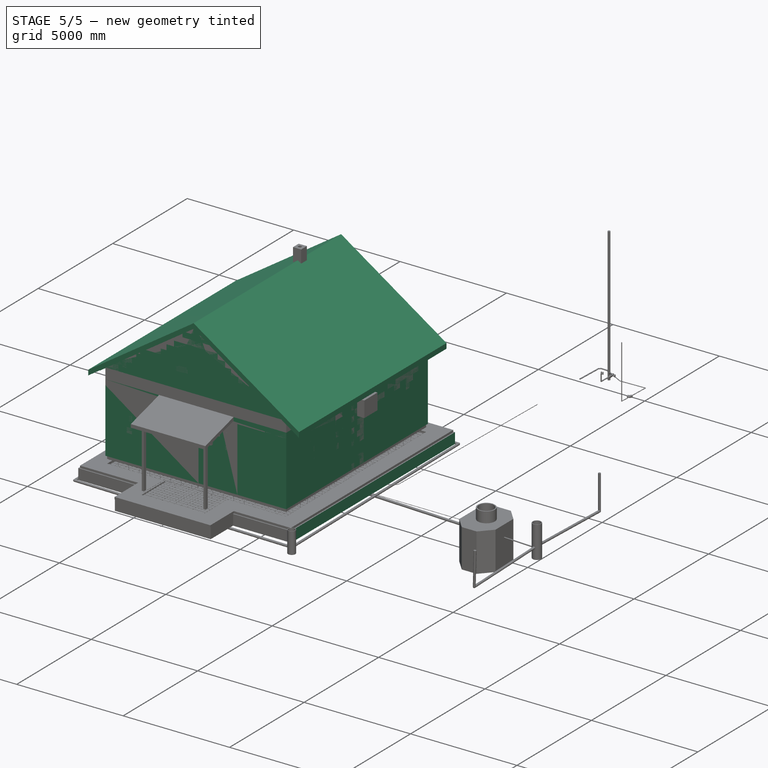
[diagram: stage 5 of 5 — iso view after this stage's code; geometry added in this stage tinted green]
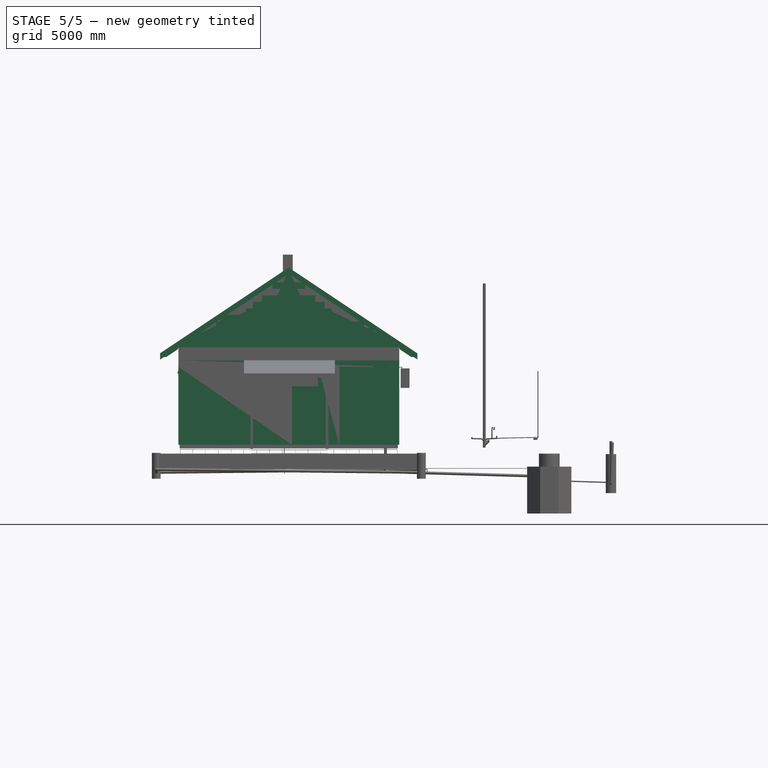
[diagram: stage 5 of 5 — front view after this stage's code; geometry added in this stage tinted green]
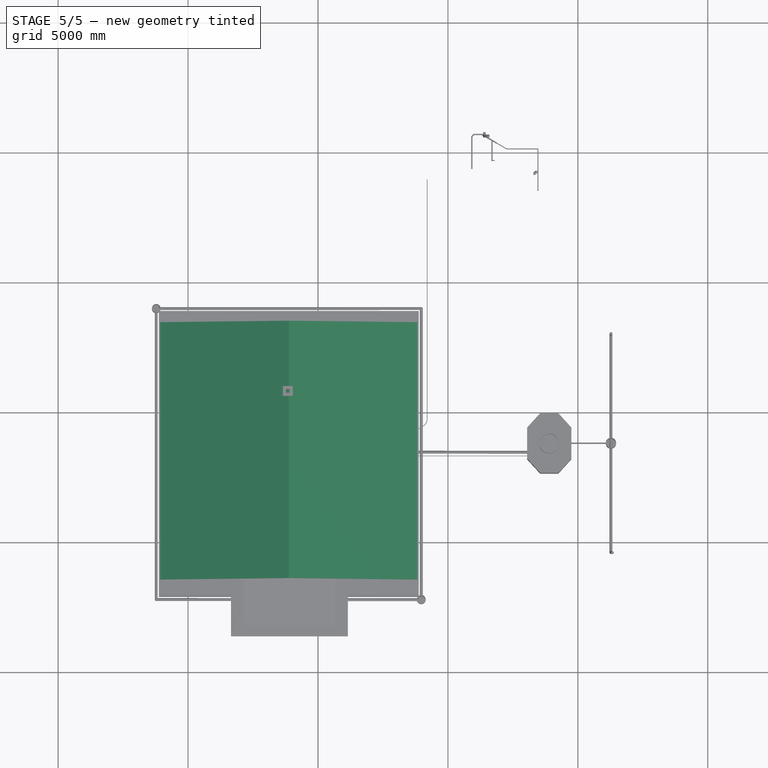
[diagram: stage 5 of 5 — top view after this stage's code; geometry added in this stage tinted green]
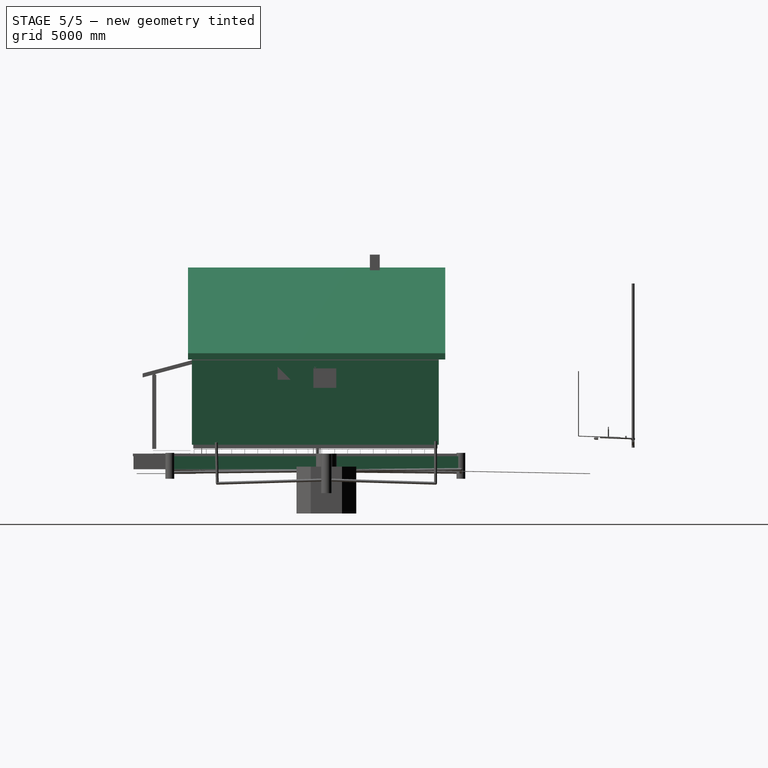
[diagram: stage 5 of 5 — right view after this stage's code; geometry added in this stage tinted green]
FEATURE [Part::Extrusion] Extrude043  label="Водогрей001"
  Base = -> Face
  Dir = (0,0,1)
  DirMode = 0
  FaceMakerClass = Part::FaceMakerBullseye
  LengthFwd = 1100
  LengthRev = 0
  Solid = false
  Symmetric = false
FEATURE [Part::Extrusion] Extrude045  label="умывальник002"
  Base = -> Face001
  Dir = (0,0,1)
  DirMode = 0
  FaceMakerClass = Part::FaceMakerBullseye
  LengthFwd = 200
  LengthRev = 0
  Solid = false
  Symmetric = false
FEATURE [Part::Part2DObjectPython] DWire002  # Draft 2D object (typed FeaturePython)
  ChamferSize = 0
  Closed = true
  End = (5250,3000,376)
  FilletRadius = 0
  Length = 1202.35
  MakeFace = false
  Placement = pos=(7948.82,4699.32,-124) rot=(0,0,-1;1.5708rad)
  Points = (4) [(1299.32,-2698.82,500),(1299.32,-2497.64,500),(1699.32,-2497.64,500),(1699.32,-2698.82,500)]
  Start = (5250,3400,376)
  Subdivisions = 0
FEATURE [Part::Extrusion] Extrude046  label="унитаз002"
  Base = -> Face002
  Dir = (0,0,-1)
  DirMode = 0
  FaceMakerClass = Part::FaceMakerBullseye
  LengthFwd = 400
  LengthRev = 0
  Solid = true
  Symmetric = false
FEATURE [Part::Extrusion] Extrude047  label="унитаз003"
  Base = -> DWire002
  Dir = (0,0,1)
  DirMode = 0
  FaceMakerClass = Part::FaceMakerBullseye
  LengthFwd = 350
  LengthRev = 0
  Solid = true
  Symmetric = false
FEATURE [Part::Fuse] Fusion002  label="унитаз001"
  Base = -> Extrude046
  Tool = -> Extrude047
FEATURE [App::DocumentObjectGroup] Group010  label="Унитаз"
  Group = -> [Ellipse,Face002,DWire002,Fusion002]
FEATURE [Part::Part2DObjectPython] Rectangle361  label="кух.зона"  # Draft 2D object (typed FeaturePython)
  ChamferSize = 0
  Columns = 1
  FilletRadius = 0
  Height = 3000
  Length = 700
  MakeFace = false
  Placement = pos=(7050,3800,0) rot=(0,0,1;0rad)
  Rows = 1
FEATURE [Part::Part2DObjectPython] Rectangle362  label="проём_032"  # Draft 2D object (typed FeaturePython)
  ChamferSize = 0
  Columns = 1
  FilletRadius = 0
  Height = 100
  Length = 700
  MakeFace = true
  Placement = pos=(2100,2500,0) rot=(0,0,1;1.5708rad)
  Rows = 1
FEATURE [Part::Part2DObjectPython] Rectangle363  label="проём_033"  # Draft 2D object (typed FeaturePython)
  ChamferSize = 0
  Columns = 1
  FilletRadius = 0
  Height = 100
  Length = 900
  MakeFace = true
  Placement = pos=(4050,350,0) rot=(0,0,1;0rad)
  Rows = 1
FEATURE [Part::Part2DObjectPython] Rectangle364  label="проём_034"  # Draft 2D object (typed FeaturePython)
  ChamferSize = 0
  Columns = 1
  FilletRadius = 0
  Height = 375
  Length = 500
  MakeFace = true
  Placement = pos=(8125,1925,0) rot=(0,0,1;1.5708rad)
  Rows = 1
FEATURE [Part::Part2DObjectPython] Rectangle365  label="проём_035"  # Draft 2D object (typed FeaturePython)
  ChamferSize = 0
  Columns = 1
  FilletRadius = 0
  Height = 375
  Length = 1000
  MakeFace = true
  Placement = pos=(4000,-1375,0) rot=(0,0,1;0rad)
  Rows = 1
FEATURE [Part::Part2DObjectPython] Rectangle367  label="проём_036"  # Draft 2D object (typed FeaturePython)
  ChamferSize = 0
  Columns = 1
  FilletRadius = 0
  Height = 800
  Length = 100
  MakeFace = true
  Placement = pos=(3000,2300,0) rot=(0,0,1;1.5708rad)
  Rows = 1
FEATURE [Part::Part2DObjectPython] Rectangle372  label="проём_058"  # Draft 2D object (typed FeaturePython)
  ChamferSize = 0
  Columns = 1
  FilletRadius = 0
  Height = 1275
  Length = 150
  MakeFace = true
  Placement = pos=(3150,5024.32,0) rot=(0,0,1;0rad)
  Rows = 1
FEATURE [Part::Part2DObjectPython] Rectangle374  label="проём_038"  # Draft 2D object (typed FeaturePython)
  ChamferSize = 0
  Columns = 1
  FilletRadius = 0
  Height = 1350
  Length = 375
  MakeFace = true
  Placement = pos=(7175,-1375,0) rot=(0,0,1;1.5708rad)
  Rows = 1
FEATURE [Part::Part2DObjectPython] Rectangle375  label="проём_039"  # Draft 2D object (typed FeaturePython)
  ChamferSize = 0
  Columns = 1
  FilletRadius = 0
  Height = 375
  Length = 1350
  MakeFace = true
  Placement = pos=(-3.865e-12,825,0) rot=(0,0,1;1.5708rad)
  Rows = 1
FEATURE [Part::Part2DObjectPython] Rectangle376  label="проём_040"  # Draft 2D object (typed FeaturePython)
  ChamferSize = 0
  Columns = 1
  FilletRadius = 0
  Height = 375
  Length = 1350
  MakeFace = true
  Placement = pos=(4575,7750,0) rot=(0,0,1;0rad)
  Rows = 1
FEATURE [Part::Part2DObjectPython] Rectangle377  label="проём_001"  # Draft 2D object (typed FeaturePython)
  ChamferSize = 0
  Columns = 1
  FilletRadius = 0
  Height = 500
  Length = 375
  MakeFace = true
  Placement = pos=(-375,2800,0) rot=(0,0,1;0rad)
  Rows = 1
FEATURE [Part::Part2DObjectPython] Rectangle381  label="дымоход"  # Draft 2D object (typed FeaturePython)
  ChamferSize = 0
  Columns = 1
  FilletRadius = 0
  Height = 380
  Length = 380
  MakeFace = false
  Placement = pos=(4028.98,5471.82,0) rot=(0,0,1;1.5708rad)
  Rows = 1
FEATURE [Part::Part2DObjectPython] Wire060  label="стена_001"  # Draft 2D object (typed FeaturePython)
  ChamferSize = 0
  Closed = true
  End = (5925,7750,0)
  FilletRadius = 0
  Length = 24300
  MakeFace = true
  Placement = pos=(-375,6425,0) rot=(0,0,1;0rad)
  Points = (14) [(6300,1700,0),(8500,1700,0),(8500,-4000,0),(8125,-4000,0),(8125,-2825,0),(5575,-2825,0),(5575,-3875,0),(5475,-3875,0),(5475,-2825,0),(4925,-2825,0),+4 more]
  Start = (5925,8125,0)
  Subdivisions = 0
FEATURE [Part::Part2DObjectPython] Wire061  label="стена_067"  # Draft 2D object (typed FeaturePython)
  ChamferSize = 0
  Closed = true
  End = (2800,8125,0)
  FilletRadius = 0
  Length = 7201.36
  MakeFace = true
  Placement = pos=(3175,8125.77,0) rot=(0,0,1;0rad)
  Points = (8) [(1400,-0.773438,0),(1400,-375.773,0),(125,-375.773,0),(125,-1826.45,0),(-25,-1826.45,0),(-25,-375.773,0),(-375,-375.773,0),(-375,-0.773438,0)]
  Start = (4575,8125,0)
  Subdivisions = 0
FEATURE [Part::Part2DObjectPython] Wire062  label="стена_068"  # Draft 2D object (typed FeaturePython)
  ChamferSize = 0
  Closed = true
  End = (7750,1925,0)
  FilletRadius = 0
  Length = 14600
  MakeFace = true
  Placement = pos=(8125,3700,0) rot=(0,0,1;0rad)
  Points = (14) [(0,-1775,0),(0,-5075,0),(-950,-5075,0),(-950,-4700,0),(-375,-4700,0),(-375,-2200,0),(-2925,-2200,0),(-2925,-2350,0),(-3025,-2350,0),(-3025,-1850,0),+4 more]
  Start = (8125,1925,0)
  Subdivisions = 0
FEATURE [Part::Part2DObjectPython] Wire063  label="стена_069"  # Draft 2D object (typed FeaturePython)
  ChamferSize = 0
  Closed = true
  End = (5825,-1000,0)
  FilletRadius = 0
  Length = 5800
  MakeFace = true
  Placement = pos=(8125,1325,0) rot=(0,0,1;0rad)
  Points = (12) [(-2300,-2700,0),(-3125,-2700,0),(-3125,-2325,0),(-3025,-2325,0),(-3025,-975,0),(-3175,-975,0),(-3175,-875,0),(-3025,-875,0),(-3025,-775,0),+3 more]
  Start = (5825,-1375,0)
  Subdivisions = 0
FEATURE [Part::Part2DObjectPython] Wire064  label="стена_070"  # Draft 2D object (typed FeaturePython)
  ChamferSize = 0
  Closed = true
  End = (-375,-1375,0)
  FilletRadius = 0
  Length = 21850
  MakeFace = true
  Placement = pos=(3575,-475,0) rot=(0,0,1;0rad)
  Points = (16) [(425,-900,0),(425,-525,0),(-325,-525,0),(-325,825,0),(475,825,0),(475,925,0),(-325,925,0),(-325,2875,0),(-575,2875,0),(-575,2775,0),(-425,2775,0),+5 more]
  Start = (4000,-1375,0)
  Subdivisions = 0
FEATURE [Part::Part2DObjectPython] Wire066  label="стена_072"  # Draft 2D object (typed FeaturePython)
  ChamferSize = 0
  Closed = true
  End = (-1.819e-12,3300,0)
  FilletRadius = 0
  Length = 18500
  MakeFace = true
  Placement = pos=(1325,-5.29e-14,0) rot=(0,0,1;0rad)
  Points = (14) [(-1700,3300,0),(-1700,8125,0),(125,8125,0),(125,7750,0),(-1325,7750,0),(-1325,3800,0),(875,3800,0),(875,3600,0),(775,3600,0),(775,3200,0),+4 more]
  Start = (-375,3300,0)
  Subdivisions = 0
FEATURE [Part::FeaturePython] Wall030  label="стена_105"  # Arch/BIM object (typed FeaturePython)
  Align = 2
  Base = -> Wire060
  BlockHeight = 0
  BlockLength = 0
  CountBroken = 0
  CountEntire = 0
  Face = 0
  Height = 3000
  HorizontalArea = 3.56688e+06
  IfcRole = 156
  Joint = 0
  Length = 0
  MakeBlocks = false
  MoveWithHost = false
  Normal = (0,0,0)
  OffsetFirst = 0
  OffsetSecond = 0
  PerimeterLength = 24300
  Placement = pos=(0,0,-90) rot=(0,0,1;0rad)
  VerticalArea = 72900000
  Width = 200
FEATURE [Part::FeaturePython] Wall031  label="стена_106"  # Arch/BIM object (typed FeaturePython)
  Align = 2
  Base = -> Wire061
  BlockHeight = 0
  BlockLength = 0
  CountBroken = 0
  CountEntire = 0
  Face = 0
  Height = 3000
  HorizontalArea = 883227
  IfcRole = 156
  Joint = 0
  Length = 0
  MakeBlocks = false
  MoveWithHost = false
  Normal = (0,0,0)
  OffsetFirst = 0
  OffsetSecond = 0
  PerimeterLength = 7201.36
  Placement = pos=(0,0,-90) rot=(0,0,1;0rad)
  VerticalArea = 2.16041e+07
  Width = 200
FEATURE [Part::FeaturePython] Wall032  label="стена_110"  # Arch/BIM object (typed FeaturePython)
  Align = 2
  Base = -> Wire062
  BlockHeight = 0
  BlockLength = 0
  CountBroken = 0
  CountEntire = 0
  Face = 0
  Height = 3000
  HorizontalArea = 1758125
  IfcRole = 156
  Joint = 0
  Length = 0
  MakeBlocks = false
  MoveWithHost = false
  Normal = (0,0,0)
  OffsetFirst = 0
  OffsetSecond = 0
  PerimeterLength = 14600
  Placement = pos=(0,0,-90) rot=(0,0,1;0rad)
  VerticalArea = 43800000
  Width = 200
FEATURE [Part::FeaturePython] Wall033  label="стена_111"  # Arch/BIM object (typed FeaturePython)
  Align = 2
  Base = -> Wire063
  BlockHeight = 0
  BlockLength = 0
  CountBroken = 0
  CountEntire = 0
  Face = 0
  Height = 3000
  HorizontalArea = 479375
  IfcRole = 156
  Joint = 0
  Length = 0
  MakeBlocks = false
  MoveWithHost = false
  Normal = (0,0,0)
  OffsetFirst = 0
  OffsetSecond = 0
  PerimeterLength = 5800
  Placement = pos=(0,0,-90) rot=(0,0,1;0rad)
  VerticalArea = 17400000
  Width = 200
FEATURE [Part::FeaturePython] Wall034  label="стена_107"  # Arch/BIM object (typed FeaturePython)
  Align = 2
  Base = -> Wire064
  BlockHeight = 0
  BlockLength = 0
  CountBroken = 0
  CountEntire = 0
  Face = 0
  Height = 3000
  HorizontalArea = 2.76e+06
  IfcRole = 156
  Joint = 0
  Length = 0
  MakeBlocks = false
  MoveWithHost = false
  Normal = (0,0,0)
  OffsetFirst = 0
  OffsetSecond = 0
  PerimeterLength = 21850
  Placement = pos=(0,0,-90) rot=(0,0,1;0rad)
  VerticalArea = 6.555e+07
  Width = 200
FEATURE [Part::FeaturePython] Wall036  label="стена_108"  # Arch/BIM object (typed FeaturePython)
  Align = 2
  Base = -> Wire066
  BlockHeight = 0
  BlockLength = 0
  CountBroken = 0
  CountEntire = 0
  Face = 0
  Height = 3000
  HorizontalArea = 2.83313e+06
  IfcRole = 156
  Joint = 0
  Length = 0
  MakeBlocks = false
  MoveWithHost = false
  Normal = (0,0,0)
  OffsetFirst = 0
  OffsetSecond = 0
  PerimeterLength = 18500
  Placement = pos=(0,0,-90) rot=(0,0,1;0rad)
  VerticalArea = 5.55e+07
  Width = 200
FEATURE [Part::FeaturePython] Wall037  label="стена_под_окном_014"  # Arch/BIM object (typed FeaturePython)
  Align = 2
  Base = -> Rectangle364
  BlockHeight = 0
  BlockLength = 0
  CountBroken = 0
  CountEntire = 0
  Face = 0
  Height = 2000
  HorizontalArea = 187500
  IfcRole = 156
  Joint = 0
  Length = 0
  MakeBlocks = false
  MoveWithHost = false
  Normal = (0,0,0)
  OffsetFirst = 0
  OffsetSecond = 0
  PerimeterLength = 1750
  Placement = pos=(0,0,-90) rot=(0,0,1;0rad)
  VerticalArea = 3.5e+06
  Width = 200
FEATURE [Part::FeaturePython] Wall038  label="стена_под_окном_015"  # Arch/BIM object (typed FeaturePython)
  Align = 2
  Base = -> Rectangle374
  BlockHeight = 0
  BlockLength = 0
  CountBroken = 0
  CountEntire = 0
  Face = 0
  Height = 1000
  HorizontalArea = 506250
  IfcRole = 156
  Joint = 0
  Length = 0
  MakeBlocks = false
  MoveWithHost = false
  Normal = (0,0,0)
  OffsetFirst = 0
  OffsetSecond = 0
  PerimeterLength = 3450
  Placement = pos=(0,0,-90) rot=(0,0,1;0rad)
  VerticalArea = 3450000
  Width = 200
FEATURE [Part::FeaturePython] Wall039  label="стена_под_окном_016"  # Arch/BIM object (typed FeaturePython)
  Align = 2
  Base = -> Rectangle377
  BlockHeight = 0
  BlockLength = 0
  CountBroken = 0
  CountEntire = 0
  Face = 0
  Height = 2000
  HorizontalArea = 187500
  IfcRole = 156
  Joint = 0
  Length = 0
  MakeBlocks = false
  MoveWithHost = false
  Normal = (0,0,0)
  OffsetFirst = 0
  OffsetSecond = 0
  PerimeterLength = 1750
  Placement = pos=(0,0,-90) rot=(0,0,1;0rad)
  VerticalArea = 3500000
  Width = 200
FEATURE [Part::FeaturePython] Wall040  label="стена_под_окном_013"  # Arch/BIM object (typed FeaturePython)
  Align = 2
  Base = -> Rectangle376
  BlockHeight = 0
  BlockLength = 0
  CountBroken = 0
  CountEntire = 0
  Face = 0
  Height = 1000
  HorizontalArea = 506250
  IfcRole = 156
  Joint = 0
  Length = 0
  MakeBlocks = false
  MoveWithHost = false
  Normal = (0,0,0)
  OffsetFirst = 0
  OffsetSecond = 0
  PerimeterLength = 3450
  Placement = pos=(0,0,-90) rot=(0,0,1;0rad)
  VerticalArea = 3450000
  Width = 200
FEATURE [Part::FeaturePython] Wall041  label="стена_под_окном_001"  # Arch/BIM object (typed FeaturePython)
  Align = 2
  Base = -> Rectangle375
  BlockHeight = 0
  BlockLength = 0
  CountBroken = 0
  CountEntire = 0
  Face = 0
  Height = 1000
  HorizontalArea = 506250
  IfcRole = 156
  Joint = 0
  Length = 0
  MakeBlocks = false
  MoveWithHost = false
  Normal = (0,0,0)
  OffsetFirst = 0
  OffsetSecond = 0
  PerimeterLength = 3450
  Placement = pos=(0,0,-90) rot=(0,0,1;0rad)
  VerticalArea = 3450000
  Width = 200
FEATURE [Part::FeaturePython] Wall042  label="стена_над_окном_014"  # Arch/BIM object (typed FeaturePython)
  Align = 2
  Base = -> Rectangle374
  BlockHeight = 0
  BlockLength = 0
  CountBroken = 0
  CountEntire = 0
  Face = 0
  Height = 500
  HorizontalArea = 506250
  IfcRole = 156
  Joint = 0
  Length = 0
  MakeBlocks = false
  MoveWithHost = false
  Normal = (0,0,0)
  OffsetFirst = 0
  OffsetSecond = 0
  PerimeterLength = 3450
  Placement = pos=(0,0,2410) rot=(0,0,1;0rad)
  VerticalArea = 1725000
  Width = 200
FEATURE [Part::FeaturePython] Wall043  label="стена_над_окном_015"  # Arch/BIM object (typed FeaturePython)
  Align = 2
  Base = -> Rectangle364
  BlockHeight = 0
  BlockLength = 0
  CountBroken = 0
  CountEntire = 0
  Face = 0
  Height = 500
  HorizontalArea = 187500
  IfcRole = 156
  Joint = 0
  Length = 0
  MakeBlocks = false
  MoveWithHost = false
  Normal = (0,0,0)
  OffsetFirst = 0
  OffsetSecond = 0
  PerimeterLength = 1750
  Placement = pos=(0,0,2410) rot=(0,0,1;0rad)
  VerticalArea = 875000
  Width = 200
FEATURE [Part::FeaturePython] Wall044  label="стена_над_окном_017"  # Arch/BIM object (typed FeaturePython)
  Align = 2
  Base = -> Rectangle377
  BlockHeight = 0
  BlockLength = 0
  CountBroken = 0
  CountEntire = 0
  Face = 0
  Height = 500
  HorizontalArea = 187500
  IfcRole = 156
  Joint = 0
  Length = 0
  MakeBlocks = false
  MoveWithHost = false
  Normal = (0,0,0)
  OffsetFirst = 0
  OffsetSecond = 0
  PerimeterLength = 1750
  Placement = pos=(0,0,2410) rot=(0,0,1;0rad)
  VerticalArea = 875000
  Width = 200
FEATURE [Part::FeaturePython] Wall045  label="стена_над_окном_018"  # Arch/BIM object (typed FeaturePython)
  Align = 2
  Base = -> Rectangle376
  BlockHeight = 0
  BlockLength = 0
  CountBroken = 0
  CountEntire = 0
  Face = 0
  Height = 500
  HorizontalArea = 506250
  IfcRole = 156
  Joint = 0
  Length = 0
  MakeBlocks = false
  MoveWithHost = false
  Normal = (0,0,0)
  OffsetFirst = 0
  OffsetSecond = 0
  PerimeterLength = 3450
  Placement = pos=(0,0,2410) rot=(0,0,1;0rad)
  VerticalArea = 1725000
  Width = 200
FEATURE [Part::FeaturePython] Wall046  label="стена_над_окном_016"  # Arch/BIM object (typed FeaturePython)
  Align = 2
  Base = -> Rectangle375
  BlockHeight = 0
  BlockLength = 0
  CountBroken = 0
  CountEntire = 0
  Face = 0
  Height = 500
  HorizontalArea = 506250
  IfcRole = 156
  Joint = 0
  Length = 0
  MakeBlocks = false
  MoveWithHost = false
  Normal = (0,0,0)
  OffsetFirst = 0
  OffsetSecond = 0
  PerimeterLength = 3450
  Placement = pos=(0,0,2410) rot=(0,0,1;0rad)
  VerticalArea = 1725000
  Width = 200
FEATURE [Part::Part2DObjectPython] Rectangle382  label="проём_041"  # Draft 2D object (typed FeaturePython)
  ChamferSize = 0
  Columns = 1
  FilletRadius = 0
  Height = 1100
  Length = 200
  MakeFace = true
  Placement = pos=(4550,3600,0) rot=(0,0,1;1.5708rad)
  Rows = 1
FEATURE [Part::FeaturePython] Wall047  label="стена_над_дверью_001"  # Arch/BIM object (typed FeaturePython)
  Align = 2
  Base = -> Rectangle382
  BlockHeight = 0
  BlockLength = 0
  CountBroken = 0
  CountEntire = 0
  Face = 0
  Height = 750
  HorizontalArea = 220000
  IfcRole = 156
  Joint = 0
  Length = 0
  MakeBlocks = false
  MoveWithHost = false
  Normal = (0,0,0)
  OffsetFirst = 0
  OffsetSecond = 0
  PerimeterLength = 2600
  Placement = pos=(0,0,2160) rot=(0,0,1;0rad)
  VerticalArea = 1950000
  Width = 200
FEATURE [Part::FeaturePython] Wall049  label="стена_над_дверью_017"  # Arch/BIM object (typed FeaturePython)
  Align = 2
  Base = -> Rectangle367
  BlockHeight = 0
  BlockLength = 0
  CountBroken = 0
  CountEntire = 0
  Face = 0
  Height = 750
  HorizontalArea = 80000
  IfcRole = 156
  Joint = 0
  Length = 0
  MakeBlocks = false
  MoveWithHost = false
  Normal = (0,0,0)
  OffsetFirst = 0
  OffsetSecond = 0
  PerimeterLength = 1800
  Placement = pos=(0,0,2160) rot=(0,0,1;0rad)
  VerticalArea = 1350000
  Width = 200
FEATURE [Part::FeaturePython] Wall050  label="стена_над_дверью_019"  # Arch/BIM object (typed FeaturePython)
  Align = 2
  Base = -> Rectangle363
  BlockHeight = 0
  BlockLength = 0
  CountBroken = 0
  CountEntire = 0
  Face = 0
  Height = 750
  HorizontalArea = 90000
  IfcRole = 156
  Joint = 0
  Length = 0
  MakeBlocks = false
  MoveWithHost = false
  Normal = (0,0,0)
  OffsetFirst = 0
  OffsetSecond = 0
  PerimeterLength = 2000
  Placement = pos=(0,0,2160) rot=(0,0,1;0rad)
  VerticalArea = 1.5e+06
  Width = 200
FEATURE [Part::FeaturePython] Wall051  label="стена_над_дверью_018"  # Arch/BIM object (typed FeaturePython)
  Align = 2
  Base = -> Rectangle365
  BlockHeight = 0
  BlockLength = 0
  CountBroken = 0
  CountEntire = 0
  Face = 0
  Height = 750
  HorizontalArea = 375000
  IfcRole = 156
  Joint = 0
  Length = 0
  MakeBlocks = false
  MoveWithHost = false
  Normal = (0,0,0)
  OffsetFirst = 0
  OffsetSecond = 0
  PerimeterLength = 2750
  Placement = pos=(0,0,2160) rot=(0,0,1;0rad)
  VerticalArea = 2.0625e+06
  Width = 200
FEATURE [Part::FeaturePython] Wall052  label="стена_над_дверью_020"  # Arch/BIM object (typed FeaturePython)
  Align = 2
  Base = -> Rectangle362
  BlockHeight = 0
  BlockLength = 0
  CountBroken = 0
  CountEntire = 0
  Face = 0
  Height = 750
  HorizontalArea = 70000
  IfcRole = 156
  Joint = 0
  Length = 0
  MakeBlocks = false
  MoveWithHost = false
  Normal = (0,0,0)
  OffsetFirst = 0
  OffsetSecond = 0
  PerimeterLength = 1600
  Placement = pos=(0,0,2160) rot=(0,0,1;0rad)
  VerticalArea = 1.2e+06
  Width = 200
FEATURE [Part::Part2DObjectPython] Rectangle387  label="проём_042"  # Draft 2D object (typed FeaturePython)
  ChamferSize = 0
  Columns = 1
  FilletRadius = 0
  Height = 1825
  Length = 560
  MakeFace = false
  Placement = pos=(3282.5,175,0) rot=(0,0,1;0rad)
  Rows = 1
FEATURE [Part::Part2DObjectPython] Wire068  label="балка-сечение_002"  # Draft 2D object (typed FeaturePython)
  ChamferSize = 0
  Closed = true
  End = (50,7900,2930)
  FilletRadius = 0
  Length = 740
  MakeFace = false
  Placement = pos=(50,7900,2910) rot=(1,0,0;1.5708rad)
  Points = (9) [(0,0,0),(120,0,-3.67394e-15),(120,20,7.66952e-16),(100,20,1.37928e-15),(100,250,5.24495e-14),(20,250,5.48988e-14),(20,20,3.82857e-15),+2 more]
  Start = (50,7900,2910)
  Subdivisions = 0
FEATURE [Part::FeaturePython] Structure175  label="балка_L4200_001"  # Arch/BIM object (typed FeaturePython)
  Base = -> Wire068
  FaceMaker = 0
  Height = 4200
  HorizontalArea = 504000
  IfcRole = 0
  Length = 0
  MoveWithHost = false
  Nodes = (2) [(110,7900,3030.58),(110,7900,7230.58)]
  NodesOffset = 0
  Normal = (0,0,0)
  PerimeterLength = 0
  VerticalArea = 2141600
  Width = 100
FEATURE [Part::FeaturePython] Array013  label="массив балок_002"  # Draft array (typed FeaturePython)
  Angle = 360
  ArrayType = 0
  Axis = (0,0,1)
  Base = -> Structure175
  Center = (0,0,0)
  Fuse = false
  IntervalAxis = (0,0,0)
  IntervalX = (680,0,0)
  IntervalY = (0,0,0)
  IntervalZ = (0,0,0)
  NumberPolar = 1
  NumberX = 12
  NumberY = 0
  NumberZ = 0
FEATURE [Part::Part2DObjectPython] Rectangle388  label="внеш_контур_9500х8500"  # Draft 2D object (typed FeaturePython)
  ChamferSize = 0
  Columns = 1
  FilletRadius = 0
  Height = 9500
  Length = 8500
  MakeFace = false
  Placement = pos=(-375,-1375,2910) rot=(0,0,1;0rad)
  Rows = 1
FEATURE [Part::FeaturePython] Structure177  label="проём_043"  # Arch/BIM object (typed FeaturePython)
  Base = -> Rectangle387
  FaceMaker = 0
  Height = 500
  HorizontalArea = 1022000
  IfcRole = 0
  Length = 0
  MoveWithHost = false
  Nodes = (2) [(5450,5550,0),(5450,5550,500)]
  NodesOffset = 0
  Normal = (0,0,0)
  PerimeterLength = 4770
  Placement = pos=(0,0,2910) rot=(0,0,1;0rad)
  VerticalArea = 2.385e+06
  Width = 100
FEATURE [Part::FeaturePython] Structure178  label="проём_044"  # Arch/BIM object (typed FeaturePython)
  Base = -> Rectangle381
  FaceMaker = 0
  Height = 500
  HorizontalArea = 144400
  IfcRole = 0
  Length = 0
  MoveWithHost = false
  Nodes = (2) [(3838.98,5661.82,0),(3838.98,5661.82,500)]
  NodesOffset = 0
  Normal = (0,0,0)
  PerimeterLength = 1520
  Placement = pos=(0,0,2910) rot=(0,0,1;0rad)
  VerticalArea = 760000
  Width = 100
FEATURE [Part::Part2DObjectPython] Wire069  label="крыша_кромка"  # Draft 2D object (typed FeaturePython)
  ChamferSize = 0
  Closed = true
  End = (8675,8375,3300)
  FilletRadius = 0
  Length = 39000
  MakeFace = false
  Placement = pos=(-275,8000,3300) rot=(0,0,1;0rad)
  Points = (4) [(-650,375,0),(-650,-9525,0),(8950,-9525,0),(8950,375,0)]
  Start = (-925,8375,3300)
  Subdivisions = 0
FEATURE [Part::FeaturePython] Roof002  label="Крыша"  # Arch/BIM object (typed FeaturePython)
  Angles = [33.69,90,33.69,90]
  Base = -> Wire069
  BorderLength = 43596.6
  Face = 2
  Flip = false
  Heights = [3199.99,3199.99,3199.99,3199.99]
  HorizontalArea = 9.801e+07
  IdRel = [0,0,0,0]
  IfcRole = 111
  MoveWithHost = false
  Overhang = [150,0,150,0]
  PerimeterLength = 39600
  Placement = pos=(0,0,-10) rot=(0,0,1;0rad)
  RidgeLength = 9900
  Runs = [4800,0,4800,0]
  Thickness = [200,144.25,200,144.25]
  VerticalArea = 9.51865e+06
FEATURE [Part::Part2DObjectPython] Rectangle395  label="проём_045"  # Draft 2D object (typed FeaturePython)
  ChamferSize = 0
  Columns = 1
  FilletRadius = 0
  Height = 1350
  Length = 375
  MakeFace = true
  Placement = pos=(1450,8125,0) rot=(0,0,-1;1.5708rad)
  Rows = 1
FEATURE [Part::FeaturePython] Wall060  label="стена_под_окном_017"  # Arch/BIM object (typed FeaturePython)
  Align = 2
  Base = -> Rectangle395
  BlockHeight = 0
  BlockLength = 0
  CountBroken = 0
  CountEntire = 0
  Face = 0
  Height = 1000
  HorizontalArea = 506250
  IfcRole = 156
  Joint = 0
  Length = 0
  MakeBlocks = false
  MoveWithHost = false
  Normal = (0,0,0)
  OffsetFirst = 0
  OffsetSecond = 0
  PerimeterLength = 3450
  Placement = pos=(0,0,-90) rot=(0,0,1;0rad)
  VerticalArea = 3450000
  Width = 200
FEATURE [Part::FeaturePython] Wall061  label="стена_над_окном_019"  # Arch/BIM object (typed FeaturePython)
  Align = 2
  Base = -> Rectangle395
  BlockHeight = 0
  BlockLength = 0
  CountBroken = 0
  CountEntire = 0
  Face = 0
  Height = 500
  HorizontalArea = 506250
  IfcRole = 156
  Joint = 0
  Length = 0
  MakeBlocks = false
  MoveWithHost = false
  Normal = (0,0,0)
  OffsetFirst = 0
  OffsetSecond = 0
  PerimeterLength = 3450
  Placement = pos=(0,0,2410) rot=(0,0,1;0rad)
  VerticalArea = 1725000
  Width = 200
FEATURE [Part::Part2DObjectPython] Line277  label="Line278"  # Draft 2D object (typed FeaturePython)
  ChamferSize = 0
  Closed = false
  End = (3845,175,3875)
  FilletRadius = 0
  Length = 3735.05
  MakeFace = false
  Points = (2) [(3845,2400,875),(3845,175,3875)]
  Start = (3845,2400,875)
  Subdivisions = 0
FEATURE [Part::FeaturePython] Rail  # Arch/BIM object (typed FeaturePython)
  Base = -> Line277
  Diameter = 40
  HorizontalArea = 0
  IfcRole = 98
  Length = 3735.05
  MoveWithHost = false
  OffsetEnd = 0
  OffsetStart = 0
  PerimeterLength = 0
  VerticalArea = 0
FEATURE [Part::Part2DObjectPython] Line278  label="Line279"  # Draft 2D object (typed FeaturePython)
  ChamferSize = 0
  Closed = false
  End = (3280,2400,875)
  FilletRadius = 0
  Length = 3735.05
  MakeFace = false
  Points = (2) [(3280,175,3875),(3280,2400,875)]
  Start = (3280,175,3875)
  Subdivisions = 0
FEATURE [Part::FeaturePython] Rail001  # Arch/BIM object (typed FeaturePython)
  Base = -> Line278
  Diameter = 40
  HorizontalArea = 0
  IfcRole = 98
  Length = 3735.05
  MoveWithHost = false
  OffsetEnd = 0
  OffsetStart = 0
  PerimeterLength = 0
  VerticalArea = 0
FEATURE [App::DocumentObjectGroup] Group038  label="кровать_2_сп_004"
  Group = -> [Extrude053,Extrude051,Extrude052]
FEATURE [Part::FeaturePython] Structure185  label="кух.зона 002"  # Arch/BIM object (typed FeaturePython)
  Base = -> Rectangle361
  FaceMaker = 0
  Height = 900
  HorizontalArea = 2.1e+06
  IfcRole = 0
  Length = 0
  MoveWithHost = false
  Nodes = (2) [(-4700,-6400,0),(-4700,-6400,800)]
  NodesOffset = 0
  Normal = (0,0,0)
  PerimeterLength = 7400
  VerticalArea = 6660000
  Width = 100
FEATURE [Part::FeaturePython] Structure188  label="дверь"  # Arch/BIM object (typed FeaturePython)
  Base = -> Rectangle365
  FaceMaker = 0
  Height = 2250
  HorizontalArea = 375000
  IfcRole = 0
  Length = 0
  MoveWithHost = false
  Nodes = (2) [(-4225,7937.5,0),(-4225,7937.5,2250)]
  NodesOffset = 0
  Normal = (0,0,0)
  PerimeterLength = 2750
  Placement = pos=(0,0,-90) rot=(0,0,1;0rad)
  VerticalArea = 6.1875e+06
  Width = 100
FEATURE [Part::FeaturePython] Structure191  label="окно_мал_001"  # Arch/BIM object (typed FeaturePython)
  Base = -> Rectangle364
  FaceMaker = 0
  Height = 500
  HorizontalArea = 187500
  IfcRole = 0
  Length = 0
  MoveWithHost = false
  Nodes = (2) [(-2175,7937.5,0),(-2175,7937.5,500)]
  NodesOffset = 0
  Normal = (0,0,0)
  PerimeterLength = 1750
  Placement = pos=(0,0,1910) rot=(0,0,1;0rad)
  VerticalArea = 875000
  Width = 100
FEATURE [Part::FeaturePython] Structure192  label="окно_бол_001"  # Arch/BIM object (typed FeaturePython)
  Base = -> Rectangle374
  FaceMaker = 0
  Height = 1500
  HorizontalArea = 506250
  IfcRole = 0
  Length = 0
  MoveWithHost = false
  Nodes = (2) [(1187.5,6500,0),(1187.5,6500,1500)]
  NodesOffset = 0
  Normal = (0,0,0)
  PerimeterLength = 3450
  Placement = pos=(0,0,910) rot=(0,0,1;0rad)
  VerticalArea = 5175000
  Width = 100
FEATURE [Part::FeaturePython] Structure193  label="окно_бол_016"  # Arch/BIM object (typed FeaturePython)
  Base = -> Rectangle375
  FaceMaker = 0
  Height = 1500
  HorizontalArea = 506250
  IfcRole = 0
  Length = 0
  MoveWithHost = false
  Nodes = (2) [(-2125,-187.5,0),(-2125,-187.5,1500)]
  NodesOffset = 0
  Normal = (0,0,0)
  PerimeterLength = 3450
  Placement = pos=(0,0,910) rot=(0,0,1;0rad)
  VerticalArea = 5175000
  Width = 100
FEATURE [Part::FeaturePython] Structure194  label="окно_бол_015"  # Arch/BIM object (typed FeaturePython)
  Base = -> Rectangle395
  FaceMaker = 0
  Height = 1500
  HorizontalArea = 506250
  IfcRole = 0
  Length = 0
  MoveWithHost = false
  Nodes = (2) [(7937.5,-2125,0),(7937.5,-2125,1500)]
  NodesOffset = 0
  Normal = (0,0,0)
  PerimeterLength = 3450
  Placement = pos=(0,0,910) rot=(0,0,1;0rad)
  VerticalArea = 5175000
  Width = 100
FEATURE [Part::FeaturePython] Structure195  label="окно_мал_002"  # Arch/BIM object (typed FeaturePython)
  Base = -> Rectangle377
  FaceMaker = 0
  Height = 500
  HorizontalArea = 187500
  IfcRole = 0
  Length = 0
  MoveWithHost = false
  Nodes = (2) [(-187.5,3050,0),(-187.5,3050,500)]
  NodesOffset = 0
  Normal = (0,0,0)
  PerimeterLength = 1750
  Placement = pos=(0,0,1910) rot=(0,0,1;0rad)
  VerticalArea = 875000
  Width = 100
FEATURE [Part::FeaturePython] Structure196  label="окно_бол_014"  # Arch/BIM object (typed FeaturePython)
  Base = -> Rectangle376
  FaceMaker = 0
  Height = 1500
  HorizontalArea = 506250
  IfcRole = 0
  Length = 0
  MoveWithHost = false
  Nodes = (2) [(5250,7937.5,0),(5250,7937.5,1500)]
  NodesOffset = 0
  Normal = (0,0,0)
  PerimeterLength = 3450
  Placement = pos=(0,0,910) rot=(0,0,1;0rad)
  VerticalArea = 5175000
  Width = 100
FEATURE [Part::Part2DObjectPython] Wire  label="балка-сечение_003"  # Draft 2D object (typed FeaturePython)
  ChamferSize = 0
  Closed = true
  End = (450,-150,2930)
  FilletRadius = 0
  Length = 740
  MakeFace = false
  Placement = pos=(450,-150,2910) rot=(1,0,0;1.5708rad)
  Points = (9) [(0,0,0),(120,0,-3.67394e-15),(120,20,7.66952e-16),(100,20,1.37928e-15),(100,250,5.24495e-14),(20,250,5.48988e-14),(20,20,3.82857e-15),+2 more]
  Start = (450,-150,2910)
  Subdivisions = 0
FEATURE [Part::FeaturePython] Structure174  label="балка_L4600_001"  # Arch/BIM object (typed FeaturePython)
  Base = -> Wire
  FaceMaker = 0
  Height = 4900
  HorizontalArea = 588000
  IfcRole = 0
  Length = 0
  MoveWithHost = false
  Nodes = (2) [(140,-150,3030.58),(140,-150,-569.423)]
  NodesOffset = 0
  Normal = (0,1,0)
  PerimeterLength = 0
  Placement = pos=(0,-1000,0) rot=(0,0,1;0rad)
  VerticalArea = 2491600
  Width = 100
FEATURE [Part::FeaturePython] Array012  label="массив балок_001"  # Draft array (typed FeaturePython)
  Angle = 360
  ArrayType = 0
  Axis = (0,0,1)
  Base = -> Structure174
  Center = (0,0,0)
  Fuse = false
  IntervalAxis = (0,0,0)
  IntervalX = (680,0,0)
  IntervalY = (0,0,0)
  IntervalZ = (0,0,0)
  NumberPolar = 1
  NumberX = 11
  NumberY = 0
  NumberZ = 0
FEATURE [Part::Box] Box1075  label="БП 625х100х250_110"
  AttacherType = Attacher::AttachEngine3D
  Height = 250
  Length = 625
  Placement = pos=(5025,7750,-90) rot=(0,0,-1;1.5708rad)
  Width = 100
FEATURE [Part::Feature] Box1077  label="БП 625х100х250_112"
  Placement = pos=(5025,7125,-90) rot=(0,0,-1;1.5708rad)
  shape: bbox 100 x 625 x 250 mm, 6 faces (baked)
FEATURE [Part::Feature] Box1078  label="БП 625х100х250_113"
  Placement = pos=(5025,6500,-90) rot=(0,0,-1;1.5708rad)
  shape: bbox 100 x 625 x 250 mm, 6 faces (baked)
FEATURE [Part::Box] Box1081  label="БП 350х100х250_116"
  AttacherType = Attacher::AttachEngine3D
  Height = 250
  Length = 350
  Placement = pos=(5025,5875,-90) rot=(0,0,-1;1.5708rad)
  Width = 100
FEATURE [Part::Box] Box1082  label="БП 175х100х250_116"
  AttacherType = Attacher::AttachEngine3D
  Height = 250
  Length = 175
  Placement = pos=(5750,7750,1910) rot=(0,0,-1;1.5708rad)
  Width = 100
FEATURE [Part::Feature] Box1086  label="БП 625х100х250_120"
  Placement = pos=(7125,5600,-90) rot=(0,0,-1;0rad)
  shape: bbox 625 x 100 x 250 mm, 6 faces (baked)
FEATURE [Part::Box] Box1088  label="БП 425х100х250_122"
  AttacherType = Attacher::AttachEngine3D
  Height = 250
  Length = 425
  Placement = pos=(6700,5600,-90) rot=(0,0,-1;0rad)
  Width = 100
FEATURE [Part::Box] Box1090  label="БП 250х100х250_122"
  AttacherType = Attacher::AttachEngine3D
  Height = 250
  Length = 350
  Placement = pos=(5650,5600,410) rot=(0,0,-1;0rad)
  Width = 100
FEATURE [Part::Box] Box1095  label="БП 150х100х250_120"
  AttacherType = Attacher::AttachEngine3D
  Height = 250
  Length = 150
  Placement = pos=(5850,5600,160) rot=(0,0,-1;0rad)
  Width = 100
FEATURE [Part::Box] Box1097  label="БП 100х100х250_117"
  AttacherType = Attacher::AttachEngine3D
  Height = 250
  Length = 100
  Placement = pos=(5025,4900,-90) rot=(0,0,-1;1.5708rad)
  Width = 100
FEATURE [Part::Feature] Box1099  label="БП 425х100х250_124"
  Placement = pos=(7325,5600,160) rot=(0,0,-1;0rad)
  shape: bbox 425 x 100 x 250 mm, 6 faces (baked)
FEATURE [Part::Feature] Box1100  label="БП 625х100х250_126"
  Placement = pos=(6700,5600,160) rot=(0,0,-1;0rad)
  shape: bbox 625 x 100 x 250 mm, 6 faces (baked)
FEATURE [Part::Feature] Box1101  label="БП 625х100х250_127"
  Placement = pos=(5025,6300,160) rot=(0,0,-1;1.5708rad)
  shape: bbox 100 x 625 x 250 mm, 6 faces (baked)
FEATURE [Part::Feature] Box1102  label="БП 625х100х250_128"
  Placement = pos=(5025,6925,160) rot=(0,0,-1;1.5708rad)
  shape: bbox 100 x 625 x 250 mm, 6 faces (baked)
FEATURE [Part::Box] Box1103  label="БП 450х100х250_117"
  AttacherType = Attacher::AttachEngine3D
  Height = 250
  Length = 475
  Placement = pos=(5750,5075,160) rot=(0,0,-1;1.5708rad)
  Width = 100
FEATURE [Part::Box] Box1104  label="БП 200х100х250_118"
  AttacherType = Attacher::AttachEngine3D
  Height = 250
  Length = 200
  Placement = pos=(5025,7750,160) rot=(0,0,-1;1.5708rad)
  Width = 100
FEATURE [Part::Feature] Box1105  label="БП 625х100х250_129"
  Placement = pos=(5025,7450,410) rot=(0,0,-1;1.5708rad)
  shape: bbox 100 x 625 x 250 mm, 6 faces (baked)
FEATURE [Part::Feature] Box1108  label="БП 625х100х250_132"
  Placement = pos=(5025,6925,660) rot=(0,0,-1;1.5708rad)
  shape: bbox 100 x 625 x 250 mm, 6 faces (baked)
FEATURE [Part::Feature] Box1109  label="БП 625х100х250_133"
  Placement = pos=(7125,5600,410) rot=(0,0,-1;0rad)
  shape: bbox 625 x 100 x 250 mm, 6 faces (baked)
FEATURE [Part::Feature] Box1110  label="БП 625х100х250_134"
  Placement = pos=(5025,6200,410) rot=(0,0,-1;1.5708rad)
  shape: bbox 100 x 625 x 250 mm, 6 faces (baked)
FEATURE [Part::Feature] Box1111  label="БП 625х100х250_135"
  Placement = pos=(5025,6825,410) rot=(0,0,-1;1.5708rad)
  shape: bbox 100 x 625 x 250 mm, 6 faces (baked)
FEATURE [Part::Feature] Box1112  label="БП 625х100х250_136"
  Placement = pos=(5025,5575,410) rot=(0,0,-1;1.5708rad)
  shape: bbox 100 x 625 x 250 mm, 6 faces (baked)
FEATURE [Part::Feature] Box1117  label="БП 625х100х250_138"
  Placement = pos=(5025,5675,660) rot=(0,0,-1;1.5708rad)
  shape: bbox 100 x 625 x 250 mm, 6 faces (baked)
FEATURE [Part::Feature] Box1118  label="БП 375х100х250_117"
  Placement = pos=(5750,4975,410) rot=(0,0,-1;1.5708rad)
  shape: bbox 100 x 375 x 250 mm, 6 faces (baked)
FEATURE [Part::Feature] Box1119  label="БП 150х100х250_121"
  Placement = pos=(5850,5600,660) rot=(0,0,-1;0rad)
  shape: bbox 150 x 100 x 250 mm, 6 faces (baked)
FEATURE [Part::Feature] Box1121  label="БП 625х100х250_139"
  Placement = pos=(5750,5600,410) rot=(0,0,-1;1.5708rad)
  shape: bbox 100 x 625 x 250 mm, 6 faces (baked)
FEATURE [Part::Feature] Box1125  label="БП 275х100х250_119"
  Placement = pos=(5750,5500,660) rot=(0,0,-1;1.5708rad)
  shape: bbox 100 x 275 x 250 mm, 6 faces (baked)
FEATURE [Part::Feature] Box1126  label="БП 425х100х250_126"
  Placement = pos=(6700,5600,410) rot=(0,0,-1;0rad)
  shape: bbox 425 x 100 x 250 mm, 6 faces (baked)
FEATURE [Part::Feature] Box1128  label="БП 625х100х250_141"
  Placement = pos=(5750,5225,660) rot=(0,0,-1;1.5708rad)
  shape: bbox 100 x 625 x 250 mm, 6 faces (baked)
FEATURE [Part::Feature] Box1130  label="БП 425х100х250_127"
  Placement = pos=(7325,5600,660) rot=(0,0,-1;0rad)
  shape: bbox 425 x 100 x 250 mm, 6 faces (baked)
FEATURE [Part::Feature] Box1131  label="БП 625х100х250_143"
  Placement = pos=(6700,5600,660) rot=(0,0,-1;0rad)
  shape: bbox 625 x 100 x 250 mm, 6 faces (baked)
FEATURE [Part::Feature] Box1132  label="БП 625х100х250_144"
  Placement = pos=(5025,6300,660) rot=(0,0,-1;1.5708rad)
  shape: bbox 100 x 625 x 250 mm, 6 faces (baked)
FEATURE [Part::Feature] Box1134  label="БП 625х100х250_145"
  Placement = pos=(5025,7450,910) rot=(0,0,-1;1.5708rad)
  shape: bbox 100 x 625 x 250 mm, 6 faces (baked)
FEATURE [Part::Feature] Box1137  label="БП 625х100х250_148"
  Placement = pos=(5025,6925,1160) rot=(0,0,-1;1.5708rad)
  shape: bbox 100 x 625 x 250 mm, 6 faces (baked)
FEATURE [Part::Feature] Box1138  label="БП 625х100х250_149"
  Placement = pos=(7125,5600,910) rot=(0,0,-1;0rad)
  shape: bbox 625 x 100 x 250 mm, 6 faces (baked)
FEATURE [Part::Feature] Box1139  label="БП 625х100х250_150"
  Placement = pos=(5025,6200,910) rot=(0,0,-1;1.5708rad)
  shape: bbox 100 x 625 x 250 mm, 6 faces (baked)
FEATURE [Part::Feature] Box1140  label="БП 625х100х250_151"
  Placement = pos=(5025,6825,910) rot=(0,0,-1;1.5708rad)
  shape: bbox 100 x 625 x 250 mm, 6 faces (baked)
FEATURE [Part::Feature] Box1141  label="БП 625х100х250_152"
  Placement = pos=(5025,5575,910) rot=(0,0,-1;1.5708rad)
  shape: bbox 100 x 625 x 250 mm, 6 faces (baked)
FEATURE [Part::Feature] Box1146  label="БП 625х100х250_154"
  Placement = pos=(5025,5675,1160) rot=(0,0,-1;1.5708rad)
  shape: bbox 100 x 625 x 250 mm, 6 faces (baked)
FEATURE [Part::Feature] Box1147  label="БП 375х100х250_118"
  Placement = pos=(5750,4975,910) rot=(0,0,-1;1.5708rad)
  shape: bbox 100 x 375 x 250 mm, 6 faces (baked)
FEATURE [Part::Feature] Box1148  label="БП 150х100х250_122"
  Placement = pos=(5850,5600,1160) rot=(0,0,-1;0rad)
  shape: bbox 150 x 100 x 250 mm, 6 faces (baked)
FEATURE [Part::Feature] Box1150  label="БП 625х100х250_155"
  Placement = pos=(5750,5600,910) rot=(0,0,-1;1.5708rad)
  shape: bbox 100 x 625 x 250 mm, 6 faces (baked)
FEATURE [Part::Feature] Box1151  label="БП 525х100х250_124"
  Placement = pos=(5750,6225,910) rot=(0,0,-1;1.5708rad)
  shape: bbox 100 x 525 x 250 mm, 6 faces (baked)
FEATURE [Part::Feature] Box1152  label="БП 250х100х250_124"
  Placement = pos=(5750,5600,910) rot=(0,0,-1;0rad)
  shape: bbox 250 x 100 x 250 mm, 6 faces (baked)
FEATURE [Part::Feature] Box1154  label="БП 275х100х250_121"
  Placement = pos=(5750,5500,1160) rot=(0,0,-1;1.5708rad)
  shape: bbox 100 x 275 x 250 mm, 6 faces (baked)
FEATURE [Part::Feature] Box1155  label="БП 425х100х250_129"
  Placement = pos=(6700,5600,910) rot=(0,0,-1;0rad)
  shape: bbox 425 x 100 x 250 mm, 6 faces (baked)
FEATURE [Part::Feature] Box1157  label="БП 625х100х250_157"
  Placement = pos=(5750,5225,1160) rot=(0,0,-1;1.5708rad)
  shape: bbox 100 x 625 x 250 mm, 6 faces (baked)
FEATURE [Part::Feature] Box1158  label="БП 625х100х250_158"
  Placement = pos=(5750,6125,1160) rot=(0,0,-1;1.5708rad)
  shape: bbox 100 x 625 x 250 mm, 6 faces (baked)
FEATURE [Part::Feature] Box1159  label="БП 425х100х250_130"
  Placement = pos=(7325,5600,1160) rot=(0,0,-1;0rad)
  shape: bbox 425 x 100 x 250 mm, 6 faces (baked)
FEATURE [Part::Feature] Box1160  label="БП 625х100х250_159"
  Placement = pos=(6700,5600,1160) rot=(0,0,-1;0rad)
  shape: bbox 625 x 100 x 250 mm, 6 faces (baked)
FEATURE [Part::Feature] Box1161  label="БП 625х100х250_160"
  Placement = pos=(5025,6300,1160) rot=(0,0,-1;1.5708rad)
  shape: bbox 100 x 625 x 250 mm, 6 faces (baked)
FEATURE [Part::Feature] Box1163  label="БП 625х100х250_161"
  Placement = pos=(5025,7450,1410) rot=(0,0,-1;1.5708rad)
  shape: bbox 100 x 625 x 250 mm, 6 faces (baked)
FEATURE [Part::Feature] Box1165  label="БП 625х100х250_163"
  Placement = pos=(5125,5600,910) rot=(0,0,-1;0rad)
  shape: bbox 625 x 100 x 250 mm, 6 faces (baked)
FEATURE [Part::Feature] Box1166  label="БП 625х100х250_164"
  Placement = pos=(5025,6925,1660) rot=(0,0,-1;1.5708rad)
  shape: bbox 100 x 625 x 250 mm, 6 faces (baked)
FEATURE [Part::Feature] Box1167  label="БП 625х100х250_165"
  Placement = pos=(7125,5600,1410) rot=(0,0,-1;0rad)
  shape: bbox 625 x 100 x 250 mm, 6 faces (baked)
FEATURE [Part::Feature] Box1168  label="БП 625х100х250_166"
  Placement = pos=(5025,6200,1410) rot=(0,0,-1;1.5708rad)
  shape: bbox 100 x 625 x 250 mm, 6 faces (baked)
FEATURE [Part::Feature] Box1169  label="БП 625х100х250_167"
  Placement = pos=(5025,6825,1410) rot=(0,0,-1;1.5708rad)
  shape: bbox 100 x 625 x 250 mm, 6 faces (baked)
FEATURE [Part::Feature] Box1170  label="БП 625х100х250_168"
  Placement = pos=(5025,5575,1410) rot=(0,0,-1;1.5708rad)
  shape: bbox 100 x 625 x 250 mm, 6 faces (baked)
FEATURE [Part::Feature] Box1175  label="БП 625х100х250_170"
  Placement = pos=(5025,5675,1660) rot=(0,0,-1;1.5708rad)
  shape: bbox 100 x 625 x 250 mm, 6 faces (baked)
FEATURE [Part::Feature] Box1176  label="БП 375х100х250_119"
  Placement = pos=(5750,4975,1410) rot=(0,0,-1;1.5708rad)
  shape: bbox 100 x 375 x 250 mm, 6 faces (baked)
FEATURE [Part::Feature] Box1177  label="БП 150х100х250_123"
  Placement = pos=(5850,5600,1660) rot=(0,0,-1;0rad)
  shape: bbox 150 x 100 x 250 mm, 6 faces (baked)
FEATURE [Part::Feature] Box1179  label="БП 625х100х250_171"
  Placement = pos=(5750,5600,1410) rot=(0,0,-1;1.5708rad)
  shape: bbox 100 x 625 x 250 mm, 6 faces (baked)
FEATURE [Part::Feature] Box1180  label="БП 525х100х250_125"
  Placement = pos=(5750,6225,1410) rot=(0,0,-1;1.5708rad)
  shape: bbox 100 x 525 x 250 mm, 6 faces (baked)
FEATURE [Part::Feature] Box1181  label="БП 250х100х250_125"
  Placement = pos=(5750,5600,1410) rot=(0,0,-1;0rad)
  shape: bbox 250 x 100 x 250 mm, 6 faces (baked)
FEATURE [Part::Feature] Box1184  label="БП 425х100х250_132"
  Placement = pos=(6700,5600,1410) rot=(0,0,-1;0rad)
  shape: bbox 425 x 100 x 250 mm, 6 faces (baked)
FEATURE [Part::Feature] Box1186  label="БП 625х100х250_173"
  Placement = pos=(5750,5225,1660) rot=(0,0,-1;1.5708rad)
  shape: bbox 100 x 625 x 250 mm, 6 faces (baked)
FEATURE [Part::Feature] Box1187  label="БП 625х100х250_174"
  Placement = pos=(5750,5850,1660) rot=(0,0,-1;1.5708rad)
  shape: bbox 100 x 625 x 250 mm, 6 faces (baked)
FEATURE [Part::Feature] Box1188  label="БП 425х100х250_133"
  Placement = pos=(7325,5600,1660) rot=(0,0,-1;0rad)
  shape: bbox 425 x 100 x 250 mm, 6 faces (baked)
FEATURE [Part::Feature] Box1189  label="БП 625х100х250_175"
  Placement = pos=(6700,5600,1660) rot=(0,0,-1;0rad)
  shape: bbox 625 x 100 x 250 mm, 6 faces (baked)
FEATURE [Part::Feature] Box1190  label="БП 625х100х250_176"
  Placement = pos=(5025,6300,1660) rot=(0,0,-1;1.5708rad)
  shape: bbox 100 x 625 x 250 mm, 6 faces (baked)
FEATURE [Part::Feature] Box1195  label="БП 625х100х250_180"
  Placement = pos=(7125,5600,1910) rot=(0,0,-1;0rad)
  shape: bbox 625 x 100 x 250 mm, 6 faces (baked)
FEATURE [Part::Feature] Box1202  label="БП 375х100х250_120"
  Placement = pos=(5750,4975,1910) rot=(0,0,-1;1.5708rad)
  shape: bbox 100 x 375 x 250 mm, 6 faces (baked)
FEATURE [Part::Feature] Box1205  label="БП 625х100х250_185"
  Placement = pos=(5750,5600,1910) rot=(0,0,-1;1.5708rad)
  shape: bbox 100 x 625 x 250 mm, 6 faces (baked)
FEATURE [Part::Feature] Box1207  label="БП 250х100х250_126"
  Placement = pos=(5750,5600,1910) rot=(0,0,-1;0rad)
  shape: bbox 250 x 100 x 250 mm, 6 faces (baked)
FEATURE [Part::Feature] Box1209  label="БП 425х100х250_135"
  Placement = pos=(6700,5600,1910) rot=(0,0,-1;0rad)
  shape: bbox 425 x 100 x 250 mm, 6 faces (baked)
FEATURE [Part::Box] Box1222  label="перемычка ПП 1250х100х250_001"
  AttacherType = Attacher::AttachEngine3D
  Height = 250
  Length = 1250
  Placement = pos=(5750,4800,2160) rot=(0,0,-1;1.5708rad)
  Width = 100
FEATURE [Part::Feature] Box1223  label="БП 625х100х250_193"
  Placement = pos=(5750,5425,2160) rot=(0,0,-1;1.5708rad)
  shape: bbox 100 x 625 x 250 mm, 6 faces (baked)
FEATURE [Part::Box] Box1224  label="перемычка ПП 1250х100х250_002"
  AttacherType = Attacher::AttachEngine3D
  Height = 250
  Length = 1250
  Placement = pos=(5750,5600,2160) rot=(0,0,-1;0rad)
  Width = 100
FEATURE [Part::Box] Box1225  label="БП 175х100х250_127"
  AttacherType = Attacher::AttachEngine3D
  Height = 250
  Length = 175
  Placement = pos=(5750,5600,2160) rot=(0,0,-1;1.5708rad)
  Width = 100
FEATURE [Part::Box] Box1226  label="БП 425х100х250_137"
  AttacherType = Attacher::AttachEngine3D
  Height = 250
  Length = 425
  Placement = pos=(5750,6125,2160) rot=(0,0,-1;1.5708rad)
  Width = 100
FEATURE [Part::Box] Box1227  label="БП 125х100х250_138"
  AttacherType = Attacher::AttachEngine3D
  Height = 250
  Length = 125
  Placement = pos=(7625,5600,2160) rot=(0,0,-1;0rad)
  Width = 100
FEATURE [Part::Part2DObjectPython] Rectangle412  label="кух.зона002"  # Draft 2D object (typed FeaturePython)
  ChamferSize = 0
  Columns = 1
  FilletRadius = 0
  Height = 2150
  Length = 500
  MakeFace = false
  Placement = pos=(7250,3800,0) rot=(0,0,1;0rad)
  Rows = 1
FEATURE [Part::FeaturePython] Structure  label="кух.зона 001"  # Arch/BIM object (typed FeaturePython)
  Base = -> Rectangle412
  FaceMaker = 0
  Height = 1000
  HorizontalArea = 1.075e+06
  IfcRole = 0
  Length = 0
  MoveWithHost = false
  Nodes = (2) [(-4700,-6400,0),(-4700,-6400,800)]
  NodesOffset = 0
  Normal = (0,0,0)
  PerimeterLength = 5300
  Placement = pos=(0,0,1500) rot=(0,0,1;0rad)
  VerticalArea = 5300000
  Width = 100
FEATURE [Part::Box] Box1272  label="БП 625х100х250_217"
  AttacherType = Attacher::AttachEngine3D
  Height = 250
  Length = 625
  Placement = pos=(7125,-1375,2910) rot=(0,0,-1;0rad)
  Width = 100
FEATURE [Part::Feature] Box1274  label="БП 625х100х250_219"
  Placement = pos=(6500,-1375,2910) rot=(0,0,-1;0rad)
  shape: bbox 625 x 100 x 250 mm, 6 faces (baked)
FEATURE [Part::Feature] Box1275  label="БП 625х100х250_220"
  Placement = pos=(5875,-1375,2910) rot=(0,0,-1;0rad)
  shape: bbox 625 x 100 x 250 mm, 6 faces (baked)
FEATURE [Part::Feature] Box1276  label="БП 625х100х250_221"
  Placement = pos=(4000,-1375,2910) rot=(0,0,-1;0rad)
  shape: bbox 625 x 100 x 250 mm, 6 faces (baked)
FEATURE [Part::Feature] Box1277  label="БП 625х100х250_222"
  Placement = pos=(4625,-1375,2910) rot=(0,0,-1;0rad)
  shape: bbox 625 x 100 x 250 mm, 6 faces (baked)
FEATURE [Part::Feature] Box1278  label="БП 625х100х250_223"
  Placement = pos=(5250,-1375,2910) rot=(0,0,-1;0rad)
  shape: bbox 625 x 100 x 250 mm, 6 faces (baked)
FEATURE [Part::Feature] Box1279  label="БП 625х100х250_224"
  Placement = pos=(2125,-1375,2910) rot=(0,0,-1;0rad)
  shape: bbox 625 x 100 x 250 mm, 6 faces (baked)
FEATURE [Part::Feature] Box1280  label="БП 625х100х250_225"
  Placement = pos=(2750,-1375,2910) rot=(0,0,-1;0rad)
  shape: bbox 625 x 100 x 250 mm, 6 faces (baked)
FEATURE [Part::Feature] Box1281  label="БП 625х100х250_226"
  Placement = pos=(3375,-1375,2910) rot=(0,0,-1;0rad)
  shape: bbox 625 x 100 x 250 mm, 6 faces (baked)
FEATURE [Part::Feature] Box1282  label="БП 625х100х250_227"
  Placement = pos=(250,-1375,2910) rot=(0,0,-1;0rad)
  shape: bbox 625 x 100 x 250 mm, 6 faces (baked)
FEATURE [Part::Feature] Box1283  label="БП 625х100х250_228"
  Placement = pos=(875,-1375,2910) rot=(0,0,-1;0rad)
  shape: bbox 625 x 100 x 250 mm, 6 faces (baked)
FEATURE [Part::Feature] Box1284  label="БП 625х100х250_229"
  Placement = pos=(1500,-1375,2910) rot=(0,0,-1;0rad)
  shape: bbox 625 x 100 x 250 mm, 6 faces (baked)
FEATURE [Part::Feature] Box1287  label="БП 625х100х250_232"
  Placement = pos=(-375,-1375,2910) rot=(0,0,1;0rad)
  shape: bbox 625 x 100 x 250 mm, 6 faces (baked)
FEATURE [Part::Feature] Box1290  label="БП 625х100х250_235"
  Placement = pos=(-375,8025,2910) rot=(0,0,-1;0rad)
  shape: bbox 625 x 100 x 250 mm, 6 faces (baked)
FEATURE [Part::Feature] Box1291  label="БП 625х100х250_236"
  Placement = pos=(250,8025,2910) rot=(0,0,-1;0rad)
  shape: bbox 625 x 100 x 250 mm, 6 faces (baked)
FEATURE [Part::Feature] Box1292  label="БП 625х100х250_237"
  Placement = pos=(875,8025,2910) rot=(0,0,-1;0rad)
  shape: bbox 625 x 100 x 250 mm, 6 faces (baked)
FEATURE [Part::Feature] Box1293  label="БП 625х100х250_238"
  Placement = pos=(1500,8025,2910) rot=(0,0,-1;0rad)
  shape: bbox 625 x 100 x 250 mm, 6 faces (baked)
FEATURE [Part::Feature] Box1294  label="БП 625х100х250_239"
  Placement = pos=(2125,8025,2910) rot=(0,0,-1;0rad)
  shape: bbox 625 x 100 x 250 mm, 6 faces (baked)
FEATURE [Part::Feature] Box1295  label="БП 625х100х250_240"
  Placement = pos=(2750,8025,2910) rot=(0,0,-1;0rad)
  shape: bbox 625 x 100 x 250 mm, 6 faces (baked)
FEATURE [Part::Feature] Box1296  label="БП 625х100х250_241"
  Placement = pos=(3375,8025,2910) rot=(0,0,-1;0rad)
  shape: bbox 625 x 100 x 250 mm, 6 faces (baked)
FEATURE [Part::Feature] Box1297  label="БП 625х100х250_242"
  Placement = pos=(4000,8025,2910) rot=(0,0,-1;0rad)
  shape: bbox 625 x 100 x 250 mm, 6 faces (baked)
FEATURE [Part::Feature] Box1298  label="БП 625х100х250_243"
  Placement = pos=(4625,8025,2910) rot=(0,0,-1;0rad)
  shape: bbox 625 x 100 x 250 mm, 6 faces (baked)
FEATURE [Part::Feature] Box1299  label="БП 625х100х250_244"
  Placement = pos=(5250,8025,2910) rot=(0,0,-1;0rad)
  shape: bbox 625 x 100 x 250 mm, 6 faces (baked)
FEATURE [Part::Feature] Box1300  label="БП 625х100х250_245"
  Placement = pos=(5875,8025,2910) rot=(0,0,-1;0rad)
  shape: bbox 625 x 100 x 250 mm, 6 faces (baked)
FEATURE [Part::Feature] Box1301  label="БП 625х100х250_246"
  Placement = pos=(6500,8025,2910) rot=(0,0,-1;0rad)
  shape: bbox 625 x 100 x 250 mm, 6 faces (baked)
FEATURE [Part::Feature] Box1302  label="БП 625х100х250_247"
  Placement = pos=(7125,8025,2910) rot=(0,0,-1;0rad)
  shape: bbox 625 x 100 x 250 mm, 6 faces (baked)
FEATURE [Part::Feature] Box1303  label="БП 625х100х250_248"
  Placement = pos=(8025,7475,2910) rot=(0,0,-1;1.5708rad)
  shape: bbox 100 x 625 x 250 mm, 6 faces (baked)
FEATURE [Part::Feature] Box1304  label="БП 625х100х250_249"
  Placement = pos=(8025,6850,2910) rot=(0,0,-1;1.5708rad)
  shape: bbox 100 x 625 x 250 mm, 6 faces (baked)
FEATURE [Part::Feature] Box1305  label="БП 625х100х250_250"
  Placement = pos=(8025,6225,2910) rot=(0,0,-1;1.5708rad)
  shape: bbox 100 x 625 x 250 mm, 6 faces (baked)
FEATURE [Part::Feature] Box1306  label="БП 625х100х250_251"
  Placement = pos=(8025,3725,2910) rot=(0,0,-1;1.5708rad)
  shape: bbox 100 x 625 x 250 mm, 6 faces (baked)
FEATURE [Part::Feature] Box1307  label="БП 625х100х250_252"
  Placement = pos=(8025,4350,2910) rot=(0,0,-1;1.5708rad)
  shape: bbox 100 x 625 x 250 mm, 6 faces (baked)
FEATURE [Part::Feature] Box1308  label="БП 625х100х250_253"
  Placement = pos=(8025,4975,2910) rot=(0,0,-1;1.5708rad)
  shape: bbox 100 x 625 x 250 mm, 6 faces (baked)
FEATURE [Part::Feature] Box1309  label="БП 625х100х250_254"
  Placement = pos=(8025,5600,2910) rot=(0,0,-1;1.5708rad)
  shape: bbox 100 x 625 x 250 mm, 6 faces (baked)
FEATURE [Part::Feature] Box1310  label="БП 625х100х250_255"
  Placement = pos=(8025,1225,2910) rot=(0,0,-1;1.5708rad)
  shape: bbox 100 x 625 x 250 mm, 6 faces (baked)
FEATURE [Part::Feature] Box1311  label="БП 625х100х250_256"
  Placement = pos=(8025,1850,2910) rot=(0,0,-1;1.5708rad)
  shape: bbox 100 x 625 x 250 mm, 6 faces (baked)
FEATURE [Part::Feature] Box1312  label="БП 625х100х250_257"
  Placement = pos=(8025,2475,2910) rot=(0,0,-1;1.5708rad)
  shape: bbox 100 x 625 x 250 mm, 6 faces (baked)
FEATURE [Part::Feature] Box1313  label="БП 625х100х250_258"
  Placement = pos=(8025,3100,2910) rot=(0,0,-1;1.5708rad)
  shape: bbox 100 x 625 x 250 mm, 6 faces (baked)
FEATURE [Part::Feature] Box1314  label="БП 625х100х250_259"
  Placement = pos=(-375,7750,2910) rot=(0,0,-1;1.5708rad)
  shape: bbox 100 x 625 x 250 mm, 6 faces (baked)
FEATURE [Part::Feature] Box1315  label="БП 625х100х250_260"
  Placement = pos=(-375,7125,2910) rot=(0,0,-1;1.5708rad)
  shape: bbox 100 x 625 x 250 mm, 6 faces (baked)
FEATURE [Part::Feature] Box1316  label="БП 625х100х250_261"
  Placement = pos=(-375,6500,2910) rot=(0,0,-1;1.5708rad)
  shape: bbox 100 x 625 x 250 mm, 6 faces (baked)
FEATURE [Part::Feature] Box1317  label="БП 625х100х250_262"
  Placement = pos=(-375,5875,2910) rot=(0,0,-1;1.5708rad)
  shape: bbox 100 x 625 x 250 mm, 6 faces (baked)
FEATURE [Part::Feature] Box1318  label="БП 625х100х250_263"
  Placement = pos=(-375,5250,2910) rot=(0,0,-1;1.5708rad)
  shape: bbox 100 x 625 x 250 mm, 6 faces (baked)
FEATURE [Part::Feature] Box1319  label="БП 625х100х250_264"
  Placement = pos=(-375,4625,2910) rot=(0,0,-1;1.5708rad)
  shape: bbox 100 x 625 x 250 mm, 6 faces (baked)
FEATURE [Part::Feature] Box1320  label="БП 625х100х250_265"
  Placement = pos=(-375,4000,2910) rot=(0,0,-1;1.5708rad)
  shape: bbox 100 x 625 x 250 mm, 6 faces (baked)
FEATURE [Part::Feature] Box1321  label="БП 625х100х250_266"
  Placement = pos=(-375,3375,2910) rot=(0,0,-1;1.5708rad)
  shape: bbox 100 x 625 x 250 mm, 6 faces (baked)
FEATURE [Part::Feature] Box1322  label="БП 625х100х250_267"
  Placement = pos=(-375,2750,2910) rot=(0,0,-1;1.5708rad)
  shape: bbox 100 x 625 x 250 mm, 6 faces (baked)
FEATURE [Part::Feature] Box1323  label="БП 625х100х250_268"
  Placement = pos=(-375,2125,2910) rot=(0,0,-1;1.5708rad)
  shape: bbox 100 x 625 x 250 mm, 6 faces (baked)
FEATURE [Part::Feature] Box1324  label="БП 625х100х250_269"
  Placement = pos=(-375,1500,2910) rot=(0,0,-1;1.5708rad)
  shape: bbox 100 x 625 x 250 mm, 6 faces (baked)
FEATURE [Part::Feature] Box1325  label="БП 625х100х250_270"
  Placement = pos=(-375,875,2910) rot=(0,0,-1;1.5708rad)
  shape: bbox 100 x 625 x 250 mm, 6 faces (baked)
FEATURE [Part::Feature] Box1326  label="БП 625х100х250_271"
  Placement = pos=(-375,250,2910) rot=(0,0,-1;1.5708rad)
  shape: bbox 100 x 625 x 250 mm, 6 faces (baked)
FEATURE [Part::Feature] Box1327  label="БП 625х100х250_272"
  Placement = pos=(8025,600,2910) rot=(0,0,-1;1.5708rad)
  shape: bbox 100 x 625 x 250 mm, 6 faces (baked)
FEATURE [Part::Feature] Box1328  label="БП 275х100х250_219"
  Placement = pos=(-375,8025,2910) rot=(0,0,-1;1.5708rad)
  shape: bbox 100 x 275 x 250 mm, 6 faces (baked)
FEATURE [Part::Box] Box1329  label="БП 375х100х250_220"
  AttacherType = Attacher::AttachEngine3D
  Height = 250
  Length = 375
  Placement = pos=(7750,8025,2910) rot=(0,0,-1;0rad)
  Width = 100
FEATURE [Part::FeaturePython] Wall056  label="внеш_контур_9500х8500_001"  # Arch/BIM object (typed FeaturePython)
  Align = 1
  Base = -> Rectangle388
  BlockHeight = 0
  BlockLength = 0
  CountBroken = 0
  CountEntire = 0
  Face = 0
  Height = 250
  HorizontalArea = 3.56e+06
  IfcRole = 156
  Joint = 0
  Length = 36000
  MakeBlocks = false
  MoveWithHost = false
  Normal = (0,0,1)
  OffsetFirst = 0
  OffsetSecond = 0
  PerimeterLength = 36000
  VerticalArea = 17800000
  Width = 100
FEATURE [Part::Feature] Box1331  label="Блок 625х375х250_519"
  Placement = pos=(2.6148e-12,-1375,3160) rot=(0,0,1;0rad)
  shape: bbox 625 x 375 x 250 mm, 6 faces (baked)
FEATURE [Part::Feature] Box1343  label="Блок 625х375х250_531"
  Placement = pos=(-375,8125,3160) rot=(0,0,-1;1.5708rad)
  shape: bbox 375 x 625 x 250 mm, 6 faces (baked)
FEATURE [Part::Feature] Box1344  label="Блок 625х375х250_532"
  Placement = pos=(1.592e-12,7750,3160) rot=(0,0,1;0rad)
  shape: bbox 625 x 375 x 250 mm, 6 faces (baked)
FEATURE [Part::Feature] Box1345  label="Блок 625х375х250_533"
  Placement = pos=(625,7750,3160) rot=(0,0,1;0rad)
  shape: bbox 625 x 375 x 250 mm, 6 faces (baked)
FEATURE [Part::Feature] Box1346  label="Блок 625х375х250_534"
  Placement = pos=(1250,7750,3160) rot=(0,0,1;0rad)
  shape: bbox 625 x 375 x 250 mm, 6 faces (baked)
FEATURE [Part::Feature] Box1347  label="Блок 625х375х250_535"
  Placement = pos=(1875,7750,3160) rot=(0,0,1;0rad)
  shape: bbox 625 x 375 x 250 mm, 6 faces (baked)
FEATURE [Part::Feature] Box1348  label="Блок 625х375х250_536"
  Placement = pos=(2500,7750,3160) rot=(0,0,1;0rad)
  shape: bbox 625 x 375 x 250 mm, 6 faces (baked)
FEATURE [Part::Feature] Box1349  label="Блок 625х375х250_537"
  Placement = pos=(3125,7750,3160) rot=(0,0,1;0rad)
  shape: bbox 625 x 375 x 250 mm, 6 faces (baked)
FEATURE [Part::Feature] Box1350  label="Блок 625х375х250_538"
  Placement = pos=(3750,7750,3160) rot=(0,0,1;0rad)
  shape: bbox 625 x 375 x 250 mm, 6 faces (baked)
FEATURE [Part::Feature] Box1351  label="Блок 625х375х250_539"
  Placement = pos=(4375,7750,3160) rot=(0,0,1;0rad)
  shape: bbox 625 x 375 x 250 mm, 6 faces (baked)
FEATURE [Part::Feature] Box1352  label="Блок 625х375х250_540"
  Placement = pos=(5000,7750,3160) rot=(0,0,1;0rad)
  shape: bbox 625 x 375 x 250 mm, 6 faces (baked)
FEATURE [Part::Feature] Box1353  label="Блок 625х375х250_541"
  Placement = pos=(5625,7750,3160) rot=(0,0,1;0rad)
  shape: bbox 625 x 375 x 250 mm, 6 faces (baked)
FEATURE [Part::Feature] Box1354  label="Блок 625х375х250_542"
  Placement = pos=(6250,7750,3160) rot=(0,0,1;0rad)
  shape: bbox 625 x 375 x 250 mm, 6 faces (baked)
FEATURE [Part::Feature] Box1355  label="Блок 625х375х250_543"
  Placement = pos=(6875,7750,3160) rot=(0,0,1;0rad)
  shape: bbox 625 x 375 x 250 mm, 6 faces (baked)
FEATURE [Part::Feature] Box1356  label="Блок 625х375х250_544"
  Placement = pos=(7500,7750,3160) rot=(0,0,1;0rad)
  shape: bbox 625 x 375 x 250 mm, 6 faces (baked)
FEATURE [Part::Feature] Box1357  label="Блок 625х375х250_545"
  Placement = pos=(7750,7750,3160) rot=(0,0,-1;1.5708rad)
  shape: bbox 375 x 625 x 250 mm, 6 faces (baked)
FEATURE [Part::Feature] Box1358  label="Блок 625х375х250_546"
  Placement = pos=(7750,7125,3160) rot=(0,0,-1;1.5708rad)
  shape: bbox 375 x 625 x 250 mm, 6 faces (baked)
FEATURE [Part::Feature] Box1359  label="Блок 625х375х250_547"
  Placement = pos=(7750,6500,3160) rot=(0,0,-1;1.5708rad)
  shape: bbox 375 x 625 x 250 mm, 6 faces (baked)
FEATURE [Part::Feature] Box1360  label="Блок 625х375х250_548"
  Placement = pos=(7750,5875,3160) rot=(0,0,-1;1.5708rad)
  shape: bbox 375 x 625 x 250 mm, 6 faces (baked)
FEATURE [Part::Feature] Box1361  label="Блок 625х375х250_549"
  Placement = pos=(625,-1375,3160) rot=(0,0,1;0rad)
  shape: bbox 625 x 375 x 250 mm, 6 faces (baked)
FEATURE [Part::Feature] Box1362  label="Блок 625х375х250_550"
  Placement = pos=(1250,-1375,3160) rot=(0,0,1;0rad)
  shape: bbox 625 x 375 x 250 mm, 6 faces (baked)
FEATURE [Part::Feature] Box1363  label="Блок 625х375х250_551"
  Placement = pos=(1875,-1375,3160) rot=(0,0,1;0rad)
  shape: bbox 625 x 375 x 250 mm, 6 faces (baked)
FEATURE [Part::Feature] Box1364  label="Блок 625х375х250_552"
  Placement = pos=(2500,-1375,3160) rot=(0,0,1;0rad)
  shape: bbox 625 x 375 x 250 mm, 6 faces (baked)
FEATURE [Part::Feature] Box1365  label="Блок 625х375х250_553"
  Placement = pos=(3125,-1375,3160) rot=(0,0,1;0rad)
  shape: bbox 625 x 375 x 250 mm, 6 faces (baked)
FEATURE [Part::Feature] Box1366  label="Блок 625х375х250_554"
  Placement = pos=(3750,-1375,3160) rot=(0,0,1;0rad)
  shape: bbox 625 x 375 x 250 mm, 6 faces (baked)
FEATURE [Part::Feature] Box1367  label="Блок 625х375х250_555"
  Placement = pos=(4375,-1375,3160) rot=(0,0,1;0rad)
  shape: bbox 625 x 375 x 250 mm, 6 faces (baked)
FEATURE [Part::Feature] Box1368  label="Блок 625х375х250_556"
  Placement = pos=(5000,-1375,3160) rot=(0,0,1;0rad)
  shape: bbox 625 x 375 x 250 mm, 6 faces (baked)
FEATURE [Part::Feature] Box1369  label="Блок 625х375х250_557"
  Placement = pos=(5625,-1375,3160) rot=(0,0,1;0rad)
  shape: bbox 625 x 375 x 250 mm, 6 faces (baked)
FEATURE [Part::Feature] Box1370  label="Блок 625х375х250_558"
  Placement = pos=(6250,-1375,3160) rot=(0,0,1;0rad)
  shape: bbox 625 x 375 x 250 mm, 6 faces (baked)
FEATURE [Part::Feature] Box1371  label="Блок 625х375х250_559"
  Placement = pos=(6875,-1375,3160) rot=(0,0,1;0rad)
  shape: bbox 625 x 375 x 250 mm, 6 faces (baked)
FEATURE [Part::Feature] Box1372  label="Блок 625х375х250_560"
  Placement = pos=(7500,-1375,3160) rot=(0,0,1;0rad)
  shape: bbox 625 x 375 x 250 mm, 6 faces (baked)
FEATURE [Part::Feature] Box1373  label="Блок 625х375х250_561"
  Placement = pos=(7750,250,3160) rot=(0,0,-1;1.5708rad)
  shape: bbox 375 x 625 x 250 mm, 6 faces (baked)
FEATURE [Part::Feature] Box1374  label="Блок 625х375х250_562"
  Placement = pos=(7750,875,3160) rot=(0,0,-1;1.5708rad)
  shape: bbox 375 x 625 x 250 mm, 6 faces (baked)
FEATURE [Part::Feature] Box1375  label="Блок 625х375х250_563"
  Placement = pos=(7750,1500,3160) rot=(0,0,-1;1.5708rad)
  shape: bbox 375 x 625 x 250 mm, 6 faces (baked)
FEATURE [Part::Feature] Box1418  label="Блок 625х375х250_605"
  Placement = pos=(7750,2125,3160) rot=(0,0,-1;1.5708rad)
  shape: bbox 375 x 625 x 250 mm, 6 faces (baked)
FEATURE [Part::Feature] Box1419  label="Блок 625х375х250_606"
  Placement = pos=(7750,2750,3160) rot=(0,0,-1;1.5708rad)
  shape: bbox 375 x 625 x 250 mm, 6 faces (baked)
FEATURE [Part::Feature] Box1420  label="Блок 625х375х250_607"
  Placement = pos=(7750,3375,3160) rot=(0,0,-1;1.5708rad)
  shape: bbox 375 x 625 x 250 mm, 6 faces (baked)
FEATURE [Part::Feature] Box1421  label="Блок 625х375х250_608"
  Placement = pos=(7750,4000,3160) rot=(0,0,-1;1.5708rad)
  shape: bbox 375 x 625 x 250 mm, 6 faces (baked)
FEATURE [Part::Feature] Box1422  label="Блок 625х375х250_609"
  Placement = pos=(7750,4625,3160) rot=(0,0,-1;1.5708rad)
  shape: bbox 375 x 625 x 250 mm, 6 faces (baked)
FEATURE [Part::Feature] Box1423  label="Блок 625х375х250_610"
  Placement = pos=(7750,5250,3160) rot=(0,0,-1;1.5708rad)
  shape: bbox 375 x 625 x 250 mm, 6 faces (baked)
FEATURE [Part::Part2DObjectPython] Rectangle415  label="контур_пола_чердака"  # Draft 2D object (typed FeaturePython)
  ChamferSize = 0
  Columns = 1
  FilletRadius = 0
  Height = 9100
  Length = 8100
  MakeFace = false
  Placement = pos=(-175,-1175,3160) rot=(0,0,1;0rad)
  Rows = 1
FEATURE [Part::Part2DObjectPython] Rectangle416  label="проём_046"  # Draft 2D object (typed FeaturePython)
  ChamferSize = 0
  Columns = 1
  FilletRadius = 0
  Height = 2500
  Length = 825
  MakeFace = false
  Placement = pos=(3150,-425,3410) rot=(0,0,1;0rad)
  Rows = 1
FEATURE [Part::FeaturePython] Structure199  label="проём_047 лестн."  # Arch/BIM object (typed FeaturePython)
  Base = -> Rectangle416
  FaceMaker = 0
  Height = 250
  HorizontalArea = 2.0625e+06
  IfcRole = 0
  Length = 0
  MoveWithHost = false
  Nodes = (2) [(3562.5,825,3410),(3562.5,825,3660)]
  NodesOffset = 0
  Normal = (0,0,0)
  PerimeterLength = 6650
  Placement = pos=(0,0,-250) rot=(0,0,1;0rad)
  VerticalArea = 1662500
  Width = 100
FEATURE [Part::Part2DObjectPython] Line280  label="Line281"  # Draft 2D object (typed FeaturePython)
  ChamferSize = 0
  Closed = false
  End = (5190,7325,5410)
  FilletRadius = 0
  Length = 613.27
  MakeFace = false
  Placement = pos=(5750,7325,5160) rot=(1,0,0;1.5708rad)
  Points = (2) [(0,0,0),(-560,250,0)]
  Start = (5750,7325,5160)
  Subdivisions = 0
FEATURE [Part::Part2DObjectPython] Rectangle423  # Draft 2D object (typed FeaturePython)
  ChamferSize = 0
  Columns = 1
  FilletRadius = 0
  Height = 150
  Length = 0
  MakeFace = false
  Placement = pos=(5575,8350,5466.07) rot=(0,0.707107,0.707107;3.14159rad)
  Rows = 1
FEATURE [Part::Part2DObjectPython] Rectangle425  # Draft 2D object (typed FeaturePython)
  ChamferSize = 0
  Columns = 1
  FilletRadius = 0
  Height = 2206.07
  Length = 0
  MakeFace = false
  Placement = pos=(2000,8350,3410) rot=(0,0.707107,0.707107;3.14159rad)
  Rows = 1
FEATURE [Part::Feature] Box1488  label="БП 625х100х250_279"
  Placement = pos=(5025,6175,3160) rot=(0,0,-1;1.5708rad)
  shape: bbox 100 x 625 x 250 mm, 6 faces (baked)
FEATURE [Part::Feature] Box1489  label="БП 625х100х250_280"
  Placement = pos=(5025,6800,3160) rot=(0,0,-1;1.5708rad)
  shape: bbox 100 x 625 x 250 mm, 6 faces (baked)
FEATURE [Part::Feature] Box1493  label="БП 625х100х250_281"
  Placement = pos=(5025,7425,3160) rot=(0,0,-1;1.5708rad)
  shape: bbox 100 x 625 x 250 mm, 6 faces (baked)
FEATURE [Part::Part2DObjectPython] Rectangle431  label="стена_мансарда002"  # Draft 2D object (typed FeaturePython)
  ChamferSize = 0
  Columns = 1
  FilletRadius = 0
  Height = 200
  Length = 8100
  MakeFace = false
  Placement = pos=(-175,3600,3410) rot=(0,0,1;0rad)
  Rows = 1
FEATURE [Part::Part2DObjectPython] Rectangle432  label="проём_049"  # Draft 2D object (typed FeaturePython)
  ChamferSize = 0
  Columns = 1
  FilletRadius = 0
  Height = 625
  Length = 900
  MakeFace = false
  Placement = pos=(4148.98,5211.82,3410) rot=(0,0,1;1.5708rad)
  Rows = 1
FEATURE [Part::FeaturePython] Structure201  label="стена_мансарда003"  # Arch/BIM object (typed FeaturePython)
  Base = -> Rectangle431
  FaceMaker = 0
  Height = 250
  HorizontalArea = 1.62e+06
  IfcRole = 0
  Length = 0
  MoveWithHost = false
  Nodes = (2) [(3875,3700,3410),(3875,3700,3160)]
  NodesOffset = 0
  Normal = (0,0,-1)
  PerimeterLength = 16600
  VerticalArea = 4.15e+06
  Width = 100
FEATURE [Part::FeaturePython] Structure202  label="проём_051 труба"  # Arch/BIM object (typed FeaturePython)
  Base = -> Rectangle432
  FaceMaker = 0
  Height = 250
  HorizontalArea = 562500
  IfcRole = 0
  Length = 0
  MoveWithHost = false
  Nodes = (2) [(3716.48,5661.82,3410),(3716.48,5661.82,3160)]
  NodesOffset = 0
  Normal = (0,0,-1)
  PerimeterLength = 3050
  VerticalArea = 762500
  Width = 100
FEATURE [Part::FeaturePython] Structure197  label="Утепление_ЭППС_200мм"  # Arch/BIM object (typed FeaturePython)
  Base = -> Rectangle415
  FaceMaker = 0
  Height = 200
  HorizontalArea = 6.9465e+07
  IfcRole = 0
  Length = 0
  MoveWithHost = false
  Nodes = (2) [(3875,3375,3160),(3875,3375,3360)]
  NodesOffset = 0
  Normal = (0,0,0)
  PerimeterLength = 50400
  Subtractions = -> [Structure199,Structure202,Structure201]
  VerticalArea = 11980000
  Width = 100
FEATURE [Part::FeaturePython] Structure198  label="Стяжка_ЖБ_50мм"  # Arch/BIM object (typed FeaturePython)
  Base = -> Rectangle415
  FaceMaker = 0
  Height = 50
  HorizontalArea = 6.9465e+07
  IfcRole = 0
  Length = 0
  MoveWithHost = false
  Nodes = (2) [(3875,3375,3160),(3875,3375,3210)]
  NodesOffset = 0
  Normal = (0,0,0)
  PerimeterLength = 50400
  Placement = pos=(0,0,200) rot=(0,0,1;0rad)
  Subtractions = -> [Structure199,Structure201,Structure202]
  VerticalArea = 2995000
  Width = 100
FEATURE [Part::FeaturePython] Structure203  label="стена_мансарда004"  # Arch/BIM object (typed FeaturePython)
  Base = -> Rectangle431
  FaceMaker = 0
  Height = 250
  HorizontalArea = 1.62e+06
  IfcRole = 0
  Length = 0
  MoveWithHost = false
  Nodes = (2) [(3875,3700,3410),(3875,3700,3160)]
  NodesOffset = 0
  Normal = (0,0,-1)
  PerimeterLength = 16600
  VerticalArea = 4.15e+06
  Width = 100
FEATURE [Part::Part2DObjectPython] Rectangle446  label="подушка_11м*10м"  # Draft 2D object (typed FeaturePython)
  ChamferSize = 0
  Columns = 1
  FilletRadius = 0
  Height = 11000
  Length = 10000
  MakeFace = false
  Placement = pos=(-1125,-2125,0) rot=(0,0,1;0rad)
  Rows = 1
FEATURE [Part::FeaturePython] Structure159  label="Подушка щебень h0.15"  # Arch/BIM object (typed FeaturePython)
  Base = -> Rectangle446
  FaceMaker = 0
  Height = 150
  HorizontalArea = 110000000
  IfcRole = 0
  Length = 0
  MoveWithHost = false
  Nodes = (2) [(3875,3875,0),(3875,3875,150)]
  NodesOffset = 0
  Normal = (0,0,0)
  PerimeterLength = 42000
  Placement = pos=(0,0,-680) rot=(0,0,1;0rad)
  VerticalArea = 6300000
  Width = 100
FEATURE [Part::FeaturePython] Structure160  label="Подушка песок h0.35"  # Arch/BIM object (typed FeaturePython)
  Base = -> Rectangle446
  FaceMaker = 0
  Height = 350
  HorizontalArea = 110000000
  IfcRole = 0
  Length = 0
  MoveWithHost = false
  Nodes = (2) [(3875,3875,0),(3875,3875,350)]
  NodesOffset = 0
  Normal = (0,0,0)
  PerimeterLength = 42000
  Placement = pos=(0,0,-1030) rot=(0,0,1;0rad)
  VerticalArea = 14700000
  Width = 100
FEATURE [Part::Part2DObjectPython] Rectangle448  label="Rectangle445"  # Draft 2D object (typed FeaturePython)
  ChamferSize = 0
  Columns = 1
  FilletRadius = 0
  Height = 6000
  Length = 150
  MakeFace = false
  Placement = pos=(8867.31,0,3342.07) rot=(-0.353937,0.661335,0.661335;2.46125rad)
  Rows = 1
FEATURE [Part::Part2DObjectPython] Rectangle449  label="Rectangle446"  # Draft 2D object (typed FeaturePython)
  ChamferSize = 0
  Columns = 1
  FilletRadius = 0
  Height = 6000
  Length = 200
  MakeFace = false
  Placement = pos=(-1006.36,0,3175.66) rot=(0.353938,0.661335,0.661335;3.82194rad)
  Rows = 1
FEATURE [Part::Part2DObjectPython] Rectangle453  # Draft 2D object (typed FeaturePython)
  ChamferSize = 0
  Columns = 1
  FilletRadius = 0
  Height = 500
  Length = 50
  MakeFace = false
  Placement = pos=(-294.998,0,3710) rot=(0.797365,0.426737,-0.426737;1.79533rad)
  Rows = 1
FEATURE [Part::Part2DObjectPython] Rectangle454  # Draft 2D object (typed FeaturePython)
  ChamferSize = 0
  Columns = 1
  FilletRadius = 0
  Height = 150
  Length = 150
  MakeFace = false
  Placement = pos=(-1075,0,3290) rot=(1,0,0;1.5708rad)
  Rows = 1
FEATURE [Part::Part2DObjectPython] Rectangle455  # Draft 2D object (typed FeaturePython)
  ChamferSize = 0
  Columns = 1
  FilletRadius = 0
  Height = 150
  Length = 150
  MakeFace = false
  Placement = pos=(8675,0,3290) rot=(1,0,0;1.5708rad)
  Rows = 1
FEATURE [Part::Part2DObjectPython] Rectangle457  # Draft 2D object (typed FeaturePython)
  ChamferSize = 0
  Columns = 1
  FilletRadius = 0
  Height = 150
  Length = 700
  MakeFace = false
  Placement = pos=(3525,0,6455.99) rot=(1,0,0;1.5708rad)
  Rows = 1
FEATURE [Part::Part2DObjectPython] Rectangle458  # Draft 2D object (typed FeaturePython)
  ChamferSize = 0
  Columns = 1
  FilletRadius = 0
  Height = 500
  Length = 50
  MakeFace = false
  Placement = pos=(7628.87,0,3987.37) rot=(-0.353933,-0.661336,0.661336;3.82194rad)
  Rows = 1
FEATURE [Part::Part2DObjectPython] Line281  label="Line282"  # Draft 2D object (typed FeaturePython)
  ChamferSize = 0
  Closed = false
  End = (3875,0,6489.99)
  FilletRadius = 0
  Length = 180.277
  MakeFace = true
  Placement = pos=(3875,0,6670.27) rot=(1,0,0;1.5708rad)
  Points = (2) [(0,0,0),(-1.56251e-09,-180.277,-4.00296e-14)]
  Start = (3875,0,6670.27)
  Subdivisions = 0
FEATURE [Part::Part2DObjectPython] Line282  label="Line283"  # Draft 2D object (typed FeaturePython)
  ChamferSize = 0
  Closed = false
  End = (3875,0,6455.99)
  FilletRadius = 0
  Length = 34.0018
  MakeFace = true
  Placement = pos=(3875,0,6489.99) rot=(1,0,0;1.5708rad)
  Points = (2) [(0,0,0),(-4.54747e-12,-34.0018,-7.54992e-15)]
  Start = (3875,0,6489.99)
  Subdivisions = 0
FEATURE [Part::Part2DObjectPython] Line283  label="Line284"  # Draft 2D object (typed FeaturePython)
  ChamferSize = 0
  Closed = false
  End = (3875,0,3505.99)
  FilletRadius = 0
  Length = 3164.28
  MakeFace = true
  Placement = pos=(3875,0,6670.27) rot=(1,0,0;1.5708rad)
  Points = (2) [(0,0,0),(-1.56842e-09,-3164.28,-7.02611e-13)]
  Start = (3875,0,6670.27)
  Subdivisions = 0
FEATURE [Part::Part2DObjectPython] Rectangle468  label="мауэрлат_сечение"  # Draft 2D object (typed FeaturePython)
  ChamferSize = 0
  Columns = 1
  FilletRadius = 0
  Height = 50
  Length = 200
  MakeFace = true
  Placement = pos=(-350,0,3660) rot=(1,0,0;1.5708rad)
  Rows = 1
FEATURE [Part::Part2DObjectPython] Wire082  label="схватка_h150_b50"  # Draft 2D object (typed FeaturePython)
  ChamferSize = 0
  Closed = true
  End = (4196.42,1.97e-14,6455.99)
  FilletRadius = 0
  Length = 1376.51
  MakeFace = false
  Placement = pos=(3553.58,0,6455.99) rot=(1,0,0;1.5708rad)
  Points = (4) [(0,0,0),(225.001,150,2.6418e-14),(417.839,150,2.05141e-14),(642.839,0,-1.96813e-14)]
  Start = (3553.58,0,6455.99)
  Subdivisions = 0
FEATURE [Part::FeaturePython] Structure207  label="схватка_001"  # Arch/BIM object (typed FeaturePython)
  Base = -> Wire082
  FaceMaker = 0
  Height = 50
  HorizontalArea = 9641.91
  IfcRole = 0
  Length = 0
  MoveWithHost = false
  Nodes = (2) [(3875,61.5378,-6455.99),(3875,61.5378,-6505.99)]
  NodesOffset = 0
  Normal = (0,-1,0)
  PerimeterLength = 0
  VerticalArea = 125352
  Width = 100
FEATURE [Part::FeaturePython] Structure212  label="схватка_002"  # Arch/BIM object (typed FeaturePython)
  Base = -> Wire082
  FaceMaker = 0
  Height = 50
  HorizontalArea = 9641.91
  IfcRole = 0
  Length = 0
  MoveWithHost = false
  Nodes = (2) [(3875,61.5378,-6455.99),(3875,61.5378,-6405.99)]
  NodesOffset = 0
  Normal = (0,0,0)
  PerimeterLength = 0
  Placement = pos=(0,50,0) rot=(0,0,1;0rad)
  VerticalArea = 125352
  Width = 100
FEATURE [Part::Part2DObjectPython] Line285  label="Line286"  # Draft 2D object (typed FeaturePython)
  ChamferSize = 0
  Closed = false
  End = (8050,0,3810)
  FilletRadius = 0
  Length = 8350
  MakeFace = true
  Placement = pos=(-300,0,3810) rot=(1,0,0;1.5708rad)
  Points = (2) [(0,0,0),(8350,0,-2.55645e-13)]
  Start = (-300,0,3810)
  Subdivisions = 0
FEATURE [Part::Part2DObjectPython] Line287  label="Line288"  # Draft 2D object (typed FeaturePython)
  ChamferSize = 0
  Closed = false
  End = (-200,0,3910)
  FilletRadius = 0
  Length = 150
  MakeFace = true
  Placement = pos=(-200,0,3760) rot=(1,0,0;1.5708rad)
  Points = (2) [(0,0,0),(2.27374e-13,150,3.33067e-14)]
  Start = (-200,0,3760)
  Subdivisions = 0
FEATURE [Part::Part2DObjectPython] Line292  label="Line293"  # Draft 2D object (typed FeaturePython)
  ChamferSize = 0
  Closed = false
  End = (-200,0,3557.69)
  FilletRadius = 0
  Length = 202.314
  MakeFace = true
  Placement = pos=(-200,0,3760) rot=(1,0,0;1.5708rad)
  Points = (2) [(0,0,0),(0,-202.314,-4.49227e-14)]
  Start = (-200,0,3760)
  Subdivisions = 0
FEATURE [Part::FeaturePython] Structure224  label="мауэрлат_003"  # Arch/BIM object (typed FeaturePython)
  FaceMaker = 0
  Height = 50
  HorizontalArea = 825000
  IfcRole = 8
  Length = 4125
  MoveWithHost = false
  Nodes = (2) [(0,0,-9.71445e-17),(0,0,4125)]
  NodesOffset = 0
  Normal = (0,0,0)
  PerimeterLength = 8650
  Placement = pos=(8000,3800,3685) rot=(0,0,1;1.5708rad)
  VerticalArea = 432500
  Width = 200
FEATURE [Part::FeaturePython] Structure225  label="мауэрлат_004"  # Arch/BIM object (typed FeaturePython)
  FaceMaker = 0
  Height = 50
  HorizontalArea = 825000
  IfcRole = 8
  Length = 4125
  MoveWithHost = false
  Nodes = (2) [(0,0,-9.71445e-17),(0,0,4125)]
  NodesOffset = 0
  Normal = (0,0,0)
  PerimeterLength = 8650
  Placement = pos=(-250,3800,3685) rot=(0,0,1;1.5708rad)
  VerticalArea = 432500
  Width = 200
FEATURE [Part::Feature] Box1494  label="БП 625х100х250_282"
  Placement = pos=(5750,7425,3160) rot=(0,0,-1;1.5708rad)
  shape: bbox 100 x 625 x 250 mm, 6 faces (baked)
FEATURE [Part::Feature] Box1495  label="БП 625х100х250_283"
  Placement = pos=(5750,6800,3160) rot=(0,0,-1;1.5708rad)
  shape: bbox 100 x 625 x 250 mm, 6 faces (baked)
FEATURE [Part::Feature] Box1496  label="БП 625х100х250_284"
  Placement = pos=(5750,6175,3160) rot=(0,0,-1;1.5708rad)
  shape: bbox 100 x 625 x 250 mm, 6 faces (baked)
FEATURE [Part::Feature] Box1497  label="БП 625х100х250_285"
  Placement = pos=(5125,7325,3160) rot=(0,0,-1;0rad)
  shape: bbox 625 x 100 x 250 mm, 6 faces (baked)
FEATURE [Part::Part2DObjectPython] Line301  label="Line302"  # Draft 2D object (typed FeaturePython)
  ChamferSize = 0
  Closed = false
  End = (-375,0,3810)
  FilletRadius = 0
  Length = 150
  MakeFace = true
  Placement = pos=(-375,0,3660) rot=(1,0,0;1.5708rad)
  Points = (2) [(0,0,0),(0,150,3.33067e-14)]
  Start = (-375,0,3660)
  Subdivisions = 0
FEATURE [Part::Part2DObjectPython] Line302  label="Line303"  # Draft 2D object (typed FeaturePython)
  ChamferSize = 0
  Closed = false
  End = (3946.59,-5.081e-13,6691.05)
  FilletRadius = 0
  Length = 5193.9
  MakeFace = true
  Placement = pos=(-375,0,3810) rot=(1,0,0;1.5708rad)
  Points = (2) [(0,0,0),(4321.59,2881.05,1.01552e-12)]
  Start = (-375,0,3810)
  Subdivisions = 0
FEATURE [Part::Part2DObjectPython] Line303  label="Line304"  # Draft 2D object (typed FeaturePython)
  ChamferSize = 0
  Closed = false
  End = (3875,0,3660)
  FilletRadius = 0
  Length = 2983.33
  MakeFace = true
  Placement = pos=(3875,0,6643.33) rot=(1,0,0;1.5708rad)
  Points = (2) [(0,0,0),(0,-2983.33,-6.62431e-13)]
  Start = (3875,0,6643.33)
  Subdivisions = 0
FEATURE [Part::Part2DObjectPython] Rectangle471  label="проём_052"  # Draft 2D object (typed FeaturePython)
  ChamferSize = 0
  Columns = 1
  FilletRadius = 0
  Height = 250
  Length = 900
  MakeFace = true
  Placement = pos=(3425,-1375,3660) rot=(0,0,1;0rad)
  Rows = 1
FEATURE [Part::FeaturePython] Structure226  label="окно_средн_001"  # Arch/BIM object (typed FeaturePython)
  Base = -> Rectangle471
  FaceMaker = 0
  Height = 1250
  HorizontalArea = 225000
  IfcRole = 0
  Length = 0
  MoveWithHost = false
  Nodes = (2) [(3875,-1150,3660),(3875,-1150,4910)]
  NodesOffset = 0
  Normal = (0,0,0)
  PerimeterLength = 2300
  Placement = pos=(0,0,750) rot=(0,0,1;0rad)
  VerticalArea = 2.875e+06
  Width = 100
FEATURE [Part::Part2DObjectPython] Line304  label="Line305"  # Draft 2D object (typed FeaturePython)
  ChamferSize = 0
  Closed = false
  End = (-375,0,3660)
  FilletRadius = 0
  Length = 3800
  MakeFace = true
  Placement = pos=(3425,0,3660) rot=(1,0,0;1.5708rad)
  Points = (2) [(0,0,0),(-3800,-4.54747e-13,1.16341e-13)]
  Start = (3425,0,3660)
  Subdivisions = 0
FEATURE [Part::Part2DObjectPython] Wire088  label="полуфронтон_001"  # Draft 2D object (typed FeaturePython)
  ChamferSize = 0
  Closed = true
  End = (3875,0,4410)
  FilletRadius = 0
  Length = 13391.2
  MakeFace = false
  Placement = pos=(3875,0,3660) rot=(1,0,0;1.5708rad)
  Points = (8) [(0,0,0),(-4250,0,1.30119e-13),(-4250,150,1.63425e-13),(9.09495e-13,2983.33,6.62431e-13),(1.36424e-12,1950,4.32987e-13),(-450,1950,4.46764e-13),+2 more]
  Start = (3875,0,3660)
  Subdivisions = 0
FEATURE [Part::Mirroring] mirror006  label="Mirror of полуфронтон_001"
  Base = (3875,0,5610)
  Normal = (-1,0,4e-16)
  Source = -> Wire088
FEATURE [Part::Part2DObjectPython] Wire089  label="полуфронтон_002"  # Draft 2D object (typed FeaturePython)
  ChamferSize = 0
  Closed = true
  End = (3875,0,4410)
  FilletRadius = 0
  Length = 13391.2
  MakeFace = false
  Placement = pos=(3875,0,3660) rot=(1,0,0;1.5708rad)
  Points = (8) [(0,0,0),(-4250,0,1.30119e-13),(-4250,150,1.63425e-13),(9.09495e-13,2983.33,6.62431e-13),(1.36424e-12,1950,4.32987e-13),(-450,1950,4.46764e-13),+2 more]
  Start = (3875,0,3660)
  Subdivisions = 0
FEATURE [Part::FeaturePython] Structure227  label="полуфронтон_008"  # Arch/BIM object (typed FeaturePython)
  Base = -> mirror006
  FaceMaker = 0
  Height = 200
  HorizontalArea = 0
  IfcRole = 0
  Length = 0
  MoveWithHost = false
  Nodes = (2) [(5470.65,-4.88526e-14,4625.67),(5470.65,-1.32119e-13,5000.67)]
  NodesOffset = 0
  Normal = (0,0,0)
  PerimeterLength = 0
  Placement = pos=(0,-1175,0) rot=(0,0,1;0rad)
  VerticalArea = 1.28633e+07
  Width = 100
FEATURE [Part::FeaturePython] Structure228  label="полуфронтон_007"  # Arch/BIM object (typed FeaturePython)
  Base = -> Wire089
  FaceMaker = 0
  Height = 200
  HorizontalArea = 90000
  IfcRole = 0
  Length = 0
  MoveWithHost = false
  Nodes = (2) [(2279.35,-4.88526e-14,4625.67),(2279.35,-1.32119e-13,5000.67)]
  NodesOffset = 0
  Normal = (0,-1,0)
  PerimeterLength = 0
  Placement = pos=(0,-1175,0) rot=(0,0,1;0rad)
  VerticalArea = 1.28633e+07
  Width = 100
FEATURE [App::GeometryPython] BuildingPart040  label="фронтон_001"  # Arch/BIM object (typed FeaturePython)
  Area = 0
  Group = -> [Structure228,Structure227]
  Height = 0
  IfcRole = 0
  LevelOffset = 0
FEATURE [Part::FeaturePython] Array016  label="Фронтоны"  # Draft array (typed FeaturePython)
  Angle = 360
  ArrayType = 0
  Axis = (0,0,1)
  Base = -> BuildingPart040
  Center = (0,0,0)
  Fuse = false
  IntervalAxis = (0,0,0)
  IntervalX = (0,0,0)
  IntervalY = (0,9300,0)
  IntervalZ = (0,0,0)
  NumberPolar = 1
  NumberX = 1
  NumberY = 2
  NumberZ = 1
FEATURE [Part::Part2DObjectPython] Line305  label="Line306"  # Draft 2D object (typed FeaturePython)
  ChamferSize = 0
  Closed = false
  End = (5200,0,6100)
  FilletRadius = 0
  Length = 2700
  MakeFace = true
  Placement = pos=(2500,0,6100) rot=(1,0,0;1.5708rad)
  Points = (2) [(0,0,0),(2700,0,-8.26637e-14)]
  Start = (2500,0,6100)
  Subdivisions = 0
FEATURE [Part::Part2DObjectPython] Rectangle474  label="Rectangle472"  # Draft 2D object (typed FeaturePython)
  ChamferSize = 0
  Columns = 1
  FilletRadius = 0
  Height = 150
  Length = 3000
  MakeFace = false
  Placement = pos=(2375,0,5760) rot=(1,0,0;1.5708rad)
  Rows = 1
FEATURE [Part::Part2DObjectPython] Line307  label="Line308"  # Draft 2D object (typed FeaturePython)
  ChamferSize = 0
  Closed = false
  End = (6275,0,3410)
  FilletRadius = 0
  Length = 1480
  MakeFace = true
  Placement = pos=(6275,0,4890) rot=(1,0,0;1.5708rad)
  Points = (2) [(0,0,0),(0,-1480,-3.28625e-13)]
  Start = (6275,0,4890)
  Subdivisions = 0
FEATURE [Part::Part2DObjectPython] Wire091  label="Помещение_мансарды_001"  # Draft 2D object (typed FeaturePython)
  ChamferSize = 0
  Closed = true
  End = (6275,-1000,3410)
  FilletRadius = 0
  Length = 13111
  MakeFace = false
  Placement = pos=(1475,-1000,3410) rot=(1,0,0;1.5708rad)
  Points = (6) [(0,0,0),(4.54747e-13,1480,3.28625e-13),(1365.01,2390,4.88895e-13),(3434.99,2390,4.2552e-13),(4800,1480,1.81667e-13),(4800,9.09495e-13,-1.13687e-13)]
  Start = (1475,-1000,3410)
  Subdivisions = 0
FEATURE [Part::FeaturePython] Structure200  label="Помещение_мансарды"  # Arch/BIM object (typed FeaturePython)
  Base = -> Wire091
  FaceMaker = 0
  Height = 8750
  HorizontalArea = 1.81123e+07
  IfcRole = 0
  Length = 0
  MoveWithHost = false
  Nodes = (2) [(3871.79,6775,4394.21),(3871.79,6775,-1455.79)]
  NodesOffset = 0
  Normal = (0,1,0)
  PerimeterLength = 0
  VerticalArea = 4.63596e+07
  Width = 100
FEATURE [Part::Part2DObjectPython] Rectangle477  label="проём_053"  # Draft 2D object (typed FeaturePython)
  ChamferSize = 0
  Columns = 1
  FilletRadius = 0
  Height = 250
  Length = 900
  MakeFace = true
  Placement = pos=(3425,7875,3660) rot=(0,0,1;0rad)
  Rows = 1
FEATURE [Part::FeaturePython] Structure233  label="окно_средн_002"  # Arch/BIM object (typed FeaturePython)
  Base = -> Rectangle477
  FaceMaker = 0
  Height = 1250
  HorizontalArea = 225000
  IfcRole = 0
  Length = 0
  MoveWithHost = false
  Nodes = (2) [(3875,-187.5,3660),(3875,-187.5,4860)]
  NodesOffset = 0
  Normal = (0,0,0)
  PerimeterLength = 2300
  Placement = pos=(0,0,750) rot=(0,0,1;0rad)
  VerticalArea = 2.875e+06
  Width = 100
FEATURE [Part::Part2DObjectPython] Rectangle478  # Draft 2D object (typed FeaturePython)
  ChamferSize = 0
  Columns = 1
  FilletRadius = 0
  Height = 2750
  Length = 7750
  MakeFace = false
  Placement = pos=(-2.0278e-12,0,3410) rot=(1,0,0;1.5708rad)
  Rows = 1
  Support = -> [Wall058]
FEATURE [Part::Part2DObjectPython] Rectangle479  # Draft 2D object (typed FeaturePython)
  ChamferSize = 0
  Columns = 1
  FilletRadius = 0
  Height = 2250
  Length = 800
  MakeFace = false
  Placement = pos=(3475,0,3410) rot=(1,0,0;1.5708rad)
  Rows = 1
FEATURE [Part::Part2DObjectPython] Line309  label="Line310"  # Draft 2D object (typed FeaturePython)
  ChamferSize = 0
  Closed = false
  End = (3875,0,2500)
  FilletRadius = 0
  Length = 4500
  MakeFace = true
  Placement = pos=(3875,0,3660) rot=(1,0,0;1.5708rad)
  Points = (2) [(-1.33559e-09,3340,7.41629e-13),(0,-1160,-2.57572e-13)]
  Start = (3875,0,7000)
  Subdivisions = 0
FEATURE [Part::Part2DObjectPython] Line310  label="Line311"  # Draft 2D object (typed FeaturePython)
  ChamferSize = 0
  Closed = false
  End = (0,0,4300)
  FilletRadius = 0
  Length = 890
  MakeFace = true
  Placement = pos=(-2.0278e-12,0,3410) rot=(1,0,0;1.5708rad)
  Points = (2) [(0,0,0),(2.05505e-12,890,1.9762e-13)]
  Start = (-2.0278e-12,0,3410)
  Subdivisions = 0
FEATURE [Part::Part2DObjectPython] Rectangle480  label="проём_054"  # Draft 2D object (typed FeaturePython)
  ChamferSize = 0
  Columns = 1
  FilletRadius = 0
  Height = 200
  Length = 800
  MakeFace = true
  Placement = pos=(3475,3600,3410) rot=(0,0,1;0rad)
  Rows = 1
FEATURE [Part::FeaturePython] Structure234  label="дверь_мансарды"  # Arch/BIM object (typed FeaturePython)
  Base = -> Rectangle480
  FaceMaker = 0
  Height = 2250
  HorizontalArea = 160000
  IfcRole = 0
  Length = 0
  MoveWithHost = false
  Nodes = (2) [(3875,-187.5,3660),(3875,-187.5,4860)]
  NodesOffset = 0
  Normal = (0,0,0)
  PerimeterLength = 2000
  VerticalArea = 4500000
  Width = 100
FEATURE [Part::Box] Box1566  label="БП 400х250х250_020"
  AttacherType = Attacher::AttachEngine3D
  Height = 250
  Length = 400
  Placement = pos=(2710,2550,3160) rot=(0,0,1;0rad)
  Width = 235
FEATURE [Part::Box] Box1567  label="БП 625х250х250_191"
  AttacherType = Attacher::AttachEngine3D
  Height = 250
  Length = 625
  Placement = pos=(3360,2550,3160) rot=(0,0,1;1.5708rad)
  Width = 250
FEATURE [Part::Box] Box1568  label="БП 625х250х250_192"
  AttacherType = Attacher::AttachEngine3D
  Height = 250
  Length = 625
  Placement = pos=(2710,2550,3160) rot=(0,0,1;1.5708rad)
  Width = 250
FEATURE [Part::Part2DObjectPython] Rectangle488  # Draft 2D object (typed FeaturePython)
  ChamferSize = 0
  Columns = 1
  FilletRadius = 0
  Height = 150
  Length = 3500
  MakeFace = false
  Placement = pos=(9625,0,-250) rot=(0.57735,-0.57735,0.57735;2.0944rad)
  Rows = 1
FEATURE [Part::Part2DObjectPython] Rectangle489  # Draft 2D object (typed FeaturePython)
  ChamferSize = 0
  Columns = 1
  FilletRadius = 0
  Height = 250
  Length = 250
  MakeFace = false
  Placement = pos=(-375,7875,0) rot=(0,0,1;0rad)
  Rows = 1
FEATURE [Part::Part2DObjectPython] Wire095  label="полустена_мансарды_001"  # Draft 2D object (typed FeaturePython)
  ChamferSize = 0
  Closed = true
  End = (-375,-4e-16,3660)
  FilletRadius = 0
  Length = 12361.5
  MakeFace = false
  Placement = pos=(-375,-2.4e-14,3810) rot=(1,0,0;1.5708rad)
  Points = (9) [(0,0,0),(3525.01,2350,2.93794e-13),(4250,2350,2.49401e-13),(4250,1850,1.38378e-13),(3850,1850,1.62871e-13),(3850,-400,-3.36729e-13),+3 more]
  Start = (-375,-2.4e-14,3810)
  Subdivisions = 0
FEATURE [Part::Mirroring] mirror008  label="Mirror of полустена_мансарды_001"
  Base = (3875,0,6160)
  Normal = (-1,0,0)
  Source = -> Wire095
FEATURE [Part::FeaturePython] Structure235  label="полустена_мансарды_002"  # Arch/BIM object (typed FeaturePython)
  Base = -> Wire095
  FaceMaker = 0
  Height = 200
  HorizontalArea = 144998
  IfcRole = 0
  Length = 0
  MoveWithHost = false
  Nodes = (2) [(2150.2,1063.69,-3410),(2150.2,1063.69,-3160)]
  NodesOffset = 0
  Normal = (0,0,0)
  PerimeterLength = 0
  Placement = pos=(0,3600,0) rot=(0,0,1;0rad)
  VerticalArea = 1.38212e+07
  Width = 100
FEATURE [Part::FeaturePython] Structure236  label="полустена_мансарды_003"  # Arch/BIM object (typed FeaturePython)
  Base = -> mirror008
  FaceMaker = 0
  Height = 200
  HorizontalArea = 850000
  IfcRole = 0
  Length = 0
  MoveWithHost = false
  Nodes = (2) [(5599.8,6.58309e-14,4473.69),(5599.8,1.21342e-13,4223.69)]
  NodesOffset = 0
  Normal = (0,1,0)
  PerimeterLength = 0
  Placement = pos=(0,3600,0) rot=(0,0,1;0rad)
  VerticalArea = 1.38212e+07
  Width = 100
FEATURE [Part::Feature] Box2041  label="БП 625х250х250_358"
  Placement = pos=(5125,4650,-90) rot=(0,0,1;0rad)
  shape: bbox 625 x 250 x 250 mm, 6 faces (baked)
FEATURE [Part::Feature] Box2042  label="БП 625х250х250_359"
  Placement = pos=(5125,4825,160) rot=(0,0,1;0rad)
  shape: bbox 625 x 250 x 250 mm, 6 faces (baked)
FEATURE [Part::Feature] Box2043  label="БП 625х250х250_360"
  Placement = pos=(5125,5000,410) rot=(0,0,1;0rad)
  shape: bbox 625 x 250 x 250 mm, 6 faces (baked)
FEATURE [Part::Feature] Box2044  label="БП 625х250х250_361"
  Placement = pos=(5125,5175,660) rot=(0,0,1;0rad)
  shape: bbox 625 x 250 x 250 mm, 6 faces (baked)
FEATURE [Part::Feature] Box2045  label="БП 625х250х250_362"
  Placement = pos=(5125,5350,910) rot=(0,0,1;0rad)
  shape: bbox 625 x 250 x 250 mm, 6 faces (baked)
FEATURE [Part::Feature] Box2046  label="БП 625х250х250_363"
  Placement = pos=(5125,5525,1160) rot=(0,0,1;0rad)
  shape: bbox 625 x 250 x 250 mm, 6 faces (baked)
FEATURE [Part::Feature] Box2047  label="БП 625х250х250_364"
  Placement = pos=(5125,5700,1410) rot=(0,0,1;0rad)
  shape: bbox 625 x 250 x 250 mm, 6 faces (baked)
FEATURE [Part::Feature] Box2048  label="БП 625х250х250_365"
  Placement = pos=(5125,5875,1660) rot=(0,0,1;0rad)
  shape: bbox 625 x 250 x 250 mm, 6 faces (baked)
FEATURE [Part::Feature] Box2049  label="БП 625х250х250_366"
  Placement = pos=(5125,6050,1910) rot=(0,0,1;0rad)
  shape: bbox 625 x 250 x 250 mm, 6 faces (baked)
FEATURE [Part::Feature] Box2050  label="БП 625х250х250_367"
  Placement = pos=(5125,6225,2160) rot=(0,0,1;0rad)
  shape: bbox 625 x 250 x 250 mm, 6 faces (baked)
FEATURE [Part::Feature] Box2051  label="БП 625х250х250_368"
  Placement = pos=(5125,6400,2410) rot=(0,0,1;0rad)
  shape: bbox 625 x 250 x 250 mm, 6 faces (baked)
FEATURE [Part::Feature] Box2052  label="БП 625х250х250_369"
  Placement = pos=(5125,6575,2660) rot=(0,0,1;0rad)
  shape: bbox 625 x 250 x 250 mm, 6 faces (baked)
FEATURE [App::DocumentObjectGroup] Group062  label="лестница_ГБ"
  Group = -> [Box2041,Box2042,Box2043,Box2044,Box2045,Box2046,Box2047,Box2048,Box2049,Box2050,Box2051,Box2052]
FEATURE [Part::Part2DObjectPython] Line320  label="лестница_обр_003"  # Draft 2D object (typed FeaturePython)
  ChamferSize = 0
  Closed = false
  End = (3875,175,3160)
  FilletRadius = 0
  Length = 3938.67
  MakeFace = false
  Placement = pos=(3875,2400,-90) rot=(0,0,1;3.14159rad)
  Points = (2) [(0,0,0),(-2.72848e-12,2225,3250)]
  Start = (3875,2400,-90)
  Subdivisions = 0
FEATURE [Part::FeaturePython] Stairs001  label="лестница_001"  # Arch/BIM object (typed FeaturePython)
  AbsTop = (3875,2400,3160)
  Additions = -> [Rail,Rail001]
  Align = 0
  Base = -> Line320
  BlondelRatio = 0
  Flight = 0
  Height = 3000
  HorizontalArea = 0
  IfcRole = 124
  LandingDepth = 0
  Landings = 0
  Length = 4500
  MoveWithHost = false
  Nosing = 50
  NumberOfSteps = 13
  OutlineLeft = (2) [(3845,2400,875),(3845,175,3875)]
  OutlineLeftAll = (2) [(3845,2400,875),(3845,175,3875)]
  OutlineRight = (2) [(3280,175,3875),(3280,2400,875)]
  OutlineRightAll = (2) [(3280,175,3875),(3280,2400,875)]
  OutlineWireLeft = Line277
  OutlineWireRight = Line278
  PerimeterLength = 0
  RailingHeightLeft = 750
  RailingHeightRight = 750
  RailingOffsetLeft = 30
  RailingOffsetRight = 30
  RiserHeight = 250
  RiserHeightEnforce = 0
  StringerOverlap = 0
  StringerWidth = 0
  Structure = 1
  StructureOffset = 0
  StructureThickness = 150
  TreadDepth = 328.223
  TreadDepthEnforce = 0
  TreadThickness = 35
  VerticalArea = 0
  Width = 625
  Winders = 0
FEATURE [Part::Feature] Box2125  label="БП 625х100х250_357"
  Placement = pos=(5750,6750,2160) rot=(0,0,-1;1.5708rad)
  shape: bbox 100 x 625 x 250 mm, 6 faces (baked)
FEATURE [Part::Feature] Box2126  label="БП 625х100х250_358"
  Placement = pos=(5750,7375,2160) rot=(0,0,-1;1.5708rad)
  shape: bbox 100 x 625 x 250 mm, 6 faces (baked)
FEATURE [Part::Feature] Box2127  label="БП 375х100х250_125"
  Placement = pos=(5750,7750,2160) rot=(0,0,-1;1.5708rad)
  shape: bbox 100 x 375 x 250 mm, 6 faces (baked)
FEATURE [Part::Feature] Box2128  label="БП 200х100х250_228"
  Placement = pos=(5025,7750,2660) rot=(0,0,-1;1.5708rad)
  shape: bbox 100 x 200 x 250 mm, 6 faces (baked)
FEATURE [Part::Feature] Box2130  label="БП 625х100х250_359"
  Placement = pos=(5025,7450,2410) rot=(0,0,-1;1.5708rad)
  shape: bbox 100 x 625 x 250 mm, 6 faces (baked)
FEATURE [Part::Feature] Box2131  label="БП 625х100х250_360"
  Placement = pos=(5025,7550,2660) rot=(0,0,-1;1.5708rad)
  shape: bbox 100 x 625 x 250 mm, 6 faces (baked)
FEATURE [Part::Feature] Box2132  label="БП 625х100х250_361"
  Placement = pos=(5025,6925,2660) rot=(0,0,-1;1.5708rad)
  shape: bbox 100 x 625 x 250 mm, 6 faces (baked)
FEATURE [Part::Feature] Box2133  label="БП 625х100х250_362"
  Placement = pos=(5025,6825,2410) rot=(0,0,-1;1.5708rad)
  shape: bbox 100 x 625 x 250 mm, 6 faces (baked)
FEATURE [Part::Feature] Box2134  label="БП 625х100х250_363"
  Placement = pos=(5025,6300,2660) rot=(0,0,-1;1.5708rad)
  shape: bbox 100 x 625 x 250 mm, 6 faces (baked)
FEATURE [Part::Feature] Box2135  label="БП 625х100х250_364"
  Placement = pos=(5025,6200,2410) rot=(0,0,-1;1.5708rad)
  shape: bbox 100 x 625 x 250 mm, 6 faces (baked)
FEATURE [Part::Feature] Box2136  label="БП 625х100х250_365"
  Placement = pos=(5025,5675,2660) rot=(0,0,-1;1.5708rad)
  shape: bbox 100 x 625 x 250 mm, 6 faces (baked)
FEATURE [Part::Feature] Box2137  label="БП 625х100х250_366"
  Placement = pos=(5025,5575,2410) rot=(0,0,-1;1.5708rad)
  shape: bbox 100 x 625 x 250 mm, 6 faces (baked)
FEATURE [Part::Feature] Box2140  label="БП 625х100х250_367"
  Placement = pos=(5750,6325,2410) rot=(0,0,-1;1.5708rad)
  shape: bbox 100 x 625 x 250 mm, 6 faces (baked)
FEATURE [Part::Feature] Box2141  label="БП 625х100х250_368"
  Placement = pos=(5750,6950,2410) rot=(0,0,-1;1.5708rad)
  shape: bbox 100 x 625 x 250 mm, 6 faces (baked)
FEATURE [Part::Feature] Box2142  label="БП 625х100х250_369"
  Placement = pos=(5750,7575,2410) rot=(0,0,-1;1.5708rad)
  shape: bbox 100 x 625 x 250 mm, 6 faces (baked)
FEATURE [Part::Feature] Box2143  label="БП 175х100х250_128"
  Placement = pos=(5750,7750,2410) rot=(0,0,-1;1.5708rad)
  shape: bbox 100 x 175 x 250 mm, 6 faces (baked)
FEATURE [Part::Feature] Box2144  label="БП 625х100х250_370"
  Placement = pos=(5750,7375,2660) rot=(0,0,-1;1.5708rad)
  shape: bbox 100 x 625 x 250 mm, 6 faces (baked)
FEATURE [Part::Feature] Box2145  label="БП 625х100х250_371"
  Placement = pos=(5750,6750,2660) rot=(0,0,-1;1.5708rad)
  shape: bbox 100 x 625 x 250 mm, 6 faces (baked)
FEATURE [Part::Feature] Box2146  label="БП 375х100х250_126"
  Placement = pos=(5750,7750,2660) rot=(0,0,-1;1.5708rad)
  shape: bbox 100 x 375 x 250 mm, 6 faces (baked)
FEATURE [Part::Part2DObjectPython] Rectangle502  # Draft 2D object (typed FeaturePython)
  ChamferSize = 0
  Columns = 1
  FilletRadius = 0
  Height = 2000
  Length = 600
  MakeFace = false
  Placement = pos=(0,5000,900) rot=(0.57735,0.57735,0.57735;2.0944rad)
  Rows = 1
FEATURE [Part::Feature] Box2147  label="БП 625х100х250_372"
  Placement = pos=(5025,5550,3160) rot=(0,0,-1;1.5708rad)
  shape: bbox 100 x 625 x 250 mm, 6 faces (baked)
FEATURE [Part::Feature] Box2148  label="БП 625х100х250_373"
  Placement = pos=(5750,5550,3160) rot=(0,0,-1;1.5708rad)
  shape: bbox 100 x 625 x 250 mm, 6 faces (baked)
FEATURE [Part::Feature] Box2149  label="БП 625х100х250_374"
  Placement = pos=(5125,4925,3160) rot=(0,0,-1;0rad)
  shape: bbox 625 x 100 x 250 mm, 6 faces (baked)
FEATURE [Part::Part2DObjectPython] Rectangle503  label="внеш_контур_8200х8200"  # Draft 2D object (typed FeaturePython)
  ChamferSize = 0
  Columns = 1
  FilletRadius = 0
  Height = 9200
  Length = 8200
  MakeFace = false
  Placement = pos=(-225,-1225,2910) rot=(0,0,1;0rad)
  Rows = 1
FEATURE [Part::FeaturePython] Structure176  label="плита_перекрытия"  # Arch/BIM object (typed FeaturePython)
  Base = -> Rectangle503
  FaceMaker = 0
  Height = 250
  HorizontalArea = 74273600
  IfcRole = 0
  Length = 0
  MoveWithHost = false
  Nodes = (2) [(3875,3875,2910),(3875,3875,3160)]
  NodesOffset = 0
  Normal = (0,0,0)
  PerimeterLength = 34800
  Subtractions = -> [Structure177,Structure178]
  VerticalArea = 10272500
  Width = 100
FEATURE [Part::Part2DObjectPython] Rectangle509  # Draft 2D object (typed FeaturePython)
  ChamferSize = 0
  Columns = 1
  FilletRadius = 0
  Height = 25000
  Length = 25000
  MakeFace = false
  Placement = pos=(-11000,-7000,-500) rot=(0,0,1;0rad)
  Rows = 1
FEATURE [Part::Part2DObjectPython] Line410  # Draft 2D object (typed FeaturePython)
  ChamferSize = 0
  Closed = false
  End = (4328.28,1.402e-13,6757.95)
  FilletRadius = 0
  Length = 5500
  MakeFace = false
  Placement = pos=(-249.929,0,3710) rot=(1,0,0;1.5708rad)
  Points = (2) [(0,0,0),(4578.21,3047.95,5.36613e-13)]
  Start = (-249.929,0,3710)
  Subdivisions = 0
FEATURE [Part::Part2DObjectPython] Line411  # Draft 2D object (typed FeaturePython)
  ChamferSize = 0
  Closed = false
  End = (3241.41,0,6247.88)
  FilletRadius = 0
  Length = 177.729
  MakeFace = false
  Placement = pos=(3340,0,6100) rot=(1,0,0;1.5708rad)
  Points = (2) [(0,0,0),(-98.5861,147.88,3.58542e-14)]
  Start = (3340,0,6100)
  Subdivisions = 0
FEATURE [Part::Part2DObjectPython] Line412  # Draft 2D object (typed FeaturePython)
  ChamferSize = 0
  Closed = false
  End = (3241.41,0,6247.88)
  FilletRadius = 0
  Length = 761.475
  MakeFace = false
  Placement = pos=(3875,0,6670.27) rot=(1,0,0;1.5708rad)
  Points = (2) [(0,0,0),(-633.586,-422.39,-7.43914e-14)]
  Start = (3875,0,6670.27)
  Subdivisions = 0
FEATURE [Part::Part2DObjectPython] Line413  # Draft 2D object (typed FeaturePython)
  ChamferSize = 0
  Closed = false
  End = (-347.001,0,3855.61)
  FilletRadius = 0
  Length = 175
  MakeFace = false
  Placement = pos=(-249.929,0,3710) rot=(1,0,0;1.5708rad)
  Points = (2) [(0,0,0),(-97.0724,145.609,3.53037e-14)]
  Start = (-249.929,0,3710)
  Subdivisions = 0
FEATURE [Part::Part2DObjectPython] Line414  # Draft 2D object (typed FeaturePython)
  ChamferSize = 0
  Closed = false
  End = (7999.93,1.68e-14,3710)
  FilletRadius = 0
  Length = 8249.86
  MakeFace = false
  Placement = pos=(-249.929,0,3710) rot=(1,0,0;1.5708rad)
  Points = (2) [(0,0,0),(8249.86,-9.02943e-05,-1.68367e-14)]
  Start = (-249.929,0,3710)
  Subdivisions = 0
FEATURE [App::FeaturePython] Dimension  # Draft dimension (typed FeaturePython)
  Diameter = false
  Dimline = (3100,0,6500)
  Direction = (0,0,0)
  Distance = 4312.73
  End = (3241.41,0,6247.88)
  Normal = (0,-1,0)
  Start = (-347.001,0,3855.61)
FEATURE [App::FeaturePython] Dimension001  # Draft dimension (typed FeaturePython)
  Diameter = false
  Dimline = (2582.17,0,6582.33)
  Direction = (0,0,0)
  Distance = 5993.69
  End = (3875,0,6670.27)
  Normal = (0,-1,0)
  Start = (-1112.05,0,3345.58)
FEATURE [App::FeaturePython] Dimension002  # Draft dimension (typed FeaturePython)
  Diameter = false
  Dimline = (3081.54,0,6487.69)
  Direction = (0,0,0)
  Distance = 761.475
  End = (3875,0,6670.27)
  Normal = (0,-1,0)
  Start = (3241.41,0,6247.88)
FEATURE [App::FeaturePython] Dimension003  # Draft dimension (typed FeaturePython)
  Diameter = false
  Dimline = (7600,0,3300)
  Direction = (0,0,0)
  Distance = 8249.93
  End = (8000,0,3710)
  Normal = (0,-1,0)
  Start = (-249.929,0,3710)
FEATURE [App::FeaturePython] Dimension004  # Draft dimension (typed FeaturePython)
  Diameter = false
  Dimline = (5000,0,5300)
  Direction = (0,0,0)
  Distance = 2009.72
  End = (4879.86,0,5760)
  Normal = (0,-1,0)
  Start = (2870.14,0,5760)
FEATURE [App::FeaturePython] Dimension005  # Draft dimension (typed FeaturePython)
  Diameter = false
  Dimline = (4426.7,2.21e-14,5528.55)
  Direction = (0,0,0)
  Distance = 1070
  End = (4410,2.16e-14,6100)
  Normal = (0,-1,0)
  Start = (3340,0,6100)
FEATURE [App::FeaturePython] Dimension006  # Draft dimension (typed FeaturePython)
  Diameter = false
  Dimline = (5082.55,0,3539.5)
  Direction = (0,0,0)
  Distance = 2746.18
  End = (3875,0,3710)
  Normal = (0,-1,0)
  Start = (3875,0,6456.18)
FEATURE [Part::Part2DObjectPython] Line415  # Draft 2D object (typed FeaturePython)
  ChamferSize = 0
  Closed = false
  End = (-1200,0,3370.28)
  FilletRadius = 0
  Length = 125
  MakeFace = false
  Placement = pos=(-1075,0,3370.28) rot=(1,0,0;1.5708rad)
  Points = (2) [(0,0,0),(-125,0,3.82702e-15)]
  Start = (-1075,0,3370.28)
  Subdivisions = 0
FEATURE [App::FeaturePython] Dimension007  # Draft dimension (typed FeaturePython)
  Diameter = false
  Dimline = (-506.876,0,4095.42)
  Direction = (0,0,0)
  Distance = 874.945
  End = (-85.4626,0,3463.3)
  Normal = (0,-1,0)
  Start = (-813.462,0,2977.97)
FEATURE [App::FeaturePython] Dimension008  # Draft dimension (typed FeaturePython)
  Angle = 0
  Center = (-249.929,0,3710)
  Dimline = (600,0,3900)
  FirstAngle = 9.39151e-06
  LastAngle = 33.6537
  Normal = (0,-1,0)
FEATURE [App::FeaturePython] Dimension009  # Draft dimension (typed FeaturePython)
  Diameter = false
  Dimline = (3600,0,2700)
  Direction = (0,0,0)
  Distance = 4950
  End = (3875,-5e-15,3290)
  Normal = (0,-1,0)
  Start = (-1075,-5e-15,3290)
FEATURE [App::FeaturePython] Dimension010  # Draft dimension (typed FeaturePython)
  Diameter = false
  Dimline = (3000,0,2900)
  Direction = (0,0,0)
  Distance = 4125
  End = (3875,0,3710)
  Normal = (0,-1,0)
  Start = (-250,1.11e-14,3710)
FEATURE [App::FeaturePython] Dimension011  # Draft dimension (typed FeaturePython)
  Diameter = false
  Dimline = (2600,0,3100)
  Direction = (0,0,0)
  Distance = 3590
  End = (3340,1.11e-14,3710)
  Normal = (0,-1,0)
  Start = (-250,1.11e-14,3710)
FEATURE [App::FeaturePython] Dimension012  # Draft dimension (typed FeaturePython)
  Diameter = false
  Dimline = (3400,0,3100)
  Direction = (0,0,0)
  Distance = 535
  End = (3875,3.33e-14,6100)
  Normal = (0,-1,0)
  Start = (3340,3.33e-14,6100)
FEATURE [Part::Part2DObjectPython] Line417  # Draft 2D object (typed FeaturePython)
  ChamferSize = 0
  Closed = false
  End = (2475,-2e-15,5872.64)
  FilletRadius = 0
  Length = 1400
  MakeFace = true
  Placement = pos=(3875,4e-14,5872.64) rot=(-1,0,0;1.5708rad)
  Points = (2) [(0,0,0),(-1400,0,-4.28626e-14)]
  Start = (3875,4e-14,5872.64)
  Subdivisions = 0
FEATURE [App::FeaturePython] Dimension013  # Draft dimension (typed FeaturePython)
  Diameter = false
  Dimline = (3875,4e-14,5872.64)
  Direction = (0,0,0)
  Distance = 4500
  End = (3875,0,2500)
  LinkedGeometry = -> [Line309]
  Normal = (0,-1,0)
  Start = (3875,0,7000)
  Support = -> Line309
FEATURE [App::FeaturePython] Dimension014  # Draft dimension (typed FeaturePython)
  Diameter = false
  Dimline = (4679.46,0,4137.7)
  Direction = (0,0,0)
  Distance = 2050
  End = (3875,0,3710)
  Normal = (0,-1,0)
  Start = (3875.01,0,5760)
FEATURE [App::DocumentObjectGroup] Group063  label="Размеры"
  Group = -> [Dimension,Dimension001,Dimension002,Dimension003,Dimension004,Dimension005,Dimension006,Dimension007,Dimension008,Line414,Line309,Line410,Dimension009,Dimension010,Dimension011,Dimension012,Dimension014]
FEATURE [Part::Part2DObjectPython] Line418  # Draft 2D object (typed FeaturePython)
  ChamferSize = 0
  Closed = false
  End = (-834.846,0,3290)
  FilletRadius = 0
  Length = 90.1538
  MakeFace = false
  Placement = pos=(-925,0,3290) rot=(1,0,0;1.5708rad)
  Points = (2) [(0,0,0),(90.1538,0,-2.76016e-15)]
  Start = (-925,0,3290)
  Subdivisions = 0
FEATURE [Part::Part2DObjectPython] Line419  # Draft 2D object (typed FeaturePython)
  ChamferSize = 0
  Closed = false
  End = (-375,0,3596.57)
  FilletRadius = 0
  Length = 63.4347
  MakeFace = false
  Placement = pos=(-375,0,3660) rot=(1,0,0;1.5708rad)
  Points = (2) [(0,0,0),(2.27374e-13,-63.4347,-1.40853e-14)]
  Start = (-375,0,3660)
  Subdivisions = 0
FEATURE [Part::Part2DObjectPython] Line421  # Draft 2D object (typed FeaturePython)
  ChamferSize = 0
  Closed = false
  End = (3290,0,6099.99)
  FilletRadius = 0
  Length = 78.2559
  MakeFace = false
  Placement = pos=(3267.64,0,6025) rot=(1,0,0;1.5708rad)
  Points = (2) [(0,0,0),(22.3619,74.9928,1.59671e-14)]
  Start = (3267.64,0,6025)
  Subdivisions = 0
FEATURE [Part::Part2DObjectPython] Line422  # Draft 2D object (typed FeaturePython)
  ChamferSize = 0
  Closed = false
  End = (-395,0,3596.57)
  FilletRadius = 0
  Length = 20
  MakeFace = false
  Placement = pos=(-375,0,3596.57) rot=(1,0,0;1.5708rad)
  Points = (2) [(0,0,0),(-20,0,6.12323e-16)]
  Start = (-375,0,3596.57)
  Subdivisions = 0
FEATURE [Part::Part2DObjectPython] Line423  # Draft 2D object (typed FeaturePython)
  ChamferSize = 0
  Closed = false
  End = (-423.75,0,3524.09)
  FilletRadius = 0
  Length = 200
  MakeFace = false
  Placement = pos=(-350,0,3710) rot=(1,0,0;1.5708rad)
  Points = (2) [(0,0,0),(-73.7496,-185.906,-3.90215e-14)]
  Start = (-350,0,3710)
  Subdivisions = 0
FEATURE [Part::Part2DObjectPython] Wire133  label="стропило_рядовое_h200_b50"  # Draft 2D object (typed FeaturePython)
  ChamferSize = 0
  Closed = true
  End = (-402.191,1.32e-14,3578.44)
  FilletRadius = 0
  Length = 12253.2
  MakeFace = false
  Placement = pos=(-834.846,0,3290) rot=(1,0,0;1.5708rad)
  Points = (11) [(0,0,0),(-240.154,0,7.35259e-15),(-240.154,80.2777,2.51778e-14),(4709.85,3380.27,6.06372e-13),(4709.85,3139.91,5.53003e-13),+6 more]
  Start = (-834.846,0,3290)
  Subdivisions = 0
FEATURE [Part::Mirroring] mirror  label="Mirror of стропило_рядовое"
  Base = (3875,0,3860)
  Normal = (1,0,7.18e-14)
  Source = -> Wire133
FEATURE [Part::FeaturePython] Structure208  label="стропильная нога_002"  # Arch/BIM object (typed FeaturePython)
  Base = -> mirror
  FaceMaker = 0
  Height = 50
  HorizontalArea = 247500
  IfcRole = 0
  Length = 0
  MoveWithHost = false
  Nodes = (2) [(6301.68,6.99018e-14,4934.43),(6301.68,8.1004e-14,4884.43)]
  NodesOffset = 0
  Normal = (0,1,0)
  PerimeterLength = 9950.01
  VerticalArea = 2.33136e+06
  Width = 100
FEATURE [Part::FeaturePython] Structure210  label="стропильная нога_001"  # Arch/BIM object (typed FeaturePython)
  Base = -> Wire133
  FaceMaker = 0
  Height = 50
  HorizontalArea = 0
  IfcRole = 0
  Length = 0
  MoveWithHost = false
  Nodes = (2) [(1420.55,-1654.32,6598.64),(1420.55,-1654.32,6548.64)]
  NodesOffset = 0
  Normal = (0,0,0)
  PerimeterLength = 9950.01
  VerticalArea = 2.33136e+06
  Width = 100
FEATURE [App::DocumentObjectGroup] Group054  label="ряд_13_перекрытие"
  Group = -> [Box1319,Box1306,Box1308,Box1303,Box1307,Box1275,Box1282,Box1297,Box1272,Box1304,Box1299,Box1277,Box1328,Box1291,Box1293,Box1323,Box1324,Box1290,Box1309,Box1302,Box1327,Box1296,Box1274,Box1305,Box1320,Box1298,Box1301,Box1300,Box1278,Box1318,Box1276,Box1295,Box1281,Box1279,Box1280,Box1284,Box1294,Box1292,Box1283,Box1287,Box1329,Box1312,Box1313,Box1311,Box1310,Box1321,Box1322,Box1315,Box1314,Box1316,+9 more]
FEATURE [Part::Part2DObjectPython] Rectangle516  label="подкладная доска_сечение_001"  # Draft 2D object (typed FeaturePython)
  ChamferSize = 0
  Columns = 1
  FilletRadius = 0
  Height = 20
  Length = 100
  MakeFace = true
  Placement = pos=(3290,1.218e-13,6079.99) rot=(1,0,0;1.5708rad)
  Rows = 1
FEATURE [Part::Mirroring] mirror011  label="Mirror of подкладная доска_сечение_001"
  Base = (3875,-4e-16,7000)
  Normal = (-1,0,-2.968e-13)
  Source = -> Rectangle516
FEATURE [Part::Part2DObjectPython] Wire137  label="затяжка_h150_b50_002"  # Draft 2D object (typed FeaturePython)
  ChamferSize = 0
  Closed = true
  End = (5240.44,0,5760)
  FilletRadius = 0
  Length = 5552.54
  MakeFace = false
  Placement = pos=(2509.59,0,5760) rot=(1,0,0;1.5708rad)
  Points = (4) [(0,0,0),(224.999,150,2.64181e-14),(2505.86,150,-4.3413e-14),(2730.85,0,-8.36083e-14)]
  Start = (2509.59,0,5760)
  Subdivisions = 0
FEATURE [App::DocumentObjectGroup] Group058  label="стропило рядовое"
  Group = -> [Wire082,mirror,Rectangle493,Rectangle468,Wire133,Rectangle516,mirror011,Wire137]
FEATURE [Part::FeaturePython] Structure231  label="затяжка_005"  # Arch/BIM object (typed FeaturePython)
  Base = -> Wire137
  FaceMaker = 0
  Height = 50
  HorizontalArea = 114043
  IfcRole = 0
  Length = 0
  MoveWithHost = false
  Nodes = (2) [(3875,72.6423,-5800),(3875,72.6423,-5750)]
  NodesOffset = 0
  Normal = (0,0,0)
  PerimeterLength = 0
  Placement = pos=(0,50,0) rot=(0,0,1;0rad)
  VerticalArea = 751757
  Width = 100
FEATURE [Part::FeaturePython] Structure232  label="затяжка_006"  # Arch/BIM object (typed FeaturePython)
  Base = -> Wire137
  FaceMaker = 0
  Height = 50
  HorizontalArea = 114043
  IfcRole = 0
  Length = 0
  MoveWithHost = false
  Nodes = (2) [(3875,72.6423,-5800),(3875,72.6423,-5750)]
  NodesOffset = 0
  Normal = (0,0,0)
  PerimeterLength = 0
  Placement = pos=(0,-50,0) rot=(0,0,1;0rad)
  VerticalArea = 751757
  Width = 100
FEATURE [App::GeometryPython] BuildingPart038  label="стропило_рядовое_образец"  # Arch/BIM object (typed FeaturePython)
  Area = 0
  Group = -> [Structure207,Structure210,Structure208,Structure212,Structure231,Structure232]
  Height = 0
  IfcRole = 0
  LevelOffset = 0
FEATURE [Part::FeaturePython] Array014  label="стропила рядовые гр.1"  # Draft array (typed FeaturePython)
  Angle = 360
  ArrayType = 0
  Axis = (0,0,1)
  Base = -> BuildingPart038
  Center = (0,0,0)
  Fuse = false
  IntervalAxis = (0,0,0)
  IntervalX = (0,0,0)
  IntervalY = (0,650,0)
  IntervalZ = (0,0,0)
  NumberPolar = 1
  NumberX = 1
  NumberY = 8
  NumberZ = 1
  Placement = pos=(0,-1075,0) rot=(0,0,1;0rad)
FEATURE [Part::FeaturePython] Array015  label="стропила рядовые гр.2"  # Draft array (typed FeaturePython)
  Angle = 360
  ArrayType = 0
  Axis = (0,0,1)
  Base = -> BuildingPart038
  Center = (0,0,0)
  Fuse = false
  IntervalAxis = (0,0,0)
  IntervalX = (0,0,0)
  IntervalY = (0,625,0)
  IntervalZ = (0,0,0)
  NumberPolar = 1
  NumberX = 1
  NumberY = 7
  NumberZ = 1
  Placement = pos=(0,4070,0) rot=(0,0,1;0rad)
FEATURE [App::GeometryPython] BuildingPart043  label="фронтон_обр"  # Arch/BIM object (typed FeaturePython)
  Area = 0
  Group = -> [Box1935,Box1936,Box1937,Box1938,Box1939,Box1940,Box1941,Box1942,Box1943,Box1944,Box1945,Box1946,Box1947,Box1950,Box1951,Box1952,Box1953,Box1954,Box1955,Box1956,Box1957,Box1958,Box1959,Box1960,Box1964,Box1965,Box1966,Box1967,Box1968,Box1969,Box1970,Box1971,Box1972,Box1973,Box1976,Box1977,Box1978,Box1980,Box1981,Box1982,Box1983,Box1984,Box1987,Box1988,Box1989,Box1990,Box1993,Box1994,Box1995,Box1996,+45 more]
  Height = 0
  IfcRole = 0
  LevelOffset = 0
FEATURE [Part::FeaturePython] Array018  label="Фронтоны001"  # Draft array (typed FeaturePython)
  Angle = 180
  ArrayType = 1
  Axis = (0,0,1)
  Base = -> BuildingPart043
  Center = (3875,3375,0)
  Fuse = false
  IntervalAxis = (0,0,0)
  IntervalX = (1,0,0)
  IntervalY = (0,0,0)
  IntervalZ = (0,0,1)
  NumberPolar = 2
  NumberX = 0
  NumberY = 0
  NumberZ = 0
FEATURE [App::DocumentObjectGroup] Group060  label="стена_мансарды"
  Group = -> [Box2917,Box2925,Box2919,Box2918,Box2928,Box2939,Box2982,Box2953,Box2935,Box2978,Box2984,Box2960,Box2941,Box2921,Box2951,Box2931,Box2948,Box3000,Box2962,Box2974,Box2929,Box2958,Box2994,Box2957,Box2973,Box2971,Box2950,Box2947,Box2949,Box2972,Box2936,Box2940,Box2959,Box2956,Box2979,Box2954,Box2927,Box2952,Box2981,Box3001,Box2937,Box2970,Box2995,Box2930,Box2938,Box2922,Box2942,Box2923,Box3002,Box2934,+34 more]
FEATURE [Part::Part2DObjectPython] Rectangle517  label="прогон_двутавр_N18_h180_b90_001"  # Draft 2D object (typed FeaturePython)
  ChamferSize = 0
  Columns = 1
  FilletRadius = 0
  Height = 180
  Length = 90
  MakeFace = false
  Placement = pos=(3295,-3.9e-14,5920) rot=(1,0,0;1.5708rad)
  Rows = 1
FEATURE [App::DocumentObjectGroup] Group057  label="стропильная система"
  Group = -> [Group058,Group063,Rectangle510,Rectangle511,Wire134,Wire135,Rectangle517]
FEATURE [Part::Part2DObjectPython] Wire138  label="прогон_двутавр_N18_h180_b90_профиль_001"  # Draft 2D object (typed FeaturePython)
  ChamferSize = 0
  Closed = true
  End = (3385,-3.74e-14,5927)
  FilletRadius = 0
  Length = 709.997
  MakeFace = true
  Placement = pos=(3385,-3.9e-14,5920) rot=(1,0,0;1.5708rad)
  Points = (12) [(0,0,0),(-90,0,2.75546e-15),(-90,7,2.75546e-15),(-47.5,7,3.00867e-15),(-47.5,173,1.45427e-15),(-90,173,2.75546e-15),(-90.0006,179.997,-1.22355e-13),+5 more]
  Start = (3385,-3.9e-14,5920)
  Subdivisions = 0
  Support = -> [Wire134]
FEATURE [Part::FeaturePython] Structure222  label="прогон 009"  # Arch/BIM object (typed FeaturePython)
  Base = -> Wire138
  FaceMaker = 0
  Height = 150
  HorizontalArea = 425000
  IfcRole = 8
  Length = 5000
  MoveWithHost = false
  Nodes = (2) [(3330.5,-80,-6100),(3330.5,-80,-1500)]
  NodesOffset = 0
  Normal = (0,0,0)
  PerimeterLength = 7500
  Placement = pos=(0,-1275,0) rot=(0,0,1;0rad)
  Profile = прогон_двутавр_N16_h160_b81_профиль
  VerticalArea = 1.80416e+06
  Width = 100
FEATURE [Part::FeaturePython] Structure223  label="прогон 001"  # Arch/BIM object (typed FeaturePython)
  Base = -> Wire138
  FaceMaker = 0
  Height = 150
  HorizontalArea = 365500
  IfcRole = 8
  Length = 4300
  MoveWithHost = false
  Nodes = (2) [(3330.5,-80,-6100),(3330.5,-80,-1550)]
  NodesOffset = 0
  Normal = (0,0,0)
  PerimeterLength = 9300
  Placement = pos=(0,3725,0) rot=(0,0,1;0rad)
  VerticalArea = 1.55217e+06
  Width = 100
FEATURE [Part::Part2DObjectPython] Wire139  label="прогон_двутавр_N18_h180_b90_профиль_002"  # Draft 2D object (typed FeaturePython)
  ChamferSize = 0
  Closed = true
  End = (4455,4.5e-15,5926.99)
  FilletRadius = 0
  Length = 709.997
  MakeFace = true
  Placement = pos=(4455,3e-15,5919.99) rot=(1,0,0;1.5708rad)
  Points = (12) [(0,0,0),(-90,0,2.75546e-15),(-90,7,2.75546e-15),(-47.5,7,3.00867e-15),(-47.5,173,1.45427e-15),(-90,173,2.75546e-15),(-90.0006,179.997,-1.22355e-13),+5 more]
  Start = (4455,3e-15,5919.99)
  Subdivisions = 0
  Support = -> [Wire134]
FEATURE [Part::FeaturePython] Structure229  label="прогон 010"  # Arch/BIM object (typed FeaturePython)
  Base = -> Wire139
  FaceMaker = 0
  Height = 150
  HorizontalArea = 425000
  IfcRole = 8
  Length = 5000
  MoveWithHost = false
  Nodes = (2) [(4419.5,-80,-6099.99),(4419.5,-80,-1499.99)]
  NodesOffset = 0
  Normal = (0,0,0)
  PerimeterLength = 7500
  Placement = pos=(0,-1275,0) rot=(0,0,1;0rad)
  VerticalArea = 1.80416e+06
  Width = 100
FEATURE [Part::FeaturePython] Structure230  label="прогон 011"  # Arch/BIM object (typed FeaturePython)
  Base = -> Wire139
  FaceMaker = 0
  Height = 150
  HorizontalArea = 365500
  IfcRole = 8
  Length = 4300
  MoveWithHost = false
  Nodes = (2) [(4419.5,-80,-6099.99),(4419.5,-80,-1499.99)]
  NodesOffset = 0
  Normal = (0,0,0)
  PerimeterLength = 9300
  Placement = pos=(0,3725,0) rot=(0,0,1;0rad)
  VerticalArea = 1.55217e+06
  Width = 100
FEATURE [Part::Part2DObjectPython] Rectangle  # Draft 2D object (typed FeaturePython)
  ChamferSize = 0
  Columns = 1
  FilletRadius = 0
  Height = 200
  Length = 250
  MakeFace = false
  Placement = pos=(7750,-1200,0) rot=(0,0,1;0rad)
  Rows = 1
FEATURE [Part::Part2DObjectPython] Arc006  # Draft 2D object (typed FeaturePython)
  FirstAngle = -90
  LastAngle = 0
  MakeFace = false
  Placement = pos=(5200,1350,0) rot=(0,0,1;0rad)
  Radius = 800
FEATURE [Part::Part2DObjectPython] Wire159  label="стена_116"  # Draft 2D object (typed FeaturePython)
  ChamferSize = 0
  Closed = true
  End = (3150,3800,0)
  FilletRadius = 0
  Length = 3748.64
  MakeFace = true
  Placement = pos=(2075,2950,0) rot=(0,0,1;3.14159rad)
  Points = (8) [(-925,-850,0),(-925,-650,0),(-1375,-650,0),(-1375,-850,0),(-1225,-850,0),(-1225,-2074.32,0),(-1075,-2074.32,0),(-1075,-850,0)]
  Start = (3000,3800,0)
  Subdivisions = 0
FEATURE [Part::FeaturePython] Wall035  label="стена_109"  # Arch/BIM object (typed FeaturePython)
  Align = 2
  Base = -> Wire159
  BlockHeight = 0
  BlockLength = 0
  CountBroken = 0
  CountEntire = 0
  Face = 0
  Height = 3000
  HorizontalArea = 273648
  IfcRole = 156
  Joint = 0
  Length = 0
  MakeBlocks = false
  MoveWithHost = false
  Normal = (0,0,0)
  OffsetFirst = 0
  OffsetSecond = 0
  PerimeterLength = 3748.64
  Placement = pos=(0,0,-90) rot=(0,0,1;0rad)
  VerticalArea = 1.12459e+07
  Width = 200
FEATURE [Part::Part2DObjectPython] Rectangle563  label="проём_056"  # Draft 2D object (typed FeaturePython)
  ChamferSize = 0
  Columns = 1
  FilletRadius = 0
  Height = 200
  Length = 800
  MakeFace = true
  Placement = pos=(2200,3600,0) rot=(0,0,1;0rad)
  Rows = 1
FEATURE [Part::FeaturePython] Wall053  label="простенок_001"  # Arch/BIM object (typed FeaturePython)
  Align = 2
  Base = -> Rectangle563
  BlockHeight = 0
  BlockLength = 0
  CountBroken = 0
  CountEntire = 0
  Face = 0
  Height = 750
  HorizontalArea = 160000
  IfcRole = 156
  Joint = 0
  Length = 0
  MakeBlocks = false
  MoveWithHost = false
  Normal = (0,0,0)
  OffsetFirst = 0
  OffsetSecond = 0
  PerimeterLength = 2000
  Placement = pos=(0,0,2160) rot=(0,0,1;0rad)
  VerticalArea = 1500000
  Width = 200
FEATURE [Part::Part2DObjectPython] Wire161  label=" печь Т образная Борисова"  # Draft 2D object (typed FeaturePython)
  ChamferSize = 0
  Closed = true
  End = (4028.98,5406.82,0)
  FilletRadius = 0
  Length = 4330
  MakeFace = true
  Placement = pos=(4028.98,5916.82,0) rot=(0,0,-1;1.5708rad)
  Points = (8) [(0,0,0),(0,-510,0),(-382.5,-510,0),(-382.5,-890,0),(892.5,-890,0),(892.5,-510,0),(510,-510,0),(510,0,0)]
  Start = (4028.98,5916.82,0)
  Subdivisions = 0
FEATURE [Part::FeaturePython] Structure171  label=" печь Т образная Борисова002"  # Arch/BIM object (typed FeaturePython)
  Base = -> Wire161
  FaceMaker = 0
  Height = 2030
  HorizontalArea = 744600
  IfcRole = 0
  Length = 0
  MoveWithHost = false
  Nodes = (2) [(2725,3165,0),(2725,3165,2100)]
  NodesOffset = 0
  Normal = (0,0,0)
  PerimeterLength = 4330
  VerticalArea = 8789900
  Width = 100
FEATURE [Part::FeaturePython] Structure173  label="фундамент печи"  # Arch/BIM object (typed FeaturePython)
  Base = -> Wire161
  FaceMaker = 0
  Height = 230
  HorizontalArea = 744600
  IfcRole = 0
  Length = 0
  MoveWithHost = false
  Nodes = (2) [(2725,3165,0),(2725,3165,-250)]
  NodesOffset = 0
  Normal = (0,0,-1)
  PerimeterLength = 4330
  VerticalArea = 995900
  Width = 100
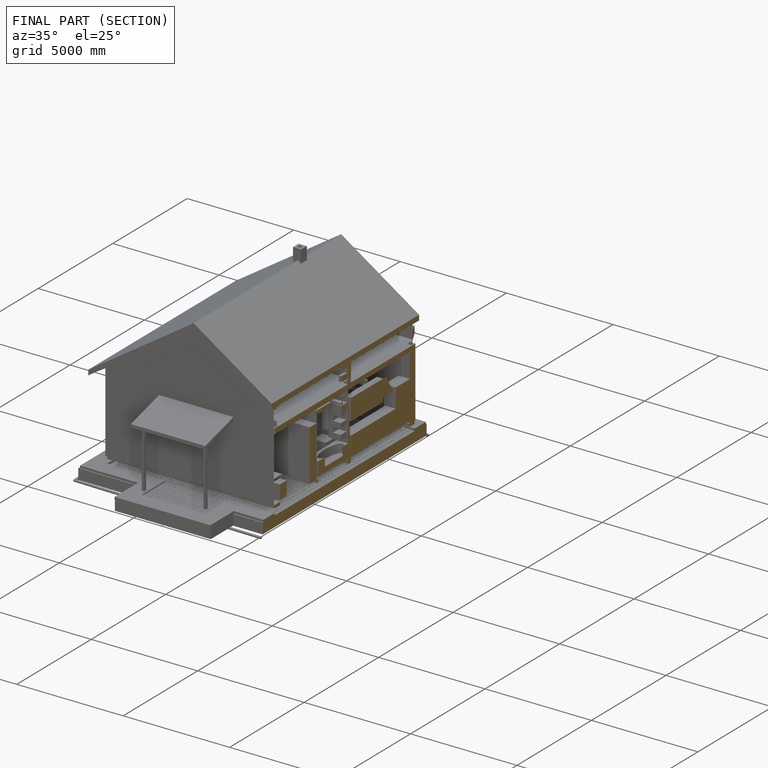
[diagram: finished part — half-section view (interior)]
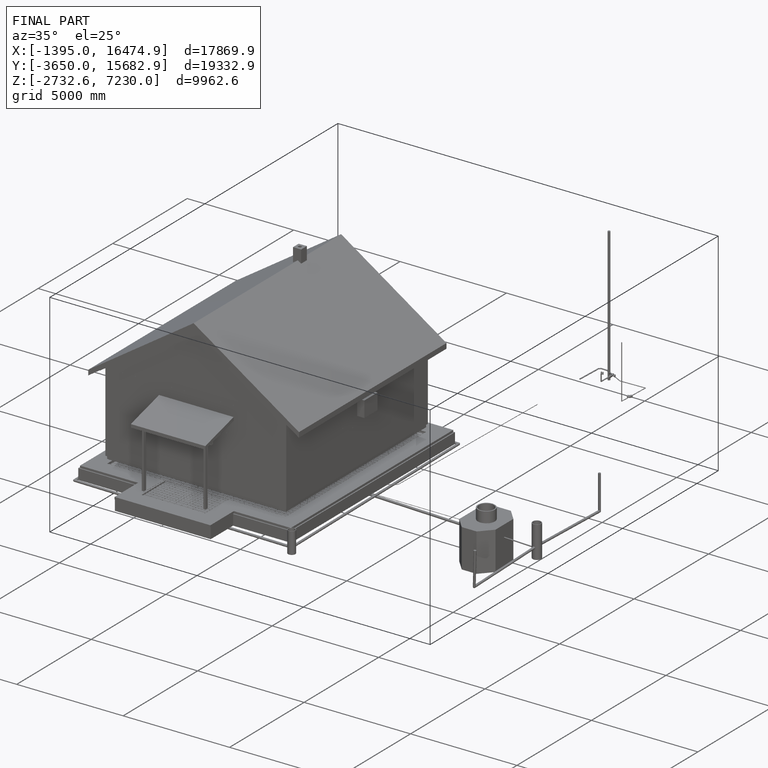
[diagram: finished part — iso view with bounding-box wireframe]
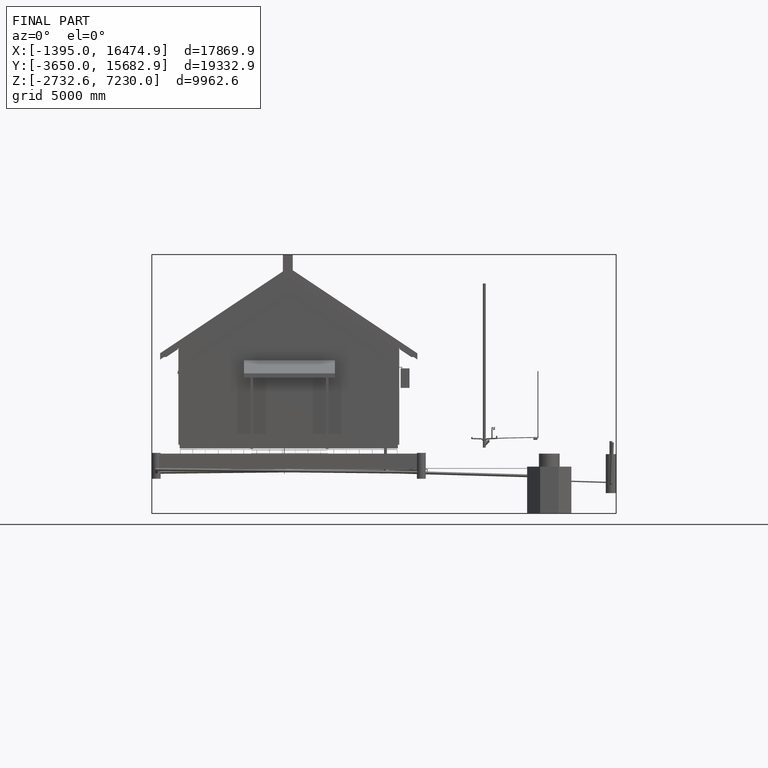
[diagram: finished part — front view with bounding-box wireframe]
